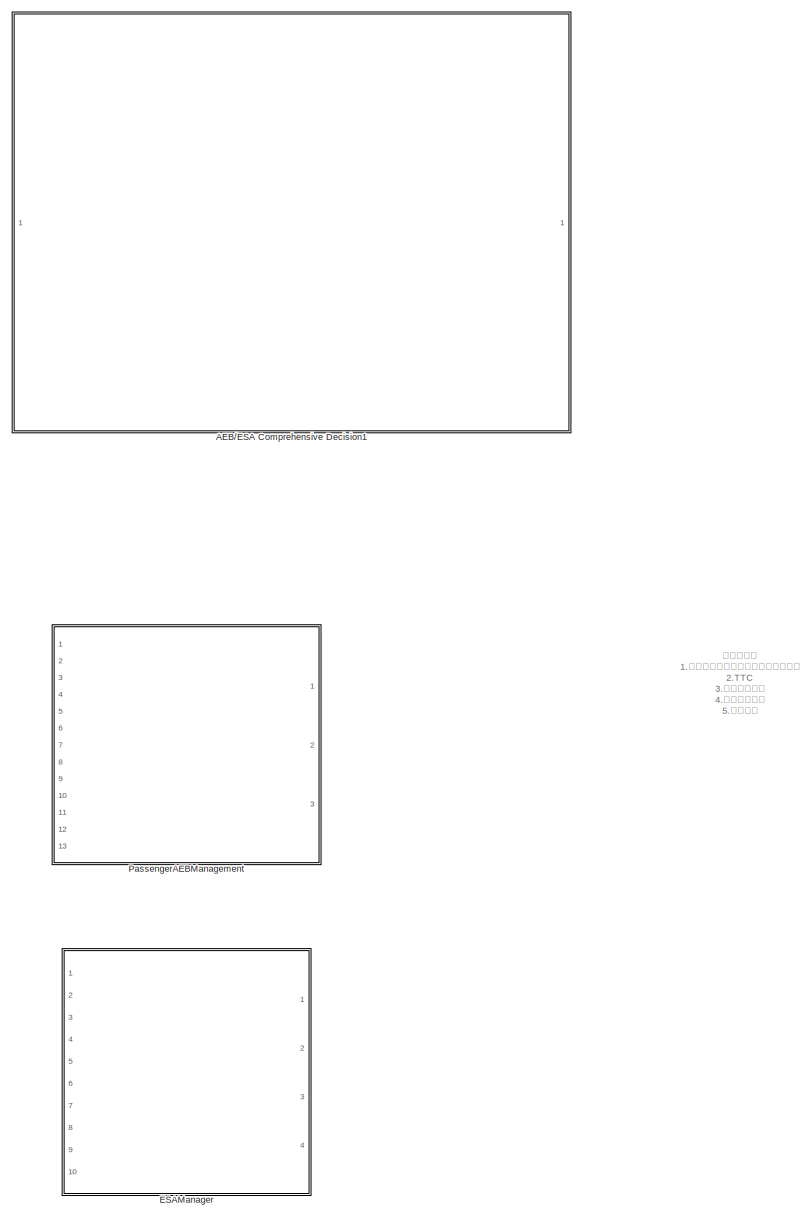
[diagram: root canvas - part 1/17, top left region]
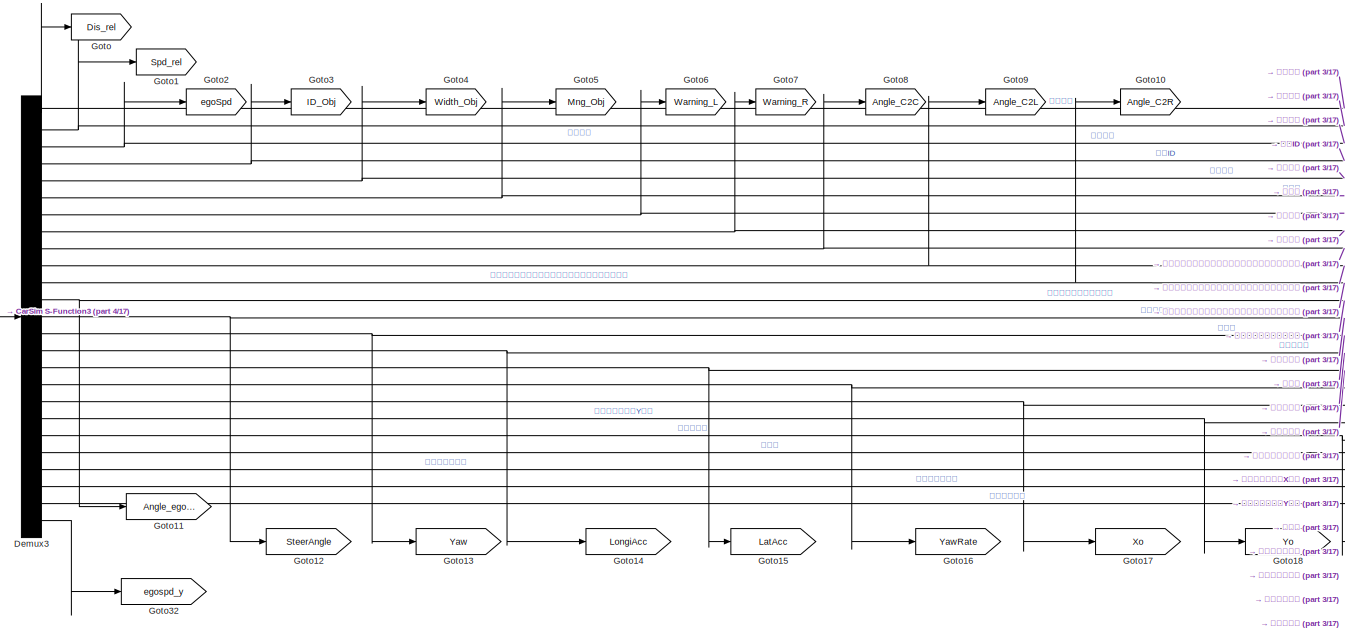
[diagram: root canvas - part 2/17, top right region]
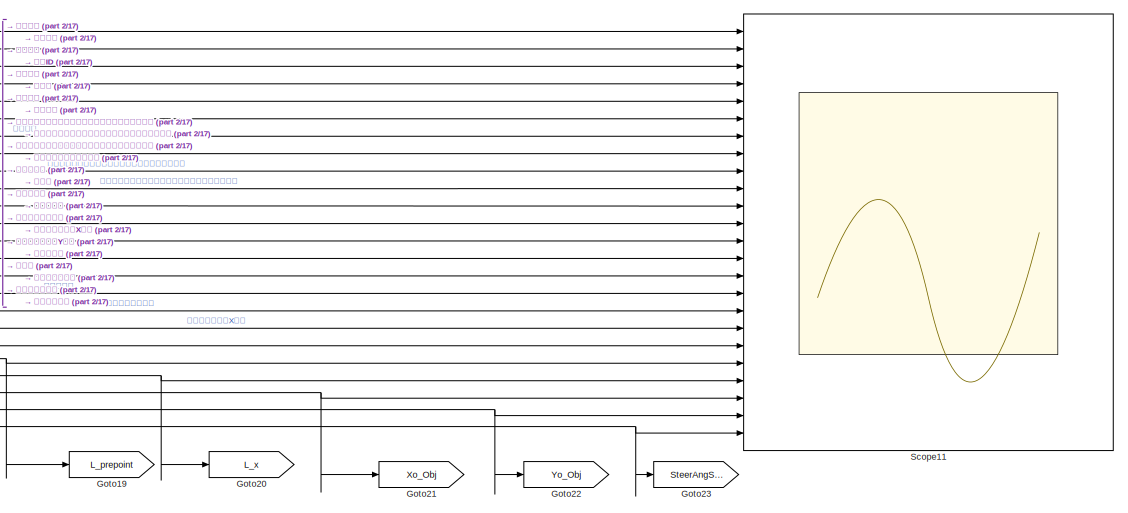
[diagram: root canvas - part 3/17, top right region]
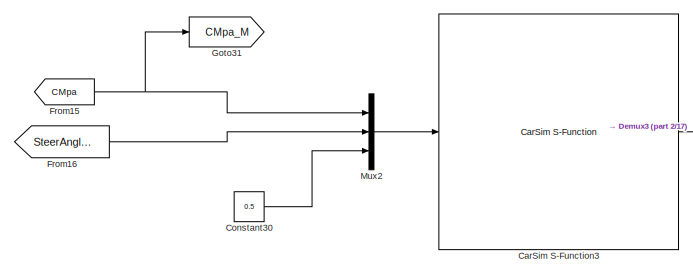
[diagram: root canvas - part 4/17, top right region]
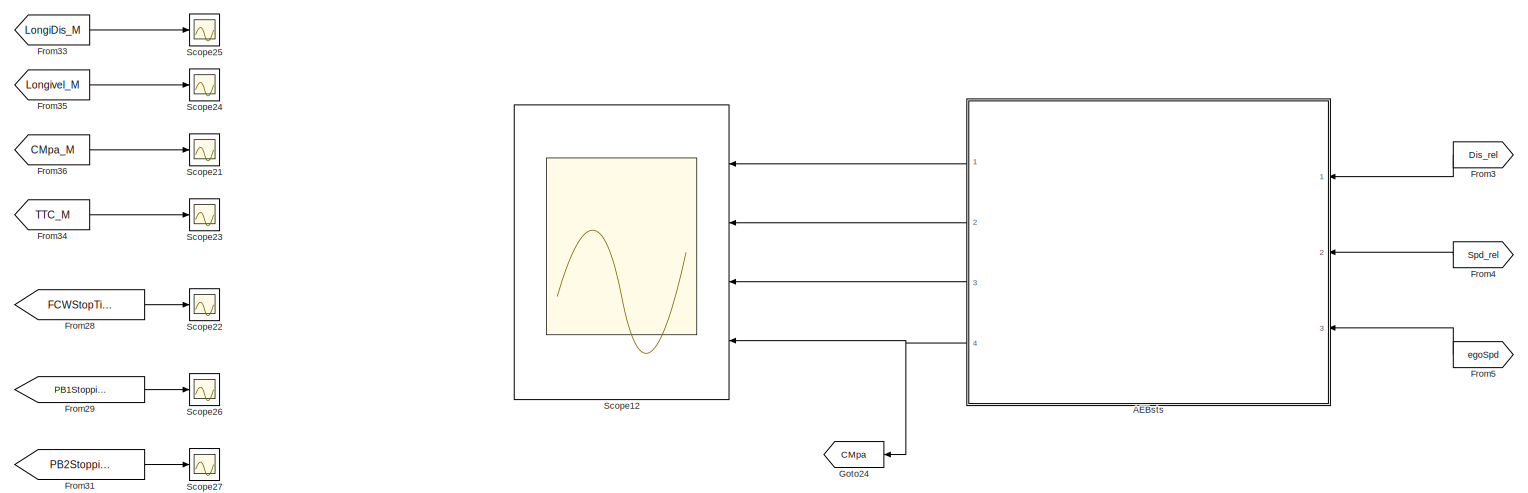
[diagram: root canvas - part 5/17, middle right region]
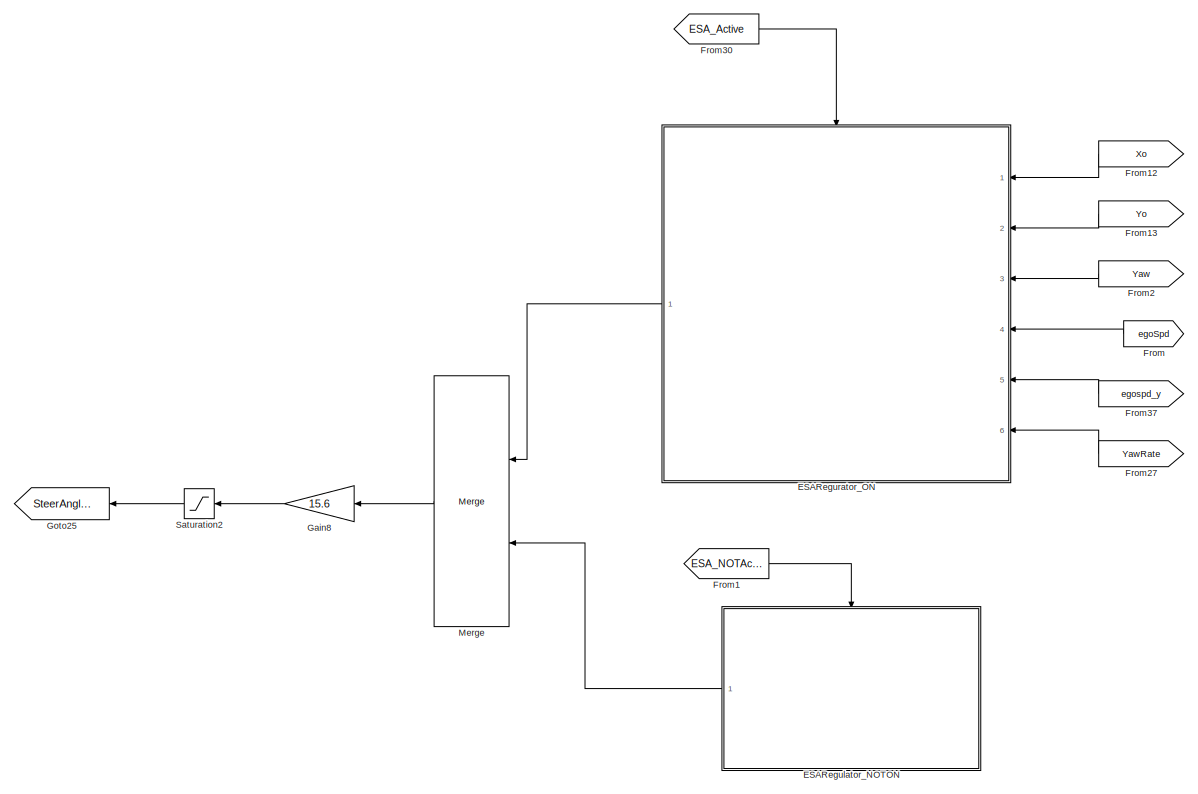
[diagram: root canvas - part 6/17, middle right region]
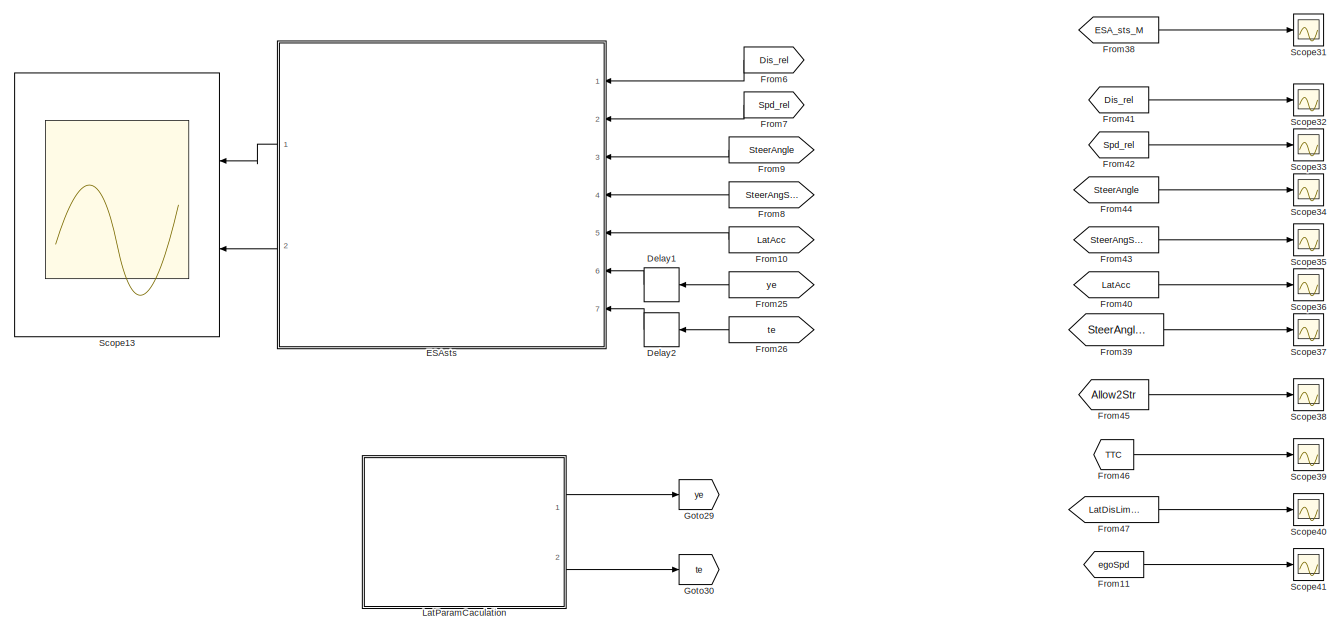
[diagram: root canvas - part 7/17, middle right region]
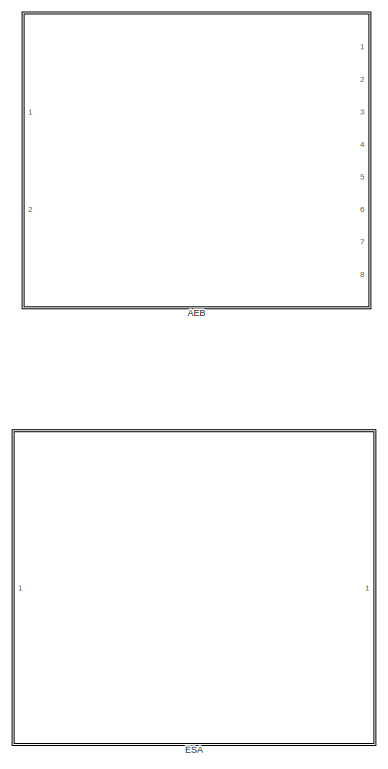
[diagram: root canvas - part 8/17, middle left region]
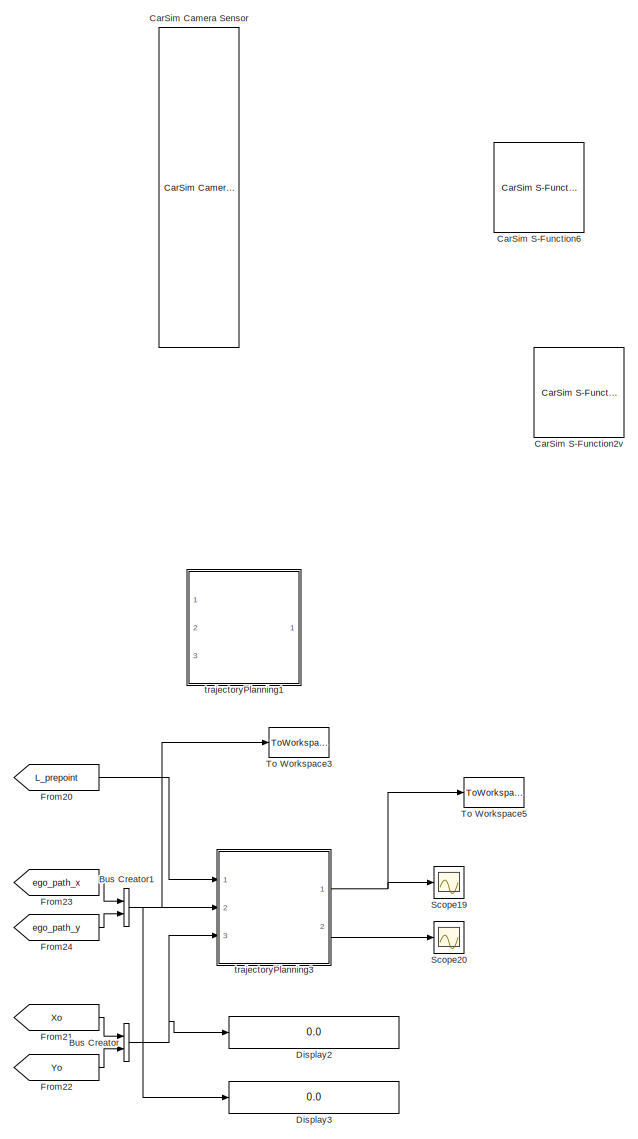
[diagram: root canvas - part 9/17, central region]
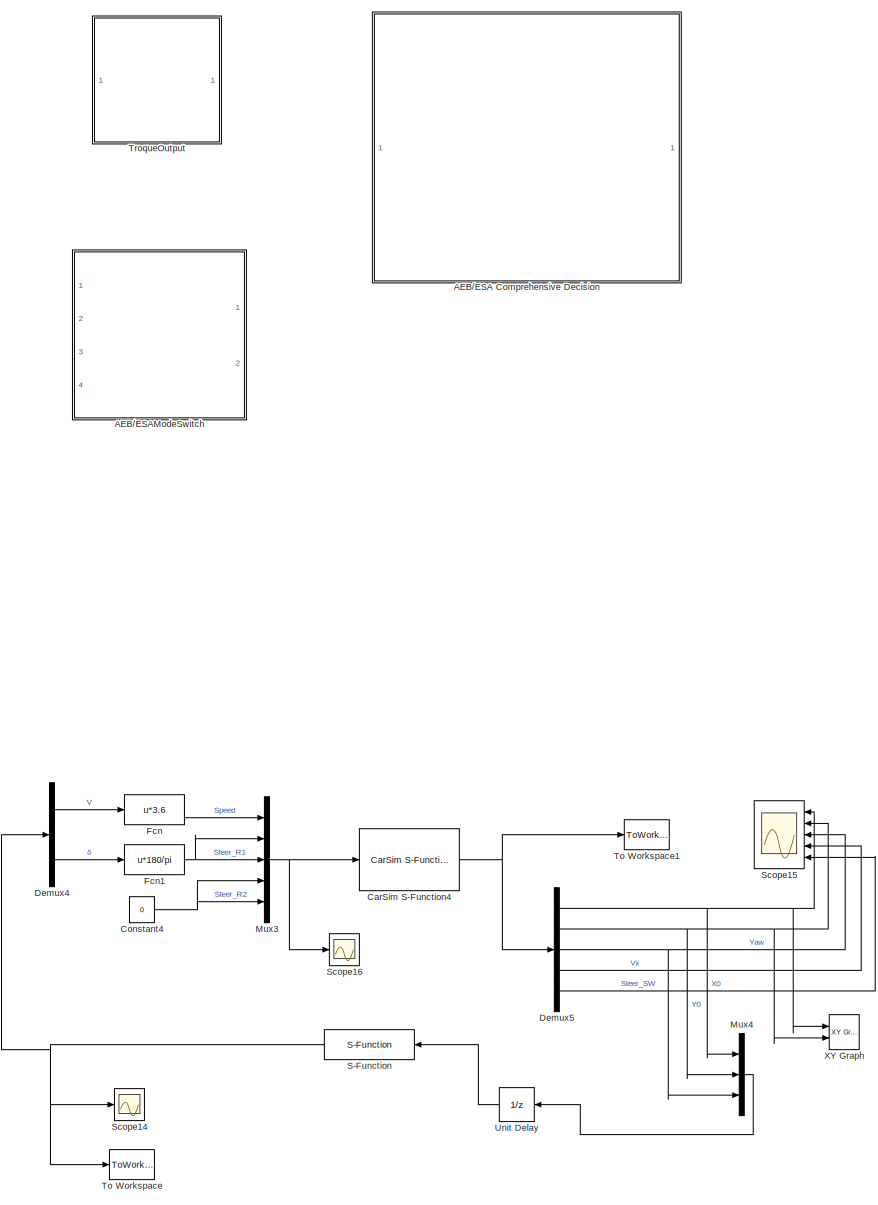
[diagram: root canvas - part 10/17, middle left region]
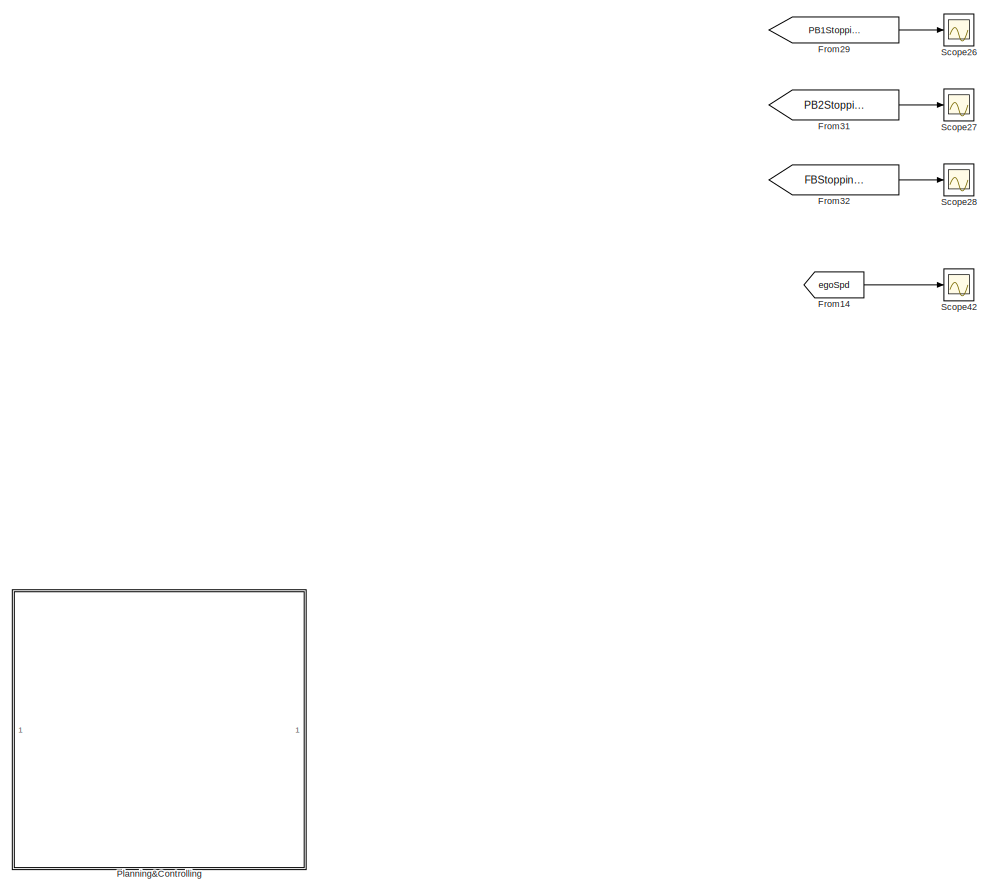
[diagram: root canvas - part 11/17, central region]
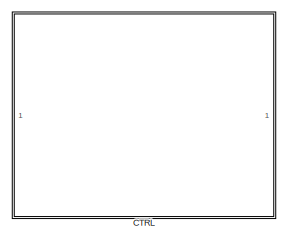
[diagram: root canvas - part 12/17, middle left region]
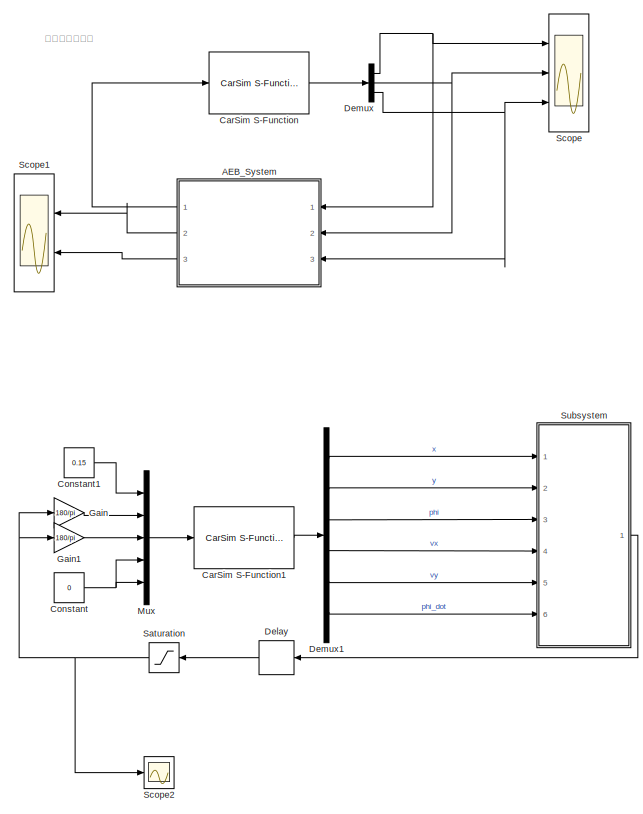
[diagram: root canvas - part 13/17, middle left region]
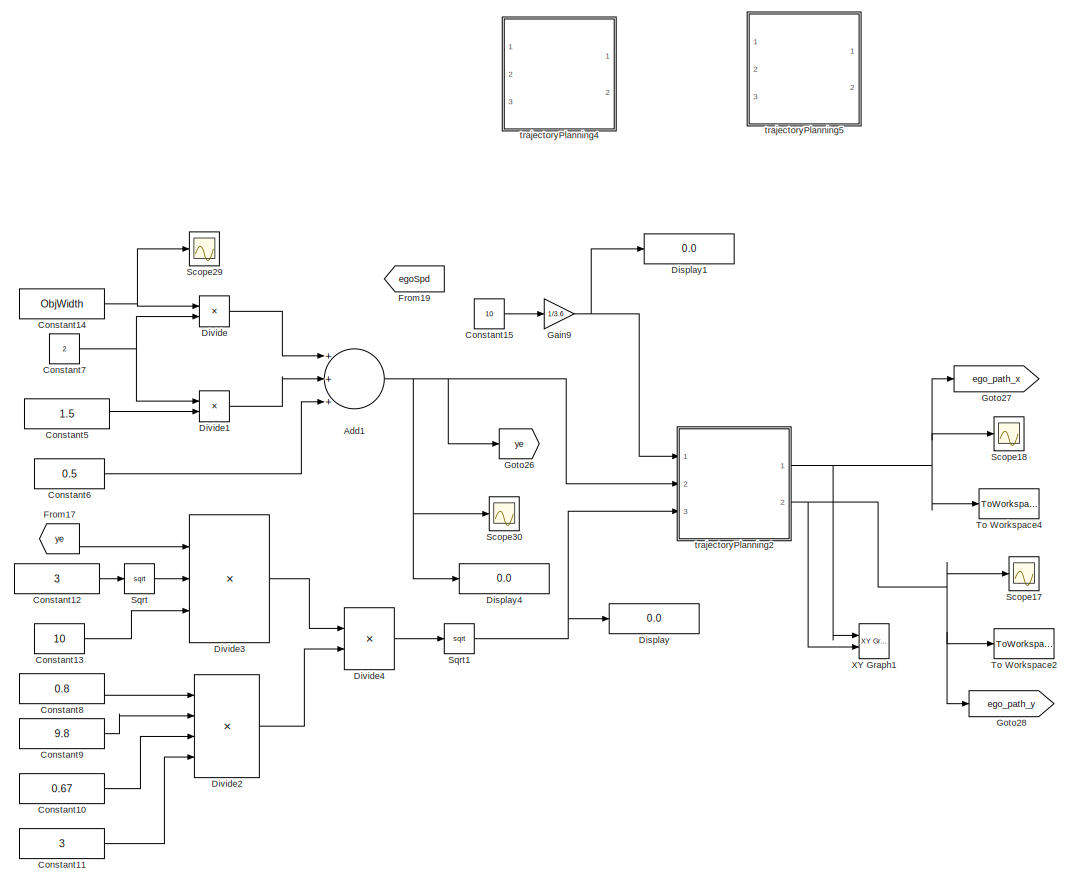
[diagram: root canvas - part 14/17, bottom center region]
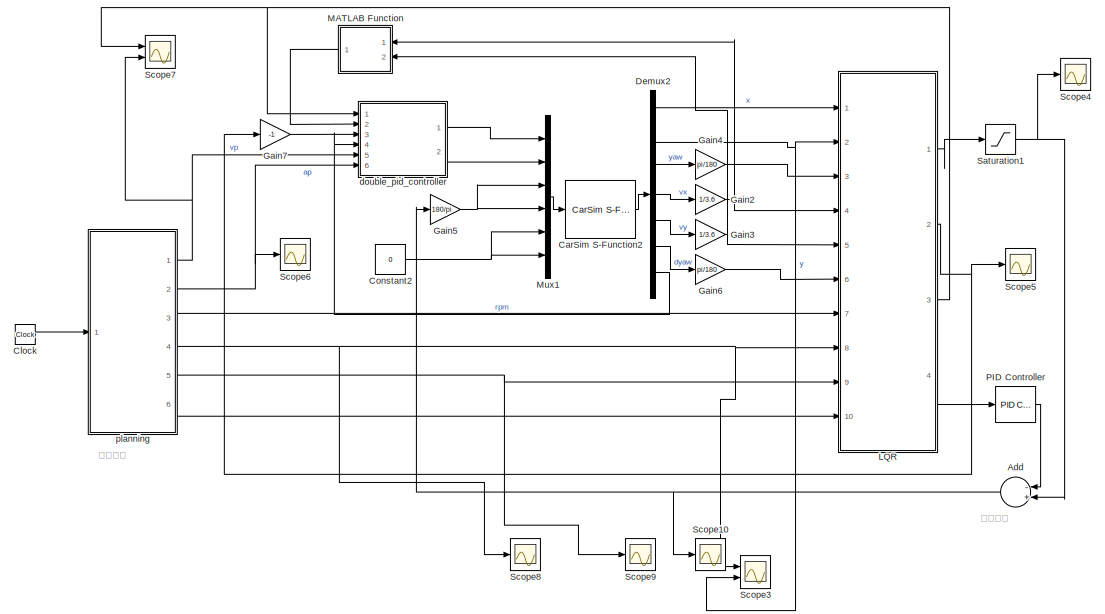
[diagram: root canvas - part 15/17, bottom left region]
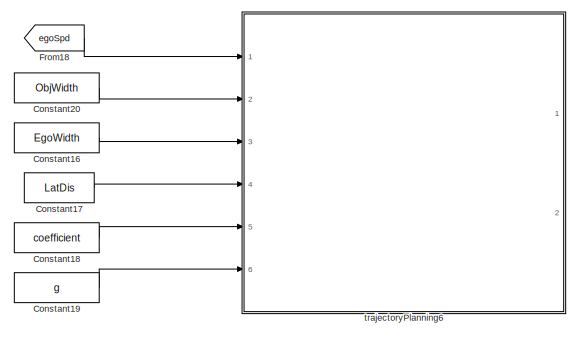
[diagram: root canvas - part 16/17, bottom center region]
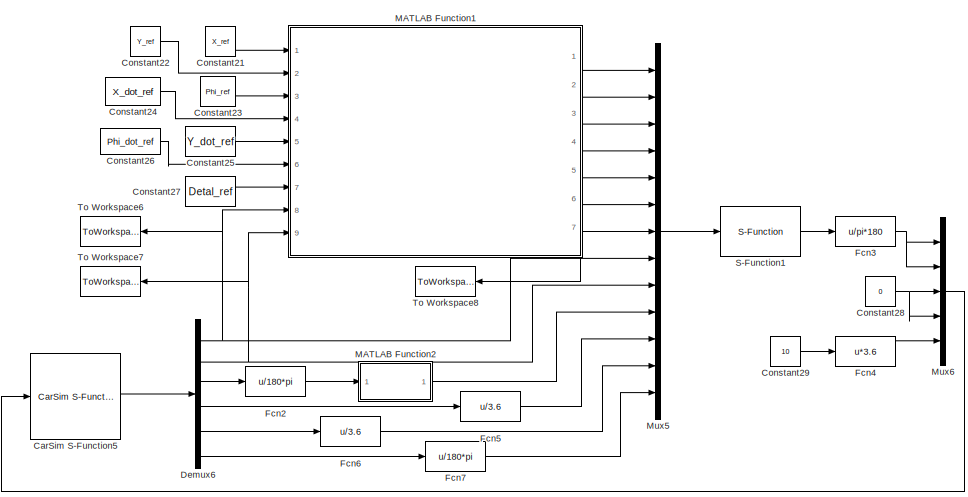
[diagram: root canvas - part 17/17, bottom left region]
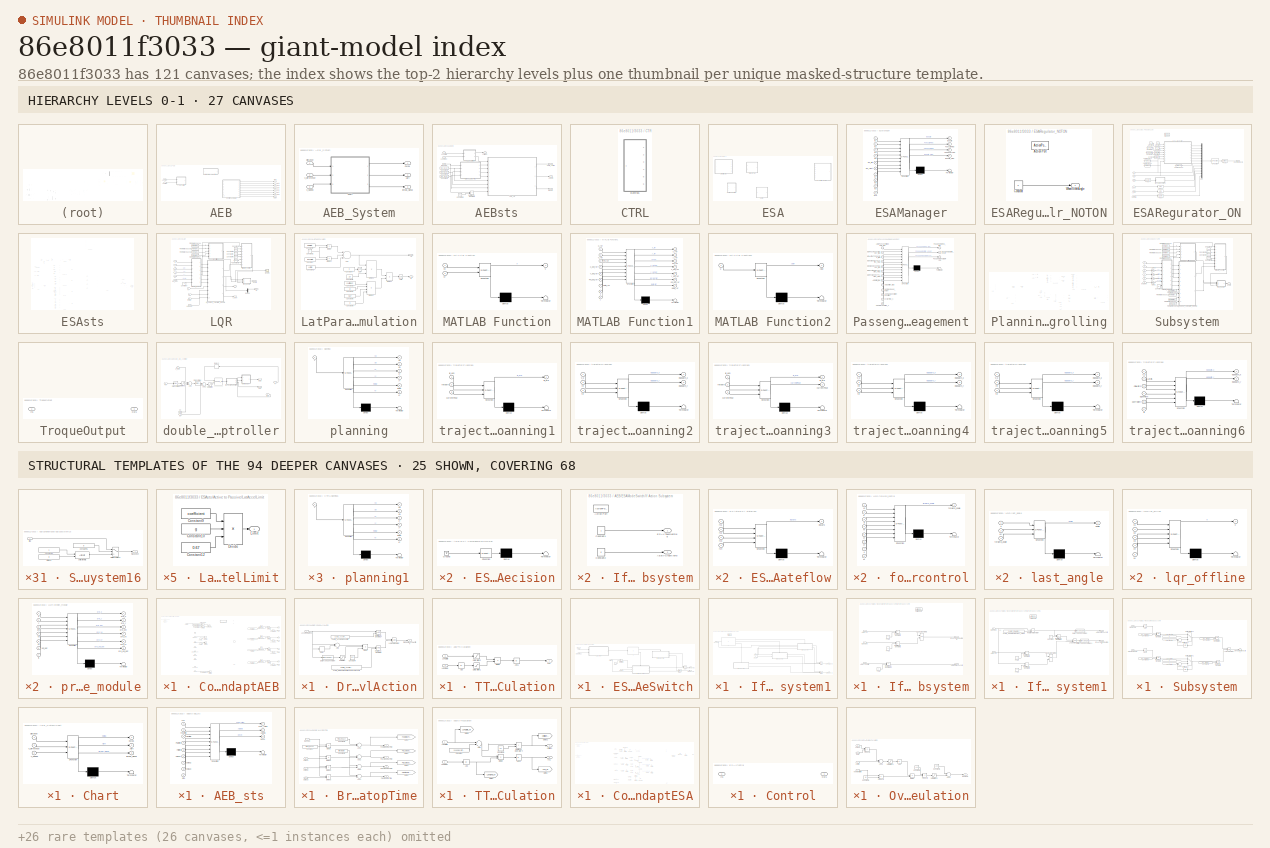
[diagram: thumbnail index - top-2 hierarchy levels (27 canvases) + 25 structural-template representatives of the remaining 94 canvases]
MODEL slx_86e8011f3033
KIND model
CONFIG AbsTol = auto
CONFIG EnableMultiTasking = off
CONFIG FixedStep = auto
CONFIG MaxStep = auto
CONFIG MinStep = auto
CONFIG RelTol = 1e-3
CONFIG SampleTimeConstraint = Unconstrained
CONFIG Solver = VariableStepAuto
CONFIG SolverName = VariableStepAuto
CONFIG StartTime = 0.0
CONFIG StopTime = 10
BLOCK [SubSystem] AEB
  Commented = on
  Ports = [2, 8]
  RequestExecContextInheritance = off
  Variant = off
BLOCK [SubSystem] AEB//ESA Comprehensive Decision
  Commented = on
  ErrorFcn = Stateflow.Translate.translate
  PermitHierarchicalResolution = ExplicitOnly
  Ports = []
  RequestExecContextInheritance = off
  SFBlockType = Chart
  TreatAsAtomicUnit = on
  Variant = off
BLOCK [Demux] AEB//ESA Comprehensive Decision/ Demux 
  Outputs = 1
  Ports = [1, 1]
BLOCK [Ground] AEB//ESA Comprehensive Decision/ Ground 
BLOCK [S-Function] AEB//ESA Comprehensive Decision/ SFunction 
  EnableBusSupport = on
  FunctionName = sf_sfun
  PortCounts = [1 1]
  Ports = [1, 1]
  SFcnIsStateOwnerBlock = off
  SFunctionDeploymentMode = off
  Tag = Stateflow S-Function LACS 3
BLOCK [Terminator] AEB//ESA Comprehensive Decision/ Terminator 
BLOCK [SubSystem] AEB//ESA Comprehensive Decision1
  Commented = on
  ErrorFcn = Stateflow.Translate.translate
  PermitHierarchicalResolution = ExplicitOnly
  Ports = []
  RequestExecContextInheritance = off
  SFBlockType = Chart
  TreatAsAtomicUnit = on
  Variant = off
BLOCK [Demux] AEB//ESA Comprehensive Decision1/ Demux 
  Outputs = 1
  Ports = [1, 1]
BLOCK [Ground] AEB//ESA Comprehensive Decision1/ Ground 
BLOCK [S-Function] AEB//ESA Comprehensive Decision1/ SFunction 
  EnableBusSupport = on
  FunctionName = sf_sfun
  PortCounts = [1 1]
  Ports = [1, 1]
  SFcnIsStateOwnerBlock = off
  SFunctionDeploymentMode = off
  Tag = Stateflow S-Function LACS 19
BLOCK [Terminator] AEB//ESA Comprehensive Decision1/ Terminator 
BLOCK [SubSystem] AEB//ESAModeSwitch
  Commented = on
  Ports = [4, 2]
  RequestExecContextInheritance = off
  Variant = off
BLOCK [Outport] AEB//ESAModeSwitch/AEBCrashAvoid
  IconDisplay = Port number
  Port = 2
BLOCK [Inport] AEB//ESAModeSwitch/AEBTTC
  IconDisplay = Port number
  Port = 3
BLOCK [Outport] AEB//ESAModeSwitch/ESATakeOverReq
  IconDisplay = Port number
BLOCK [Inport] AEB//ESAModeSwitch/EgoSpd
  IconDisplay = Port number
  Port = 4
BLOCK [If] AEB//ESAModeSwitch/If
  IfExpression = u1==1
  Ports = [1, 2]
BLOCK [SubSystem] AEB//ESAModeSwitch/If Action Subsystem
  Ports = [0, 2, 0, 0, 0, 0, 0, 1]
  RequestExecContextInheritance = off
  TreatAsAtomicUnit = on
  Variant = off
BLOCK [Outport] AEB//ESAModeSwitch/If Action Subsystem/AEBVCrashAvoid
  IconDisplay = Port number
  Port = 2
BLOCK [ActionPort] AEB//ESAModeSwitch/If Action Subsystem/Action Port
  ActionType = then
BLOCK [Constant] AEB//ESAModeSwitch/If Action Subsystem/Constant1
  OutDataTypeStr = boolean
BLOCK [Constant] AEB//ESAModeSwitch/If Action Subsystem/Constant2
  OutDataTypeStr = boolean
  Value = 0
BLOCK [Outport] AEB//ESAModeSwitch/If Action Subsystem/ESAVTakeOverReq
  IconDisplay = Port number
BLOCK [SubSystem] AEB//ESAModeSwitch/If Action Subsystem1
  Ports = [3, 2, 0, 0, 0, 0, 0, 1]
  RequestExecContextInheritance = off
  TreatAsAtomicUnit = on
  Variant = off
BLOCK [Inport] AEB//ESAModeSwitch/If Action Subsystem1/AEBTTC
  IconDisplay = Port number
  Port = 3
BLOCK [Inport] AEB//ESAModeSwitch/If Action Subsystem1/AEBTTCVaild
  IconDisplay = Port number
BLOCK [Outport] AEB//ESAModeSwitch/If Action Subsystem1/AEBVCrashAvoid
  IconDisplay = Port number
  Port = 2
BLOCK [ActionPort] AEB//ESAModeSwitch/If Action Subsystem1/Action Port
  ActionType = else
BLOCK [Outport] AEB//ESAModeSwitch/If Action Subsystem1/ESAVTakeOverReq
  IconDisplay = Port number
BLOCK [Inport] AEB//ESAModeSwitch/If Action Subsystem1/EgoSpd
  IconDisplay = Port number
  Port = 2
BLOCK [If] AEB//ESAModeSwitch/If Action Subsystem1/If
  ElseIfExpressions = u1==2
  IfExpression = u1==0|u1==1|u1==4
  Ports = [1, 3]
BLOCK [SubSystem] AEB//ESAModeSwitch/If Action Subsystem1/If Action Subsystem
  Ports = [3, 2, 0, 0, 0, 0, 0, 1]
  RequestExecContextInheritance = off
  TreatAsAtomicUnit = on
  Variant = off
BLOCK [Inport] AEB//ESAModeSwitch/If Action Subsystem1/If Action Subsystem/AEBTTC
  IconDisplay = Port number
  Port = 2
BLOCK [Inport] AEB//ESAModeSwitch/If Action Subsystem1/If Action Subsystem/AEBTTCVaild
  IconDisplay = Port number
BLOCK [Outport] AEB//ESAModeSwitch/If Action Subsystem1/If Action Subsystem/AEBVCrashAvoid
  IconDisplay = Port number
  Port = 2
BLOCK [ActionPort] AEB//ESAModeSwitch/If Action Subsystem1/If Action Subsystem/Action Port
BLOCK [Outport] AEB//ESAModeSwitch/If Action Subsystem1/If Action Subsystem/ESAVTakeOverReq
  IconDisplay = Port number
BLOCK [Inport] AEB//ESAModeSwitch/If Action Subsystem1/If Action Subsystem/EgoSpd
  IconDisplay = Port number
  Port = 3
BLOCK [Logic] AEB//ESAModeSwitch/If Action Subsystem1/If Action Subsystem/Logical Operator1
  AllPortsSameDT = off
  OutDataTypeStr = boolean
  Ports = [2, 1]
BLOCK [RelationalOperator] AEB//ESAModeSwitch/If Action Subsystem1/If Action Subsystem/Relational Operator1
  InputSameDT = off
  Operator = >
  OutDataTypeStr = boolean
  Ports = [2, 1]
  RndMeth = Simplest
BLOCK [RelationalOperator] AEB//ESAModeSwitch/If Action Subsystem1/If Action Subsystem/Relational Operator2
  InputSameDT = off
  Operator = >
  OutDataTypeStr = boolean
  Ports = [2, 1]
  RndMeth = Simplest
BLOCK [RelationalOperator] AEB//ESAModeSwitch/If Action Subsystem1/If Action Subsystem/Relational Operator22
  InputSameDT = off
  Operator = ==
  OutDataTypeStr = boolean
  Ports = [2, 1]
  RndMeth = Simplest
BLOCK [Constant] AEB//ESAModeSwitch/If Action Subsystem1/If Action Subsystem/TTC1
  OutDataTypeStr = boolean
BLOCK [Constant] AEB//ESAModeSwitch/If Action Subsystem1/If Action Subsystem/TTC2
  OutDataTypeStr = boolean
  Value = 4
BLOCK [Constant] AEB//ESAModeSwitch/If Action Subsystem1/If Action Subsystem/TTC3
  OutDataTypeStr = boolean
  Value = 0
BLOCK [SubSystem] AEB//ESAModeSwitch/If Action Subsystem1/If Action Subsystem1
  Ports = [2, 2, 0, 0, 0, 0, 0, 1]
  RequestExecContextInheritance = off
  TreatAsAtomicUnit = on
  Variant = off
BLOCK [Inport] AEB//ESAModeSwitch/If Action Subsystem1/If Action Subsystem1/AEBTTC
  IconDisplay = Port number
BLOCK [Outport] AEB//ESAModeSwitch/If Action Subsystem1/If Action Subsystem1/AEBVCrashAvoid
  IconDisplay = Port number
  Port = 2
BLOCK [ActionPort] AEB//ESAModeSwitch/If Action Subsystem1/If Action Subsystem1/Action Port
BLOCK [Constant] AEB//ESAModeSwitch/If Action Subsystem1/If Action Subsystem1/CAEB_CalAEBVMaxDec_kmph
  Value = CAEB_CalAEBVMaxDec_kmph
BLOCK [Constant] AEB//ESAModeSwitch/If Action Subsystem1/If Action Subsystem1/Constant
  OutDataTypeStr = boolean
  Value = 0
BLOCK [DataTypeConversion] AEB//ESAModeSwitch/If Action Subsystem1/If Action Subsystem1/Data Type Conversion
  RndMeth = Floor
  SaturateOnIntegerOverflow = off
BLOCK [DataTypeConversion] AEB//ESAModeSwitch/If Action Subsystem1/If Action Subsystem1/Data Type Conversion1
  RndMeth = Floor
  SaturateOnIntegerOverflow = off
BLOCK [Outport] AEB//ESAModeSwitch/If Action Subsystem1/If Action Subsystem1/ESAVTakeOverReq
  IconDisplay = Port number
BLOCK [Inport] AEB//ESAModeSwitch/If Action Subsystem1/If Action Subsystem1/EgoSpd
  IconDisplay = Port number
  Port = 2
BLOCK [Logic] AEB//ESAModeSwitch/If Action Subsystem1/If Action Subsystem1/Logical Operator
  AllPortsSameDT = off
  OutDataTypeStr = boolean
  Ports = [2, 1]
BLOCK [Logic] AEB//ESAModeSwitch/If Action Subsystem1/If Action Subsystem1/Logical Operator1
  AllPortsSameDT = off
  OutDataTypeStr = boolean
  Ports = [2, 1]
BLOCK [RelationalOperator] AEB//ESAModeSwitch/If Action Subsystem1/If Action Subsystem1/Relational Operator
  InputSameDT = off
  Operator = <=
  OutDataTypeStr = boolean
  Ports = [2, 1]
  RndMeth = Simplest
BLOCK [RelationalOperator] AEB//ESAModeSwitch/If Action Subsystem1/If Action Subsystem1/Relational Operator1
  InputSameDT = off
  Operator = ==
  OutDataTypeStr = boolean
  Ports = [2, 1]
  RndMeth = Simplest
BLOCK [RelationalOperator] AEB//ESAModeSwitch/If Action Subsystem1/If Action Subsystem1/Relational Operator2
  InputSameDT = off
  Operator = >
  OutDataTypeStr = boolean
  Ports = [2, 1]
  RndMeth = Simplest
BLOCK [RelationalOperator] AEB//ESAModeSwitch/If Action Subsystem1/If Action Subsystem1/Relational Operator3
  InputSameDT = off
  Operator = >
  OutDataTypeStr = boolean
  Ports = [2, 1]
  RndMeth = Simplest
BLOCK [Constant] AEB//ESAModeSwitch/If Action Subsystem1/If Action Subsystem1/TTC2
  OutDataTypeStr = boolean
  Value = 4
BLOCK [Constant] AEB//ESAModeSwitch/If Action Subsystem1/If Action Subsystem1/TTC3
  OutDataTypeStr = boolean
  Value = 0
BLOCK [SubSystem] AEB//ESAModeSwitch/If Action Subsystem1/If Action Subsystem2
  Ports = [0, 2, 0, 0, 0, 0, 0, 1]
  RequestExecContextInheritance = off
  TreatAsAtomicUnit = on
  Variant = off
BLOCK [Outport] AEB//ESAModeSwitch/If Action Subsystem1/If Action Subsystem2/AEBVCrashAvoid
  IconDisplay = Port number
  Port = 2
BLOCK [ActionPort] AEB//ESAModeSwitch/If Action Subsystem1/If Action Subsystem2/Action Port
BLOCK [Constant] AEB//ESAModeSwitch/If Action Subsystem1/If Action Subsystem2/Constant
  OutDataTypeStr = boolean
  Value = 0
BLOCK [Constant] AEB//ESAModeSwitch/If Action Subsystem1/If Action Subsystem2/Constant2
  OutDataTypeStr = boolean
BLOCK [Outport] AEB//ESAModeSwitch/If Action Subsystem1/If Action Subsystem2/ESAVTakeOverReq
  IconDisplay = Port number
BLOCK [Merge] AEB//ESAModeSwitch/If Action Subsystem1/Merge
  Inputs = 3
  Ports = [3, 1]
BLOCK [Merge] AEB//ESAModeSwitch/If Action Subsystem1/Merge1
  Inputs = 3
  Ports = [3, 1]
BLOCK [Merge] AEB//ESAModeSwitch/Merge
  Ports = [2, 1]
BLOCK [Merge] AEB//ESAModeSwitch/Merge1
  Ports = [2, 1]
BLOCK [RelationalOperator] AEB//ESAModeSwitch/Relational Operator22
  InputSameDT = off
  Operator = <=
  OutDataTypeStr = boolean
  Ports = [2, 1]
  RndMeth = Simplest
BLOCK [Inport] AEB//ESAModeSwitch/SteerAngle
  IconDisplay = Port number
BLOCK [Inport] AEB//ESAModeSwitch/SteerAngleSpd
  IconDisplay = Port number
  Port = 2
BLOCK [SubSystem] AEB//ESAModeSwitch/Subsystem
  Ports = [2, 1]
  RequestExecContextInheritance = off
  Variant = off
BLOCK [Abs] AEB//ESAModeSwitch/Subsystem/Abs
  SaturateOnIntegerOverflow = off
BLOCK [Abs] AEB//ESAModeSwitch/Subsystem/Abs1
  SaturateOnIntegerOverflow = off
BLOCK [Sum] AEB//ESAModeSwitch/Subsystem/Add1
  InputSameDT = off
  OutDataTypeStr = Inherit: Inherit via internal rule
  Ports = [2, 1]
BLOCK [Sum] AEB//ESAModeSwitch/Subsystem/Add3
  InputSameDT = off
  OutDataTypeStr = Inherit: Inherit via internal rule
  Ports = [2, 1]
BLOCK [Constant] AEB//ESAModeSwitch/Subsystem/Constant1
  Value = ESA_SPEEDLIMITH6_p
BLOCK [Constant] AEB//ESAModeSwitch/Subsystem/Constant17
  OutDataTypeStr = uint8
BLOCK [Constant] AEB//ESAModeSwitch/Subsystem/Constant18
  OutDataTypeStr = uint8
  Value = 0
BLOCK [Constant] AEB//ESAModeSwitch/Subsystem/Constant2
  Value = ESA_SPEEDLIMITH6_p
BLOCK [Constant] AEB//ESAModeSwitch/Subsystem/Constant22
  Value = ESA_StrAngSpdT6_p
BLOCK [Constant] AEB//ESAModeSwitch/Subsystem/Constant3
  OutDataTypeStr = uint8
BLOCK [Constant] AEB//ESAModeSwitch/Subsystem/Constant4
  OutDataTypeStr = uint8
  Value = 0
BLOCK [Constant] AEB//ESAModeSwitch/Subsystem/Constant5
  Value = ESA_StrAngSpdT6_p
BLOCK [Outport] AEB//ESAModeSwitch/Subsystem/DrvRapidSteerAction
  IconDisplay = Port number
BLOCK [Logic] AEB//ESAModeSwitch/Subsystem/Logical Operator
  AllPortsSameDT = off
  OutDataTypeStr = boolean
  Ports = [2, 1]
BLOCK [MultiPortSwitch] AEB//ESAModeSwitch/Subsystem/Multiport Switch1
  DataPortOrder = Zero-based contiguous
  InputSameDT = off
  Inputs = 2
  Ports = [3, 1]
  SaturateOnIntegerOverflow = off
BLOCK [MultiPortSwitch] AEB//ESAModeSwitch/Subsystem/Multiport Switch2
  DataPortOrder = Zero-based contiguous
  InputSameDT = off
  Inputs = 2
  Ports = [3, 1]
  SaturateOnIntegerOverflow = off
BLOCK [RelationalOperator] AEB//ESAModeSwitch/Subsystem/Relational Operator1
  InputSameDT = off
  OutDataTypeStr = boolean
  Ports = [2, 1]
  RndMeth = Simplest
BLOCK [RelationalOperator] AEB//ESAModeSwitch/Subsystem/Relational Operator19
  InputSameDT = off
  OutDataTypeStr = boolean
  Ports = [2, 1]
  RndMeth = Simplest
BLOCK [RelationalOperator] AEB//ESAModeSwitch/Subsystem/Relational Operator2
  InputSameDT = off
  OutDataTypeStr = boolean
  Ports = [2, 1]
  RndMeth = Simplest
BLOCK [RelationalOperator] AEB//ESAModeSwitch/Subsystem/Relational Operator3
  InputSameDT = off
  OutDataTypeStr = boolean
  Ports = [2, 1]
  RndMeth = Simplest
BLOCK [Inport] AEB//ESAModeSwitch/Subsystem/SteerAngle
  IconDisplay = Port number
BLOCK [Inport] AEB//ESAModeSwitch/Subsystem/SteerAngleSpd
  IconDisplay = Port number
  Port = 2
BLOCK [UnitDelay] AEB//ESAModeSwitch/Subsystem/Unit Delay1
  InputProcessing = Elements as channels (sample based)
  SampleTime = -1
BLOCK [UnitDelay] AEB//ESAModeSwitch/Subsystem/Unit Delay2
  InputProcessing = Elements as channels (sample based)
  SampleTime = -1
BLOCK [Constant] AEB//ESAModeSwitch/TTC1
  OutDataTypeStr = boolean
  Value = 6
BLOCK [SubSystem] AEB/ConditionAdaptAEB
  Ports = [10, 8]
  RequestExecContextInheritance = off
  Variant = off
BLOCK [Sum] AEB/ConditionAdaptAEB/Add7
  InputSameDT = off
  Inputs = 18
  OutDataTypeStr = Inherit: Inherit via internal rule
  Ports = [18, 1]
BLOCK [Reference] AEB/ConditionAdaptAEB/Bitwise Operator  REF=simulink/Logic and Bit
Operations/Bitwise
Operator
  Ports = [2, 1]
  SourceBlock = simulink/Logic and Bit\nOperations/Bitwise\nOperator
  SourceType = Bitwise Operator
BLOCK [Reference] AEB/ConditionAdaptAEB/Bitwise Operator1  REF=simulink/Logic and Bit
Operations/Bitwise
Operator
  Ports = [2, 1]
  SourceBlock = simulink/Logic and Bit\nOperations/Bitwise\nOperator
  SourceType = Bitwise Operator
BLOCK [Reference] AEB/ConditionAdaptAEB/Bitwise Operator2  REF=simulink/Logic and Bit
Operations/Bitwise
Operator
  Ports = [2, 1]
  SourceBlock = simulink/Logic and Bit\nOperations/Bitwise\nOperator
  SourceType = Bitwise Operator
BLOCK [Reference] AEB/ConditionAdaptAEB/Bitwise Operator3  REF=simulink/Logic and Bit
Operations/Bitwise
Operator
  Ports = [2, 1]
  SourceBlock = simulink/Logic and Bit\nOperations/Bitwise\nOperator
  SourceType = Bitwise Operator
BLOCK [Inport] AEB/ConditionAdaptAEB/BrakePedal
  IconDisplay = Port number
  Port = 3
BLOCK [Inport] AEB/ConditionAdaptAEB/CollisionRiskLevel
  IconDisplay = Port number
  Port = 6
BLOCK [Constant] AEB/ConditionAdaptAEB/Constant
  Value = 0
BLOCK [Constant] AEB/ConditionAdaptAEB/Constant1
  OutDataTypeStr = uint32
  Value = AEB_mask1
BLOCK [Constant] AEB/ConditionAdaptAEB/Constant18
  Value = ESA_ESASwichOFF
BLOCK [Constant] AEB/ConditionAdaptAEB/Constant2
  OutDataTypeStr = uint32
  Value = AEB_mask1
BLOCK [Constant] AEB/ConditionAdaptAEB/Constant3
  OutDataTypeStr = uint32
  Value = AEB_mask1
BLOCK [Constant] AEB/ConditionAdaptAEB/Constant4
  Value = ESA_SPEEDLIMITH7_p
BLOCK [Constant] AEB/ConditionAdaptAEB/Constant46
  OutDataTypeStr = uint32
  Value = AEB_mask1
BLOCK [Constant] AEB/ConditionAdaptAEB/Constant5
  Value = ESA_SPEEDLIMITL7_p
BLOCK [Constant] AEB/ConditionAdaptAEB/Constant6
  Value = 10
BLOCK [Inport] AEB/ConditionAdaptAEB/ESAsts
  IconDisplay = Port number
  Port = 9
BLOCK [Inport] AEB/ConditionAdaptAEB/EgoSpd
  IconDisplay = Port number
BLOCK [Logic] AEB/ConditionAdaptAEB/Logical Operator
  AllPortsSameDT = off
  OutDataTypeStr = boolean
  Ports = [2, 1]
BLOCK [Logic] AEB/ConditionAdaptAEB/Logical Operator1
  AllPortsSameDT = off
  Operator = NOT
  OutDataTypeStr = boolean
  Ports = [1, 1]
BLOCK [Logic] AEB/ConditionAdaptAEB/Logical Operator2
  AllPortsSameDT = off
  Operator = NOT
  OutDataTypeStr = boolean
  Ports = [1, 1]
BLOCK [Logic] AEB/ConditionAdaptAEB/Logical Operator3
  AllPortsSameDT = off
  Operator = NOT
  OutDataTypeStr = boolean
  Ports = [1, 1]
BLOCK [Logic] AEB/ConditionAdaptAEB/Logical Operator4
  AllPortsSameDT = off
  Operator = NOT
  OutDataTypeStr = boolean
  Ports = [1, 1]
BLOCK [Inport] AEB/ConditionAdaptAEB/LongDis
  IconDisplay = Port number
  Port = 5
BLOCK [Inport] AEB/ConditionAdaptAEB/NoAccelAction
  IconDisplay = Port number
  Port = 10
BLOCK [Outport] AEB/ConditionAdaptAEB/Out1
  IconDisplay = Port number
BLOCK [Outport] AEB/ConditionAdaptAEB/Out2
  IconDisplay = Port number
  Port = 2
BLOCK [Outport] AEB/ConditionAdaptAEB/Out3
  IconDisplay = Port number
  Port = 3
BLOCK [Outport] AEB/ConditionAdaptAEB/Out4
  IconDisplay = Port number
  Port = 4
BLOCK [Outport] AEB/ConditionAdaptAEB/Out5
  IconDisplay = Port number
  Port = 5
BLOCK [Outport] AEB/ConditionAdaptAEB/Out6
  IconDisplay = Port number
  Port = 6
BLOCK [Outport] AEB/ConditionAdaptAEB/Out7
  IconDisplay = Port number
  Port = 7
BLOCK [Outport] AEB/ConditionAdaptAEB/Out8
  IconDisplay = Port number
  Port = 8
BLOCK [Inport] AEB/ConditionAdaptAEB/Overlap
  IconDisplay = Port number
  Port = 4
BLOCK [RelationalOperator] AEB/ConditionAdaptAEB/Relational Operator
  InputSameDT = off
  Operator = <=
  OutDataTypeStr = boolean
  Ports = [2, 1]
  RndMeth = Simplest
BLOCK [RelationalOperator] AEB/ConditionAdaptAEB/Relational Operator1
  InputSameDT = off
  Operator = ==
  OutDataTypeStr = boolean
  Ports = [2, 1]
  RndMeth = Simplest
BLOCK [RelationalOperator] AEB/ConditionAdaptAEB/Relational Operator14
  InputSameDT = off
  Operator = ==
  OutDataTypeStr = boolean
  Ports = [2, 1]
  RndMeth = Simplest
BLOCK [RelationalOperator] AEB/ConditionAdaptAEB/Relational Operator2
  InputSameDT = off
  Operator = ==
  OutDataTypeStr = boolean
  Ports = [2, 1]
  RndMeth = Simplest
BLOCK [RelationalOperator] AEB/ConditionAdaptAEB/Relational Operator3
  InputSameDT = off
  Operator = ==
  OutDataTypeStr = boolean
  Ports = [2, 1]
  RndMeth = Simplest
BLOCK [RelationalOperator] AEB/ConditionAdaptAEB/Relational Operator31
  InputSameDT = off
  Operator = ==
  OutDataTypeStr = boolean
  Ports = [2, 1]
  RndMeth = Simplest
BLOCK [RelationalOperator] AEB/ConditionAdaptAEB/Relational Operator4
  InputSameDT = off
  OutDataTypeStr = boolean
  Ports = [2, 1]
  RndMeth = Simplest
BLOCK [RelationalOperator] AEB/ConditionAdaptAEB/Relational Operator5
  InputSameDT = off
  OutDataTypeStr = boolean
  Ports = [2, 1]
  RndMeth = Simplest
BLOCK [RelationalOperator] AEB/ConditionAdaptAEB/Relational Operator6
  InputSameDT = off
  Operator = ==
  OutDataTypeStr = boolean
  Ports = [2, 1]
  RndMeth = Simplest
BLOCK [Inport] AEB/ConditionAdaptAEB/SteerAngle
  IconDisplay = Port number
  Port = 7
BLOCK [SubSystem] AEB/ConditionAdaptAEB/Subsystem16
  Ports = [1, 1]
  RequestExecContextInheritance = off
  Variant = off
BLOCK [Constant] AEB/ConditionAdaptAEB/Subsystem16/Constant45
  OutDataTypeStr = uint32
  Value = 0
BLOCK [Constant] AEB/ConditionAdaptAEB/Subsystem16/Constant46
  OutDataTypeStr = uint32
BLOCK [MultiPortSwitch] AEB/ConditionAdaptAEB/Subsystem16/Multiport Switch7
  DataPortOrder = Zero-based contiguous
  InputSameDT = off
  Inputs = 2
  Ports = [3, 1]
  SaturateOnIntegerOverflow = off
BLOCK [ArithShift] AEB/ConditionAdaptAEB/Subsystem16/Shift Arithmetic
  BitShiftDirection = Left
  BitShiftNumber = 8
  BitShiftNumberSource = Input port
  InputPortMap = u0,p1
  Ports = [2, 1]
BLOCK [Constant] AEB/ConditionAdaptAEB/Subsystem16/bitMask
  OutDataTypeStr = uint8
  Value = 0
BLOCK [Inport] AEB/ConditionAdaptAEB/Subsystem16/flag
  IconDisplay = Port number
BLOCK [Outport] AEB/ConditionAdaptAEB/Subsystem16/maskCnst
  IconDisplay = Port number
BLOCK [Inport] AEB/ConditionAdaptAEB/TTC
  IconDisplay = Port number
  Port = 2
BLOCK [Inport] AEB/ConditionAdaptAEB/YawRate
  IconDisplay = Port number
  Port = 8
BLOCK [SubSystem] AEB/DrvRapidAccelAction
  Commented = on
  Ports = [1, 1]
  RequestExecContextInheritance = off
  Variant = off
BLOCK [Inport] AEB/DrvRapidAccelAction/AccelPedalPos
  IconDisplay = Port number
BLOCK [Sum] AEB/DrvRapidAccelAction/Add
  InputSameDT = off
  Inputs = +-
  OutDataTypeStr = Inherit: Inherit via internal rule
  Ports = [2, 1]
  SaturateOnIntegerOverflow = off
BLOCK [Constant] AEB/DrvRapidAccelAction/CAEB_AccelPdlPosLimit
  OutDataTypeStr = Inherit: Inherit via back propagation
  Value = CAEB_AccelPdlPosLimit
BLOCK [Constant] AEB/DrvRapidAccelAction/CAEB_IPBInputRodStrokeSpdThreshold
  OutDataTypeStr = single
  Value = CAEB_AccelPdlPosSpdThreshold
BLOCK [Constant] AEB/DrvRapidAccelAction/Constant4
  OutDataTypeStr = single
  Value = 0.02
BLOCK [DataTypeConversion] AEB/DrvRapidAccelAction/Data Type Conversion
  RndMeth = Floor
  SaturateOnIntegerOverflow = off
BLOCK [Delay] AEB/DrvRapidAccelAction/Delay
  DelayLength = 1
  InputPortMap = u0
  Ports = [1, 1]
BLOCK [Product] AEB/DrvRapidAccelAction/Divide
  InputSameDT = off
  Inputs = *//
  OutDataTypeStr = Inherit: Inherit via internal rule
  Ports = [3, 1]
  RndMeth = Floor
  SaturateOnIntegerOverflow = off
BLOCK [Outport] AEB/DrvRapidAccelAction/DrvRapidAccelAction
  IconDisplay = Port number
BLOCK [Logic] AEB/DrvRapidAccelAction/Logical Operator
  AllPortsSameDT = off
  OutDataTypeStr = boolean
  Ports = [2, 1]
BLOCK [RelationalOperator] AEB/DrvRapidAccelAction/Relational Operator17
  InputSameDT = off
  OutDataTypeStr = boolean
  Ports = [2, 1]
  RndMeth = Simplest
BLOCK [RelationalOperator] AEB/DrvRapidAccelAction/Relational Operator4
  InputSameDT = off
  OutDataTypeStr = boolean
  Ports = [2, 1]
  RndMeth = Simplest
BLOCK [Saturate] AEB/DrvRapidAccelAction/Saturation
  InputPortMap = u0
  LowerLimit = 0.0001
  Ports = [1, 1]
  UpperLimit = inf
BLOCK [Inport] AEB/LongiDis
  IconDisplay = Port number
  Port = 2
BLOCK [Inport] AEB/LongiVel
  IconDisplay = Port number
BLOCK [Outport] AEB/Out1
  IconDisplay = Port number
BLOCK [Outport] AEB/Out10
  IconDisplay = Port number
  Port = 8
BLOCK [Outport] AEB/Out3
  IconDisplay = Port number
  Port = 2
BLOCK [Outport] AEB/Out4
  IconDisplay = Port number
  Port = 3
BLOCK [Outport] AEB/Out5
  IconDisplay = Port number
  Port = 4
BLOCK [Outport] AEB/Out6
  IconDisplay = Port number
  Port = 5
BLOCK [Outport] AEB/Out7
  IconDisplay = Port number
  Port = 6
BLOCK [Outport] AEB/Out8
  IconDisplay = Port number
  Port = 7
BLOCK [SubSystem] AEB/TTCCaculation
  Ports = [2, 1]
  RequestExecContextInheritance = off
  Variant = off
BLOCK [Abs] AEB/TTCCaculation/Abs
  SaturateOnIntegerOverflow = off
BLOCK [Abs] AEB/TTCCaculation/Abs1
  SaturateOnIntegerOverflow = off
BLOCK [Product] AEB/TTCCaculation/Divide
  InputSameDT = off
  Inputs = */
  OutDataTypeStr = Inherit: Inherit via internal rule
  Ports = [2, 1]
  RndMeth = Floor
  SaturateOnIntegerOverflow = off
BLOCK [Inport] AEB/TTCCaculation/LongiDis
  IconDisplay = Port number
  Port = 2
BLOCK [Inport] AEB/TTCCaculation/LongiVel
  IconDisplay = Port number
BLOCK [Saturate] AEB/TTCCaculation/Saturation1
  InputPortMap = u0
  LowerLimit = CAEB_CalAEBLongVelObjLimit_mps
  Ports = [1, 1]
  UpperLimit = inf
BLOCK [Saturate] AEB/TTCCaculation/Saturation2
  InputPortMap = u0
  LowerLimit = CAEB_CalAEBLongVelObjLimit_mps
  Ports = [1, 1]
  UpperLimit = inf
BLOCK [Outport] AEB/TTCCaculation/TTC
  IconDisplay = Port number
BLOCK [SubSystem] AEB_System
  Commented = on
  Ports = [3, 3]
  RequestExecContextInheritance = off
  Variant = off
BLOCK [Outport] AEB_System/Alart 
  IconDisplay = Port number
  Port = 2
BLOCK [Outport] AEB_System/Break_signal 
  IconDisplay = Port number
  Port = 3
BLOCK [Outport] AEB_System/CMpa
  IconDisplay = Port number
BLOCK [SubSystem] AEB_System/Chart
  ErrorFcn = Stateflow.Translate.translate
  PermitHierarchicalResolution = ExplicitOnly
  Ports = [3, 3]
  RequestExecContextInheritance = off
  SFBlockType = Chart
  TreatAsAtomicUnit = on
  Variant = off
BLOCK [Demux] AEB_System/Chart/ Demux 
  Outputs = 1
  Ports = [1, 1]
BLOCK [S-Function] AEB_System/Chart/ SFunction 
  EnableBusSupport = on
  FunctionName = sf_sfun
  PortCounts = [3 4]
  Ports = [3, 4]
  SFcnIsStateOwnerBlock = off
  SFunctionDeploymentMode = off
  Tag = Stateflow S-Function LACS 2
BLOCK [Terminator] AEB_System/Chart/ Terminator 
BLOCK [Outport] AEB_System/Chart/Alart
  IconDisplay = Port number
  Port = 2
BLOCK [Outport] AEB_System/Chart/Break_signal
  IconDisplay = Port number
  Port = 3
BLOCK [Outport] AEB_System/Chart/CMpa
  IconDisplay = Port number
BLOCK [Inport] AEB_System/Chart/Distance
  IconDisplay = Port number
BLOCK [Inport] AEB_System/Chart/V_Speed
  IconDisplay = Port number
  Port = 3
BLOCK [Inport] AEB_System/Chart/V_difference
  IconDisplay = Port number
  Port = 2
BLOCK [Inport] AEB_System/Distance
  IconDisplay = Port number
BLOCK [Inport] AEB_System/V_Speed 
  IconDisplay = Port number
  Port = 3
BLOCK [Inport] AEB_System/V_difference
  IconDisplay = Port number
  Port = 2
BLOCK [SubSystem] AEBsts
  Ports = [3, 4]
  RequestExecContextInheritance = off
  Variant = off
BLOCK [SubSystem] AEBsts/AEB_sts
  ErrorFcn = Stateflow.Translate.translate
  PermitHierarchicalResolution = ExplicitOnly
  Ports = [9, 3]
  RequestExecContextInheritance = off
  SFBlockType = Chart
  TreatAsAtomicUnit = on
  Variant = off
BLOCK [Demux] AEBsts/AEB_sts/ Demux 
  Outputs = 1
  Ports = [1, 1]
BLOCK [S-Function] AEBsts/AEB_sts/ SFunction 
  EnableBusSupport = on
  FunctionName = sf_sfun
  PortCounts = [9 4]
  Ports = [9, 4]
  SFcnIsStateOwnerBlock = off
  SFunctionDeploymentMode = off
  Tag = Stateflow S-Function LACS 20
BLOCK [Terminator] AEBsts/AEB_sts/ Terminator 
BLOCK [Outport] AEBsts/AEB_sts/AEBsts
  IconDisplay = Port number
  Port = 2
BLOCK [Inport] AEBsts/AEB_sts/CMpa1
  IconDisplay = Port number
  Port = 6
BLOCK [Inport] AEBsts/AEB_sts/CMpa2
  IconDisplay = Port number
  Port = 7
BLOCK [Inport] AEBsts/AEB_sts/CMpa3
  IconDisplay = Port number
  Port = 8
BLOCK [Inport] AEBsts/AEB_sts/FBtime
  IconDisplay = Port number
  Port = 5
BLOCK [Outport] AEBsts/AEB_sts/FCW_Active
  IconDisplay = Port number
BLOCK [Inport] AEBsts/AEB_sts/FCWtime
  IconDisplay = Port number
  Port = 2
BLOCK [Inport] AEBsts/AEB_sts/PB1time
  IconDisplay = Port number
  Port = 3
BLOCK [Inport] AEBsts/AEB_sts/PB2time
  IconDisplay = Port number
  Port = 4
BLOCK [Inport] AEBsts/AEB_sts/TTC
  IconDisplay = Port number
BLOCK [Outport] AEBsts/AEB_sts/decel
  IconDisplay = Port number
  Port = 3
BLOCK [Inport] AEBsts/AEB_sts/stop
  IconDisplay = Port number
  Port = 9
BLOCK [Outport] AEBsts/AEBsts
  IconDisplay = Port number
  Port = 3
BLOCK [SubSystem] AEBsts/Brake2StopTime
  Ports = [4, 4]
  RequestExecContextInheritance = off
  Variant = off
BLOCK [Sum] AEBsts/Brake2StopTime/Add1
  InputSameDT = off
  OutDataTypeStr = Inherit: Inherit via internal rule
  Ports = [2, 1]
  SaturateOnIntegerOverflow = off
BLOCK [Sum] AEBsts/Brake2StopTime/Add2
  InputSameDT = off
  OutDataTypeStr = Inherit: Inherit via internal rule
  Ports = [2, 1]
  SaturateOnIntegerOverflow = off
BLOCK [Sum] AEBsts/Brake2StopTime/Add3
  InputSameDT = off
  OutDataTypeStr = Inherit: Inherit via internal rule
  Ports = [2, 1]
  SaturateOnIntegerOverflow = off
BLOCK [Sum] AEBsts/Brake2StopTime/Add4
  InputSameDT = off
  OutDataTypeStr = Inherit: Inherit via internal rule
  Ports = [2, 1]
  SaturateOnIntegerOverflow = off
BLOCK [Inport] AEBsts/Brake2StopTime/CMpa1
  IconDisplay = Port number
  Port = 2
BLOCK [Inport] AEBsts/Brake2StopTime/CMpa2
  IconDisplay = Port number
  Port = 3
BLOCK [Inport] AEBsts/Brake2StopTime/CMpa3
  IconDisplay = Port number
  Port = 4
BLOCK [Constant] AEBsts/Brake2StopTime/Constant
  Value = driver_decel
BLOCK [Constant] AEBsts/Brake2StopTime/Constant1
  Value = timeMargin
BLOCK [Constant] AEBsts/Brake2StopTime/Constant2
  Value = Time2React
BLOCK [Product] AEBsts/Brake2StopTime/Divide
  InputSameDT = off
  Inputs = */
  OutDataTypeStr = Inherit: Inherit via internal rule
  Ports = [2, 1]
  RndMeth = Floor
  SaturateOnIntegerOverflow = off
BLOCK [Product] AEBsts/Brake2StopTime/Divide1
  InputSameDT = off
  Inputs = */
  OutDataTypeStr = Inherit: Inherit via internal rule
  Ports = [2, 1]
  RndMeth = Floor
  SaturateOnIntegerOverflow = off
BLOCK [Product] AEBsts/Brake2StopTime/Divide2
  InputSameDT = off
  Inputs = */
  OutDataTypeStr = Inherit: Inherit via internal rule
  Ports = [2, 1]
  RndMeth = Floor
  SaturateOnIntegerOverflow = off
BLOCK [Product] AEBsts/Brake2StopTime/Divide3
  InputSameDT = off
  Inputs = */
  OutDataTypeStr = Inherit: Inherit via internal rule
  Ports = [2, 1]
  RndMeth = Floor
  SaturateOnIntegerOverflow = off
BLOCK [Inport] AEBsts/Brake2StopTime/EgoSpd
  IconDisplay = Port number
BLOCK [Outport] AEBsts/Brake2StopTime/FBStoppingTime
  IconDisplay = Port number
  Port = 4
BLOCK [Outport] AEBsts/Brake2StopTime/FCWStoppingTime
  IconDisplay = Port number
BLOCK [Goto] AEBsts/Brake2StopTime/Goto1
  GotoTag = PB1StoppingTime_M
  TagVisibility = global
BLOCK [Goto] AEBsts/Brake2StopTime/Goto2
  GotoTag = FCWStopTime_M
  TagVisibility = global
BLOCK [Goto] AEBsts/Brake2StopTime/Goto3
  GotoTag = PB2StoppingTime_M
  TagVisibility = global
BLOCK [Goto] AEBsts/Brake2StopTime/Goto4
  GotoTag = FBStoppingTime
  TagVisibility = global
BLOCK [Outport] AEBsts/Brake2StopTime/PB1StoppingTime
  IconDisplay = Port number
  Port = 2
BLOCK [Outport] AEBsts/Brake2StopTime/PB2StoppingTime
  IconDisplay = Port number
  Port = 3
BLOCK [Constant] AEBsts/Constant1
  Value = PB2_decel
BLOCK [Constant] AEBsts/Constant2
  Value = PB3_decel
BLOCK [Constant] AEBsts/Constant3
  Value = PB1_decel
BLOCK [Constant] AEBsts/Constant6
  Value = 0.1
BLOCK [Inport] AEBsts/EgoSpd
  IconDisplay = Port number
  Port = 3
BLOCK [Outport] AEBsts/FCW_Active
  IconDisplay = Port number
  Port = 2
BLOCK [Inport] AEBsts/LongiDis
  IconDisplay = Port number
BLOCK [Inport] AEBsts/LongiVel
  IconDisplay = Port number
  Port = 2
BLOCK [RelationalOperator] AEBsts/Relational Operator4
  InputSameDT = off
  Operator = <
  OutDataTypeStr = boolean
  Ports = [2, 1]
  RndMeth = Simplest
BLOCK [SubSystem] AEBsts/TTCCaculation
  Ports = [2, 2]
  RequestExecContextInheritance = off
  Variant = off
BLOCK [Abs] AEBsts/TTCCaculation/Abs
  SaturateOnIntegerOverflow = off
BLOCK [Abs] AEBsts/TTCCaculation/Abs1
  SaturateOnIntegerOverflow = off
BLOCK [Sum] AEBsts/TTCCaculation/Add
  InputSameDT = off
  Inputs = +-
  OutDataTypeStr = Inherit: Inherit via internal rule
  Ports = [2, 1]
  SaturateOnIntegerOverflow = off
BLOCK [Constant] AEBsts/TTCCaculation/Constant
  Value = headwayoffset
BLOCK [Constant] AEBsts/TTCCaculation/Constant1
  Value = 0.1
BLOCK [Product] AEBsts/TTCCaculation/Divide
  InputSameDT = off
  Inputs = */
  OutDataTypeStr = Inherit: Inherit via internal rule
  Ports = [2, 1]
  RndMeth = Floor
  SaturateOnIntegerOverflow = off
BLOCK [Goto] AEBsts/TTCCaculation/Goto1
  GotoTag = TTC_M
  TagVisibility = global
BLOCK [Goto] AEBsts/TTCCaculation/Goto2
  GotoTag = LongiDis_M
  TagVisibility = global
BLOCK [Goto] AEBsts/TTCCaculation/Goto3
  GotoTag = Longivel_M
  TagVisibility = global
BLOCK [Goto] AEBsts/TTCCaculation/Goto31
  GotoTag = collision_M
  TagVisibility = global
BLOCK [Inport] AEBsts/TTCCaculation/LongiDis
  IconDisplay = Port number
BLOCK [Inport] AEBsts/TTCCaculation/LongiVel
  IconDisplay = Port number
  Port = 2
BLOCK [RelationalOperator] AEBsts/TTCCaculation/Relational Operator4
  InputSameDT = off
  Operator = <
  OutDataTypeStr = boolean
  Ports = [2, 1]
  RndMeth = Simplest
BLOCK [Outport] AEBsts/TTCCaculation/TTC
  IconDisplay = Port number
  Port = 2
BLOCK [Outport] AEBsts/TTCCaculation/collision
  IconDisplay = Port number
BLOCK [Outport] AEBsts/collision
  IconDisplay = Port number
BLOCK [Outport] AEBsts/decel
  IconDisplay = Port number
  Port = 4
BLOCK [Sum] Add
  Commented = on
  InputSameDT = off
  Inputs = -+
  OutDataTypeStr = Inherit: Inherit via internal rule
  Ports = [2, 1]
  SaturateOnIntegerOverflow = off
BLOCK [Sum] Add1
  Commented = on
  InputSameDT = off
  Inputs = +++
  OutDataTypeStr = Inherit: Inherit via internal rule
  Ports = [3, 1]
  SaturateOnIntegerOverflow = off
BLOCK [BusCreator] Bus Creator
  Commented = on
  DisplayOption = bar
  InheritFromInputs = on
  Inputs = 2
  Ports = [2, 1]
BLOCK [BusCreator] Bus Creator1
  Commented = on
  DisplayOption = bar
  InheritFromInputs = on
  Inputs = 2
  Ports = [2, 1]
BLOCK [SubSystem] CTRL
  Commented = on
  Ports = []
  RequestExecContextInheritance = off
  Variant = off
BLOCK [SubSystem] CTRL/planning1
  ErrorFcn = Stateflow.Translate.translate
  PermitHierarchicalResolution = ExplicitOnly
  Ports = [1, 6]
  RequestExecContextInheritance = off
  SFBlockType = MATLAB Function
  TreatAsAtomicUnit = on
  Variant = off
BLOCK [Demux] CTRL/planning1/ Demux 
  Outputs = 1
  Ports = [1, 1]
BLOCK [S-Function] CTRL/planning1/ SFunction 
  EnableBusSupport = on
  FunctionName = sf_sfun
  PortCounts = [1 7]
  Ports = [1, 7]
  SFcnIsStateOwnerBlock = off
  SFunctionDeploymentMode = off
  Tag = Stateflow S-Function LACS 21
BLOCK [Terminator] CTRL/planning1/ Terminator 
BLOCK [Outport] CTRL/planning1/ap
  IconDisplay = Port number
  Port = 2
BLOCK [Outport] CTRL/planning1/kr
  IconDisplay = Port number
  Port = 6
BLOCK [Inport] CTRL/planning1/t
  IconDisplay = Port number
BLOCK [Outport] CTRL/planning1/thetar
  IconDisplay = Port number
  Port = 5
BLOCK [Outport] CTRL/planning1/vp
  IconDisplay = Port number
BLOCK [Outport] CTRL/planning1/xr
  IconDisplay = Port number
  Port = 3
BLOCK [Outport] CTRL/planning1/yr
  IconDisplay = Port number
  Port = 4
BLOCK [Reference] CarSim Camera Sensor  REF=Solver_SF/CarSim Camera Sensor
  Commented = on
  Ports = [0, 17]
  Priority = 1
  SourceBlock = Solver_SF/CarSim Camera Sensor
BLOCK [Reference] CarSim S-Function  REF=Solver_SF/CarSim S-Function
  AttributesFormatString = Vehicle Code: %<VehicleCode>
  Commented = on
  Ports = [1, 1]
  Priority = 1
  SourceBlock = Solver_SF/CarSim S-Function
  SourceType = Vehicle math model library
BLOCK [Reference] CarSim S-Function1  REF=Solver_SF/CarSim S-Function
  AttributesFormatString = Vehicle Code: %<VehicleCode>
  Commented = on
  Ports = [1, 1]
  Priority = 1
  SourceBlock = Solver_SF/CarSim S-Function
  SourceType = Vehicle math model library
BLOCK [Reference] CarSim S-Function2  REF=Solver_SF/CarSim S-Function
  Commented = on
  Ports = [1, 1]
  Priority = 1
  SourceBlock = Solver_SF/CarSim S-Function
  SourceType = Vehicle math model library
BLOCK [Reference] CarSim S-Function2v  REF=Solver_SF/CarSim S-Function2v
  Commented = on
  Ports = [1, 1]
  Priority = 1
  SourceBlock = Solver_SF/CarSim S-Function2v
  SourceType = Vehicle math model library
BLOCK [Reference] CarSim S-Function3  REF=Solver_SF/CarSim S-Function
  Ports = [1, 1]
  Priority = 1
  SourceBlock = Solver_SF/CarSim S-Function
  SourceType = Vehicle math model library
BLOCK [Reference] CarSim S-Function4  REF=Solver_SF/CarSim S-Function
  AttributesFormatString = Vehicle Code: %<VehicleCode>
  Commented = on
  Ports = [1, 1]
  Priority = 1
  SourceBlock = Solver_SF/CarSim S-Function
  SourceType = Vehicle math model library
BLOCK [Reference] CarSim S-Function5  REF=Solver_SF/CarSim S-Function
  Commented = on
  Ports = [1, 1]
  Priority = 1
  SourceBlock = Solver_SF/CarSim S-Function
  SourceType = Vehicle math model library
BLOCK [Reference] CarSim S-Function6  REF=Solver_SF/CarSim S-Function
  Commented = on
  Ports = [1, 1]
  Priority = 1
  SourceBlock = Solver_SF/CarSim S-Function
  SourceType = Vehicle math model library
BLOCK [Clock] Clock
  Commented = on
BLOCK [Constant] Constant
  Commented = on
  Value = 0
BLOCK [Constant] Constant1
  Commented = on
  Value = 0.15
BLOCK [Constant] Constant10
  Commented = on
  Value = 0.67
BLOCK [Constant] Constant11
  Commented = on
  Value = 3
BLOCK [Constant] Constant12
  Commented = on
  Value = 3
BLOCK [Constant] Constant13
  Commented = on
  Value = 10
BLOCK [Constant] Constant14
  Commented = on
  Value = ObjWidth
BLOCK [Constant] Constant15
  Commented = on
  Value = 10
BLOCK [Constant] Constant16
  Commented = on
  Value = EgoWidth
BLOCK [Constant] Constant17
  Commented = on
  Value = LatDis
BLOCK [Constant] Constant18
  Commented = on
  Value = coefficient
BLOCK [Constant] Constant19
  Commented = on
  Value = g
BLOCK [Constant] Constant2
  Commented = on
  Value = 0
BLOCK [Constant] Constant20
  Commented = on
  Value = ObjWidth
BLOCK [Constant] Constant21
  Commented = on
  Value = X_ref
BLOCK [Constant] Constant22
  Commented = on
  Value = Y_ref
BLOCK [Constant] Constant23
  Commented = on
  Value = Phi_ref
BLOCK [Constant] Constant24
  Commented = on
  Value = X_dot_ref
BLOCK [Constant] Constant25
  Commented = on
  Value = Y_dot_ref
BLOCK [Constant] Constant26
  Commented = on
  Value = Phi_dot_ref
BLOCK [Constant] Constant27
  Commented = on
  Value = Detal_ref
BLOCK [Constant] Constant28
  Commented = on
  Value = 0
BLOCK [Constant] Constant29
  Commented = on
  Value = 10
BLOCK [Constant] Constant30
  Value = 0.5
BLOCK [Constant] Constant4
  Commented = on
  Value = 0
BLOCK [Constant] Constant5
  Commented = on
  Value = 1.5
BLOCK [Constant] Constant6
  Commented = on
  Value = 0.5
BLOCK [Constant] Constant7
  Commented = on
  Value = 2
BLOCK [Constant] Constant8
  Commented = on
  Value = 0.8
BLOCK [Constant] Constant9
  Commented = on
  Value = 9.8
BLOCK [Delay] Delay
  Commented = on
  DelayLength = 1
  InputPortMap = u0
  Ports = [1, 1]
  UseCircularBuffer = on
BLOCK [Delay] Delay1
  DelayLength = 1
  InputPortMap = u0
  Ports = [1, 1]
BLOCK [Delay] Delay2
  DelayLength = 1
  InputPortMap = u0
  Ports = [1, 1]
BLOCK [Demux] Demux
  Commented = on
  DisplayOption = bar
  Outputs = 3
  Ports = [1, 3]
BLOCK [Demux] Demux1
  Commented = on
  DisplayOption = bar
  Outputs = 6
  Ports = [1, 6]
BLOCK [Demux] Demux2
  Commented = on
  DisplayOption = bar
  Outputs = 7
  Ports = [1, 7]
BLOCK [Demux] Demux3
  DisplayOption = bar
  Outputs = 25
  Ports = [1, 25]
BLOCK [Demux] Demux4
  Commented = on
  DisplayOption = bar
  Outputs = 2
  Ports = [1, 2]
BLOCK [Demux] Demux5
  Commented = on
  DisplayOption = bar
  Outputs = 5
  Ports = [1, 5]
BLOCK [Demux] Demux6
  Commented = on
  DisplayOption = bar
  Outputs = 6
  Ports = [1, 6]
BLOCK [Display] Display
  Commented = on
  Decimation = 1
  Ports = [1]
BLOCK [Display] Display1
  Commented = on
  Decimation = 1
  Ports = [1]
BLOCK [Display] Display2
  Commented = on
  Decimation = 1
  Ports = [1]
BLOCK [Display] Display3
  Commented = on
  Decimation = 1
  Ports = [1]
BLOCK [Display] Display4
  Commented = on
  Decimation = 1
  Ports = [1]
BLOCK [Product] Divide
  Commented = on
  InputSameDT = off
  Inputs = */
  OutDataTypeStr = Inherit: Inherit via internal rule
  Ports = [2, 1]
  RndMeth = Floor
  SaturateOnIntegerOverflow = off
BLOCK [Product] Divide1
  Commented = on
  InputSameDT = off
  Inputs = /*
  OutDataTypeStr = Inherit: Inherit via internal rule
  Ports = [2, 1]
  RndMeth = Floor
  SaturateOnIntegerOverflow = off
BLOCK [Product] Divide2
  Commented = on
  InputSameDT = off
  Inputs = ****
  OutDataTypeStr = Inherit: Inherit via internal rule
  Ports = [4, 1]
  RndMeth = Floor
  SaturateOnIntegerOverflow = off
BLOCK [Product] Divide3
  Commented = on
  InputSameDT = off
  Inputs = ***
  OutDataTypeStr = Inherit: Inherit via internal rule
  Ports = [3, 1]
  RndMeth = Floor
  SaturateOnIntegerOverflow = off
BLOCK [Product] Divide4
  Commented = on
  InputSameDT = off
  Inputs = */
  OutDataTypeStr = Inherit: Inherit via internal rule
  Ports = [2, 1]
  RndMeth = Floor
  SaturateOnIntegerOverflow = off
BLOCK [SubSystem] ESA
  Commented = on
  Ports = []
  RequestExecContextInheritance = off
  Variant = off
BLOCK [SubSystem] ESA/ConditionAdaptESA
  Ports = [7, 1]
  RequestExecContextInheritance = off
  Variant = off
BLOCK [Sum] ESA/ConditionAdaptESA/Add1
  InputSameDT = off
  OutDataTypeStr = Inherit: Inherit via internal rule
  Ports = [2, 1]
BLOCK [Sum] ESA/ConditionAdaptESA/Add2
  InputSameDT = off
  OutDataTypeStr = Inherit: Inherit via internal rule
  Ports = [2, 1]
BLOCK [Sum] ESA/ConditionAdaptESA/Add3
  InputSameDT = off
  OutDataTypeStr = Inherit: Inherit via internal rule
  Ports = [2, 1]
BLOCK [Sum] ESA/ConditionAdaptESA/Add7
  InputSameDT = off
  Inputs = 18
  OutDataTypeStr = Inherit: Inherit via internal rule
  Ports = [18, 1]
BLOCK [Inport] ESA/ConditionAdaptESA/AllowTurningLongDis
  IconDisplay = Port number
  Port = 7
BLOCK [Reference] ESA/ConditionAdaptESA/Bitwise Operator  REF=simulink/Logic and Bit
Operations/Bitwise
Operator
  Ports = [2, 1]
  SourceBlock = simulink/Logic and Bit\nOperations/Bitwise\nOperator
  SourceType = Bitwise Operator
BLOCK [Inport] ESA/ConditionAdaptESA/CollisionRiskLevel
  IconDisplay = Port number
  Port = 6
BLOCK [Constant] ESA/ConditionAdaptESA/Constant
  Value = ESA_SPEEDLIMITH6_p
BLOCK [Constant] ESA/ConditionAdaptESA/Constant1
  Value = ESA_SPEEDLIMITL6_p
BLOCK [Constant] ESA/ConditionAdaptESA/Constant10
  Value = ESA_StrAngSpdT6_p
BLOCK [Constant] ESA/ConditionAdaptESA/Constant11
  OutDataTypeStr = uint8
  Value = ESA_ForewardCollissionLevel2
BLOCK [Constant] ESA/ConditionAdaptESA/Constant15
  OutDataTypeStr = uint8
  Value = ESA_ForewardCollissionLevel3
BLOCK [Constant] ESA/ConditionAdaptESA/Constant17
  OutDataTypeStr = uint8
BLOCK [Constant] ESA/ConditionAdaptESA/Constant18
  OutDataTypeStr = uint8
  Value = 0
BLOCK [Constant] ESA/ConditionAdaptESA/Constant2
  Value = ESA_SPEEDLIMITH6_p
BLOCK [Constant] ESA/ConditionAdaptESA/Constant22
  Value = ESA_StrAngSpdT6_p
BLOCK [Constant] ESA/ConditionAdaptESA/Constant3
  OutDataTypeStr = uint8
BLOCK [Constant] ESA/ConditionAdaptESA/Constant4
  OutDataTypeStr = uint8
  Value = 0
BLOCK [Constant] ESA/ConditionAdaptESA/Constant46
  OutDataTypeStr = uint32
  Value = AEB_mask1
BLOCK [Constant] ESA/ConditionAdaptESA/Constant5
  Value = ESA_SPEEDLIMITH6_p
BLOCK [Constant] ESA/ConditionAdaptESA/Constant6
  Value = ESA_StrAngSpdT6_p
BLOCK [Constant] ESA/ConditionAdaptESA/Constant7
  OutDataTypeStr = uint8
BLOCK [Constant] ESA/ConditionAdaptESA/Constant8
  OutDataTypeStr = uint8
  Value = 0
BLOCK [Constant] ESA/ConditionAdaptESA/Constant9
  Value = ESA_SPEEDLIMITH6_p
BLOCK [Inport] ESA/ConditionAdaptESA/EgoVel
  IconDisplay = Port number
BLOCK [Inport] ESA/ConditionAdaptESA/JudgeSteeringNOTEnough
  IconDisplay = Port number
  Port = 2
BLOCK [Logic] ESA/ConditionAdaptESA/Logical Operator
  AllPortsSameDT = off
  OutDataTypeStr = boolean
  Ports = [2, 1]
BLOCK [Logic] ESA/ConditionAdaptESA/Logical Operator8
  AllPortsSameDT = off
  Operator = OR
  OutDataTypeStr = boolean
  Ports = [2, 1]
BLOCK [MultiPortSwitch] ESA/ConditionAdaptESA/Multiport Switch1
  DataPortOrder = Zero-based contiguous
  InputSameDT = off
  Inputs = 2
  Ports = [3, 1]
  SaturateOnIntegerOverflow = off
BLOCK [MultiPortSwitch] ESA/ConditionAdaptESA/Multiport Switch2
  DataPortOrder = Zero-based contiguous
  InputSameDT = off
  Inputs = 2
  Ports = [3, 1]
  SaturateOnIntegerOverflow = off
BLOCK [MultiPortSwitch] ESA/ConditionAdaptESA/Multiport Switch3
  DataPortOrder = Zero-based contiguous
  InputSameDT = off
  Inputs = 2
  Ports = [3, 1]
  SaturateOnIntegerOverflow = off
BLOCK [Outport] ESA/ConditionAdaptESA/Out1
  IconDisplay = Port number
BLOCK [RelationalOperator] ESA/ConditionAdaptESA/Relational Operator
  InputSameDT = off
  Operator = <=
  OutDataTypeStr = boolean
  Ports = [2, 1]
  RndMeth = Simplest
BLOCK [RelationalOperator] ESA/ConditionAdaptESA/Relational Operator1
  InputSameDT = off
  OutDataTypeStr = boolean
  Ports = [2, 1]
  RndMeth = Simplest
BLOCK [RelationalOperator] ESA/ConditionAdaptESA/Relational Operator14
  InputSameDT = off
  Operator = ==
  OutDataTypeStr = boolean
  Ports = [2, 1]
  RndMeth = Simplest
BLOCK [RelationalOperator] ESA/ConditionAdaptESA/Relational Operator16
  InputSameDT = off
  Operator = ==
  OutDataTypeStr = boolean
  Ports = [2, 1]
  RndMeth = Simplest
BLOCK [RelationalOperator] ESA/ConditionAdaptESA/Relational Operator19
  InputSameDT = off
  OutDataTypeStr = boolean
  Ports = [2, 1]
  RndMeth = Simplest
BLOCK [RelationalOperator] ESA/ConditionAdaptESA/Relational Operator2
  InputSameDT = off
  Operator = <=
  OutDataTypeStr = boolean
  Ports = [2, 1]
  RndMeth = Simplest
BLOCK [RelationalOperator] ESA/ConditionAdaptESA/Relational Operator3
  InputSameDT = off
  OutDataTypeStr = boolean
  Ports = [2, 1]
  RndMeth = Simplest
BLOCK [RelationalOperator] ESA/ConditionAdaptESA/Relational Operator31
  InputSameDT = off
  Operator = ==
  OutDataTypeStr = boolean
  Ports = [2, 1]
  RndMeth = Simplest
BLOCK [RelationalOperator] ESA/ConditionAdaptESA/Relational Operator4
  InputSameDT = off
  Operator = <=
  OutDataTypeStr = boolean
  Ports = [2, 1]
  RndMeth = Simplest
BLOCK [RelationalOperator] ESA/ConditionAdaptESA/Relational Operator5
  InputSameDT = off
  OutDataTypeStr = boolean
  Ports = [2, 1]
  RndMeth = Simplest
BLOCK [RelationalOperator] ESA/ConditionAdaptESA/Relational Operator6
  InputSameDT = off
  Operator = <=
  OutDataTypeStr = boolean
  Ports = [2, 1]
  RndMeth = Simplest
BLOCK [Inport] ESA/ConditionAdaptESA/SteerAngle
  IconDisplay = Port number
  Port = 3
BLOCK [Inport] ESA/ConditionAdaptESA/SteerAngleSpd
  IconDisplay = Port number
  Port = 4
BLOCK [Inport] ESA/ConditionAdaptESA/SteerTroque
  IconDisplay = Port number
  Port = 5
BLOCK [SubSystem] ESA/ConditionAdaptESA/Subsystem16
  Ports = [1, 1]
  RequestExecContextInheritance = off
  Variant = off
BLOCK [Constant] ESA/ConditionAdaptESA/Subsystem16/Constant45
  OutDataTypeStr = uint32
  Value = 0
BLOCK [Constant] ESA/ConditionAdaptESA/Subsystem16/Constant46
  OutDataTypeStr = uint32
BLOCK [MultiPortSwitch] ESA/ConditionAdaptESA/Subsystem16/Multiport Switch7
  DataPortOrder = Zero-based contiguous
  InputSameDT = off
  Inputs = 2
  Ports = [3, 1]
  SaturateOnIntegerOverflow = off
BLOCK [ArithShift] ESA/ConditionAdaptESA/Subsystem16/Shift Arithmetic
  BitShiftDirection = Left
  BitShiftNumber = 8
  BitShiftNumberSource = Input port
  InputPortMap = u0,p1
  Ports = [2, 1]
BLOCK [Constant] ESA/ConditionAdaptESA/Subsystem16/bitMask
  OutDataTypeStr = uint8
  Value = 0
BLOCK [Inport] ESA/ConditionAdaptESA/Subsystem16/flag
  IconDisplay = Port number
BLOCK [Outport] ESA/ConditionAdaptESA/Subsystem16/maskCnst
  IconDisplay = Port number
BLOCK [UnitDelay] ESA/ConditionAdaptESA/Unit Delay1
  InputProcessing = Elements as channels (sample based)
  SampleTime = -1
BLOCK [UnitDelay] ESA/ConditionAdaptESA/Unit Delay2
  InputProcessing = Elements as channels (sample based)
  SampleTime = -1
BLOCK [UnitDelay] ESA/ConditionAdaptESA/Unit Delay3
  InputProcessing = Elements as channels (sample based)
  SampleTime = -1
BLOCK [SubSystem] ESA/Control
  Ports = [1, 1]
  RequestExecContextInheritance = off
  Variant = off
BLOCK [Inport] ESA/Control/In1
  IconDisplay = Port number
BLOCK [Outport] ESA/Control/Out1
  IconDisplay = Port number
BLOCK [SubSystem] ESA/OverlapCaculation
  Ports = [4, 1]
  RequestExecContextInheritance = off
  Variant = off
BLOCK [Abs] ESA/OverlapCaculation/Abs
  SaturateOnIntegerOverflow = off
BLOCK [Sum] ESA/OverlapCaculation/Add5
  InputSameDT = off
  OutDataTypeStr = Inherit: Inherit via internal rule
  Ports = [2, 1]
  SaturateOnIntegerOverflow = off
BLOCK [Sum] ESA/OverlapCaculation/Add6
  InputSameDT = off
  Inputs = +-
  OutDataTypeStr = Inherit: Inherit via internal rule
  Ports = [2, 1]
  SaturateOnIntegerOverflow = off
BLOCK [Constant] ESA/OverlapCaculation/Constant1
  Value = 100
BLOCK [Constant] ESA/OverlapCaculation/Constant2
  Value = 100
BLOCK [Constant] ESA/OverlapCaculation/Constant3
  Value = 0.5
BLOCK [Product] ESA/OverlapCaculation/Divide
  InputSameDT = off
  Inputs = */
  OutDataTypeStr = Inherit: Inherit via internal rule
  Ports = [2, 1]
  RndMeth = Floor
  SaturateOnIntegerOverflow = off
BLOCK [Inport] ESA/OverlapCaculation/LatDis
  IconDisplay = Port number
  Port = 3
BLOCK [Inport] ESA/OverlapCaculation/LatSpd
  IconDisplay = Port number
BLOCK [Outport] ESA/OverlapCaculation/OverLap
  IconDisplay = Port number
BLOCK [Product] ESA/OverlapCaculation/Product1
  InputSameDT = off
  OutDataTypeStr = Inherit: Inherit via internal rule
  Ports = [2, 1]
  RndMeth = Floor
  SaturateOnIntegerOverflow = off
BLOCK [Product] ESA/OverlapCaculation/Product2
  InputSameDT = off
  OutDataTypeStr = Inherit: Inherit via internal rule
  Ports = [2, 1]
  RndMeth = Floor
  SaturateOnIntegerOverflow = off
BLOCK [Product] ESA/OverlapCaculation/Product3
  InputSameDT = off
  OutDataTypeStr = Inherit: Inherit via internal rule
  Ports = [2, 1]
  RndMeth = Floor
  SaturateOnIntegerOverflow = off
BLOCK [Saturate] ESA/OverlapCaculation/Saturation1
  InputPortMap = u0
  LowerLimit = -20
  Ports = [1, 1]
  UpperLimit = 20
BLOCK [Saturate] ESA/OverlapCaculation/Saturation2
  InputPortMap = u0
  LowerLimit = 0
  Ports = [1, 1]
  UpperLimit = 100
BLOCK [Inport] ESA/OverlapCaculation/TTC
  IconDisplay = Port number
  Port = 2
BLOCK [Inport] ESA/OverlapCaculation/VehicleWidth
  IconDisplay = Port number
  Port = 4
BLOCK [SubSystem] ESA/SteerDirection
  Ports = [3, 5]
  RequestExecContextInheritance = off
  Variant = off
BLOCK [Outport] ESA/SteerDirection/AES_LeftCtrl
  IconDisplay = Port number
  Port = 4
BLOCK [Outport] ESA/SteerDirection/AES_RightCtrl
  IconDisplay = Port number
  Port = 5
BLOCK [Constant] ESA/SteerDirection/Constant
  Value = 0
BLOCK [Constant] ESA/SteerDirection/Constant1
  Value = 0
BLOCK [Outport] ESA/SteerDirection/CtrlInvaild
  IconDisplay = Port number
  Port = 3
BLOCK [Inport] ESA/SteerDirection/ESAsts
  IconDisplay = Port number
BLOCK [Outport] ESA/SteerDirection/ESS_LeftCtrl
  IconDisplay = Port number
BLOCK [Outport] ESA/SteerDirection/ESS_RightCtrl
  IconDisplay = Port number
  Port = 2
BLOCK [Inport] ESA/SteerDirection/FixSelectObs
  IconDisplay = Port number
  Port = 3
BLOCK [If] ESA/SteerDirection/If
  ElseIfExpressions = u1 == 4
  IfExpression = u1 == 3
  Ports = [1, 3]
BLOCK [SubSystem] ESA/SteerDirection/If Action Subsystem1
  Ports = [0, 1, 0, 0, 0, 0, 0, 1]
  RequestExecContextInheritance = off
  TreatAsAtomicUnit = on
  Variant = off
BLOCK [ActionPort] ESA/SteerDirection/If Action Subsystem1/Action Port
  ActionType = else
BLOCK [Constant] ESA/SteerDirection/If Action Subsystem1/Constant
  Value = 0
BLOCK [Outport] ESA/SteerDirection/If Action Subsystem1/Out1
  IconDisplay = Port number
BLOCK [Logic] ESA/SteerDirection/Logical Operator
  AllPortsSameDT = off
  OutDataTypeStr = boolean
  Ports = [2, 1]
BLOCK [Logic] ESA/SteerDirection/Logical Operator1
  AllPortsSameDT = off
  OutDataTypeStr = boolean
  Ports = [2, 1]
BLOCK [RelationalOperator] ESA/SteerDirection/Relational Operator
  InputSameDT = off
  Operator = >
  OutDataTypeStr = boolean
  Ports = [2, 1]
  RndMeth = Simplest
BLOCK [RelationalOperator] ESA/SteerDirection/Relational Operator1
  InputSameDT = off
  Operator = <
  OutDataTypeStr = boolean
  Ports = [2, 1]
  RndMeth = Simplest
BLOCK [SubSystem] ESA/SteerDirection/Subsystem
  Ports = [1, 1, 0, 0, 0, 0, 0, 1]
  RequestExecContextInheritance = off
  Variant = off
BLOCK [ActionPort] ESA/SteerDirection/Subsystem/Action Port
  ActionType = then
BLOCK [Sum] ESA/SteerDirection/Subsystem/Add3
  InputSameDT = off
  OutDataTypeStr = Inherit: Inherit via internal rule
  Ports = [2, 1]
BLOCK [Constant] ESA/SteerDirection/Subsystem/Constant
  Value = 0
BLOCK [Constant] ESA/SteerDirection/Subsystem/Constant17
  OutDataTypeStr = uint8
BLOCK [Constant] ESA/SteerDirection/Subsystem/Constant18
  OutDataTypeStr = uint8
  Value = 0
BLOCK [Constant] ESA/SteerDirection/Subsystem/Constant22
  Value = ESA_ESS_DriverSteeringNumThreshold
BLOCK [Delay] ESA/SteerDirection/Subsystem/Delay
  DelayLength = 1
  InitialCondition = 0
  InputPortMap = u0
  Ports = [1, 1]
BLOCK [Product] ESA/SteerDirection/Subsystem/Divide
  InputSameDT = off
  Inputs = **
  OutDataTypeStr = Inherit: Inherit via internal rule
  Ports = [2, 1]
  RndMeth = Floor
  SaturateOnIntegerOverflow = off
BLOCK [Inport] ESA/SteerDirection/Subsystem/In1
  IconDisplay = Port number
BLOCK [MultiPortSwitch] ESA/SteerDirection/Subsystem/Multiport Switch2
  DataPortOrder = Zero-based contiguous
  InputSameDT = off
  Inputs = 2
  Ports = [3, 1]
  SaturateOnIntegerOverflow = off
BLOCK [Outport] ESA/SteerDirection/Subsystem/Out2
  IconDisplay = Port number
BLOCK [RelationalOperator] ESA/SteerDirection/Subsystem/Relational Operator
  InputSameDT = off
  Operator = >
  OutDataTypeStr = boolean
  Ports = [2, 1]
  RndMeth = Simplest
BLOCK [RelationalOperator] ESA/SteerDirection/Subsystem/Relational Operator19
  InputSameDT = off
  OutDataTypeStr = boolean
  Ports = [2, 1]
  RndMeth = Simplest
BLOCK [UnitDelay] ESA/SteerDirection/Subsystem/Unit Delay2
  InputProcessing = Elements as channels (sample based)
  SampleTime = -1
BLOCK [SubSystem] ESA/SteerDirection/Subsystem1
  Ports = [1, 2, 0, 0, 0, 0, 0, 1]
  RequestExecContextInheritance = off
  Variant = off
BLOCK [ActionPort] ESA/SteerDirection/Subsystem1/Action Port
  ActionType = elseif
BLOCK [Constant] ESA/SteerDirection/Subsystem1/Constant2
  Value = 0
BLOCK [Constant] ESA/SteerDirection/Subsystem1/Constant3
  Value = 0
BLOCK [Inport] ESA/SteerDirection/Subsystem1/In1
  IconDisplay = Port number
BLOCK [Outport] ESA/SteerDirection/Subsystem1/Left
  IconDisplay = Port number
BLOCK [RelationalOperator] ESA/SteerDirection/Subsystem1/Relational Operator2
  InputSameDT = off
  Operator = >
  OutDataTypeStr = boolean
  Ports = [2, 1]
  RndMeth = Simplest
BLOCK [RelationalOperator] ESA/SteerDirection/Subsystem1/Relational Operator3
  InputSameDT = off
  Operator = <
  OutDataTypeStr = boolean
  Ports = [2, 1]
  RndMeth = Simplest
BLOCK [Outport] ESA/SteerDirection/Subsystem1/Right
  IconDisplay = Port number
  Port = 2
BLOCK [Inport] ESA/SteerDirection/YawRate
  IconDisplay = Port number
  Port = 2
BLOCK [SubSystem] ESA/TrajactoryPlan
  Ports = [2, 1]
  RequestExecContextInheritance = off
  Variant = off
BLOCK [Abs] ESA/TrajactoryPlan/Abs
  SaturateOnIntegerOverflow = off
BLOCK [Constant] ESA/TrajactoryPlan/Constant
  OutDataTypeStr = single
  Value = ADR_SteeringYawrateThresh_p
BLOCK [Constant] ESA/TrajactoryPlan/Constant1
  Value = FromAngle2Rad
BLOCK [Inport] ESA/TrajactoryPlan/EgoSpd
  IconDisplay = Port number
BLOCK [MultiPortSwitch] ESA/TrajactoryPlan/Multiport Switch
  DataPortOrder = Zero-based contiguous
  InputSameDT = off
  Inputs = 2
  Ports = [3, 1]
  SaturateOnIntegerOverflow = off
BLOCK [Outport] ESA/TrajactoryPlan/Pos_ego
  IconDisplay = Port number
BLOCK [Product] ESA/TrajactoryPlan/Product
  InputSameDT = off
  Inputs = **
  OutDataTypeStr = Inherit: Inherit via internal rule
  Ports = [2, 1]
  RndMeth = Floor
  SaturateOnIntegerOverflow = off
BLOCK [RelationalOperator] ESA/TrajactoryPlan/Relational Operator
  InputSameDT = off
  Operator = <=
  OutDataTypeStr = boolean
  Ports = [2, 1]
  RndMeth = Simplest
BLOCK [SubSystem] ESA/TrajactoryPlan/Steering
  Ports = [2, 1]
  RequestExecContextInheritance = off
  Variant = off
BLOCK [Sum] ESA/TrajactoryPlan/Steering/Add
  InputSameDT = off
  Inputs = +-
  OutDataTypeStr = Inherit: Inherit via internal rule
  Ports = [2, 1]
  SaturateOnIntegerOverflow = off
BLOCK [BusCreator] ESA/TrajactoryPlan/Steering/Bus Creator
  DisplayOption = bar
  InheritFromInputs = on
  Inputs = 3
  NonVirtualBus = on
  OutDataTypeStr = Bus: ADRPosition_struct
  Ports = [3, 1]
BLOCK [Constant] ESA/TrajactoryPlan/Steering/Constant
  OutDataTypeStr = single
  Value = ADR_ADRCycleTime
BLOCK [Constant] ESA/TrajactoryPlan/Steering/Constant1
  OutDataTypeStr = single
BLOCK [DataTypeConversion] ESA/TrajactoryPlan/Steering/Data Type Conversion
  OutDataTypeStr = single
  RndMeth = Floor
  SaturateOnIntegerOverflow = off
BLOCK [DataTypeConversion] ESA/TrajactoryPlan/Steering/Data Type Conversion1
  OutDataTypeStr = single
  RndMeth = Floor
  SaturateOnIntegerOverflow = off
BLOCK [DataTypeConversion] ESA/TrajactoryPlan/Steering/Data Type Conversion2
  OutDataTypeStr = single
  RndMeth = Floor
  SaturateOnIntegerOverflow = off
BLOCK [Product] ESA/TrajactoryPlan/Steering/Divide
  InputSameDT = off
  Inputs = */
  OutDataTypeStr = Inherit: Inherit via internal rule
  Ports = [2, 1]
  RndMeth = Floor
  SaturateOnIntegerOverflow = off
BLOCK [Product] ESA/TrajactoryPlan/Steering/Product
  InputSameDT = off
  OutDataTypeStr = Inherit: Inherit via internal rule
  Ports = [2, 1]
  RndMeth = Floor
  SaturateOnIntegerOverflow = off
BLOCK [Product] ESA/TrajactoryPlan/Steering/Product1
  InputSameDT = off
  OutDataTypeStr = Inherit: Inherit via internal rule
  Ports = [2, 1]
  RndMeth = Floor
  SaturateOnIntegerOverflow = off
BLOCK [Product] ESA/TrajactoryPlan/Steering/Product2
  InputSameDT = off
  OutDataTypeStr = Inherit: Inherit via internal rule
  Ports = [2, 1]
  RndMeth = Floor
  SaturateOnIntegerOverflow = off
BLOCK [Trigonometry] ESA/TrajactoryPlan/Steering/Trigonometric Function
  Ports = [1, 1]
BLOCK [Trigonometry] ESA/TrajactoryPlan/Steering/Trigonometric Function1
  Operator = cos
  Ports = [1, 1]
BLOCK [Outport] ESA/TrajactoryPlan/Steering/dPos_ego
  IconDisplay = Port number
  OutDataTypeStr = Bus: ADRPosition_struct
BLOCK [Inport] ESA/TrajactoryPlan/Steering/velocity
  IconDisplay = Port number
  Port = 2
BLOCK [Inport] ESA/TrajactoryPlan/Steering/yawrate
  IconDisplay = Port number
BLOCK [SubSystem] ESA/TrajactoryPlan/Straight
  Ports = [1, 1]
  RequestExecContextInheritance = off
  Variant = off
BLOCK [BusCreator] ESA/TrajactoryPlan/Straight/Bus Creator
  DisplayOption = bar
  InheritFromInputs = on
  Inputs = 3
  NonVirtualBus = on
  OutDataTypeStr = Bus: ADRPosition_struct
  Ports = [3, 1]
BLOCK [Constant] ESA/TrajactoryPlan/Straight/Constant
  OutDataTypeStr = single
  Value = 0
BLOCK [Constant] ESA/TrajactoryPlan/Straight/Constant1
  OutDataTypeStr = single
  Value = ADR_ADRCycleTime
BLOCK [Constant] ESA/TrajactoryPlan/Straight/Constant2
  OutDataTypeStr = single
  Value = 0
BLOCK [DataTypeConversion] ESA/TrajactoryPlan/Straight/Data Type Conversion
  OutDataTypeStr = single
  RndMeth = Floor
  SaturateOnIntegerOverflow = off
BLOCK [DataTypeConversion] ESA/TrajactoryPlan/Straight/Data Type Conversion1
  OutDataTypeStr = single
  RndMeth = Floor
  SaturateOnIntegerOverflow = off
BLOCK [DataTypeConversion] ESA/TrajactoryPlan/Straight/Data Type Conversion2
  OutDataTypeStr = single
  RndMeth = Floor
  SaturateOnIntegerOverflow = off
BLOCK [Product] ESA/TrajactoryPlan/Straight/Product
  InputSameDT = off
  OutDataTypeStr = Inherit: Inherit via internal rule
  Ports = [2, 1]
  RndMeth = Floor
  SaturateOnIntegerOverflow = off
BLOCK [Outport] ESA/TrajactoryPlan/Straight/dPos_ego
  IconDisplay = Port number
  OutDataTypeStr = Bus: ADRPosition_struct
BLOCK [Inport] ESA/TrajactoryPlan/Straight/velocity
  IconDisplay = Port number
BLOCK [Inport] ESA/TrajactoryPlan/YawRate
  IconDisplay = Port number
  Port = 2
BLOCK [SubSystem] ESAManager
  Commented = on
  ErrorFcn = Stateflow.Translate.translate
  PermitHierarchicalResolution = ExplicitOnly
  Ports = [10, 4]
  RequestExecContextInheritance = off
  SFBlockType = Chart
  TreatAsAtomicUnit = on
  Variant = off
BLOCK [Demux] ESAManager/ Demux 
  Outputs = 1
  Ports = [1, 1]
BLOCK [S-Function] ESAManager/ SFunction 
  EnableBusSupport = on
  FunctionName = sf_sfun
  Parameters = ESA_AESACTIVE,ESA_ERROR,ESA_ESAFunctionOFF,ESA_ESAFunctionON,ESA_ESSACTIVE,ESA_OFF,ESA_PASSIVE,ESA_PLAN_AES,ESA_PLAN_ESSLEFT,ESA_PLAN_ESSRIGHT,ESA_PLAN_FAILURE,ESA_PLAN_OFF,ESA_PLAN_STANDBY,ESA_PLAN_WAIT,ESA_STANDBY
  PortCounts = [10 5]
  Ports = [10, 5]
  SFcnIsStateOwnerBlock = off
  SFunctionDeploymentMode = off
  Tag = Stateflow S-Function LACS 1
BLOCK [Terminator] ESAManager/ Terminator 
BLOCK [Outport] ESAManager/EsaSts
  IconDisplay = Port number
BLOCK [Outport] ESAManager/EsaSts_plan
  IconDisplay = Port number
  Port = 4
BLOCK [Outport] ESAManager/FuncStsReq
  IconDisplay = Port number
  Port = 2
BLOCK [Outport] ESAManager/TakeoverFbk
  IconDisplay = Port number
  Port = 3
BLOCK [Inport] ESAManager/fc1
  IconDisplay = Port number
BLOCK [Inport] ESAManager/fc10
  IconDisplay = Port number
  Port = 10
BLOCK [Inport] ESAManager/fc2
  IconDisplay = Port number
  Port = 2
BLOCK [Inport] ESAManager/fc4
  IconDisplay = Port number
  Port = 3
BLOCK [Inport] ESAManager/fc5
  IconDisplay = Port number
  Port = 4
BLOCK [Inport] ESAManager/fc6_left
  IconDisplay = Port number
  Port = 5
BLOCK [Inport] ESAManager/fc6_right
  IconDisplay = Port number
  Port = 6
BLOCK [Inport] ESAManager/fc7
  IconDisplay = Port number
  Port = 7
BLOCK [Inport] ESAManager/fc8
  IconDisplay = Port number
  Port = 8
BLOCK [Inport] ESAManager/fc9
  IconDisplay = Port number
  Port = 9
BLOCK [SubSystem] ESARegulator_NOTON
  Ports = [0, 1, 0, 0, 0, 0, 0, 1]
  RequestExecContextInheritance = off
  Variant = off
BLOCK [ActionPort] ESARegulator_NOTON/Action Port
  ActionType = else
BLOCK [Constant] ESARegulator_NOTON/Constant
  Value = 0
BLOCK [Outport] ESARegulator_NOTON/WheelSteerAngle
  IconDisplay = Port number
BLOCK [SubSystem] ESARegurator_ON
  Ports = [6, 1, 0, 0, 0, 0, 0, 1]
  RequestExecContextInheritance = off
  Variant = off
BLOCK [ActionPort] ESARegurator_ON/Action Port
  ActionType = then
BLOCK [Constant] ESARegurator_ON/Constant
  Value = X_ref
BLOCK [Constant] ESARegurator_ON/Constant1
  Value = Y_ref
BLOCK [Constant] ESARegurator_ON/Constant2
  Value = Phi_ref
BLOCK [Constant] ESARegurator_ON/Constant3
  Value = X_dot_ref
BLOCK [Constant] ESARegurator_ON/Constant4
  Value = Y_dot_ref
BLOCK [Constant] ESARegurator_ON/Constant5
  Value = Phi_dot_ref
BLOCK [Constant] ESARegurator_ON/Constant6
  Value = Detal_ref
BLOCK [Fcn] ESARegurator_ON/Fcn
  Expr = u/180*pi
BLOCK [Fcn] ESARegurator_ON/Fcn1
  Expr = u/pi*180
BLOCK [Fcn] ESARegurator_ON/Fcn3
  Expr = u/3.6
BLOCK [Fcn] ESARegurator_ON/Fcn4
  Expr = u/3.6
BLOCK [Fcn] ESARegurator_ON/Fcn5
  Expr = u/180*pi
BLOCK [SubSystem] ESARegurator_ON/MATLAB Function
  ErrorFcn = Stateflow.Translate.translate
  PermitHierarchicalResolution = ExplicitOnly
  Ports = [9, 7]
  RequestExecContextInheritance = off
  SFBlockType = MATLAB Function
  TreatAsAtomicUnit = on
  Variant = off
BLOCK [Demux] ESARegurator_ON/MATLAB Function/ Demux 
  Outputs = 1
  Ports = [1, 1]
BLOCK [S-Function] ESARegurator_ON/MATLAB Function/ SFunction 
  EnableBusSupport = on
  FunctionName = sf_sfun
  PortCounts = [9 8]
  Ports = [9, 8]
  SFcnIsStateOwnerBlock = off
  SFunctionDeploymentMode = off
  Tag = Stateflow S-Function LACS 22
BLOCK [Terminator] ESARegurator_ON/MATLAB Function/ Terminator 
BLOCK [Inport] ESARegurator_ON/MATLAB Function/Detal_ref
  IconDisplay = Port number
  Port = 7
BLOCK [Inport] ESARegurator_ON/MATLAB Function/Phi_dot_ref
  IconDisplay = Port number
  Port = 6
BLOCK [Inport] ESARegurator_ON/MATLAB Function/Phi_ref
  IconDisplay = Port number
  Port = 3
BLOCK [Inport] ESARegurator_ON/MATLAB Function/X_dot_ref
  IconDisplay = Port number
  Port = 4
BLOCK [Inport] ESARegurator_ON/MATLAB Function/X_ref
  IconDisplay = Port number
BLOCK [Inport] ESARegurator_ON/MATLAB Function/Y_dot_ref
  IconDisplay = Port number
  Port = 5
BLOCK [Inport] ESARegurator_ON/MATLAB Function/Y_ref
  IconDisplay = Port number
  Port = 2
BLOCK [Outport] ESARegurator_ON/MATLAB Function/detal_ref
  IconDisplay = Port number
  Port = 7
BLOCK [Outport] ESARegurator_ON/MATLAB Function/phi_dot_ref
  IconDisplay = Port number
  Port = 6
BLOCK [Outport] ESARegurator_ON/MATLAB Function/phi_ref
  IconDisplay = Port number
  Port = 3
BLOCK [Inport] ESARegurator_ON/MATLAB Function/x
  IconDisplay = Port number
  Port = 8
BLOCK [Outport] ESARegurator_ON/MATLAB Function/x_dot_ref
  IconDisplay = Port number
  Port = 4
BLOCK [Outport] ESARegurator_ON/MATLAB Function/x_ref
  IconDisplay = Port number
BLOCK [Inport] ESARegurator_ON/MATLAB Function/y
  IconDisplay = Port number
  Port = 9
BLOCK [Outport] ESARegurator_ON/MATLAB Function/y_dot_ref
  IconDisplay = Port number
  Port = 5
BLOCK [Outport] ESARegurator_ON/MATLAB Function/y_ref
  IconDisplay = Port number
  Port = 2
BLOCK [SubSystem] ESARegurator_ON/MATLAB Function1
  ErrorFcn = Stateflow.Translate.translate
  PermitHierarchicalResolution = ExplicitOnly
  Ports = [1, 1]
  RequestExecContextInheritance = off
  SFBlockType = MATLAB Function
  TreatAsAtomicUnit = on
  Variant = off
BLOCK [Demux] ESARegurator_ON/MATLAB Function1/ Demux 
  Outputs = 1
  Ports = [1, 1]
BLOCK [S-Function] ESARegurator_ON/MATLAB Function1/ SFunction 
  EnableBusSupport = on
  FunctionName = sf_sfun
  PortCounts = [1 2]
  Ports = [1, 2]
  SFcnIsStateOwnerBlock = off
  SFunctionDeploymentMode = off
  Tag = Stateflow S-Function LACS 23
BLOCK [Terminator] ESARegurator_ON/MATLAB Function1/ Terminator 
BLOCK [Inport] ESARegurator_ON/MATLAB Function1/u
  IconDisplay = Port number
BLOCK [Outport] ESARegurator_ON/MATLAB Function1/yaw
  IconDisplay = Port number
BLOCK [Mux] ESARegurator_ON/Mux
  DisplayOption = bar
  Inputs = 13
  Ports = [13, 1]
BLOCK [S-Function] ESARegurator_ON/S-Function
  EnableBusSupport = off
  FunctionName = mpc_controller
  Ports = [1, 1]
  SFcnIsStateOwnerBlock = off
  SFunctionDeploymentMode = off
BLOCK [ToWorkspace] ESARegurator_ON/To Workspace
  FixptAsFi = on
  MaxDataPoints = inf
  Ports = [1]
  SampleTime = 0.0005
  Save2DSignal = 2-D array (concatenate along first dimension)
  VariableName = car_x1
BLOCK [ToWorkspace] ESARegurator_ON/To Workspace1
  FixptAsFi = on
  MaxDataPoints = inf
  Ports = [1]
  SampleTime = 0.0005
  Save2DSignal = 2-D array (concatenate along first dimension)
  VariableName = car_y1
BLOCK [ToWorkspace] ESARegurator_ON/To Workspace2
  FixptAsFi = on
  MaxDataPoints = inf
  Ports = [1]
  SampleTime = 0.0005
  Save2DSignal = 2-D array (concatenate along first dimension)
  VariableName = car_steer1
BLOCK [Outport] ESARegurator_ON/WheelSteerAngle
  IconDisplay = Port number
BLOCK [Inport] ESARegurator_ON/X_dot
  IconDisplay = Port number
  Port = 4
BLOCK [Inport] ESARegurator_ON/Xo
  IconDisplay = Port number
BLOCK [Inport] ESARegurator_ON/Y_dot
  IconDisplay = Port number
  Port = 5
BLOCK [Inport] ESARegurator_ON/Yaw
  IconDisplay = Port number
  Port = 3
BLOCK [Inport] ESARegurator_ON/YawRate
  IconDisplay = Port number
  Port = 6
BLOCK [Inport] ESARegurator_ON/Yo
  IconDisplay = Port number
  Port = 2
BLOCK [SubSystem] ESAsts
  Ports = [7, 2]
  RequestExecContextInheritance = off
  Variant = off
BLOCK [SubSystem] ESAsts/Active to Passive
  Ports = [6, 1]
  RequestExecContextInheritance = off
  Variant = off
BLOCK [Abs] ESAsts/Active to Passive/Abs
  SaturateOnIntegerOverflow = off
BLOCK [Sum] ESAsts/Active to Passive/Add2
  InputSameDT = off
  OutDataTypeStr = Inherit: Inherit via internal rule
  Ports = [2, 1]
BLOCK [Sum] ESAsts/Active to Passive/Add3
  InputSameDT = off
  OutDataTypeStr = Inherit: Inherit via internal rule
  Ports = [2, 1]
BLOCK [Sum] ESAsts/Active to Passive/Add4
  InputSameDT = off
  OutDataTypeStr = Inherit: Inherit via internal rule
  Ports = [2, 1]
BLOCK [Sum] ESAsts/Active to Passive/Add7
  InputSameDT = off
  Inputs = 6
  OutDataTypeStr = Inherit: Inherit via internal rule
  Ports = [6, 1]
BLOCK [Reference] ESAsts/Active to Passive/Bitwise Operator  REF=simulink/Logic and Bit
Operations/Bitwise
Operator
  Ports = [2, 1]
  SourceBlock = simulink/Logic and Bit\nOperations/Bitwise\nOperator
  SourceType = Bitwise Operator
BLOCK [Constant] ESAsts/Active to Passive/Constant
  Value = egoSpdLimit_H
BLOCK [Constant] ESAsts/Active to Passive/Constant1
  Value = egoSpdLimit_L
BLOCK [Constant] ESAsts/Active to Passive/Constant10
  Value = LatDis
BLOCK [Constant] ESAsts/Active to Passive/Constant11
  Value = TTCthreshold3
BLOCK [Constant] ESAsts/Active to Passive/Constant12
  OutDataTypeStr = uint8
BLOCK [Constant] ESAsts/Active to Passive/Constant13
  OutDataTypeStr = uint8
  Value = 0
BLOCK [Constant] ESAsts/Active to Passive/Constant14
  Value = LatSafetyThershold
BLOCK [Constant] ESAsts/Active to Passive/Constant17
  OutDataTypeStr = uint8
BLOCK [Constant] ESAsts/Active to Passive/Constant18
  OutDataTypeStr = uint8
  Value = 0
BLOCK [Constant] ESAsts/Active to Passive/Constant19
  Value = 3
BLOCK [Constant] ESAsts/Active to Passive/Constant2
  Value = SteerAngleLimit
BLOCK [Constant] ESAsts/Active to Passive/Constant22
  Value = StrAngThershold
BLOCK [Constant] ESAsts/Active to Passive/Constant46
  OutDataTypeStr = uint32
  Value = ESA_mask_4
BLOCK [Constant] ESAsts/Active to Passive/Constant7
  OutDataTypeStr = uint8
BLOCK [Constant] ESAsts/Active to Passive/Constant8
  OutDataTypeStr = uint8
  Value = 0
BLOCK [Constant] ESAsts/Active to Passive/Constant9
  Value = LatAccelThershold
BLOCK [Inport] ESAsts/Active to Passive/ESA_sts_Judge
  IconDisplay = Port number
BLOCK [Inport] ESAsts/Active to Passive/EgoVel
  IconDisplay = Port number
  Port = 3
BLOCK [Inport] ESAsts/Active to Passive/LatAccel
  IconDisplay = Port number
  Port = 5
BLOCK [SubSystem] ESAsts/Active to Passive/LatAccelLimit
  Ports = [0, 1]
  RequestExecContextInheritance = off
  Variant = off
BLOCK [Constant] ESAsts/Active to Passive/LatAccelLimit/Constant10
  Value = g
BLOCK [Constant] ESAsts/Active to Passive/LatAccelLimit/Constant12
  Value = 0.67
BLOCK [Constant] ESAsts/Active to Passive/LatAccelLimit/Constant9
  Value = coefficient
BLOCK [Product] ESAsts/Active to Passive/LatAccelLimit/Divide
  InputSameDT = off
  Inputs = ***
  OutDataTypeStr = Inherit: Inherit via internal rule
  Ports = [3, 1]
  RndMeth = Floor
  SaturateOnIntegerOverflow = off
BLOCK [Outport] ESAsts/Active to Passive/LatAccelLimit/Limit
  IconDisplay = Port number
BLOCK [Inport] ESAsts/Active to Passive/LatDisLimit_C
  IconDisplay = Port number
  Port = 6
BLOCK [Logic] ESAsts/Active to Passive/Logical Operator
  AllPortsSameDT = off
  Operator = OR
  OutDataTypeStr = boolean
  Ports = [2, 1]
BLOCK [MultiPortSwitch] ESAsts/Active to Passive/Multiport Switch2
  DataPortOrder = Zero-based contiguous
  InputSameDT = off
  Inputs = 2
  Ports = [3, 1]
  SaturateOnIntegerOverflow = off
BLOCK [MultiPortSwitch] ESAsts/Active to Passive/Multiport Switch3
  DataPortOrder = Zero-based contiguous
  InputSameDT = off
  Inputs = 2
  Ports = [3, 1]
  SaturateOnIntegerOverflow = off
BLOCK [MultiPortSwitch] ESAsts/Active to Passive/Multiport Switch4
  DataPortOrder = Zero-based contiguous
  InputSameDT = off
  Inputs = 2
  Ports = [3, 1]
  SaturateOnIntegerOverflow = off
BLOCK [RelationalOperator] ESAsts/Active to Passive/Relational Operator
  InputSameDT = off
  Operator = >
  OutDataTypeStr = boolean
  Ports = [2, 1]
  RndMeth = Simplest
BLOCK [RelationalOperator] ESAsts/Active to Passive/Relational Operator1
  InputSameDT = off
  Operator = <
  OutDataTypeStr = boolean
  Ports = [2, 1]
  RndMeth = Simplest
BLOCK [RelationalOperator] ESAsts/Active to Passive/Relational Operator12
  InputSameDT = off
  Operator = ==
  OutDataTypeStr = boolean
  Ports = [2, 1]
  RndMeth = Simplest
BLOCK [RelationalOperator] ESAsts/Active to Passive/Relational Operator19
  InputSameDT = off
  OutDataTypeStr = boolean
  Ports = [2, 1]
  RndMeth = Simplest
BLOCK [RelationalOperator] ESAsts/Active to Passive/Relational Operator2
  InputSameDT = off
  Operator = >
  OutDataTypeStr = boolean
  Ports = [2, 1]
  RndMeth = Simplest
BLOCK [RelationalOperator] ESAsts/Active to Passive/Relational Operator31
  InputSameDT = off
  Operator = ==
  OutDataTypeStr = boolean
  Ports = [2, 1]
  RndMeth = Simplest
BLOCK [RelationalOperator] ESAsts/Active to Passive/Relational Operator5
  InputSameDT = off
  Operator = >
  OutDataTypeStr = boolean
  Ports = [2, 1]
  RndMeth = Simplest
BLOCK [RelationalOperator] ESAsts/Active to Passive/Relational Operator6
  InputSameDT = off
  OutDataTypeStr = boolean
  Ports = [2, 1]
  RndMeth = Simplest
BLOCK [RelationalOperator] ESAsts/Active to Passive/Relational Operator7
  InputSameDT = off
  Operator = <
  OutDataTypeStr = boolean
  Ports = [2, 1]
  RndMeth = Simplest
BLOCK [RelationalOperator] ESAsts/Active to Passive/Relational Operator8
  InputSameDT = off
  OutDataTypeStr = boolean
  Ports = [2, 1]
  RndMeth = Simplest
BLOCK [RelationalOperator] ESAsts/Active to Passive/Relational Operator9
  InputSameDT = off
  OutDataTypeStr = boolean
  Ports = [2, 1]
  RndMeth = Simplest
BLOCK [Scope] ESAsts/Active to Passive/Scope1
  NumInputPorts = 1
  Ports = [1]
  ScopeSpecificationString = Simulink.scopes.TimeScopeBlockCfg('CurrentConfiguration', extmgr.ConfigurationSet(extmgr.Configuration('Core','General UI',true),extmgr.Configuration('Core','Source UI',true),extmgr.Configuration('Sources','WiredSimulink',true,'DataLoggingVariableName','ScopeData35'),extmgr.Configuration('Visuals','Time Domain',true,'SerializedDisplays',{struct('MinYLimReal','-0.5','MaxYLimReal','4.5','YLabelReal'...<+1380ch>
BLOCK [Scope] ESAsts/Active to Passive/Scope2
  NumInputPorts = 1
  Ports = [1]
  ScopeSpecificationString = Simulink.scopes.TimeScopeBlockCfg('CurrentConfiguration', extmgr.ConfigurationSet(extmgr.Configuration('Core','General UI',true),extmgr.Configuration('Core','Source UI',true),extmgr.Configuration('Sources','WiredSimulink',true,'DataLoggingVariableName','ScopeData36'),extmgr.Configuration('Visuals','Time Domain',true,'SerializedDisplays',{struct('MinYLimReal','7.00000','MaxYLimReal','9.00000','YLab...<+1368ch>
BLOCK [Scope] ESAsts/Active to Passive/Scope3
  NumInputPorts = 1
  Ports = [1]
  ScopeSpecificationString = Simulink.scopes.TimeScopeBlockCfg('CurrentConfiguration', extmgr.ConfigurationSet(extmgr.Configuration('Core','General UI',true),extmgr.Configuration('Core','Source UI',true),extmgr.Configuration('Sources','WiredSimulink',true,'DataLoggingVariableName','ScopeData37'),extmgr.Configuration('Visuals','Time Domain',true,'SerializedDisplays',{struct('MinYLimReal','-1.00000','MaxYLimReal','1.00000','YLa...<+1370ch>
BLOCK [Scope] ESAsts/Active to Passive/Scope4
  NumInputPorts = 1
  Ports = [1]
  ScopeSpecificationString = Simulink.scopes.TimeScopeBlockCfg('CurrentConfiguration', extmgr.ConfigurationSet(extmgr.Configuration('Core','General UI',true),extmgr.Configuration('Core','Source UI',true),extmgr.Configuration('Sources','WiredSimulink',true,'DataLoggingVariableName','ScopeData34'),extmgr.Configuration('Visuals','Time Domain',true,'SerializedDisplays',{struct('MinYLimReal','-0.25','MaxYLimReal','2.25','YLabelRea...<+1352ch>
BLOCK [Scope] ESAsts/Active to Passive/Scope5
  NumInputPorts = 1
  Ports = [1]
  ScopeSpecificationString = Simulink.scopes.TimeScopeBlockCfg('CurrentConfiguration', extmgr.ConfigurationSet(extmgr.Configuration('Core','General UI',true),extmgr.Configuration('Core','Source UI',true),extmgr.Configuration('Sources','WiredSimulink',true,'DataLoggingVariableName','ScopeData38'),extmgr.Configuration('Visuals','Time Domain',true,'SerializedDisplays',{struct('MinYLimReal','-4.00000','MaxYLimReal','36.00000','YL...<+1374ch>
BLOCK [Scope] ESAsts/Active to Passive/Scope8
  NumInputPorts = 1
  Ports = [1]
  ScopeSpecificationString = Simulink.scopes.TimeScopeBlockCfg('CurrentConfiguration', extmgr.ConfigurationSet(extmgr.Configuration('Core','General UI',true),extmgr.Configuration('Core','Source UI',true),extmgr.Configuration('Sources','WiredSimulink',true,'DataLoggingVariableName','ScopeData41'),extmgr.Configuration('Visuals','Time Domain',true,'SerializedDisplays',{struct('MinYLimReal','-0.125','MaxYLimReal','1.125','YLabelR...<+1358ch>
BLOCK [Inport] ESAsts/Active to Passive/SteerAngle
  IconDisplay = Port number
  Port = 4
BLOCK [SubSystem] ESAsts/Active to Passive/Subsystem1
  Ports = [1, 1]
  RequestExecContextInheritance = off
  Variant = off
BLOCK [Constant] ESAsts/Active to Passive/Subsystem1/Constant45
  OutDataTypeStr = uint32
  Value = 0
BLOCK [Constant] ESAsts/Active to Passive/Subsystem1/Constant46
  OutDataTypeStr = uint32
BLOCK [MultiPortSwitch] ESAsts/Active to Passive/Subsystem1/Multiport Switch7
  DataPortOrder = Zero-based contiguous
  InputSameDT = off
  Inputs = 2
  Ports = [3, 1]
  SaturateOnIntegerOverflow = off
BLOCK [ArithShift] ESAsts/Active to Passive/Subsystem1/Shift Arithmetic
  BitShiftDirection = Left
  BitShiftNumber = 8
  BitShiftNumberSource = Input port
  InputPortMap = u0,p1
  Ports = [2, 1]
BLOCK [Constant] ESAsts/Active to Passive/Subsystem1/bitMask
  OutDataTypeStr = uint8
BLOCK [Inport] ESAsts/Active to Passive/Subsystem1/flag
  IconDisplay = Port number
BLOCK [Outport] ESAsts/Active to Passive/Subsystem1/maskCnst
  IconDisplay = Port number
BLOCK [SubSystem] ESAsts/Active to Passive/Subsystem16
  Ports = [1, 1]
  RequestExecContextInheritance = off
  Variant = off
BLOCK [Constant] ESAsts/Active to Passive/Subsystem16/Constant45
  OutDataTypeStr = uint32
  Value = 0
BLOCK [Constant] ESAsts/Active to Passive/Subsystem16/Constant46
  OutDataTypeStr = uint32
BLOCK [MultiPortSwitch] ESAsts/Active to Passive/Subsystem16/Multiport Switch7
  DataPortOrder = Zero-based contiguous
  InputSameDT = off
  Inputs = 2
  Ports = [3, 1]
  SaturateOnIntegerOverflow = off
BLOCK [ArithShift] ESAsts/Active to Passive/Subsystem16/Shift Arithmetic
  BitShiftDirection = Left
  BitShiftNumber = 8
  BitShiftNumberSource = Input port
  InputPortMap = u0,p1
  Ports = [2, 1]
BLOCK [Constant] ESAsts/Active to Passive/Subsystem16/bitMask
  OutDataTypeStr = uint8
  Value = 2
BLOCK [Inport] ESAsts/Active to Passive/Subsystem16/flag
  IconDisplay = Port number
BLOCK [Outport] ESAsts/Active to Passive/Subsystem16/maskCnst
  IconDisplay = Port number
BLOCK [SubSystem] ESAsts/Active to Passive/Subsystem2
  Ports = [1, 1]
  RequestExecContextInheritance = off
  Variant = off
BLOCK [Constant] ESAsts/Active to Passive/Subsystem2/Constant45
  OutDataTypeStr = uint32
  Value = 0
BLOCK [Constant] ESAsts/Active to Passive/Subsystem2/Constant46
  OutDataTypeStr = uint32
BLOCK [MultiPortSwitch] ESAsts/Active to Passive/Subsystem2/Multiport Switch7
  DataPortOrder = Zero-based contiguous
  InputSameDT = off
  Inputs = 2
  Ports = [3, 1]
  SaturateOnIntegerOverflow = off
BLOCK [ArithShift] ESAsts/Active to Passive/Subsystem2/Shift Arithmetic
  BitShiftDirection = Left
  BitShiftNumber = 8
  BitShiftNumberSource = Input port
  InputPortMap = u0,p1
  Ports = [2, 1]
BLOCK [Constant] ESAsts/Active to Passive/Subsystem2/bitMask
  OutDataTypeStr = uint8
  Value = 3
BLOCK [Inport] ESAsts/Active to Passive/Subsystem2/flag
  IconDisplay = Port number
BLOCK [Outport] ESAsts/Active to Passive/Subsystem2/maskCnst
  IconDisplay = Port number
BLOCK [SubSystem] ESAsts/Active to Passive/Subsystem4
  Ports = [1, 1]
  RequestExecContextInheritance = off
  Variant = off
BLOCK [Constant] ESAsts/Active to Passive/Subsystem4/Constant45
  OutDataTypeStr = uint32
  Value = 0
BLOCK [Constant] ESAsts/Active to Passive/Subsystem4/Constant46
  OutDataTypeStr = uint32
BLOCK [MultiPortSwitch] ESAsts/Active to Passive/Subsystem4/Multiport Switch7
  DataPortOrder = Zero-based contiguous
  InputSameDT = off
  Inputs = 2
  Ports = [3, 1]
  SaturateOnIntegerOverflow = off
BLOCK [ArithShift] ESAsts/Active to Passive/Subsystem4/Shift Arithmetic
  BitShiftDirection = Left
  BitShiftNumber = 8
  BitShiftNumberSource = Input port
  InputPortMap = u0,p1
  Ports = [2, 1]
BLOCK [Constant] ESAsts/Active to Passive/Subsystem4/bitMask
  OutDataTypeStr = uint8
  Value = 4
BLOCK [Inport] ESAsts/Active to Passive/Subsystem4/flag
  IconDisplay = Port number
BLOCK [Outport] ESAsts/Active to Passive/Subsystem4/maskCnst
  IconDisplay = Port number
BLOCK [SubSystem] ESAsts/Active to Passive/Subsystem5
  Ports = [1, 1]
  RequestExecContextInheritance = off
  Variant = off
BLOCK [Constant] ESAsts/Active to Passive/Subsystem5/Constant45
  OutDataTypeStr = uint32
  Value = 0
BLOCK [Constant] ESAsts/Active to Passive/Subsystem5/Constant46
  OutDataTypeStr = uint32
BLOCK [MultiPortSwitch] ESAsts/Active to Passive/Subsystem5/Multiport Switch7
  DataPortOrder = Zero-based contiguous
  InputSameDT = off
  Inputs = 2
  Ports = [3, 1]
  SaturateOnIntegerOverflow = off
BLOCK [ArithShift] ESAsts/Active to Passive/Subsystem5/Shift Arithmetic
  BitShiftDirection = Left
  BitShiftNumber = 8
  BitShiftNumberSource = Input port
  InputPortMap = u0,p1
  Ports = [2, 1]
BLOCK [Constant] ESAsts/Active to Passive/Subsystem5/bitMask
  OutDataTypeStr = uint8
  Value = 5
BLOCK [Inport] ESAsts/Active to Passive/Subsystem5/flag
  IconDisplay = Port number
BLOCK [Outport] ESAsts/Active to Passive/Subsystem5/maskCnst
  IconDisplay = Port number
BLOCK [SubSystem] ESAsts/Active to Passive/Subsystem6
  Ports = [1, 1]
  RequestExecContextInheritance = off
  Variant = off
BLOCK [Constant] ESAsts/Active to Passive/Subsystem6/Constant45
  OutDataTypeStr = uint32
  Value = 0
BLOCK [Constant] ESAsts/Active to Passive/Subsystem6/Constant46
  OutDataTypeStr = uint32
BLOCK [MultiPortSwitch] ESAsts/Active to Passive/Subsystem6/Multiport Switch7
  DataPortOrder = Zero-based contiguous
  InputSameDT = off
  Inputs = 2
  Ports = [3, 1]
  SaturateOnIntegerOverflow = off
BLOCK [ArithShift] ESAsts/Active to Passive/Subsystem6/Shift Arithmetic
  BitShiftDirection = Left
  BitShiftNumber = 8
  BitShiftNumberSource = Input port
  InputPortMap = u0,p1
  Ports = [2, 1]
BLOCK [Constant] ESAsts/Active to Passive/Subsystem6/bitMask
  OutDataTypeStr = uint8
  Value = 0
BLOCK [Inport] ESAsts/Active to Passive/Subsystem6/flag
  IconDisplay = Port number
BLOCK [Outport] ESAsts/Active to Passive/Subsystem6/maskCnst
  IconDisplay = Port number
BLOCK [Inport] ESAsts/Active to Passive/TTC
  IconDisplay = Port number
  Port = 2
BLOCK [UnitDelay] ESAsts/Active to Passive/Unit Delay2
  InputProcessing = Elements as channels (sample based)
  SampleTime = -1
BLOCK [UnitDelay] ESAsts/Active to Passive/Unit Delay3
  InputProcessing = Elements as channels (sample based)
  SampleTime = -1
BLOCK [UnitDelay] ESAsts/Active to Passive/Unit Delay4
  InputProcessing = Elements as channels (sample based)
  SampleTime = -1
BLOCK [Outport] ESAsts/Active to Passive/fc4
  IconDisplay = Port number
BLOCK [SubSystem] ESAsts/Allow2Steer
  Ports = [5, 1]
  RequestExecContextInheritance = off
  Variant = off
BLOCK [Sum] ESAsts/Allow2Steer/Add
  InputSameDT = off
  Inputs = +-
  OutDataTypeStr = Inherit: Inherit via internal rule
  Ports = [2, 1]
  SaturateOnIntegerOverflow = off
BLOCK [Sum] ESAsts/Allow2Steer/Add1
  InputSameDT = off
  Inputs = +-
  OutDataTypeStr = Inherit: Inherit via internal rule
  Ports = [2, 1]
  SaturateOnIntegerOverflow = off
BLOCK [Sum] ESAsts/Allow2Steer/Add2
  InputSameDT = off
  Inputs = +-
  OutDataTypeStr = Inherit: Inherit via internal rule
  Ports = [2, 1]
  SaturateOnIntegerOverflow = off
BLOCK [Outport] ESAsts/Allow2Steer/Allow2Steer
  IconDisplay = Port number
BLOCK [Constant] ESAsts/Allow2Steer/Constant
  Value = 0
BLOCK [Constant] ESAsts/Allow2Steer/Constant1
  Value = LengthObj
BLOCK [Constant] ESAsts/Allow2Steer/Constant11
  Value = TTCthreshold3
BLOCK [Inport] ESAsts/Allow2Steer/Dis_Need2Avoid
  IconDisplay = Port number
  Port = 4
BLOCK [Product] ESAsts/Allow2Steer/Divide
  InputSameDT = off
  Inputs = */
  OutDataTypeStr = Inherit: Inherit via internal rule
  Ports = [2, 1]
  RndMeth = Floor
  SaturateOnIntegerOverflow = off
BLOCK [DotProduct] ESAsts/Allow2Steer/Dot Product
  OutDataTypeStr = Inherit: Inherit via internal rule
BLOCK [DotProduct] ESAsts/Allow2Steer/Dot Product1
  OutDataTypeStr = Inherit: Inherit via internal rule
BLOCK [DotProduct] ESAsts/Allow2Steer/Dot Product2
  OutDataTypeStr = Inherit: Inherit via internal rule
BLOCK [Gain] ESAsts/Allow2Steer/Gain
  Gain = 0.5
  OutDataTypeStr = Inherit: Inherit via internal rule
  ParamDataTypeStr = Inherit: Inherit via internal rule
  SaturateOnIntegerOverflow = off
BLOCK [Inport] ESAsts/Allow2Steer/LatAcc
  IconDisplay = Port number
  Port = 3
BLOCK [Logic] ESAsts/Allow2Steer/Logical Operator4
  AllPortsSameDT = off
  Inputs = 3
  OutDataTypeStr = boolean
  Ports = [3, 1]
BLOCK [Inport] ESAsts/Allow2Steer/LongiDis
  IconDisplay = Port number
BLOCK [RelationalOperator] ESAsts/Allow2Steer/Relational Operator
  InputSameDT = off
  Operator = <=
  OutDataTypeStr = boolean
  Ports = [2, 1]
  RndMeth = Simplest
BLOCK [RelationalOperator] ESAsts/Allow2Steer/Relational Operator1
  InputSameDT = off
  OutDataTypeStr = boolean
  Ports = [2, 1]
  RndMeth = Simplest
BLOCK [RelationalOperator] ESAsts/Allow2Steer/Relational Operator7
  InputSameDT = off
  Operator = >
  OutDataTypeStr = boolean
  Ports = [2, 1]
  RndMeth = Simplest
BLOCK [Scope] ESAsts/Allow2Steer/Scope
  NumInputPorts = 1
  Ports = [1]
  ScopeSpecificationString = Simulink.scopes.TimeScopeBlockCfg('CurrentConfiguration', extmgr.ConfigurationSet(extmgr.Configuration('Core','General UI',true),extmgr.Configuration('Core','Source UI',true),extmgr.Configuration('Sources','WiredSimulink',true,'DataLoggingVariableName','ScopeData1'),extmgr.Configuration('Visuals','Time Domain',true,'SerializedDisplays',{struct('MinYLimReal','-0.125','MaxYLimReal','1.125','YLabelRe...<+1366ch>
BLOCK [Scope] ESAsts/Allow2Steer/Scope1
  NumInputPorts = 1
  Ports = [1]
  ScopeSpecificationString = Simulink.scopes.TimeScopeBlockCfg('CurrentConfiguration', extmgr.ConfigurationSet(extmgr.Configuration('Core','General UI',true),extmgr.Configuration('Core','Source UI',true),extmgr.Configuration('Sources','WiredSimulink',true,'DataLoggingVariableName','ScopeData2'),extmgr.Configuration('Visuals','Time Domain',true,'SerializedDisplays',{struct('MinYLimReal','0.9','MaxYLimReal','1.1','YLabelReal','...<+1345ch>
BLOCK [Scope] ESAsts/Allow2Steer/Scope2
  NumInputPorts = 1
  Ports = [1]
  ScopeSpecificationString = Simulink.scopes.TimeScopeBlockCfg('CurrentConfiguration', extmgr.ConfigurationSet(extmgr.Configuration('Core','General UI',true),extmgr.Configuration('Core','Source UI',true),extmgr.Configuration('Sources','WiredSimulink',true,'DataLoggingVariableName','ScopeData13'),extmgr.Configuration('Visuals','Time Domain',true,'SerializedDisplays',{struct('MinYLimReal','-0.125','MaxYLimReal','1.125','YLabelR...<+1368ch>
BLOCK [Scope] ESAsts/Allow2Steer/Scope3
  NumInputPorts = 1
  Ports = [1]
  ScopeSpecificationString = Simulink.scopes.TimeScopeBlockCfg('CurrentConfiguration', extmgr.ConfigurationSet(extmgr.Configuration('Core','General UI',true),extmgr.Configuration('Core','Source UI',true),extmgr.Configuration('Sources','WiredSimulink',true,'DataLoggingVariableName','ScopeData14'),extmgr.Configuration('Visuals','Time Domain',true,'SerializedDisplays',{struct('MinYLimReal','-8.87436','MaxYLimReal','54.86921','YL...<+1368ch>
BLOCK [Scope] ESAsts/Allow2Steer/Scope4
  NumInputPorts = 1
  Ports = [1]
  ScopeSpecificationString = Simulink.scopes.TimeScopeBlockCfg('CurrentConfiguration', extmgr.ConfigurationSet(extmgr.Configuration('Core','General UI',true),extmgr.Configuration('Core','Source UI',true),extmgr.Configuration('Sources','WiredSimulink',true,'DataLoggingVariableName','ScopeData15'),extmgr.Configuration('Visuals','Time Domain',true,'SerializedDisplays',{struct('MinYLimReal','-53854.08909','MaxYLimReal','484686.80...<+1423ch>
BLOCK [Scope] ESAsts/Allow2Steer/Scope5
  NumInputPorts = 1
  Ports = [1]
  ScopeSpecificationString = Simulink.scopes.TimeScopeBlockCfg('CurrentConfiguration', extmgr.ConfigurationSet(extmgr.Configuration('Core','General UI',true),extmgr.Configuration('Core','Source UI',true),extmgr.Configuration('Sources','WiredSimulink',true,'DataLoggingVariableName','ScopeData16'),extmgr.Configuration('Visuals','Time Domain',true,'SerializedDisplays',{struct('MinYLimReal','-30833177088.00000','MaxYLimReal','209...<+1445ch>
BLOCK [Sqrt] ESAsts/Allow2Steer/Sqrt
BLOCK [Inport] ESAsts/Allow2Steer/TTC
  IconDisplay = Port number
  Port = 5
BLOCK [Inport] ESAsts/Allow2Steer/egoSpd
  IconDisplay = Port number
  Port = 2
BLOCK [Reference] ESAsts/Degrees to Radians  REF=simulink_extras/Transformations/Degrees to
Radians
  Ports = [1, 1]
  SourceBlock = simulink_extras/Transformations/Degrees to\nRadians
  SourceType = DegreesToRadians
BLOCK [Delay] ESAsts/Delay1
  DelayLength = 1
  InputPortMap = u0
  Ports = [1, 1]
BLOCK [SubSystem] ESAsts/ESA stateflow
  ErrorFcn = Stateflow.Translate.translate
  PermitHierarchicalResolution = ExplicitOnly
  Ports = [4, 1]
  RequestExecContextInheritance = off
  SFBlockType = Chart
  TreatAsAtomicUnit = on
  Variant = off
BLOCK [Demux] ESAsts/ESA stateflow/ Demux 
  Outputs = 1
  Ports = [1, 1]
BLOCK [S-Function] ESAsts/ESA stateflow/ SFunction 
  EnableBusSupport = on
  FunctionName = sf_sfun
  Parameters = ESA_Active,ESA_Passive,ESA_Standby
  PortCounts = [4 2]
  Ports = [4, 2]
  SFcnIsStateOwnerBlock = off
  SFunctionDeploymentMode = off
  Tag = Stateflow S-Function LACS 27
BLOCK [Terminator] ESAsts/ESA stateflow/ Terminator 
BLOCK [Outport] ESAsts/ESA stateflow/ESAsts
  IconDisplay = Port number
BLOCK [Inport] ESAsts/ESA stateflow/fc1
  IconDisplay = Port number
BLOCK [Inport] ESAsts/ESA stateflow/fc2
  IconDisplay = Port number
  Port = 2
BLOCK [Inport] ESAsts/ESA stateflow/fc3
  IconDisplay = Port number
  Port = 3
BLOCK [Inport] ESAsts/ESA stateflow/fc4
  IconDisplay = Port number
  Port = 4
BLOCK [Outport] ESAsts/ESAsts
  IconDisplay = Port number
  Port = 2
BLOCK [From] ESAsts/From
  GotoTag = ESA_sts_Judge
  TagVisibility = global
BLOCK [From] ESAsts/From1
  GotoTag = TTC
  TagVisibility = global
BLOCK [From] ESAsts/From10
  GotoTag = ESA_sts_Judge
  TagVisibility = global
BLOCK [From] ESAsts/From11
  GotoTag = LatAccel
  TagVisibility = global
BLOCK [From] ESAsts/From12
  GotoTag = TTC
  TagVisibility = global
BLOCK [From] ESAsts/From13
  GotoTag = LatAccel
  TagVisibility = global
BLOCK [From] ESAsts/From17
  GotoTag = Allow2Str
  TagVisibility = global
BLOCK [From] ESAsts/From18
  GotoTag = LatDisLimit_c
  TagVisibility = global
BLOCK [From] ESAsts/From19
  GotoTag = LatAccel
  TagVisibility = global
BLOCK [From] ESAsts/From2
  GotoTag = StrAng
  TagVisibility = global
BLOCK [From] ESAsts/From20
  GotoTag = egoSpd
  TagVisibility = global
BLOCK [From] ESAsts/From21
  GotoTag = LatDisLimit_c
  TagVisibility = global
BLOCK [From] ESAsts/From22
  GotoTag = StrAng
  TagVisibility = global
BLOCK [From] ESAsts/From24
  GotoTag = fc1
  TagVisibility = global
BLOCK [From] ESAsts/From25
  GotoTag = fc2
  TagVisibility = global
BLOCK [From] ESAsts/From26
  GotoTag = fc3
  TagVisibility = global
BLOCK [From] ESAsts/From27
  GotoTag = fc4
  TagVisibility = global
BLOCK [From] ESAsts/From28
  GotoTag = LatDisLimit_c
  TagVisibility = global
BLOCK [From] ESAsts/From29
  GotoTag = LatDisLimit_c
  TagVisibility = global
BLOCK [From] ESAsts/From3
  GotoTag = Allow2Str
  TagVisibility = global
BLOCK [From] ESAsts/From30
  GotoTag = egoSpd
  TagVisibility = global
BLOCK [From] ESAsts/From31
  GotoTag = egoSpd
  TagVisibility = global
BLOCK [From] ESAsts/From32
  GotoTag = LatAccel
  TagVisibility = global
BLOCK [From] ESAsts/From33
  GotoTag = dx_r
  TagVisibility = global
BLOCK [From] ESAsts/From35
  GotoTag = TTC
  TagVisibility = global
BLOCK [From] ESAsts/From4
  GotoTag = StrAngSpd
  TagVisibility = global
BLOCK [From] ESAsts/From5
  GotoTag = LatAccel
  TagVisibility = global
BLOCK [From] ESAsts/From6
  GotoTag = ESA_sts_Judge
  TagVisibility = global
BLOCK [From] ESAsts/From7
  GotoTag = TTC
  TagVisibility = global
BLOCK [From] ESAsts/From8
  GotoTag = ESA_sts_Judge
  TagVisibility = global
BLOCK [From] ESAsts/From9
  GotoTag = Allow2Str
  TagVisibility = global
BLOCK [Goto] ESAsts/Goto
  GotoTag = dx_r
  TagVisibility = global
BLOCK [Goto] ESAsts/Goto1
  GotoTag = vx_r
  TagVisibility = global
BLOCK [Goto] ESAsts/Goto10
  GotoTag = fc1
  TagVisibility = global
BLOCK [Goto] ESAsts/Goto11
  GotoTag = LatDisLimit_c
  TagVisibility = global
BLOCK [Goto] ESAsts/Goto12
  GotoTag = ESA_Active
  TagVisibility = global
BLOCK [Goto] ESAsts/Goto13
  GotoTag = ESA_NOTActive
  TagVisibility = global
BLOCK [Goto] ESAsts/Goto14
  GotoTag = ESA_sts_M
  TagVisibility = global
BLOCK [Goto] ESAsts/Goto15
  GotoTag = ESA_sts_Judge
  TagVisibility = global
BLOCK [Goto] ESAsts/Goto2
  GotoTag = TTC
  TagVisibility = global
BLOCK [Goto] ESAsts/Goto3
  GotoTag = StrAng
  TagVisibility = global
BLOCK [Goto] ESAsts/Goto4
  GotoTag = StrAngSpd
  TagVisibility = global
BLOCK [Goto] ESAsts/Goto5
  GotoTag = LatAccel
  TagVisibility = global
BLOCK [Goto] ESAsts/Goto6
  GotoTag = Allow2Str
  TagVisibility = global
BLOCK [Goto] ESAsts/Goto7
  GotoTag = fc3
  TagVisibility = global
BLOCK [Goto] ESAsts/Goto8
  GotoTag = fc4
  TagVisibility = global
BLOCK [Goto] ESAsts/Goto9
  GotoTag = fc2
  TagVisibility = global
BLOCK [If] ESAsts/If
  IfExpression = u1==3
  Ports = [1, 2]
BLOCK [Inport] ESAsts/LatAccel
  IconDisplay = Port number
  Port = 5
BLOCK [SubSystem] ESAsts/LatDisSafetyLimit1
  Ports = [1, 1]
  RequestExecContextInheritance = off
  Variant = off
BLOCK [Abs] ESAsts/LatDisSafetyLimit1/Abs
  SaturateOnIntegerOverflow = off
BLOCK [Sum] ESAsts/LatDisSafetyLimit1/Add
  InputSameDT = off
  Inputs = +-
  OutDataTypeStr = Inherit: Inherit via internal rule
  Ports = [2, 1]
  SaturateOnIntegerOverflow = off
BLOCK [Sum] ESAsts/LatDisSafetyLimit1/Add1
  InputSameDT = off
  OutDataTypeStr = Inherit: Inherit via internal rule
  Ports = [2, 1]
  SaturateOnIntegerOverflow = off
BLOCK [SubSystem] ESAsts/LatDisSafetyLimit1/Dis4MassPoint2RightAngle
  Ports = [0, 1]
  RequestExecContextInheritance = off
  Variant = off
BLOCK [Sum] ESAsts/LatDisSafetyLimit1/Dis4MassPoint2RightAngle/Add
  InputSameDT = off
  OutDataTypeStr = Inherit: Inherit via internal rule
  Ports = [2, 1]
  SaturateOnIntegerOverflow = off
BLOCK [Constant] ESAsts/LatDisSafetyLimit1/Dis4MassPoint2RightAngle/Constant1
  Value = EgoWidth
BLOCK [Constant] ESAsts/LatDisSafetyLimit1/Dis4MassPoint2RightAngle/Constant2
  Value = EgoLength
BLOCK [Gain] ESAsts/LatDisSafetyLimit1/Dis4MassPoint2RightAngle/Gain
  Gain = 0.5
  OutDataTypeStr = Inherit: Inherit via internal rule
  ParamDataTypeStr = Inherit: Inherit via internal rule
  SaturateOnIntegerOverflow = off
BLOCK [Gain] ESAsts/LatDisSafetyLimit1/Dis4MassPoint2RightAngle/Gain1
  Gain = 0.5
  OutDataTypeStr = Inherit: Inherit via internal rule
  ParamDataTypeStr = Inherit: Inherit via internal rule
  SaturateOnIntegerOverflow = off
BLOCK [Math] ESAsts/LatDisSafetyLimit1/Dis4MassPoint2RightAngle/Math Function
  Operator = magnitude^2
  Ports = [1, 1]
BLOCK [Math] ESAsts/LatDisSafetyLimit1/Dis4MassPoint2RightAngle/Math Function1
  Operator = magnitude^2
  Ports = [1, 1]
BLOCK [Sqrt] ESAsts/LatDisSafetyLimit1/Dis4MassPoint2RightAngle/Sqrt
BLOCK [Outport] ESAsts/LatDisSafetyLimit1/Dis4MassPoint2RightAngle/r1
  IconDisplay = Port number
BLOCK [DotProduct] ESAsts/LatDisSafetyLimit1/Dot Product
  OutDataTypeStr = Inherit: Inherit via internal rule
BLOCK [From] ESAsts/LatDisSafetyLimit1/From1
  GotoTag = dx_r
  TagVisibility = global
BLOCK [From] ESAsts/LatDisSafetyLimit1/From2
  GotoTag = vx_r
  TagVisibility = global
BLOCK [Gain] ESAsts/LatDisSafetyLimit1/Gain
  Gain = 0.5
  OutDataTypeStr = Inherit: Inherit via internal rule
  ParamDataTypeStr = Inherit: Inherit via internal rule
  SaturateOnIntegerOverflow = off
BLOCK [Outport] ESAsts/LatDisSafetyLimit1/LatDisLimit_C
  IconDisplay = Port number
BLOCK [Inport] ESAsts/LatDisSafetyLimit1/te
  IconDisplay = Port number
BLOCK [Inport] ESAsts/LongiDis
  IconDisplay = Port number
BLOCK [Inport] ESAsts/LongiVel
  IconDisplay = Port number
  Port = 2
BLOCK [SubSystem] ESAsts/Passive2StandbyFlag
  Ports = [5, 1]
  RequestExecContextInheritance = off
  Variant = off
BLOCK [Sum] ESAsts/Passive2StandbyFlag/Add2
  InputSameDT = off
  OutDataTypeStr = Inherit: Inherit via internal rule
  Ports = [2, 1]
BLOCK [Sum] ESAsts/Passive2StandbyFlag/Add4
  InputSameDT = off
  OutDataTypeStr = Inherit: Inherit via internal rule
  Ports = [2, 1]
BLOCK [Sum] ESAsts/Passive2StandbyFlag/Add7
  InputSameDT = off
  Inputs = 5
  OutDataTypeStr = Inherit: Inherit via internal rule
  Ports = [5, 1]
BLOCK [Inport] ESAsts/Passive2StandbyFlag/Allow2Steer
  IconDisplay = Port number
  Port = 5
BLOCK [Reference] ESAsts/Passive2StandbyFlag/Bitwise Operator  REF=simulink/Logic and Bit
Operations/Bitwise
Operator
  Ports = [2, 1]
  SourceBlock = simulink/Logic and Bit\nOperations/Bitwise\nOperator
  SourceType = Bitwise Operator
BLOCK [Constant] ESAsts/Passive2StandbyFlag/Constant1
BLOCK [Constant] ESAsts/Passive2StandbyFlag/Constant10
  Value = LatDis
BLOCK [Constant] ESAsts/Passive2StandbyFlag/Constant11
  Value = TTCthreshold1
BLOCK [Constant] ESAsts/Passive2StandbyFlag/Constant12
  OutDataTypeStr = uint8
BLOCK [Constant] ESAsts/Passive2StandbyFlag/Constant13
  OutDataTypeStr = uint8
  Value = 0
BLOCK [Constant] ESAsts/Passive2StandbyFlag/Constant14
  Value = LatSafetyThershold
BLOCK [Constant] ESAsts/Passive2StandbyFlag/Constant15
BLOCK [Constant] ESAsts/Passive2StandbyFlag/Constant46
  OutDataTypeStr = uint32
  Value = ESA_mask_1
BLOCK [Constant] ESAsts/Passive2StandbyFlag/Constant7
  OutDataTypeStr = uint8
BLOCK [Constant] ESAsts/Passive2StandbyFlag/Constant8
  OutDataTypeStr = uint8
  Value = 0
BLOCK [Constant] ESAsts/Passive2StandbyFlag/Constant9
  Value = LatAccelThershold
BLOCK [Inport] ESAsts/Passive2StandbyFlag/ESA_sts_Judge
  IconDisplay = Port number
BLOCK [Inport] ESAsts/Passive2StandbyFlag/LatAccel
  IconDisplay = Port number
  Port = 3
BLOCK [SubSystem] ESAsts/Passive2StandbyFlag/LatAccelLimit
  Ports = [0, 1]
  RequestExecContextInheritance = off
  Variant = off
BLOCK [Constant] ESAsts/Passive2StandbyFlag/LatAccelLimit/Constant10
  Value = g
BLOCK [Constant] ESAsts/Passive2StandbyFlag/LatAccelLimit/Constant12
  Value = 0.67
BLOCK [Constant] ESAsts/Passive2StandbyFlag/LatAccelLimit/Constant9
  Value = coefficient
BLOCK [Product] ESAsts/Passive2StandbyFlag/LatAccelLimit/Divide
  InputSameDT = off
  Inputs = ***
  OutDataTypeStr = Inherit: Inherit via internal rule
  Ports = [3, 1]
  RndMeth = Floor
  SaturateOnIntegerOverflow = off
BLOCK [Outport] ESAsts/Passive2StandbyFlag/LatAccelLimit/Limit
  IconDisplay = Port number
BLOCK [Inport] ESAsts/Passive2StandbyFlag/LatDisLimit_C
  IconDisplay = Port number
  Port = 4
BLOCK [MultiPortSwitch] ESAsts/Passive2StandbyFlag/Multiport Switch3
  DataPortOrder = Zero-based contiguous
  InputSameDT = off
  Inputs = 2
  Ports = [3, 1]
  SaturateOnIntegerOverflow = off
BLOCK [MultiPortSwitch] ESAsts/Passive2StandbyFlag/Multiport Switch4
  DataPortOrder = Zero-based contiguous
  InputSameDT = off
  Inputs = 2
  Ports = [3, 1]
  SaturateOnIntegerOverflow = off
BLOCK [RelationalOperator] ESAsts/Passive2StandbyFlag/Relational Operator1
  InputSameDT = off
  Operator = ==
  OutDataTypeStr = boolean
  Ports = [2, 1]
  RndMeth = Simplest
BLOCK [RelationalOperator] ESAsts/Passive2StandbyFlag/Relational Operator10
  InputSameDT = off
  Operator = ==
  OutDataTypeStr = boolean
  Ports = [2, 1]
  RndMeth = Simplest
BLOCK [RelationalOperator] ESAsts/Passive2StandbyFlag/Relational Operator31
  InputSameDT = off
  Operator = ==
  OutDataTypeStr = boolean
  Ports = [2, 1]
  RndMeth = Simplest
BLOCK [RelationalOperator] ESAsts/Passive2StandbyFlag/Relational Operator5
  InputSameDT = off
  Operator = <=
  OutDataTypeStr = boolean
  Ports = [2, 1]
  RndMeth = Simplest
BLOCK [RelationalOperator] ESAsts/Passive2StandbyFlag/Relational Operator6
  InputSameDT = off
  OutDataTypeStr = boolean
  Ports = [2, 1]
  RndMeth = Simplest
BLOCK [RelationalOperator] ESAsts/Passive2StandbyFlag/Relational Operator7
  InputSameDT = off
  Operator = <=
  OutDataTypeStr = boolean
  Ports = [2, 1]
  RndMeth = Simplest
BLOCK [RelationalOperator] ESAsts/Passive2StandbyFlag/Relational Operator8
  InputSameDT = off
  OutDataTypeStr = boolean
  Ports = [2, 1]
  RndMeth = Simplest
BLOCK [RelationalOperator] ESAsts/Passive2StandbyFlag/Relational Operator9
  InputSameDT = off
  OutDataTypeStr = boolean
  Ports = [2, 1]
  RndMeth = Simplest
BLOCK [Scope] ESAsts/Passive2StandbyFlag/Scope
  NumInputPorts = 1
  Ports = [1]
  ScopeSpecificationString = Simulink.scopes.TimeScopeBlockCfg('CurrentConfiguration', extmgr.ConfigurationSet(extmgr.Configuration('Core','General UI',true),extmgr.Configuration('Core','Source UI',true),extmgr.Configuration('Sources','WiredSimulink',true,'DataLoggingVariableName','ScopeData17'),extmgr.Configuration('Visuals','Time Domain',true,'SerializedDisplays',{struct('MinYLimReal','-0.25','MaxYLimReal','2.25','YLabelRea...<+1352ch>
BLOCK [Scope] ESAsts/Passive2StandbyFlag/Scope1
  NumInputPorts = 1
  Ports = [1]
  ScopeSpecificationString = Simulink.scopes.TimeScopeBlockCfg('CurrentConfiguration', extmgr.ConfigurationSet(extmgr.Configuration('Core','General UI',true),extmgr.Configuration('Core','Source UI',true),extmgr.Configuration('Sources','WiredSimulink',true,'DataLoggingVariableName','ScopeData42'),extmgr.Configuration('Visuals','Time Domain',true,'SerializedDisplays',{struct('MinYLimReal','-0.125','MaxYLimReal','1.125','YLabelR...<+1358ch>
BLOCK [Scope] ESAsts/Passive2StandbyFlag/Scope4
  NumInputPorts = 1
  Ports = [1]
  ScopeSpecificationString = Simulink.scopes.TimeScopeBlockCfg('CurrentConfiguration', extmgr.ConfigurationSet(extmgr.Configuration('Core','General UI',true),extmgr.Configuration('Core','Source UI',true),extmgr.Configuration('Sources','WiredSimulink',true,'DataLoggingVariableName','ScopeData21'),extmgr.Configuration('Visuals','Time Domain',true,'SerializedDisplays',{struct('MinYLimReal','3.00000','MaxYLimReal','5.00000','YLab...<+1368ch>
BLOCK [Scope] ESAsts/Passive2StandbyFlag/Scope5
  NumInputPorts = 1
  Ports = [1]
  ScopeSpecificationString = Simulink.scopes.TimeScopeBlockCfg('CurrentConfiguration', extmgr.ConfigurationSet(extmgr.Configuration('Core','General UI',true),extmgr.Configuration('Core','Source UI',true),extmgr.Configuration('Sources','WiredSimulink',true,'DataLoggingVariableName','ScopeData22'),extmgr.Configuration('Visuals','Time Domain',true,'SerializedDisplays',{struct('MinYLimReal','-1.00000','MaxYLimReal','9.00000','YLa...<+1370ch>
BLOCK [Scope] ESAsts/Passive2StandbyFlag/Scope6
  NumInputPorts = 1
  Ports = [1]
  ScopeSpecificationString = Simulink.scopes.TimeScopeBlockCfg('CurrentConfiguration', extmgr.ConfigurationSet(extmgr.Configuration('Core','General UI',true),extmgr.Configuration('Core','Source UI',true),extmgr.Configuration('Sources','WiredSimulink',true,'DataLoggingVariableName','ScopeData23'),extmgr.Configuration('Visuals','Time Domain',true,'SerializedDisplays',{struct('MinYLimReal','-2.00000','MaxYLimReal','18.00000','YL...<+1374ch>
BLOCK [SubSystem] ESAsts/Passive2StandbyFlag/Subsystem1
  Ports = [1, 1]
  RequestExecContextInheritance = off
  Variant = off
BLOCK [Constant] ESAsts/Passive2StandbyFlag/Subsystem1/Constant45
  OutDataTypeStr = uint32
  Value = 0
BLOCK [Constant] ESAsts/Passive2StandbyFlag/Subsystem1/Constant46
  OutDataTypeStr = uint32
BLOCK [MultiPortSwitch] ESAsts/Passive2StandbyFlag/Subsystem1/Multiport Switch7
  DataPortOrder = Zero-based contiguous
  InputSameDT = off
  Inputs = 2
  Ports = [3, 1]
  SaturateOnIntegerOverflow = off
BLOCK [ArithShift] ESAsts/Passive2StandbyFlag/Subsystem1/Shift Arithmetic
  BitShiftDirection = Left
  BitShiftNumber = 8
  BitShiftNumberSource = Input port
  InputPortMap = u0,p1
  Ports = [2, 1]
BLOCK [Constant] ESAsts/Passive2StandbyFlag/Subsystem1/bitMask
  OutDataTypeStr = uint8
BLOCK [Inport] ESAsts/Passive2StandbyFlag/Subsystem1/flag
  IconDisplay = Port number
BLOCK [Outport] ESAsts/Passive2StandbyFlag/Subsystem1/maskCnst
  IconDisplay = Port number
BLOCK [SubSystem] ESAsts/Passive2StandbyFlag/Subsystem2
  Ports = [1, 1]
  RequestExecContextInheritance = off
  Variant = off
BLOCK [Constant] ESAsts/Passive2StandbyFlag/Subsystem2/Constant45
  OutDataTypeStr = uint32
  Value = 0
BLOCK [Constant] ESAsts/Passive2StandbyFlag/Subsystem2/Constant46
  OutDataTypeStr = uint32
BLOCK [MultiPortSwitch] ESAsts/Passive2StandbyFlag/Subsystem2/Multiport Switch7
  DataPortOrder = Zero-based contiguous
  InputSameDT = off
  Inputs = 2
  Ports = [3, 1]
  SaturateOnIntegerOverflow = off
BLOCK [ArithShift] ESAsts/Passive2StandbyFlag/Subsystem2/Shift Arithmetic
  BitShiftDirection = Left
  BitShiftNumber = 8
  BitShiftNumberSource = Input port
  InputPortMap = u0,p1
  Ports = [2, 1]
BLOCK [Constant] ESAsts/Passive2StandbyFlag/Subsystem2/bitMask
  OutDataTypeStr = uint8
  Value = 4
BLOCK [Inport] ESAsts/Passive2StandbyFlag/Subsystem2/flag
  IconDisplay = Port number
BLOCK [Outport] ESAsts/Passive2StandbyFlag/Subsystem2/maskCnst
  IconDisplay = Port number
BLOCK [SubSystem] ESAsts/Passive2StandbyFlag/Subsystem3
  Ports = [1, 1]
  RequestExecContextInheritance = off
  Variant = off
BLOCK [Constant] ESAsts/Passive2StandbyFlag/Subsystem3/Constant45
  OutDataTypeStr = uint32
  Value = 0
BLOCK [Constant] ESAsts/Passive2StandbyFlag/Subsystem3/Constant46
  OutDataTypeStr = uint32
BLOCK [MultiPortSwitch] ESAsts/Passive2StandbyFlag/Subsystem3/Multiport Switch7
  DataPortOrder = Zero-based contiguous
  InputSameDT = off
  Inputs = 2
  Ports = [3, 1]
  SaturateOnIntegerOverflow = off
BLOCK [ArithShift] ESAsts/Passive2StandbyFlag/Subsystem3/Shift Arithmetic
  BitShiftDirection = Left
  BitShiftNumber = 8
  BitShiftNumberSource = Input port
  InputPortMap = u0,p1
  Ports = [2, 1]
BLOCK [Constant] ESAsts/Passive2StandbyFlag/Subsystem3/bitMask
  OutDataTypeStr = uint8
  Value = 0
BLOCK [Inport] ESAsts/Passive2StandbyFlag/Subsystem3/flag
  IconDisplay = Port number
BLOCK [Outport] ESAsts/Passive2StandbyFlag/Subsystem3/maskCnst
  IconDisplay = Port number
BLOCK [SubSystem] ESAsts/Passive2StandbyFlag/Subsystem4
  Ports = [1, 1]
  RequestExecContextInheritance = off
  Variant = off
BLOCK [Constant] ESAsts/Passive2StandbyFlag/Subsystem4/Constant45
  OutDataTypeStr = uint32
  Value = 0
BLOCK [Constant] ESAsts/Passive2StandbyFlag/Subsystem4/Constant46
  OutDataTypeStr = uint32
BLOCK [MultiPortSwitch] ESAsts/Passive2StandbyFlag/Subsystem4/Multiport Switch7
  DataPortOrder = Zero-based contiguous
  InputSameDT = off
  Inputs = 2
  Ports = [3, 1]
  SaturateOnIntegerOverflow = off
BLOCK [ArithShift] ESAsts/Passive2StandbyFlag/Subsystem4/Shift Arithmetic
  BitShiftDirection = Left
  BitShiftNumber = 8
  BitShiftNumberSource = Input port
  InputPortMap = u0,p1
  Ports = [2, 1]
BLOCK [Constant] ESAsts/Passive2StandbyFlag/Subsystem4/bitMask
  OutDataTypeStr = uint8
  Value = 2
BLOCK [Inport] ESAsts/Passive2StandbyFlag/Subsystem4/flag
  IconDisplay = Port number
BLOCK [Outport] ESAsts/Passive2StandbyFlag/Subsystem4/maskCnst
  IconDisplay = Port number
BLOCK [SubSystem] ESAsts/Passive2StandbyFlag/Subsystem5
  Ports = [1, 1]
  RequestExecContextInheritance = off
  Variant = off
BLOCK [Constant] ESAsts/Passive2StandbyFlag/Subsystem5/Constant45
  OutDataTypeStr = uint32
  Value = 0
BLOCK [Constant] ESAsts/Passive2StandbyFlag/Subsystem5/Constant46
  OutDataTypeStr = uint32
BLOCK [MultiPortSwitch] ESAsts/Passive2StandbyFlag/Subsystem5/Multiport Switch7
  DataPortOrder = Zero-based contiguous
  InputSameDT = off
  Inputs = 2
  Ports = [3, 1]
  SaturateOnIntegerOverflow = off
BLOCK [ArithShift] ESAsts/Passive2StandbyFlag/Subsystem5/Shift Arithmetic
  BitShiftDirection = Left
  BitShiftNumber = 8
  BitShiftNumberSource = Input port
  InputPortMap = u0,p1
  Ports = [2, 1]
BLOCK [Constant] ESAsts/Passive2StandbyFlag/Subsystem5/bitMask
  OutDataTypeStr = uint8
  Value = 3
BLOCK [Inport] ESAsts/Passive2StandbyFlag/Subsystem5/flag
  IconDisplay = Port number
BLOCK [Outport] ESAsts/Passive2StandbyFlag/Subsystem5/maskCnst
  IconDisplay = Port number
BLOCK [Inport] ESAsts/Passive2StandbyFlag/TTC
  IconDisplay = Port number
  Port = 2
BLOCK [UnitDelay] ESAsts/Passive2StandbyFlag/Unit Delay3
  InputProcessing = Elements as channels (sample based)
  SampleTime = -1
BLOCK [UnitDelay] ESAsts/Passive2StandbyFlag/Unit Delay4
  InputProcessing = Elements as channels (sample based)
  SampleTime = -1
BLOCK [Outport] ESAsts/Passive2StandbyFlag/fc1
  IconDisplay = Port number
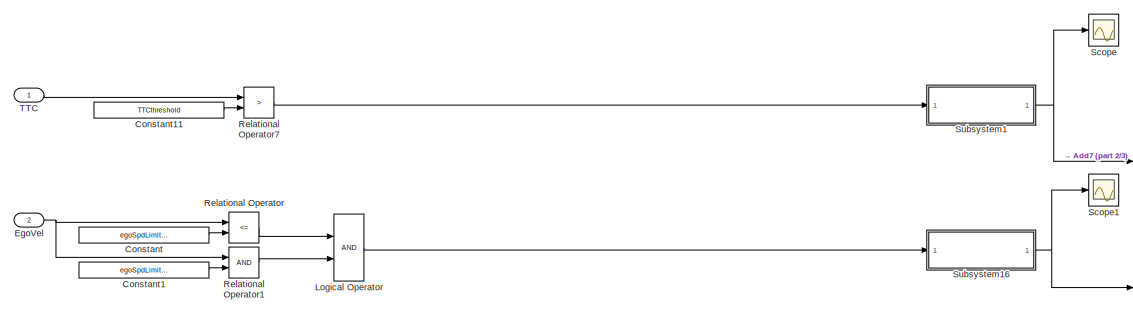
[diagram: ESAsts/Passive2StandbyFlag1 - part 1/3, top left region]
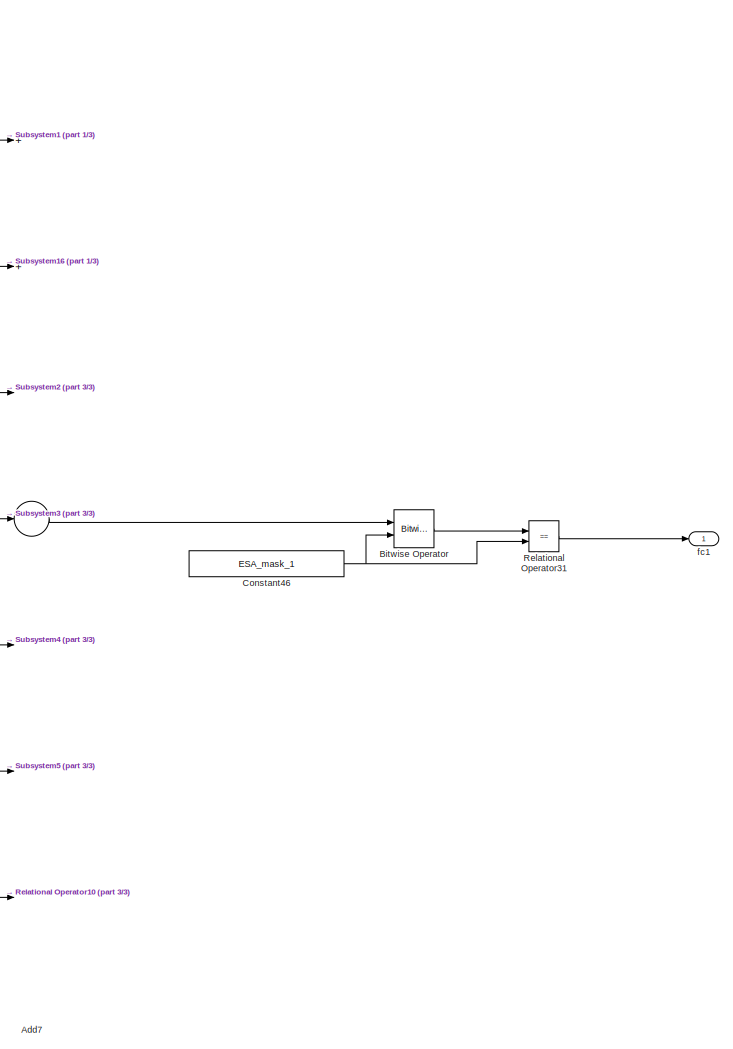
[diagram: ESAsts/Passive2StandbyFlag1 - part 2/3, right side, full height]
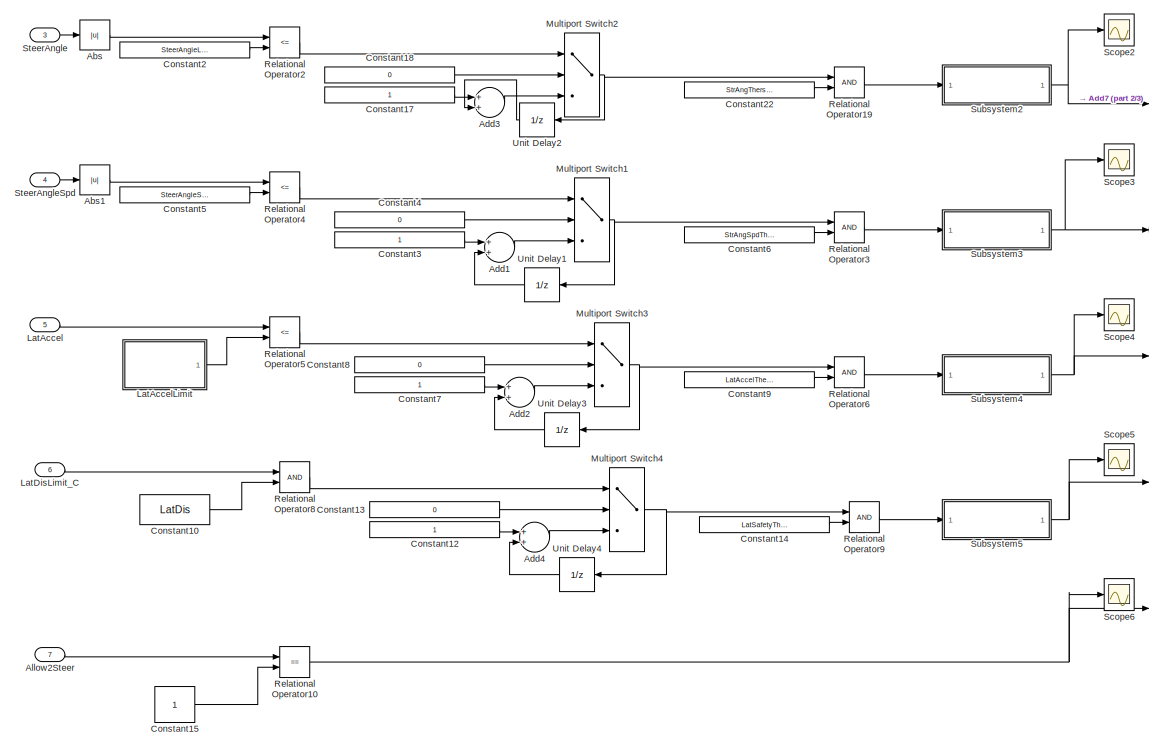
[diagram: ESAsts/Passive2StandbyFlag1 - part 3/3, middle left region]
BLOCK [SubSystem] ESAsts/Passive2StandbyFlag1
  Commented = on
  Ports = [7, 1]
  RequestExecContextInheritance = off
  Variant = off
BLOCK [Abs] ESAsts/Passive2StandbyFlag1/Abs
  SaturateOnIntegerOverflow = off
BLOCK [Abs] ESAsts/Passive2StandbyFlag1/Abs1
  SaturateOnIntegerOverflow = off
BLOCK [Sum] ESAsts/Passive2StandbyFlag1/Add1
  InputSameDT = off
  OutDataTypeStr = Inherit: Inherit via internal rule
  Ports = [2, 1]
BLOCK [Sum] ESAsts/Passive2StandbyFlag1/Add2
  InputSameDT = off
  OutDataTypeStr = Inherit: Inherit via internal rule
  Ports = [2, 1]
BLOCK [Sum] ESAsts/Passive2StandbyFlag1/Add3
  InputSameDT = off
  OutDataTypeStr = Inherit: Inherit via internal rule
  Ports = [2, 1]
BLOCK [Sum] ESAsts/Passive2StandbyFlag1/Add4
  InputSameDT = off
  OutDataTypeStr = Inherit: Inherit via internal rule
  Ports = [2, 1]
BLOCK [Sum] ESAsts/Passive2StandbyFlag1/Add7
  InputSameDT = off
  Inputs = 7
  OutDataTypeStr = Inherit: Inherit via internal rule
  Ports = [7, 1]
BLOCK [Inport] ESAsts/Passive2StandbyFlag1/Allow2Steer
  IconDisplay = Port number
  Port = 7
BLOCK [Reference] ESAsts/Passive2StandbyFlag1/Bitwise Operator  REF=simulink/Logic and Bit
Operations/Bitwise
Operator
  Ports = [2, 1]
  SourceBlock = simulink/Logic and Bit\nOperations/Bitwise\nOperator
  SourceType = Bitwise Operator
BLOCK [Constant] ESAsts/Passive2StandbyFlag1/Constant
  Value = egoSpdLimit_H
BLOCK [Constant] ESAsts/Passive2StandbyFlag1/Constant1
  Value = egoSpdLimit_L
BLOCK [Constant] ESAsts/Passive2StandbyFlag1/Constant10
  Value = LatDis
BLOCK [Constant] ESAsts/Passive2StandbyFlag1/Constant11
  Value = TTCthreshold
BLOCK [Constant] ESAsts/Passive2StandbyFlag1/Constant12
  OutDataTypeStr = uint8
BLOCK [Constant] ESAsts/Passive2StandbyFlag1/Constant13
  OutDataTypeStr = uint8
  Value = 0
BLOCK [Constant] ESAsts/Passive2StandbyFlag1/Constant14
  Value = LatSafetyThershold
BLOCK [Constant] ESAsts/Passive2StandbyFlag1/Constant15
BLOCK [Constant] ESAsts/Passive2StandbyFlag1/Constant17
  OutDataTypeStr = uint8
BLOCK [Constant] ESAsts/Passive2StandbyFlag1/Constant18
  OutDataTypeStr = uint8
  Value = 0
BLOCK [Constant] ESAsts/Passive2StandbyFlag1/Constant2
  Value = SteerAngleLimit
BLOCK [Constant] ESAsts/Passive2StandbyFlag1/Constant22
  Value = StrAngThershold
BLOCK [Constant] ESAsts/Passive2StandbyFlag1/Constant3
  OutDataTypeStr = uint8
BLOCK [Constant] ESAsts/Passive2StandbyFlag1/Constant4
  OutDataTypeStr = uint8
  Value = 0
BLOCK [Constant] ESAsts/Passive2StandbyFlag1/Constant46
  OutDataTypeStr = uint32
  Value = ESA_mask_1
BLOCK [Constant] ESAsts/Passive2StandbyFlag1/Constant5
  Value = SteerAngleSpdLimit
BLOCK [Constant] ESAsts/Passive2StandbyFlag1/Constant6
  Value = StrAngSpdThershold
BLOCK [Constant] ESAsts/Passive2StandbyFlag1/Constant7
  OutDataTypeStr = uint8
BLOCK [Constant] ESAsts/Passive2StandbyFlag1/Constant8
  OutDataTypeStr = uint8
  Value = 0
BLOCK [Constant] ESAsts/Passive2StandbyFlag1/Constant9
  Value = LatAccelThershold
BLOCK [Inport] ESAsts/Passive2StandbyFlag1/EgoVel
  IconDisplay = Port number
  Port = 2
BLOCK [Inport] ESAsts/Passive2StandbyFlag1/LatAccel
  IconDisplay = Port number
  Port = 5
BLOCK [SubSystem] ESAsts/Passive2StandbyFlag1/LatAccelLimit
  Ports = [0, 1]
  RequestExecContextInheritance = off
  Variant = off
BLOCK [Constant] ESAsts/Passive2StandbyFlag1/LatAccelLimit/Constant10
  Value = g
BLOCK [Constant] ESAsts/Passive2StandbyFlag1/LatAccelLimit/Constant12
  Value = 0.67
BLOCK [Constant] ESAsts/Passive2StandbyFlag1/LatAccelLimit/Constant9
  Value = coefficient
BLOCK [Product] ESAsts/Passive2StandbyFlag1/LatAccelLimit/Divide
  InputSameDT = off
  Inputs = ***
  OutDataTypeStr = Inherit: Inherit via internal rule
  Ports = [3, 1]
  RndMeth = Floor
  SaturateOnIntegerOverflow = off
BLOCK [Outport] ESAsts/Passive2StandbyFlag1/LatAccelLimit/Limit
  IconDisplay = Port number
BLOCK [Inport] ESAsts/Passive2StandbyFlag1/LatDisLimit_C
  IconDisplay = Port number
  Port = 6
BLOCK [Logic] ESAsts/Passive2StandbyFlag1/Logical Operator
  AllPortsSameDT = off
  OutDataTypeStr = boolean
  Ports = [2, 1]
BLOCK [MultiPortSwitch] ESAsts/Passive2StandbyFlag1/Multiport Switch1
  DataPortOrder = Zero-based contiguous
  InputSameDT = off
  Inputs = 2
  Ports = [3, 1]
  SaturateOnIntegerOverflow = off
BLOCK [MultiPortSwitch] ESAsts/Passive2StandbyFlag1/Multiport Switch2
  DataPortOrder = Zero-based contiguous
  InputSameDT = off
  Inputs = 2
  Ports = [3, 1]
  SaturateOnIntegerOverflow = off
BLOCK [MultiPortSwitch] ESAsts/Passive2StandbyFlag1/Multiport Switch3
  DataPortOrder = Zero-based contiguous
  InputSameDT = off
  Inputs = 2
  Ports = [3, 1]
  SaturateOnIntegerOverflow = off
BLOCK [MultiPortSwitch] ESAsts/Passive2StandbyFlag1/Multiport Switch4
  DataPortOrder = Zero-based contiguous
  InputSameDT = off
  Inputs = 2
  Ports = [3, 1]
  SaturateOnIntegerOverflow = off
BLOCK [RelationalOperator] ESAsts/Passive2StandbyFlag1/Relational Operator
  InputSameDT = off
  Operator = <=
  OutDataTypeStr = boolean
  Ports = [2, 1]
  RndMeth = Simplest
BLOCK [RelationalOperator] ESAsts/Passive2StandbyFlag1/Relational Operator1
  InputSameDT = off
  OutDataTypeStr = boolean
  Ports = [2, 1]
  RndMeth = Simplest
BLOCK [RelationalOperator] ESAsts/Passive2StandbyFlag1/Relational Operator10
  InputSameDT = off
  Operator = ==
  OutDataTypeStr = boolean
  Ports = [2, 1]
  RndMeth = Simplest
BLOCK [RelationalOperator] ESAsts/Passive2StandbyFlag1/Relational Operator19
  InputSameDT = off
  OutDataTypeStr = boolean
  Ports = [2, 1]
  RndMeth = Simplest
BLOCK [RelationalOperator] ESAsts/Passive2StandbyFlag1/Relational Operator2
  InputSameDT = off
  Operator = <=
  OutDataTypeStr = boolean
  Ports = [2, 1]
  RndMeth = Simplest
BLOCK [RelationalOperator] ESAsts/Passive2StandbyFlag1/Relational Operator3
  InputSameDT = off
  OutDataTypeStr = boolean
  Ports = [2, 1]
  RndMeth = Simplest
BLOCK [RelationalOperator] ESAsts/Passive2StandbyFlag1/Relational Operator31
  InputSameDT = off
  Operator = ==
  OutDataTypeStr = boolean
  Ports = [2, 1]
  RndMeth = Simplest
BLOCK [RelationalOperator] ESAsts/Passive2StandbyFlag1/Relational Operator4
  InputSameDT = off
  Operator = <=
  OutDataTypeStr = boolean
  Ports = [2, 1]
  RndMeth = Simplest
BLOCK [RelationalOperator] ESAsts/Passive2StandbyFlag1/Relational Operator5
  InputSameDT = off
  Operator = <=
  OutDataTypeStr = boolean
  Ports = [2, 1]
  RndMeth = Simplest
BLOCK [RelationalOperator] ESAsts/Passive2StandbyFlag1/Relational Operator6
  InputSameDT = off
  OutDataTypeStr = boolean
  Ports = [2, 1]
  RndMeth = Simplest
BLOCK [RelationalOperator] ESAsts/Passive2StandbyFlag1/Relational Operator7
  InputSameDT = off
  Operator = >
  OutDataTypeStr = boolean
  Ports = [2, 1]
  RndMeth = Simplest
BLOCK [RelationalOperator] ESAsts/Passive2StandbyFlag1/Relational Operator8
  InputSameDT = off
  OutDataTypeStr = boolean
  Ports = [2, 1]
  RndMeth = Simplest
BLOCK [RelationalOperator] ESAsts/Passive2StandbyFlag1/Relational Operator9
  InputSameDT = off
  OutDataTypeStr = boolean
  Ports = [2, 1]
  RndMeth = Simplest
BLOCK [Scope] ESAsts/Passive2StandbyFlag1/Scope
  NumInputPorts = 1
  Ports = [1]
  ScopeSpecificationString = Simulink.scopes.TimeScopeBlockCfg('CurrentConfiguration', extmgr.ConfigurationSet(extmgr.Configuration('Core','General UI',true),extmgr.Configuration('Core','Source UI',true),extmgr.Configuration('Sources','WiredSimulink',true,'DataLoggingVariableName','ScopeData17'),extmgr.Configuration('Visuals','Time Domain',true,'SerializedDisplays',{struct('MinYLimReal','-0.125','MaxYLimReal','1.125','YLabelR...<+1358ch>
BLOCK [Scope] ESAsts/Passive2StandbyFlag1/Scope1
  NumInputPorts = 1
  Ports = [1]
  ScopeSpecificationString = Simulink.scopes.TimeScopeBlockCfg('CurrentConfiguration', extmgr.ConfigurationSet(extmgr.Configuration('Core','General UI',true),extmgr.Configuration('Core','Source UI',true),extmgr.Configuration('Sources','WiredSimulink',true,'DataLoggingVariableName','ScopeData18'),extmgr.Configuration('Visuals','Time Domain',true,'SerializedDisplays',{struct('MinYLimReal','-0.25','MaxYLimReal','2.25','YLabelRea...<+1353ch>
BLOCK [Scope] ESAsts/Passive2StandbyFlag1/Scope2
  NumInputPorts = 1
  Ports = [1]
  ScopeSpecificationString = Simulink.scopes.TimeScopeBlockCfg('CurrentConfiguration', extmgr.ConfigurationSet(extmgr.Configuration('Core','General UI',true),extmgr.Configuration('Core','Source UI',true),extmgr.Configuration('Sources','WiredSimulink',true,'DataLoggingVariableName','ScopeData19'),extmgr.Configuration('Visuals','Time Domain',true,'SerializedDisplays',{struct('MinYLimReal','2.00000','MaxYLimReal','4.00000','YLab...<+1368ch>
BLOCK [Scope] ESAsts/Passive2StandbyFlag1/Scope3
  NumInputPorts = 1
  Ports = [1]
  ScopeSpecificationString = Simulink.scopes.TimeScopeBlockCfg('CurrentConfiguration', extmgr.ConfigurationSet(extmgr.Configuration('Core','General UI',true),extmgr.Configuration('Core','Source UI',true),extmgr.Configuration('Sources','WiredSimulink',true,'DataLoggingVariableName','ScopeData20'),extmgr.Configuration('Visuals','Time Domain',true,'SerializedDisplays',{struct('MinYLimReal','3.00000','MaxYLimReal','5.00000','YLab...<+1368ch>
BLOCK [Scope] ESAsts/Passive2StandbyFlag1/Scope4
  NumInputPorts = 1
  Ports = [1]
  ScopeSpecificationString = Simulink.scopes.TimeScopeBlockCfg('CurrentConfiguration', extmgr.ConfigurationSet(extmgr.Configuration('Core','General UI',true),extmgr.Configuration('Core','Source UI',true),extmgr.Configuration('Sources','WiredSimulink',true,'DataLoggingVariableName','ScopeData21'),extmgr.Configuration('Visuals','Time Domain',true,'SerializedDisplays',{struct('MinYLimReal','4.00000','MaxYLimReal','6.00000','YLab...<+1368ch>
BLOCK [Scope] ESAsts/Passive2StandbyFlag1/Scope5
  NumInputPorts = 1
  Ports = [1]
  ScopeSpecificationString = Simulink.scopes.TimeScopeBlockCfg('CurrentConfiguration', extmgr.ConfigurationSet(extmgr.Configuration('Core','General UI',true),extmgr.Configuration('Core','Source UI',true),extmgr.Configuration('Sources','WiredSimulink',true,'DataLoggingVariableName','ScopeData22'),extmgr.Configuration('Visuals','Time Domain',true,'SerializedDisplays',{struct('MinYLimReal','-0.75','MaxYLimReal','6.75','YLabelRea...<+1352ch>
BLOCK [Scope] ESAsts/Passive2StandbyFlag1/Scope6
  NumInputPorts = 1
  Ports = [1]
  ScopeSpecificationString = Simulink.scopes.TimeScopeBlockCfg('CurrentConfiguration', extmgr.ConfigurationSet(extmgr.Configuration('Core','General UI',true),extmgr.Configuration('Core','Source UI',true),extmgr.Configuration('Sources','WiredSimulink',true,'DataLoggingVariableName','ScopeData23'),extmgr.Configuration('Visuals','Time Domain',true,'SerializedDisplays',{struct('MinYLimReal','-0.125','MaxYLimReal','1.125','YLabelR...<+1369ch>
BLOCK [Inport] ESAsts/Passive2StandbyFlag1/SteerAngle
  IconDisplay = Port number
  Port = 3
BLOCK [Inport] ESAsts/Passive2StandbyFlag1/SteerAngleSpd
  IconDisplay = Port number
  Port = 4
BLOCK [SubSystem] ESAsts/Passive2StandbyFlag1/Subsystem1
  Ports = [1, 1]
  RequestExecContextInheritance = off
  Variant = off
BLOCK [Constant] ESAsts/Passive2StandbyFlag1/Subsystem1/Constant45
  OutDataTypeStr = uint32
  Value = 0
BLOCK [Constant] ESAsts/Passive2StandbyFlag1/Subsystem1/Constant46
  OutDataTypeStr = uint32
BLOCK [MultiPortSwitch] ESAsts/Passive2StandbyFlag1/Subsystem1/Multiport Switch7
  DataPortOrder = Zero-based contiguous
  InputSameDT = off
  Inputs = 2
  Ports = [3, 1]
  SaturateOnIntegerOverflow = off
BLOCK [ArithShift] ESAsts/Passive2StandbyFlag1/Subsystem1/Shift Arithmetic
  BitShiftDirection = Left
  BitShiftNumber = 8
  BitShiftNumberSource = Input port
  InputPortMap = u0,p1
  Ports = [2, 1]
BLOCK [Constant] ESAsts/Passive2StandbyFlag1/Subsystem1/bitMask
  OutDataTypeStr = uint8
  Value = 0
BLOCK [Inport] ESAsts/Passive2StandbyFlag1/Subsystem1/flag
  IconDisplay = Port number
BLOCK [Outport] ESAsts/Passive2StandbyFlag1/Subsystem1/maskCnst
  IconDisplay = Port number
BLOCK [SubSystem] ESAsts/Passive2StandbyFlag1/Subsystem16
  Ports = [1, 1]
  RequestExecContextInheritance = off
  Variant = off
BLOCK [Constant] ESAsts/Passive2StandbyFlag1/Subsystem16/Constant45
  OutDataTypeStr = uint32
  Value = 0
BLOCK [Constant] ESAsts/Passive2StandbyFlag1/Subsystem16/Constant46
  OutDataTypeStr = uint32
  Value = 2
BLOCK [MultiPortSwitch] ESAsts/Passive2StandbyFlag1/Subsystem16/Multiport Switch7
  DataPortOrder = Zero-based contiguous
  InputSameDT = off
  Inputs = 2
  Ports = [3, 1]
  SaturateOnIntegerOverflow = off
BLOCK [ArithShift] ESAsts/Passive2StandbyFlag1/Subsystem16/Shift Arithmetic
  BitShiftDirection = Left
  BitShiftNumber = 8
  BitShiftNumberSource = Input port
  InputPortMap = u0,p1
  Ports = [2, 1]
BLOCK [Constant] ESAsts/Passive2StandbyFlag1/Subsystem16/bitMask
  OutDataTypeStr = uint8
  Value = 0
BLOCK [Inport] ESAsts/Passive2StandbyFlag1/Subsystem16/flag
  IconDisplay = Port number
BLOCK [Outport] ESAsts/Passive2StandbyFlag1/Subsystem16/maskCnst
  IconDisplay = Port number
BLOCK [SubSystem] ESAsts/Passive2StandbyFlag1/Subsystem2
  Ports = [1, 1]
  RequestExecContextInheritance = off
  Variant = off
BLOCK [Constant] ESAsts/Passive2StandbyFlag1/Subsystem2/Constant45
  OutDataTypeStr = uint32
  Value = 0
BLOCK [Constant] ESAsts/Passive2StandbyFlag1/Subsystem2/Constant46
  OutDataTypeStr = uint32
  Value = 3
BLOCK [MultiPortSwitch] ESAsts/Passive2StandbyFlag1/Subsystem2/Multiport Switch7
  DataPortOrder = Zero-based contiguous
  InputSameDT = off
  Inputs = 2
  Ports = [3, 1]
  SaturateOnIntegerOverflow = off
BLOCK [ArithShift] ESAsts/Passive2StandbyFlag1/Subsystem2/Shift Arithmetic
  BitShiftDirection = Left
  BitShiftNumber = 8
  BitShiftNumberSource = Input port
  InputPortMap = u0,p1
  Ports = [2, 1]
BLOCK [Constant] ESAsts/Passive2StandbyFlag1/Subsystem2/bitMask
  OutDataTypeStr = uint8
  Value = 0
BLOCK [Inport] ESAsts/Passive2StandbyFlag1/Subsystem2/flag
  IconDisplay = Port number
BLOCK [Outport] ESAsts/Passive2StandbyFlag1/Subsystem2/maskCnst
  IconDisplay = Port number
BLOCK [SubSystem] ESAsts/Passive2StandbyFlag1/Subsystem3
  Ports = [1, 1]
  RequestExecContextInheritance = off
  Variant = off
BLOCK [Constant] ESAsts/Passive2StandbyFlag1/Subsystem3/Constant45
  OutDataTypeStr = uint32
  Value = 0
BLOCK [Constant] ESAsts/Passive2StandbyFlag1/Subsystem3/Constant46
  OutDataTypeStr = uint32
  Value = 4
BLOCK [MultiPortSwitch] ESAsts/Passive2StandbyFlag1/Subsystem3/Multiport Switch7
  DataPortOrder = Zero-based contiguous
  InputSameDT = off
  Inputs = 2
  Ports = [3, 1]
  SaturateOnIntegerOverflow = off
BLOCK [ArithShift] ESAsts/Passive2StandbyFlag1/Subsystem3/Shift Arithmetic
  BitShiftDirection = Left
  BitShiftNumber = 8
  BitShiftNumberSource = Input port
  InputPortMap = u0,p1
  Ports = [2, 1]
BLOCK [Constant] ESAsts/Passive2StandbyFlag1/Subsystem3/bitMask
  OutDataTypeStr = uint8
  Value = 0
BLOCK [Inport] ESAsts/Passive2StandbyFlag1/Subsystem3/flag
  IconDisplay = Port number
BLOCK [Outport] ESAsts/Passive2StandbyFlag1/Subsystem3/maskCnst
  IconDisplay = Port number
BLOCK [SubSystem] ESAsts/Passive2StandbyFlag1/Subsystem4
  Ports = [1, 1]
  RequestExecContextInheritance = off
  Variant = off
BLOCK [Constant] ESAsts/Passive2StandbyFlag1/Subsystem4/Constant45
  OutDataTypeStr = uint32
  Value = 0
BLOCK [Constant] ESAsts/Passive2StandbyFlag1/Subsystem4/Constant46
  OutDataTypeStr = uint32
  Value = 5
BLOCK [MultiPortSwitch] ESAsts/Passive2StandbyFlag1/Subsystem4/Multiport Switch7
  DataPortOrder = Zero-based contiguous
  InputSameDT = off
  Inputs = 2
  Ports = [3, 1]
  SaturateOnIntegerOverflow = off
BLOCK [ArithShift] ESAsts/Passive2StandbyFlag1/Subsystem4/Shift Arithmetic
  BitShiftDirection = Left
  BitShiftNumber = 8
  BitShiftNumberSource = Input port
  InputPortMap = u0,p1
  Ports = [2, 1]
BLOCK [Constant] ESAsts/Passive2StandbyFlag1/Subsystem4/bitMask
  OutDataTypeStr = uint8
  Value = 0
BLOCK [Inport] ESAsts/Passive2StandbyFlag1/Subsystem4/flag
  IconDisplay = Port number
BLOCK [Outport] ESAsts/Passive2StandbyFlag1/Subsystem4/maskCnst
  IconDisplay = Port number
BLOCK [SubSystem] ESAsts/Passive2StandbyFlag1/Subsystem5
  Ports = [1, 1]
  RequestExecContextInheritance = off
  Variant = off
BLOCK [Constant] ESAsts/Passive2StandbyFlag1/Subsystem5/Constant45
  OutDataTypeStr = uint32
  Value = 0
BLOCK [Constant] ESAsts/Passive2StandbyFlag1/Subsystem5/Constant46
  OutDataTypeStr = uint32
  Value = 6
BLOCK [MultiPortSwitch] ESAsts/Passive2StandbyFlag1/Subsystem5/Multiport Switch7
  DataPortOrder = Zero-based contiguous
  InputSameDT = off
  Inputs = 2
  Ports = [3, 1]
  SaturateOnIntegerOverflow = off
BLOCK [ArithShift] ESAsts/Passive2StandbyFlag1/Subsystem5/Shift Arithmetic
  BitShiftDirection = Left
  BitShiftNumber = 8
  BitShiftNumberSource = Input port
  InputPortMap = u0,p1
  Ports = [2, 1]
BLOCK [Constant] ESAsts/Passive2StandbyFlag1/Subsystem5/bitMask
  OutDataTypeStr = uint8
  Value = 0
BLOCK [Inport] ESAsts/Passive2StandbyFlag1/Subsystem5/flag
  IconDisplay = Port number
BLOCK [Outport] ESAsts/Passive2StandbyFlag1/Subsystem5/maskCnst
  IconDisplay = Port number
BLOCK [Inport] ESAsts/Passive2StandbyFlag1/TTC
  IconDisplay = Port number
BLOCK [UnitDelay] ESAsts/Passive2StandbyFlag1/Unit Delay1
  InputProcessing = Elements as channels (sample based)
  SampleTime = -1
BLOCK [UnitDelay] ESAsts/Passive2StandbyFlag1/Unit Delay2
  InputProcessing = Elements as channels (sample based)
  SampleTime = -1
BLOCK [UnitDelay] ESAsts/Passive2StandbyFlag1/Unit Delay3
  InputProcessing = Elements as channels (sample based)
  SampleTime = -1
BLOCK [UnitDelay] ESAsts/Passive2StandbyFlag1/Unit Delay4
  InputProcessing = Elements as channels (sample based)
  SampleTime = -1
BLOCK [Outport] ESAsts/Passive2StandbyFlag1/fc1
  IconDisplay = Port number
BLOCK [SubSystem] ESAsts/Stanby2PassiveFlag
  Ports = [4, 1]
  RequestExecContextInheritance = off
  Variant = off
BLOCK [Sum] ESAsts/Stanby2PassiveFlag/Add2
  InputSameDT = off
  OutDataTypeStr = Inherit: Inherit via internal rule
  Ports = [2, 1]
BLOCK [Sum] ESAsts/Stanby2PassiveFlag/Add4
  InputSameDT = off
  OutDataTypeStr = Inherit: Inherit via internal rule
  Ports = [2, 1]
BLOCK [Sum] ESAsts/Stanby2PassiveFlag/Add7
  InputSameDT = off
  Inputs = 4
  OutDataTypeStr = Inherit: Inherit via internal rule
  Ports = [4, 1]
BLOCK [Inport] ESAsts/Stanby2PassiveFlag/Allow2Steer
  IconDisplay = Port number
  Port = 4
BLOCK [Reference] ESAsts/Stanby2PassiveFlag/Bitwise Operator  REF=simulink/Logic and Bit
Operations/Bitwise
Operator
  Ports = [2, 1]
  SourceBlock = simulink/Logic and Bit\nOperations/Bitwise\nOperator
  SourceType = Bitwise Operator
BLOCK [Constant] ESAsts/Stanby2PassiveFlag/Constant1
  Value = 2
BLOCK [Constant] ESAsts/Stanby2PassiveFlag/Constant10
  Value = LatDis
BLOCK [Constant] ESAsts/Stanby2PassiveFlag/Constant12
  OutDataTypeStr = uint8
BLOCK [Constant] ESAsts/Stanby2PassiveFlag/Constant13
  OutDataTypeStr = uint8
  Value = 0
BLOCK [Constant] ESAsts/Stanby2PassiveFlag/Constant14
  Value = LatSafetyThershold
BLOCK [Constant] ESAsts/Stanby2PassiveFlag/Constant15
  Value = 0
BLOCK [Constant] ESAsts/Stanby2PassiveFlag/Constant46
  OutDataTypeStr = uint32
  Value = ESA_mask_2
BLOCK [Constant] ESAsts/Stanby2PassiveFlag/Constant7
  OutDataTypeStr = uint8
BLOCK [Constant] ESAsts/Stanby2PassiveFlag/Constant8
  OutDataTypeStr = uint8
  Value = 0
BLOCK [Constant] ESAsts/Stanby2PassiveFlag/Constant9
  Value = LatAccelThershold
BLOCK [Inport] ESAsts/Stanby2PassiveFlag/ESA_sts_Judge
  IconDisplay = Port number
BLOCK [Inport] ESAsts/Stanby2PassiveFlag/LatAccel
  IconDisplay = Port number
  Port = 2
BLOCK [SubSystem] ESAsts/Stanby2PassiveFlag/LatAccelLimit
  Ports = [0, 1]
  RequestExecContextInheritance = off
  Variant = off
BLOCK [Constant] ESAsts/Stanby2PassiveFlag/LatAccelLimit/Constant10
  Value = g
BLOCK [Constant] ESAsts/Stanby2PassiveFlag/LatAccelLimit/Constant12
  Value = 0.67
BLOCK [Constant] ESAsts/Stanby2PassiveFlag/LatAccelLimit/Constant9
  Value = coefficient
BLOCK [Product] ESAsts/Stanby2PassiveFlag/LatAccelLimit/Divide
  InputSameDT = off
  Inputs = ***
  OutDataTypeStr = Inherit: Inherit via internal rule
  Ports = [3, 1]
  RndMeth = Floor
  SaturateOnIntegerOverflow = off
BLOCK [Outport] ESAsts/Stanby2PassiveFlag/LatAccelLimit/Limit
  IconDisplay = Port number
BLOCK [Inport] ESAsts/Stanby2PassiveFlag/LatDisLimit_C
  IconDisplay = Port number
  Port = 3
BLOCK [MultiPortSwitch] ESAsts/Stanby2PassiveFlag/Multiport Switch3
  DataPortOrder = Zero-based contiguous
  InputSameDT = off
  Inputs = 2
  Ports = [3, 1]
  SaturateOnIntegerOverflow = off
BLOCK [MultiPortSwitch] ESAsts/Stanby2PassiveFlag/Multiport Switch4
  DataPortOrder = Zero-based contiguous
  InputSameDT = off
  Inputs = 2
  Ports = [3, 1]
  SaturateOnIntegerOverflow = off
BLOCK [RelationalOperator] ESAsts/Stanby2PassiveFlag/Relational Operator1
  InputSameDT = off
  Operator = ==
  OutDataTypeStr = boolean
  Ports = [2, 1]
  RndMeth = Simplest
BLOCK [RelationalOperator] ESAsts/Stanby2PassiveFlag/Relational Operator10
  InputSameDT = off
  Operator = ==
  OutDataTypeStr = boolean
  Ports = [2, 1]
  RndMeth = Simplest
BLOCK [RelationalOperator] ESAsts/Stanby2PassiveFlag/Relational Operator31
  InputSameDT = off
  Operator = ==
  OutDataTypeStr = boolean
  Ports = [2, 1]
  RndMeth = Simplest
BLOCK [RelationalOperator] ESAsts/Stanby2PassiveFlag/Relational Operator5
  InputSameDT = off
  Operator = >
  OutDataTypeStr = boolean
  Ports = [2, 1]
  RndMeth = Simplest
BLOCK [RelationalOperator] ESAsts/Stanby2PassiveFlag/Relational Operator6
  InputSameDT = off
  OutDataTypeStr = boolean
  Ports = [2, 1]
  RndMeth = Simplest
BLOCK [RelationalOperator] ESAsts/Stanby2PassiveFlag/Relational Operator8
  InputSameDT = off
  Operator = <=
  OutDataTypeStr = boolean
  Ports = [2, 1]
  RndMeth = Simplest
BLOCK [RelationalOperator] ESAsts/Stanby2PassiveFlag/Relational Operator9
  InputSameDT = off
  OutDataTypeStr = boolean
  Ports = [2, 1]
  RndMeth = Simplest
BLOCK [Scope] ESAsts/Stanby2PassiveFlag/Scope1
  NumInputPorts = 1
  Ports = [1]
  ScopeSpecificationString = Simulink.scopes.TimeScopeBlockCfg('CurrentConfiguration', extmgr.ConfigurationSet(extmgr.Configuration('Core','General UI',true),extmgr.Configuration('Core','Source UI',true),extmgr.Configuration('Sources','WiredSimulink',true,'DataLoggingVariableName','ScopeData25'),extmgr.Configuration('Visuals','Time Domain',true,'SerializedDisplays',{struct('MinYLimReal','-0.5','MaxYLimReal','4.5','YLabelReal'...<+1346ch>
BLOCK [Scope] ESAsts/Stanby2PassiveFlag/Scope2
  NumInputPorts = 1
  Ports = [1]
  ScopeSpecificationString = Simulink.scopes.TimeScopeBlockCfg('CurrentConfiguration', extmgr.ConfigurationSet(extmgr.Configuration('Core','General UI',true),extmgr.Configuration('Core','Source UI',true),extmgr.Configuration('Sources','WiredSimulink',true,'DataLoggingVariableName','ScopeData26'),extmgr.Configuration('Visuals','Time Domain',true,'SerializedDisplays',{struct('MinYLimReal','-1.00000','MaxYLimReal','9.00000','YLa...<+1370ch>
BLOCK [Scope] ESAsts/Stanby2PassiveFlag/Scope3
  NumInputPorts = 1
  Ports = [1]
  ScopeSpecificationString = Simulink.scopes.TimeScopeBlockCfg('CurrentConfiguration', extmgr.ConfigurationSet(extmgr.Configuration('Core','General UI',true),extmgr.Configuration('Core','Source UI',true),extmgr.Configuration('Sources','WiredSimulink',true,'DataLoggingVariableName','ScopeData39'),extmgr.Configuration('Visuals','Time Domain',true,'SerializedDisplays',{struct('MinYLimReal','-0.125','MaxYLimReal','1.125','YLabelR...<+1358ch>
BLOCK [Scope] ESAsts/Stanby2PassiveFlag/Scope4
  NumInputPorts = 1
  Ports = [1]
  ScopeSpecificationString = Simulink.scopes.TimeScopeBlockCfg('CurrentConfiguration', extmgr.ConfigurationSet(extmgr.Configuration('Core','General UI',true),extmgr.Configuration('Core','Source UI',true),extmgr.Configuration('Sources','WiredSimulink',true,'DataLoggingVariableName','ScopeData24'),extmgr.Configuration('Visuals','Time Domain',true,'SerializedDisplays',{struct('MinYLimReal','-1.00000','MaxYLimReal','1.00000','YLa...<+1370ch>
BLOCK [SubSystem] ESAsts/Stanby2PassiveFlag/Subsystem1
  Ports = [1, 1]
  RequestExecContextInheritance = off
  Variant = off
BLOCK [Constant] ESAsts/Stanby2PassiveFlag/Subsystem1/Constant45
  OutDataTypeStr = uint32
  Value = 0
BLOCK [Constant] ESAsts/Stanby2PassiveFlag/Subsystem1/Constant46
  OutDataTypeStr = uint32
BLOCK [MultiPortSwitch] ESAsts/Stanby2PassiveFlag/Subsystem1/Multiport Switch7
  DataPortOrder = Zero-based contiguous
  InputSameDT = off
  Inputs = 2
  Ports = [3, 1]
  SaturateOnIntegerOverflow = off
BLOCK [ArithShift] ESAsts/Stanby2PassiveFlag/Subsystem1/Shift Arithmetic
  BitShiftDirection = Left
  BitShiftNumber = 8
  BitShiftNumberSource = Input port
  InputPortMap = u0,p1
  Ports = [2, 1]
BLOCK [Constant] ESAsts/Stanby2PassiveFlag/Subsystem1/bitMask
  OutDataTypeStr = uint8
  Value = 3
BLOCK [Inport] ESAsts/Stanby2PassiveFlag/Subsystem1/flag
  IconDisplay = Port number
BLOCK [Outport] ESAsts/Stanby2PassiveFlag/Subsystem1/maskCnst
  IconDisplay = Port number
BLOCK [SubSystem] ESAsts/Stanby2PassiveFlag/Subsystem3
  Ports = [1, 1]
  RequestExecContextInheritance = off
  Variant = off
BLOCK [Constant] ESAsts/Stanby2PassiveFlag/Subsystem3/Constant45
  OutDataTypeStr = uint32
  Value = 0
BLOCK [Constant] ESAsts/Stanby2PassiveFlag/Subsystem3/Constant46
  OutDataTypeStr = uint32
BLOCK [MultiPortSwitch] ESAsts/Stanby2PassiveFlag/Subsystem3/Multiport Switch7
  DataPortOrder = Zero-based contiguous
  InputSameDT = off
  Inputs = 2
  Ports = [3, 1]
  SaturateOnIntegerOverflow = off
BLOCK [ArithShift] ESAsts/Stanby2PassiveFlag/Subsystem3/Shift Arithmetic
  BitShiftDirection = Left
  BitShiftNumber = 8
  BitShiftNumberSource = Input port
  InputPortMap = u0,p1
  Ports = [2, 1]
BLOCK [Constant] ESAsts/Stanby2PassiveFlag/Subsystem3/bitMask
  OutDataTypeStr = uint8
  Value = 0
BLOCK [Inport] ESAsts/Stanby2PassiveFlag/Subsystem3/flag
  IconDisplay = Port number
BLOCK [Outport] ESAsts/Stanby2PassiveFlag/Subsystem3/maskCnst
  IconDisplay = Port number
BLOCK [SubSystem] ESAsts/Stanby2PassiveFlag/Subsystem4
  Ports = [1, 1]
  RequestExecContextInheritance = off
  Variant = off
BLOCK [Constant] ESAsts/Stanby2PassiveFlag/Subsystem4/Constant45
  OutDataTypeStr = uint32
  Value = 0
BLOCK [Constant] ESAsts/Stanby2PassiveFlag/Subsystem4/Constant46
  OutDataTypeStr = uint32
BLOCK [MultiPortSwitch] ESAsts/Stanby2PassiveFlag/Subsystem4/Multiport Switch7
  DataPortOrder = Zero-based contiguous
  InputSameDT = off
  Inputs = 2
  Ports = [3, 1]
  SaturateOnIntegerOverflow = off
BLOCK [ArithShift] ESAsts/Stanby2PassiveFlag/Subsystem4/Shift Arithmetic
  BitShiftDirection = Left
  BitShiftNumber = 8
  BitShiftNumberSource = Input port
  InputPortMap = u0,p1
  Ports = [2, 1]
BLOCK [Constant] ESAsts/Stanby2PassiveFlag/Subsystem4/bitMask
  OutDataTypeStr = uint8
BLOCK [Inport] ESAsts/Stanby2PassiveFlag/Subsystem4/flag
  IconDisplay = Port number
BLOCK [Outport] ESAsts/Stanby2PassiveFlag/Subsystem4/maskCnst
  IconDisplay = Port number
BLOCK [SubSystem] ESAsts/Stanby2PassiveFlag/Subsystem5
  Ports = [1, 1]
  RequestExecContextInheritance = off
  Variant = off
BLOCK [Constant] ESAsts/Stanby2PassiveFlag/Subsystem5/Constant45
  OutDataTypeStr = uint32
  Value = 0
BLOCK [Constant] ESAsts/Stanby2PassiveFlag/Subsystem5/Constant46
  OutDataTypeStr = uint32
BLOCK [MultiPortSwitch] ESAsts/Stanby2PassiveFlag/Subsystem5/Multiport Switch7
  DataPortOrder = Zero-based contiguous
  InputSameDT = off
  Inputs = 2
  Ports = [3, 1]
  SaturateOnIntegerOverflow = off
BLOCK [ArithShift] ESAsts/Stanby2PassiveFlag/Subsystem5/Shift Arithmetic
  BitShiftDirection = Left
  BitShiftNumber = 8
  BitShiftNumberSource = Input port
  InputPortMap = u0,p1
  Ports = [2, 1]
BLOCK [Constant] ESAsts/Stanby2PassiveFlag/Subsystem5/bitMask
  OutDataTypeStr = uint8
  Value = 2
BLOCK [Inport] ESAsts/Stanby2PassiveFlag/Subsystem5/flag
  IconDisplay = Port number
BLOCK [Outport] ESAsts/Stanby2PassiveFlag/Subsystem5/maskCnst
  IconDisplay = Port number
BLOCK [UnitDelay] ESAsts/Stanby2PassiveFlag/Unit Delay3
  InputProcessing = Elements as channels (sample based)
  SampleTime = -1
BLOCK [UnitDelay] ESAsts/Stanby2PassiveFlag/Unit Delay4
  InputProcessing = Elements as channels (sample based)
  SampleTime = -1
BLOCK [Outport] ESAsts/Stanby2PassiveFlag/fc2
  IconDisplay = Port number
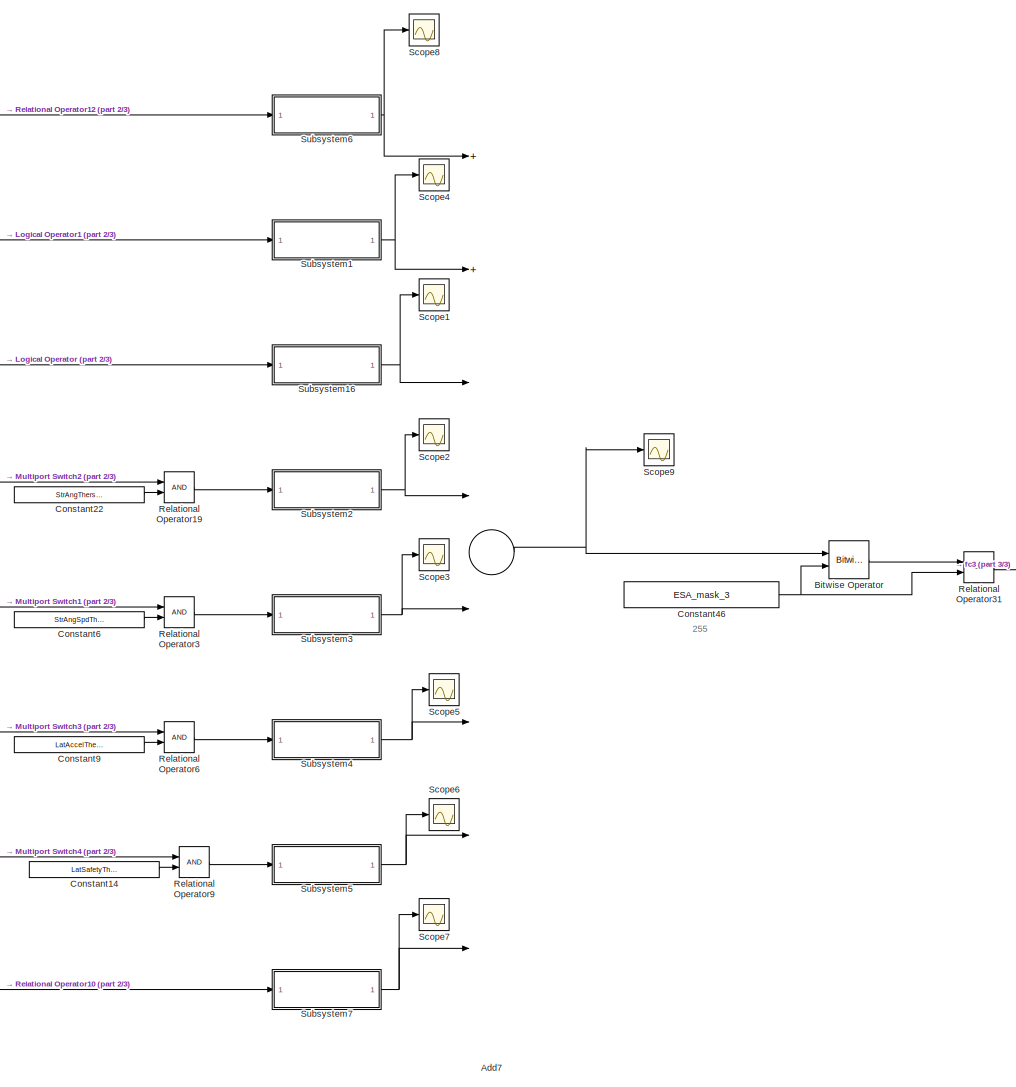
[diagram: ESAsts/Standby to Active - part 1/3, center side, full height]
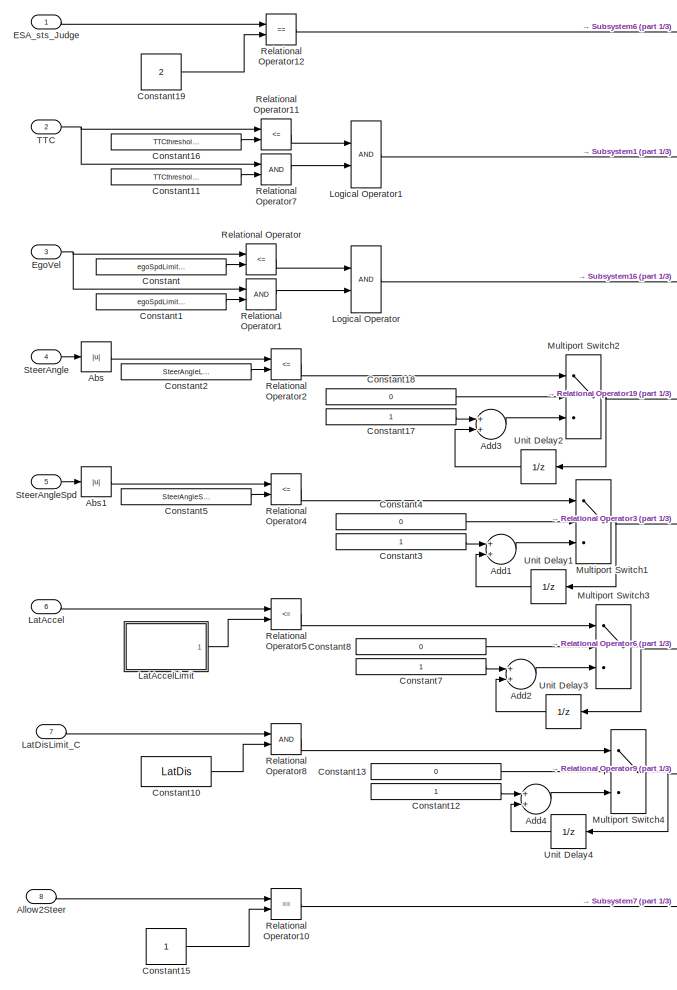
[diagram: ESAsts/Standby to Active - part 2/3, left side, full height]
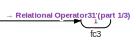
[diagram: ESAsts/Standby to Active - part 3/3, middle right region]
BLOCK [SubSystem] ESAsts/Standby to Active
  Ports = [8, 1]
  RequestExecContextInheritance = off
  Variant = off
BLOCK [Abs] ESAsts/Standby to Active/Abs
  SaturateOnIntegerOverflow = off
BLOCK [Abs] ESAsts/Standby to Active/Abs1
  SaturateOnIntegerOverflow = off
BLOCK [Sum] ESAsts/Standby to Active/Add1
  InputSameDT = off
  OutDataTypeStr = Inherit: Inherit via internal rule
  Ports = [2, 1]
BLOCK [Sum] ESAsts/Standby to Active/Add2
  InputSameDT = off
  OutDataTypeStr = Inherit: Inherit via internal rule
  Ports = [2, 1]
BLOCK [Sum] ESAsts/Standby to Active/Add3
  InputSameDT = off
  OutDataTypeStr = Inherit: Inherit via internal rule
  Ports = [2, 1]
BLOCK [Sum] ESAsts/Standby to Active/Add4
  InputSameDT = off
  OutDataTypeStr = Inherit: Inherit via internal rule
  Ports = [2, 1]
BLOCK [Sum] ESAsts/Standby to Active/Add7
  InputSameDT = off
  Inputs = 8
  OutDataTypeStr = Inherit: Inherit via internal rule
  Ports = [8, 1]
BLOCK [Inport] ESAsts/Standby to Active/Allow2Steer
  IconDisplay = Port number
  Port = 8
BLOCK [Reference] ESAsts/Standby to Active/Bitwise Operator  REF=simulink/Logic and Bit
Operations/Bitwise
Operator
  Ports = [2, 1]
  SourceBlock = simulink/Logic and Bit\nOperations/Bitwise\nOperator
  SourceType = Bitwise Operator
BLOCK [Constant] ESAsts/Standby to Active/Constant
  Value = egoSpdLimit_H
BLOCK [Constant] ESAsts/Standby to Active/Constant1
  Value = egoSpdLimit_L
BLOCK [Constant] ESAsts/Standby to Active/Constant10
  Value = LatDis
BLOCK [Constant] ESAsts/Standby to Active/Constant11
  Value = TTCthreshold3
BLOCK [Constant] ESAsts/Standby to Active/Constant12
  OutDataTypeStr = uint8
BLOCK [Constant] ESAsts/Standby to Active/Constant13
  OutDataTypeStr = uint8
  Value = 0
BLOCK [Constant] ESAsts/Standby to Active/Constant14
  Value = LatSafetyThershold
BLOCK [Constant] ESAsts/Standby to Active/Constant15
BLOCK [Constant] ESAsts/Standby to Active/Constant16
  Value = TTCthreshold1
BLOCK [Constant] ESAsts/Standby to Active/Constant17
  OutDataTypeStr = uint8
BLOCK [Constant] ESAsts/Standby to Active/Constant18
  OutDataTypeStr = uint8
  Value = 0
BLOCK [Constant] ESAsts/Standby to Active/Constant19
  Value = 2
BLOCK [Constant] ESAsts/Standby to Active/Constant2
  Value = SteerAngleLimit
BLOCK [Constant] ESAsts/Standby to Active/Constant22
  Value = StrAngThershold
BLOCK [Constant] ESAsts/Standby to Active/Constant3
  OutDataTypeStr = uint8
BLOCK [Constant] ESAsts/Standby to Active/Constant4
  OutDataTypeStr = uint8
  Value = 0
BLOCK [Constant] ESAsts/Standby to Active/Constant46
  OutDataTypeStr = uint32
  Value = ESA_mask_3
BLOCK [Constant] ESAsts/Standby to Active/Constant5
  Value = SteerAngleSpdLimit
BLOCK [Constant] ESAsts/Standby to Active/Constant6
  Value = StrAngSpdThershold
BLOCK [Constant] ESAsts/Standby to Active/Constant7
  OutDataTypeStr = uint8
BLOCK [Constant] ESAsts/Standby to Active/Constant8
  OutDataTypeStr = uint8
  Value = 0
BLOCK [Constant] ESAsts/Standby to Active/Constant9
  Value = LatAccelThershold
BLOCK [Inport] ESAsts/Standby to Active/ESA_sts_Judge
  IconDisplay = Port number
BLOCK [Inport] ESAsts/Standby to Active/EgoVel
  IconDisplay = Port number
  Port = 3
BLOCK [Inport] ESAsts/Standby to Active/LatAccel
  IconDisplay = Port number
  Port = 6
BLOCK [SubSystem] ESAsts/Standby to Active/LatAccelLimit
  Ports = [0, 1]
  RequestExecContextInheritance = off
  Variant = off
BLOCK [Constant] ESAsts/Standby to Active/LatAccelLimit/Constant10
  Value = g
BLOCK [Constant] ESAsts/Standby to Active/LatAccelLimit/Constant12
  Value = 0.67
BLOCK [Constant] ESAsts/Standby to Active/LatAccelLimit/Constant9
  Value = coefficient
BLOCK [Product] ESAsts/Standby to Active/LatAccelLimit/Divide
  InputSameDT = off
  Inputs = ***
  OutDataTypeStr = Inherit: Inherit via internal rule
  Ports = [3, 1]
  RndMeth = Floor
  SaturateOnIntegerOverflow = off
BLOCK [Outport] ESAsts/Standby to Active/LatAccelLimit/Limit
  IconDisplay = Port number
BLOCK [Inport] ESAsts/Standby to Active/LatDisLimit_C
  IconDisplay = Port number
  Port = 7
BLOCK [Logic] ESAsts/Standby to Active/Logical Operator
  AllPortsSameDT = off
  OutDataTypeStr = boolean
  Ports = [2, 1]
BLOCK [Logic] ESAsts/Standby to Active/Logical Operator1
  AllPortsSameDT = off
  OutDataTypeStr = boolean
  Ports = [2, 1]
BLOCK [MultiPortSwitch] ESAsts/Standby to Active/Multiport Switch1
  DataPortOrder = Zero-based contiguous
  InputSameDT = off
  Inputs = 2
  Ports = [3, 1]
  SaturateOnIntegerOverflow = off
BLOCK [MultiPortSwitch] ESAsts/Standby to Active/Multiport Switch2
  DataPortOrder = Zero-based contiguous
  InputSameDT = off
  Inputs = 2
  Ports = [3, 1]
  SaturateOnIntegerOverflow = off
BLOCK [MultiPortSwitch] ESAsts/Standby to Active/Multiport Switch3
  DataPortOrder = Zero-based contiguous
  InputSameDT = off
  Inputs = 2
  Ports = [3, 1]
  SaturateOnIntegerOverflow = off
BLOCK [MultiPortSwitch] ESAsts/Standby to Active/Multiport Switch4
  DataPortOrder = Zero-based contiguous
  InputSameDT = off
  Inputs = 2
  Ports = [3, 1]
  SaturateOnIntegerOverflow = off
BLOCK [RelationalOperator] ESAsts/Standby to Active/Relational Operator
  InputSameDT = off
  Operator = <=
  OutDataTypeStr = boolean
  Ports = [2, 1]
  RndMeth = Simplest
BLOCK [RelationalOperator] ESAsts/Standby to Active/Relational Operator1
  InputSameDT = off
  OutDataTypeStr = boolean
  Ports = [2, 1]
  RndMeth = Simplest
BLOCK [RelationalOperator] ESAsts/Standby to Active/Relational Operator10
  InputSameDT = off
  Operator = ==
  OutDataTypeStr = boolean
  Ports = [2, 1]
  RndMeth = Simplest
BLOCK [RelationalOperator] ESAsts/Standby to Active/Relational Operator11
  InputSameDT = off
  Operator = <=
  OutDataTypeStr = boolean
  Ports = [2, 1]
  RndMeth = Simplest
BLOCK [RelationalOperator] ESAsts/Standby to Active/Relational Operator12
  InputSameDT = off
  Operator = ==
  OutDataTypeStr = boolean
  Ports = [2, 1]
  RndMeth = Simplest
BLOCK [RelationalOperator] ESAsts/Standby to Active/Relational Operator19
  InputSameDT = off
  OutDataTypeStr = boolean
  Ports = [2, 1]
  RndMeth = Simplest
BLOCK [RelationalOperator] ESAsts/Standby to Active/Relational Operator2
  InputSameDT = off
  Operator = <=
  OutDataTypeStr = boolean
  Ports = [2, 1]
  RndMeth = Simplest
BLOCK [RelationalOperator] ESAsts/Standby to Active/Relational Operator3
  InputSameDT = off
  OutDataTypeStr = boolean
  Ports = [2, 1]
  RndMeth = Simplest
BLOCK [RelationalOperator] ESAsts/Standby to Active/Relational Operator31
  InputSameDT = off
  Operator = ==
  OutDataTypeStr = boolean
  Ports = [2, 1]
  RndMeth = Simplest
BLOCK [RelationalOperator] ESAsts/Standby to Active/Relational Operator4
  InputSameDT = off
  Operator = <=
  OutDataTypeStr = boolean
  Ports = [2, 1]
  RndMeth = Simplest
BLOCK [RelationalOperator] ESAsts/Standby to Active/Relational Operator5
  InputSameDT = off
  Operator = <=
  OutDataTypeStr = boolean
  Ports = [2, 1]
  RndMeth = Simplest
BLOCK [RelationalOperator] ESAsts/Standby to Active/Relational Operator6
  InputSameDT = off
  OutDataTypeStr = boolean
  Ports = [2, 1]
  RndMeth = Simplest
BLOCK [RelationalOperator] ESAsts/Standby to Active/Relational Operator7
  InputSameDT = off
  OutDataTypeStr = boolean
  Ports = [2, 1]
  RndMeth = Simplest
BLOCK [RelationalOperator] ESAsts/Standby to Active/Relational Operator8
  InputSameDT = off
  OutDataTypeStr = boolean
  Ports = [2, 1]
  RndMeth = Simplest
BLOCK [RelationalOperator] ESAsts/Standby to Active/Relational Operator9
  InputSameDT = off
  OutDataTypeStr = boolean
  Ports = [2, 1]
  RndMeth = Simplest
BLOCK [Scope] ESAsts/Standby to Active/Scope1
  NumInputPorts = 1
  Ports = [1]
  ScopeSpecificationString = Simulink.scopes.TimeScopeBlockCfg('CurrentConfiguration', extmgr.ConfigurationSet(extmgr.Configuration('Core','General UI',true),extmgr.Configuration('Core','Source UI',true),extmgr.Configuration('Sources','WiredSimulink',true,'DataLoggingVariableName','ScopeData28'),extmgr.Configuration('Visuals','Time Domain',true,'SerializedDisplays',{struct('MinYLimReal','3.00000','MaxYLimReal','5.00000','YLab...<+1369ch>
BLOCK [Scope] ESAsts/Standby to Active/Scope2
  NumInputPorts = 1
  Ports = [1]
  ScopeSpecificationString = Simulink.scopes.TimeScopeBlockCfg('CurrentConfiguration', extmgr.ConfigurationSet(extmgr.Configuration('Core','General UI',true),extmgr.Configuration('Core','Source UI',true),extmgr.Configuration('Sources','WiredSimulink',true,'DataLoggingVariableName','ScopeData29'),extmgr.Configuration('Visuals','Time Domain',true,'SerializedDisplays',{struct('MinYLimReal','7.00000','MaxYLimReal','9.00000','YLab...<+1368ch>
BLOCK [Scope] ESAsts/Standby to Active/Scope3
  NumInputPorts = 1
  Ports = [1]
  ScopeSpecificationString = Simulink.scopes.TimeScopeBlockCfg('CurrentConfiguration', extmgr.ConfigurationSet(extmgr.Configuration('Core','General UI',true),extmgr.Configuration('Core','Source UI',true),extmgr.Configuration('Sources','WiredSimulink',true,'DataLoggingVariableName','ScopeData30'),extmgr.Configuration('Visuals','Time Domain',true,'SerializedDisplays',{struct('MinYLimReal','6.00000','MaxYLimReal','26.00000','YLa...<+1372ch>
BLOCK [Scope] ESAsts/Standby to Active/Scope4
  NumInputPorts = 1
  Ports = [1]
  ScopeSpecificationString = Simulink.scopes.TimeScopeBlockCfg('CurrentConfiguration', extmgr.ConfigurationSet(extmgr.Configuration('Core','General UI',true),extmgr.Configuration('Core','Source UI',true),extmgr.Configuration('Sources','WiredSimulink',true,'DataLoggingVariableName','ScopeData27'),extmgr.Configuration('Visuals','Time Domain',true,'SerializedDisplays',{struct('MinYLimReal','-0.25','MaxYLimReal','2.25','YLabelRea...<+1352ch>
BLOCK [Scope] ESAsts/Standby to Active/Scope5
  NumInputPorts = 1
  Ports = [1]
  ScopeSpecificationString = Simulink.scopes.TimeScopeBlockCfg('CurrentConfiguration', extmgr.ConfigurationSet(extmgr.Configuration('Core','General UI',true),extmgr.Configuration('Core','Source UI',true),extmgr.Configuration('Sources','WiredSimulink',true,'DataLoggingVariableName','ScopeData31'),extmgr.Configuration('Visuals','Time Domain',true,'SerializedDisplays',{struct('MinYLimReal','22.00000','MaxYLimReal','42.00000','YL...<+1376ch>
BLOCK [Scope] ESAsts/Standby to Active/Scope6
  NumInputPorts = 1
  Ports = [1]
  ScopeSpecificationString = Simulink.scopes.TimeScopeBlockCfg('CurrentConfiguration', extmgr.ConfigurationSet(extmgr.Configuration('Core','General UI',true),extmgr.Configuration('Core','Source UI',true),extmgr.Configuration('Sources','WiredSimulink',true,'DataLoggingVariableName','ScopeData32'),extmgr.Configuration('Visuals','Time Domain',true,'SerializedDisplays',{struct('MinYLimReal','-8.00000','MaxYLimReal','72.00000','YL...<+1374ch>
BLOCK [Scope] ESAsts/Standby to Active/Scope7
  NumInputPorts = 1
  Ports = [1]
  ScopeSpecificationString = Simulink.scopes.TimeScopeBlockCfg('CurrentConfiguration', extmgr.ConfigurationSet(extmgr.Configuration('Core','General UI',true),extmgr.Configuration('Core','Source UI',true),extmgr.Configuration('Sources','WiredSimulink',true,'DataLoggingVariableName','ScopeData33'),extmgr.Configuration('Visuals','Time Domain',true,'SerializedDisplays',{struct('MinYLimReal','-16.00000','MaxYLimReal','144.00000','...<+1380ch>
BLOCK [Scope] ESAsts/Standby to Active/Scope8
  NumInputPorts = 1
  Ports = [1]
  ScopeSpecificationString = Simulink.scopes.TimeScopeBlockCfg('CurrentConfiguration', extmgr.ConfigurationSet(extmgr.Configuration('Core','General UI',true),extmgr.Configuration('Core','Source UI',true),extmgr.Configuration('Sources','WiredSimulink',true,'DataLoggingVariableName','ScopeData40'),extmgr.Configuration('Visuals','Time Domain',true,'SerializedDisplays',{struct('MinYLimReal','-0.125','MaxYLimReal','1.125','YLabelR...<+1358ch>
BLOCK [Scope] ESAsts/Standby to Active/Scope9
  NumInputPorts = 1
  Ports = [1]
  ScopeSpecificationString = Simulink.scopes.TimeScopeBlockCfg('CurrentConfiguration', extmgr.ConfigurationSet(extmgr.Configuration('Core','General UI',true),extmgr.Configuration('Core','Source UI',true),extmgr.Configuration('Sources','WiredSimulink',true,'DataLoggingVariableName','ScopeData1'),extmgr.Configuration('Visuals','Time Domain',true,'SerializedDisplays',{struct('MinYLimReal','251.02644','MaxYLimReal','252.17193','Y...<+1396ch>
BLOCK [Inport] ESAsts/Standby to Active/SteerAngle
  IconDisplay = Port number
  Port = 4
BLOCK [Inport] ESAsts/Standby to Active/SteerAngleSpd
  IconDisplay = Port number
  Port = 5
BLOCK [SubSystem] ESAsts/Standby to Active/Subsystem1
  Ports = [1, 1]
  RequestExecContextInheritance = off
  Variant = off
BLOCK [Constant] ESAsts/Standby to Active/Subsystem1/Constant45
  OutDataTypeStr = uint32
  Value = 0
BLOCK [Constant] ESAsts/Standby to Active/Subsystem1/Constant46
  OutDataTypeStr = uint32
BLOCK [MultiPortSwitch] ESAsts/Standby to Active/Subsystem1/Multiport Switch7
  DataPortOrder = Zero-based contiguous
  InputSameDT = off
  Inputs = 2
  Ports = [3, 1]
  SaturateOnIntegerOverflow = off
BLOCK [ArithShift] ESAsts/Standby to Active/Subsystem1/Shift Arithmetic
  BitShiftDirection = Left
  BitShiftNumber = 8
  BitShiftNumberSource = Input port
  InputPortMap = u0,p1
  Ports = [2, 1]
BLOCK [Constant] ESAsts/Standby to Active/Subsystem1/bitMask
  OutDataTypeStr = uint8
BLOCK [Inport] ESAsts/Standby to Active/Subsystem1/flag
  IconDisplay = Port number
BLOCK [Outport] ESAsts/Standby to Active/Subsystem1/maskCnst
  IconDisplay = Port number
BLOCK [SubSystem] ESAsts/Standby to Active/Subsystem16
  Ports = [1, 1]
  RequestExecContextInheritance = off
  Variant = off
BLOCK [Constant] ESAsts/Standby to Active/Subsystem16/Constant45
  OutDataTypeStr = uint32
  Value = 0
BLOCK [Constant] ESAsts/Standby to Active/Subsystem16/Constant46
  OutDataTypeStr = uint32
BLOCK [MultiPortSwitch] ESAsts/Standby to Active/Subsystem16/Multiport Switch7
  DataPortOrder = Zero-based contiguous
  InputSameDT = off
  Inputs = 2
  Ports = [3, 1]
  SaturateOnIntegerOverflow = off
BLOCK [ArithShift] ESAsts/Standby to Active/Subsystem16/Shift Arithmetic
  BitShiftDirection = Left
  BitShiftNumber = 8
  BitShiftNumberSource = Input port
  InputPortMap = u0,p1
  Ports = [2, 1]
BLOCK [Constant] ESAsts/Standby to Active/Subsystem16/bitMask
  OutDataTypeStr = uint8
  Value = 2
BLOCK [Inport] ESAsts/Standby to Active/Subsystem16/flag
  IconDisplay = Port number
BLOCK [Outport] ESAsts/Standby to Active/Subsystem16/maskCnst
  IconDisplay = Port number
BLOCK [SubSystem] ESAsts/Standby to Active/Subsystem2
  Ports = [1, 1]
  RequestExecContextInheritance = off
  Variant = off
BLOCK [Constant] ESAsts/Standby to Active/Subsystem2/Constant45
  OutDataTypeStr = uint32
  Value = 0
BLOCK [Constant] ESAsts/Standby to Active/Subsystem2/Constant46
  OutDataTypeStr = uint32
BLOCK [MultiPortSwitch] ESAsts/Standby to Active/Subsystem2/Multiport Switch7
  DataPortOrder = Zero-based contiguous
  InputSameDT = off
  Inputs = 2
  Ports = [3, 1]
  SaturateOnIntegerOverflow = off
BLOCK [ArithShift] ESAsts/Standby to Active/Subsystem2/Shift Arithmetic
  BitShiftDirection = Left
  BitShiftNumber = 8
  BitShiftNumberSource = Input port
  InputPortMap = u0,p1
  Ports = [2, 1]
BLOCK [Constant] ESAsts/Standby to Active/Subsystem2/bitMask
  OutDataTypeStr = uint8
  Value = 3
BLOCK [Inport] ESAsts/Standby to Active/Subsystem2/flag
  IconDisplay = Port number
BLOCK [Outport] ESAsts/Standby to Active/Subsystem2/maskCnst
  IconDisplay = Port number
BLOCK [SubSystem] ESAsts/Standby to Active/Subsystem3
  Ports = [1, 1]
  RequestExecContextInheritance = off
  Variant = off
BLOCK [Constant] ESAsts/Standby to Active/Subsystem3/Constant45
  OutDataTypeStr = uint32
  Value = 0
BLOCK [Constant] ESAsts/Standby to Active/Subsystem3/Constant46
  OutDataTypeStr = uint32
BLOCK [MultiPortSwitch] ESAsts/Standby to Active/Subsystem3/Multiport Switch7
  DataPortOrder = Zero-based contiguous
  InputSameDT = off
  Inputs = 2
  Ports = [3, 1]
  SaturateOnIntegerOverflow = off
BLOCK [ArithShift] ESAsts/Standby to Active/Subsystem3/Shift Arithmetic
  BitShiftDirection = Left
  BitShiftNumber = 8
  BitShiftNumberSource = Input port
  InputPortMap = u0,p1
  Ports = [2, 1]
BLOCK [Constant] ESAsts/Standby to Active/Subsystem3/bitMask
  OutDataTypeStr = uint8
  Value = 4
BLOCK [Inport] ESAsts/Standby to Active/Subsystem3/flag
  IconDisplay = Port number
BLOCK [Outport] ESAsts/Standby to Active/Subsystem3/maskCnst
  IconDisplay = Port number
BLOCK [SubSystem] ESAsts/Standby to Active/Subsystem4
  Ports = [1, 1]
  RequestExecContextInheritance = off
  Variant = off
BLOCK [Constant] ESAsts/Standby to Active/Subsystem4/Constant45
  OutDataTypeStr = uint32
  Value = 0
BLOCK [Constant] ESAsts/Standby to Active/Subsystem4/Constant46
  OutDataTypeStr = uint32
BLOCK [MultiPortSwitch] ESAsts/Standby to Active/Subsystem4/Multiport Switch7
  DataPortOrder = Zero-based contiguous
  InputSameDT = off
  Inputs = 2
  Ports = [3, 1]
  SaturateOnIntegerOverflow = off
BLOCK [ArithShift] ESAsts/Standby to Active/Subsystem4/Shift Arithmetic
  BitShiftDirection = Left
  BitShiftNumber = 8
  BitShiftNumberSource = Input port
  InputPortMap = u0,p1
  Ports = [2, 1]
BLOCK [Constant] ESAsts/Standby to Active/Subsystem4/bitMask
  OutDataTypeStr = uint8
  Value = 5
BLOCK [Inport] ESAsts/Standby to Active/Subsystem4/flag
  IconDisplay = Port number
BLOCK [Outport] ESAsts/Standby to Active/Subsystem4/maskCnst
  IconDisplay = Port number
BLOCK [SubSystem] ESAsts/Standby to Active/Subsystem5
  Ports = [1, 1]
  RequestExecContextInheritance = off
  Variant = off
BLOCK [Constant] ESAsts/Standby to Active/Subsystem5/Constant45
  OutDataTypeStr = uint32
  Value = 0
BLOCK [Constant] ESAsts/Standby to Active/Subsystem5/Constant46
  OutDataTypeStr = uint32
BLOCK [MultiPortSwitch] ESAsts/Standby to Active/Subsystem5/Multiport Switch7
  DataPortOrder = Zero-based contiguous
  InputSameDT = off
  Inputs = 2
  Ports = [3, 1]
  SaturateOnIntegerOverflow = off
BLOCK [ArithShift] ESAsts/Standby to Active/Subsystem5/Shift Arithmetic
  BitShiftDirection = Left
  BitShiftNumber = 8
  BitShiftNumberSource = Input port
  InputPortMap = u0,p1
  Ports = [2, 1]
BLOCK [Constant] ESAsts/Standby to Active/Subsystem5/bitMask
  OutDataTypeStr = uint8
  Value = 6
BLOCK [Inport] ESAsts/Standby to Active/Subsystem5/flag
  IconDisplay = Port number
BLOCK [Outport] ESAsts/Standby to Active/Subsystem5/maskCnst
  IconDisplay = Port number
BLOCK [SubSystem] ESAsts/Standby to Active/Subsystem6
  Ports = [1, 1]
  RequestExecContextInheritance = off
  Variant = off
BLOCK [Constant] ESAsts/Standby to Active/Subsystem6/Constant45
  OutDataTypeStr = uint32
  Value = 0
BLOCK [Constant] ESAsts/Standby to Active/Subsystem6/Constant46
  OutDataTypeStr = uint32
BLOCK [MultiPortSwitch] ESAsts/Standby to Active/Subsystem6/Multiport Switch7
  DataPortOrder = Zero-based contiguous
  InputSameDT = off
  Inputs = 2
  Ports = [3, 1]
  SaturateOnIntegerOverflow = off
BLOCK [ArithShift] ESAsts/Standby to Active/Subsystem6/Shift Arithmetic
  BitShiftDirection = Left
  BitShiftNumber = 8
  BitShiftNumberSource = Input port
  InputPortMap = u0,p1
  Ports = [2, 1]
BLOCK [Constant] ESAsts/Standby to Active/Subsystem6/bitMask
  OutDataTypeStr = uint8
  Value = 0
BLOCK [Inport] ESAsts/Standby to Active/Subsystem6/flag
  IconDisplay = Port number
BLOCK [Outport] ESAsts/Standby to Active/Subsystem6/maskCnst
  IconDisplay = Port number
BLOCK [SubSystem] ESAsts/Standby to Active/Subsystem7
  Ports = [1, 1]
  RequestExecContextInheritance = off
  Variant = off
BLOCK [Constant] ESAsts/Standby to Active/Subsystem7/Constant45
  OutDataTypeStr = uint32
  Value = 0
BLOCK [Constant] ESAsts/Standby to Active/Subsystem7/Constant46
  OutDataTypeStr = uint32
BLOCK [MultiPortSwitch] ESAsts/Standby to Active/Subsystem7/Multiport Switch7
  DataPortOrder = Zero-based contiguous
  InputSameDT = off
  Inputs = 2
  Ports = [3, 1]
  SaturateOnIntegerOverflow = off
BLOCK [ArithShift] ESAsts/Standby to Active/Subsystem7/Shift Arithmetic
  BitShiftDirection = Left
  BitShiftNumber = 8
  BitShiftNumberSource = Input port
  InputPortMap = u0,p1
  Ports = [2, 1]
BLOCK [Constant] ESAsts/Standby to Active/Subsystem7/bitMask
  OutDataTypeStr = uint8
  Value = 7
BLOCK [Inport] ESAsts/Standby to Active/Subsystem7/flag
  IconDisplay = Port number
BLOCK [Outport] ESAsts/Standby to Active/Subsystem7/maskCnst
  IconDisplay = Port number
BLOCK [Inport] ESAsts/Standby to Active/TTC
  IconDisplay = Port number
  Port = 2
BLOCK [UnitDelay] ESAsts/Standby to Active/Unit Delay1
  InputProcessing = Elements as channels (sample based)
  SampleTime = -1
BLOCK [UnitDelay] ESAsts/Standby to Active/Unit Delay2
  InputProcessing = Elements as channels (sample based)
  SampleTime = -1
BLOCK [UnitDelay] ESAsts/Standby to Active/Unit Delay3
  InputProcessing = Elements as channels (sample based)
  SampleTime = -1
BLOCK [UnitDelay] ESAsts/Standby to Active/Unit Delay4
  InputProcessing = Elements as channels (sample based)
  SampleTime = -1
BLOCK [Outport] ESAsts/Standby to Active/fc3
  IconDisplay = Port number
BLOCK [Inport] ESAsts/SteerAngle
  IconDisplay = Port number
  Port = 3
BLOCK [Inport] ESAsts/SteerAngleSpd
  IconDisplay = Port number
  Port = 4
BLOCK [SubSystem] ESAsts/TTCCaculation1
  Ports = [2, 2]
  RequestExecContextInheritance = off
  Variant = off
BLOCK [Abs] ESAsts/TTCCaculation1/Abs
  SaturateOnIntegerOverflow = off
BLOCK [Abs] ESAsts/TTCCaculation1/Abs1
  SaturateOnIntegerOverflow = off
BLOCK [Sum] ESAsts/TTCCaculation1/Add
  InputSameDT = off
  Inputs = +-
  OutDataTypeStr = Inherit: Inherit via internal rule
  Ports = [2, 1]
  SaturateOnIntegerOverflow = off
BLOCK [Constant] ESAsts/TTCCaculation1/Constant
  Value = headwayoffset
BLOCK [Constant] ESAsts/TTCCaculation1/Constant1
  Value = 0.1
BLOCK [Product] ESAsts/TTCCaculation1/Divide
  InputSameDT = off
  Inputs = */
  OutDataTypeStr = Inherit: Inherit via internal rule
  Ports = [2, 1]
  RndMeth = Floor
  SaturateOnIntegerOverflow = off
BLOCK [Inport] ESAsts/TTCCaculation1/LongiDis
  IconDisplay = Port number
BLOCK [Inport] ESAsts/TTCCaculation1/LongiVel
  IconDisplay = Port number
  Port = 2
BLOCK [RelationalOperator] ESAsts/TTCCaculation1/Relational Operator4
  InputSameDT = off
  Operator = <
  OutDataTypeStr = boolean
  Ports = [2, 1]
  RndMeth = Simplest
BLOCK [Outport] ESAsts/TTCCaculation1/TTC
  IconDisplay = Port number
  Port = 2
BLOCK [Outport] ESAsts/TTCCaculation1/collision
  IconDisplay = Port number
BLOCK [Outport] ESAsts/collision
  IconDisplay = Port number
BLOCK [Inport] ESAsts/te
  IconDisplay = Port number
  Port = 7
BLOCK [Inport] ESAsts/ye
  IconDisplay = Port number
  Port = 6
BLOCK [Fcn] Fcn
  Commented = on
  Expr = u*3.6
BLOCK [Fcn] Fcn1
  Commented = on
  Expr = u*180/pi
BLOCK [Fcn] Fcn2
  Commented = on
  Expr = u/180*pi
BLOCK [Fcn] Fcn3
  Commented = on
  Expr = u/pi*180
BLOCK [Fcn] Fcn4
  Commented = on
  Expr = u*3.6
BLOCK [Fcn] Fcn5
  Commented = on
  Expr = u/3.6
BLOCK [Fcn] Fcn6
  Commented = on
  Expr = u/3.6
BLOCK [Fcn] Fcn7
  Commented = on
  Expr = u/180*pi
BLOCK [From] From
  GotoTag = egoSpd
  TagVisibility = global
BLOCK [From] From1
  GotoTag = ESA_NOTActive
  TagVisibility = global
BLOCK [From] From10
  GotoTag = LatAcc
  TagVisibility = global
BLOCK [From] From11
  GotoTag = egoSpd
  TagVisibility = global
BLOCK [From] From12
  GotoTag = Xo
  TagVisibility = global
BLOCK [From] From13
  GotoTag = Yo
  TagVisibility = global
BLOCK [From] From14
  GotoTag = egoSpd
  TagVisibility = global
BLOCK [From] From15
  GotoTag = CMpa
BLOCK [From] From16
  GotoTag = SteerAngle_Out
BLOCK [From] From17
  Commented = on
  GotoTag = ye
  TagVisibility = global
BLOCK [From] From18
  Commented = on
  GotoTag = egoSpd
  TagVisibility = global
BLOCK [From] From19
  Commented = on
  GotoTag = egoSpd
  TagVisibility = global
BLOCK [From] From2
  GotoTag = Yaw
  TagVisibility = global
BLOCK [From] From20
  Commented = on
  GotoTag = L_prepoint
  TagVisibility = global
BLOCK [From] From21
  Commented = on
  GotoTag = Xo
  TagVisibility = global
BLOCK [From] From22
  Commented = on
  GotoTag = Yo
  TagVisibility = global
BLOCK [From] From23
  Commented = on
  GotoTag = ego_path_x
BLOCK [From] From24
  Commented = on
  GotoTag = ego_path_y
BLOCK [From] From25
  GotoTag = ye
BLOCK [From] From26
  GotoTag = te
BLOCK [From] From27
  GotoTag = YawRate
  TagVisibility = global
BLOCK [From] From28
  GotoTag = FCWStopTime_M
  TagVisibility = global
BLOCK [From] From29
  GotoTag = PB1StoppingTime_M
  TagVisibility = global
BLOCK [From] From3
  GotoTag = Dis_rel
  TagVisibility = global
BLOCK [From] From30
  GotoTag = ESA_Active
  TagVisibility = global
BLOCK [From] From31
  GotoTag = PB2StoppingTime_M
  TagVisibility = global
BLOCK [From] From32
  GotoTag = FBStoppingTime
  TagVisibility = global
BLOCK [From] From33
  GotoTag = LongiDis_M
  TagVisibility = global
BLOCK [From] From34
  GotoTag = TTC_M
  TagVisibility = global
BLOCK [From] From35
  GotoTag = Longivel_M
  TagVisibility = global
BLOCK [From] From36
  GotoTag = CMpa_M
BLOCK [From] From37
  GotoTag = egospd_y
  TagVisibility = global
BLOCK [From] From38
  GotoTag = ESA_sts_M
  TagVisibility = global
BLOCK [From] From39
  GotoTag = SteerAngle_Out
BLOCK [From] From4
  GotoTag = Spd_rel
  TagVisibility = global
BLOCK [From] From40
  GotoTag = LatAcc
  TagVisibility = global
BLOCK [From] From41
  GotoTag = Dis_rel
  TagVisibility = global
BLOCK [From] From42
  GotoTag = Spd_rel
  TagVisibility = global
BLOCK [From] From43
  GotoTag = SteerAngSpd
  TagVisibility = global
BLOCK [From] From44
  GotoTag = SteerAngle
  TagVisibility = global
BLOCK [From] From45
  GotoTag = Allow2Str
  TagVisibility = global
BLOCK [From] From46
  GotoTag = TTC
  TagVisibility = global
BLOCK [From] From47
  GotoTag = LatDisLimit_c
  TagVisibility = global
BLOCK [From] From5
  GotoTag = egoSpd
  TagVisibility = global
BLOCK [From] From6
  GotoTag = Dis_rel
  TagVisibility = global
BLOCK [From] From7
  GotoTag = Spd_rel
  TagVisibility = global
BLOCK [From] From8
  GotoTag = SteerAngSpd
  TagVisibility = global
BLOCK [From] From9
  GotoTag = SteerAngle
  TagVisibility = global
BLOCK [Gain] Gain
  Commented = on
  Gain = 180/pi
  OutDataTypeStr = Inherit: Inherit via internal rule
  ParamDataTypeStr = Inherit: Inherit via internal rule
  SaturateOnIntegerOverflow = off
BLOCK [Gain] Gain1
  Commented = on
  Gain = 180/pi
  OutDataTypeStr = Inherit: Inherit via internal rule
  ParamDataTypeStr = Inherit: Inherit via internal rule
  SaturateOnIntegerOverflow = off
BLOCK [Gain] Gain2
  Commented = on
  Gain = 1/3.6
  OutDataTypeStr = Inherit: Inherit via internal rule
  ParamDataTypeStr = Inherit: Inherit via internal rule
  SaturateOnIntegerOverflow = off
BLOCK [Gain] Gain3
  Commented = on
  Gain = 1/3.6
  OutDataTypeStr = Inherit: Inherit via internal rule
  ParamDataTypeStr = Inherit: Inherit via internal rule
  SaturateOnIntegerOverflow = off
BLOCK [Gain] Gain4
  Commented = on
  Gain = pi/180
  OutDataTypeStr = Inherit: Inherit via internal rule
  ParamDataTypeStr = Inherit: Inherit via internal rule
  SaturateOnIntegerOverflow = off
BLOCK [Gain] Gain5
  Commented = on
  Gain = 180/pi
  OutDataTypeStr = Inherit: Inherit via internal rule
  ParamDataTypeStr = Inherit: Inherit via internal rule
  SaturateOnIntegerOverflow = off
BLOCK [Gain] Gain6
  Commented = on
  Gain = pi/180
  OutDataTypeStr = Inherit: Inherit via internal rule
  ParamDataTypeStr = Inherit: Inherit via internal rule
  SaturateOnIntegerOverflow = off
BLOCK [Gain] Gain7
  Commented = on
  Gain = -1
  OutDataTypeStr = Inherit: Inherit via internal rule
  ParamDataTypeStr = Inherit: Inherit via internal rule
  SaturateOnIntegerOverflow = off
BLOCK [Gain] Gain8
  Gain = 15.6
  OutDataTypeStr = Inherit: Inherit via internal rule
  ParamDataTypeStr = Inherit: Inherit via internal rule
  SaturateOnIntegerOverflow = off
BLOCK [Gain] Gain9
  Commented = on
  Gain = 1/3.6
  OutDataTypeStr = Inherit: Inherit via internal rule
  ParamDataTypeStr = Inherit: Inherit via internal rule
  SaturateOnIntegerOverflow = off
BLOCK [Goto] Goto
  GotoTag = Dis_rel
  TagVisibility = global
BLOCK [Goto] Goto1
  GotoTag = Spd_rel
  TagVisibility = global
BLOCK [Goto] Goto10
  GotoTag = Angle_C2R
  TagVisibility = global
BLOCK [Goto] Goto11
  GotoTag = Angle_ego2obj
  TagVisibility = global
BLOCK [Goto] Goto12
  GotoTag = SteerAngle
  TagVisibility = global
BLOCK [Goto] Goto13
  GotoTag = Yaw
  TagVisibility = global
BLOCK [Goto] Goto14
  GotoTag = LongiAcc
  TagVisibility = global
BLOCK [Goto] Goto15
  GotoTag = LatAcc
  TagVisibility = global
BLOCK [Goto] Goto16
  GotoTag = YawRate
  TagVisibility = global
BLOCK [Goto] Goto17
  GotoTag = Xo
  TagVisibility = global
BLOCK [Goto] Goto18
  GotoTag = Yo
  TagVisibility = global
BLOCK [Goto] Goto19
  GotoTag = L_prepoint
  TagVisibility = global
BLOCK [Goto] Goto2
  GotoTag = egoSpd
  TagVisibility = global
BLOCK [Goto] Goto20
  GotoTag = L_x
  TagVisibility = global
BLOCK [Goto] Goto21
  GotoTag = Xo_Obj
  TagVisibility = global
BLOCK [Goto] Goto22
  GotoTag = Yo_Obj
  TagVisibility = global
BLOCK [Goto] Goto23
  GotoTag = SteerAngSpd
  TagVisibility = global
BLOCK [Goto] Goto24
  GotoTag = CMpa
BLOCK [Goto] Goto25
  GotoTag = SteerAngle_Out
BLOCK [Goto] Goto26
  Commented = on
  GotoTag = ye
  TagVisibility = global
BLOCK [Goto] Goto27
  Commented = on
  GotoTag = ego_path_x
BLOCK [Goto] Goto28
  Commented = on
  GotoTag = ego_path_y
BLOCK [Goto] Goto29
  GotoTag = ye
BLOCK [Goto] Goto3
  GotoTag = ID_Obj
  TagVisibility = global
BLOCK [Goto] Goto30
  GotoTag = te
BLOCK [Goto] Goto31
  GotoTag = CMpa_M
BLOCK [Goto] Goto32
  GotoTag = egospd_y
  TagVisibility = global
BLOCK [Goto] Goto4
  GotoTag = Width_Obj
  TagVisibility = global
BLOCK [Goto] Goto5
  GotoTag = Mng_Obj
  TagVisibility = global
BLOCK [Goto] Goto6
  GotoTag = Warning_L
  TagVisibility = global
BLOCK [Goto] Goto7
  GotoTag = Warning_R
  TagVisibility = global
BLOCK [Goto] Goto8
  GotoTag = Angle_C2C
  TagVisibility = global
BLOCK [Goto] Goto9
  GotoTag = Angle_C2L
  TagVisibility = global
BLOCK [SubSystem] LQR
  Commented = on
  Ports = [10, 4]
  RequestExecContextInheritance = off
  Variant = off
BLOCK [Constant] LQR/Constant
  Value = 0
BLOCK [Constant] LQR/Constant1
  Value = 1.015
BLOCK [Constant] LQR/Constant2
  Value = 2.91-1.015
BLOCK [Constant] LQR/Constant3
  Value = 1412
BLOCK [Constant] LQR/Constant4
  Value = -148970
BLOCK [Constant] LQR/Constant5
  Value = -82204
BLOCK [Demux] LQR/Demux
  DisplayOption = bar
  Ports = [1, 4]
BLOCK [FromWorkspace] LQR/From Workspace4
  SampleTime = 0
  VariableName = k1
  ZeroCross = on
BLOCK [FromWorkspace] LQR/From Workspace5
  SampleTime = 0
  VariableName = k2
  ZeroCross = on
BLOCK [FromWorkspace] LQR/From Workspace6
  SampleTime = 0
  VariableName = k3
  ZeroCross = on
BLOCK [FromWorkspace] LQR/From Workspace7
  SampleTime = 0
  VariableName = k4
  ZeroCross = on
BLOCK [Scope] LQR/Scope
  NumInputPorts = 1
  Ports = [1]
  ScopeSpecificationString = Simulink.scopes.TimeScopeBlockCfg('CurrentConfiguration', extmgr.ConfigurationSet(extmgr.Configuration('Core','General UI',true),extmgr.Configuration('Core','Source UI',true),extmgr.Configuration('Sources','WiredSimulink',true,'DataLoggingVariableName','ScopeData9'),extmgr.Configuration('Visuals','Time Domain',true,'SerializedDisplays',{struct('MinYLimReal','-0.03974','MaxYLimReal','0.03656','YLab...<+1496ch>
BLOCK [Outport] LQR/angle
  IconDisplay = Port number
BLOCK [Outport] LQR/ed
  IconDisplay = Port number
  Port = 4
BLOCK [SubSystem] LQR/err_kappa_calculate_module
  ErrorFcn = Stateflow.Translate.translate
  PermitHierarchicalResolution = ExplicitOnly
  Ports = [10, 4]
  RequestExecContextInheritance = off
  SFBlockType = MATLAB Function
  TreatAsAtomicUnit = on
  Variant = off
BLOCK [Demux] LQR/err_kappa_calculate_module/ Demux 
  Outputs = 1
  Ports = [1, 1]
BLOCK [S-Function] LQR/err_kappa_calculate_module/ SFunction 
  EnableBusSupport = on
  FunctionName = sf_sfun
  PortCounts = [10 5]
  Ports = [10, 5]
  SFcnIsStateOwnerBlock = off
  SFunctionDeploymentMode = off
  Tag = Stateflow S-Function LACS 9
BLOCK [Terminator] LQR/err_kappa_calculate_module/ Terminator 
BLOCK [Outport] LQR/err_kappa_calculate_module/err
  IconDisplay = Port number
  Port = 2
BLOCK [Outport] LQR/err_kappa_calculate_module/es
  IconDisplay = Port number
  Port = 3
BLOCK [Inport] LQR/err_kappa_calculate_module/kappar
  IconDisplay = Port number
  Port = 10
BLOCK [Outport] LQR/err_kappa_calculate_module/kr
  IconDisplay = Port number
BLOCK [Inport] LQR/err_kappa_calculate_module/phi
  IconDisplay = Port number
  Port = 3
BLOCK [Inport] LQR/err_kappa_calculate_module/phi_dot
  IconDisplay = Port number
  Port = 6
BLOCK [Outport] LQR/err_kappa_calculate_module/s_dot
  IconDisplay = Port number
  Port = 4
BLOCK [Inport] LQR/err_kappa_calculate_module/thetar
  IconDisplay = Port number
  Port = 9
BLOCK [Inport] LQR/err_kappa_calculate_module/vx
  IconDisplay = Port number
  Port = 4
BLOCK [Inport] LQR/err_kappa_calculate_module/vy
  IconDisplay = Port number
  Port = 5
BLOCK [Inport] LQR/err_kappa_calculate_module/x
  IconDisplay = Port number
BLOCK [Inport] LQR/err_kappa_calculate_module/xr
  IconDisplay = Port number
  Port = 7
BLOCK [Inport] LQR/err_kappa_calculate_module/y
  IconDisplay = Port number
  Port = 2
BLOCK [Inport] LQR/err_kappa_calculate_module/yr
  IconDisplay = Port number
  Port = 8
BLOCK [Outport] LQR/es
  IconDisplay = Port number
  Port = 2
BLOCK [SubSystem] LQR/forword_control
  ErrorFcn = Stateflow.Translate.translate
  PermitHierarchicalResolution = ExplicitOnly
  Ports = [8, 1]
  RequestExecContextInheritance = off
  SFBlockType = MATLAB Function
  TreatAsAtomicUnit = on
  Variant = off
BLOCK [Demux] LQR/forword_control/ Demux 
  Outputs = 1
  Ports = [1, 1]
BLOCK [S-Function] LQR/forword_control/ SFunction 
  EnableBusSupport = on
  FunctionName = sf_sfun
  PortCounts = [8 2]
  Ports = [8, 2]
  SFcnIsStateOwnerBlock = off
  SFunctionDeploymentMode = off
  Tag = Stateflow S-Function LACS 10
BLOCK [Terminator] LQR/forword_control/ Terminator 
BLOCK [Inport] LQR/forword_control/a
  IconDisplay = Port number
  Port = 2
BLOCK [Inport] LQR/forword_control/b
  IconDisplay = Port number
  Port = 3
BLOCK [Inport] LQR/forword_control/cf
  IconDisplay = Port number
  Port = 5
BLOCK [Inport] LQR/forword_control/cr
  IconDisplay = Port number
  Port = 6
BLOCK [Outport] LQR/forword_control/forword_angle
  IconDisplay = Port number
BLOCK [Inport] LQR/forword_control/k
  IconDisplay = Port number
  Port = 7
BLOCK [Inport] LQR/forword_control/kr
  IconDisplay = Port number
  Port = 8
BLOCK [Inport] LQR/forword_control/m
  IconDisplay = Port number
  Port = 4
BLOCK [Inport] LQR/forword_control/vx
  IconDisplay = Port number
BLOCK [Inport] LQR/kappar
  IconDisplay = Port number
  Port = 10
BLOCK [SubSystem] LQR/last_angle
  ErrorFcn = Stateflow.Translate.translate
  PermitHierarchicalResolution = ExplicitOnly
  Ports = [3, 1]
  RequestExecContextInheritance = off
  SFBlockType = MATLAB Function
  TreatAsAtomicUnit = on
  Variant = off
BLOCK [Demux] LQR/last_angle/ Demux 
  Outputs = 1
  Ports = [1, 1]
BLOCK [S-Function] LQR/last_angle/ SFunction 
  EnableBusSupport = on
  FunctionName = sf_sfun
  PortCounts = [3 2]
  Ports = [3, 2]
  SFcnIsStateOwnerBlock = off
  SFunctionDeploymentMode = off
  Tag = Stateflow S-Function LACS 11
BLOCK [Terminator] LQR/last_angle/ Terminator 
BLOCK [Outport] LQR/last_angle/angle
  IconDisplay = Port number
BLOCK [Inport] LQR/last_angle/err
  IconDisplay = Port number
  Port = 2
BLOCK [Inport] LQR/last_angle/forword_angle
  IconDisplay = Port number
  Port = 3
BLOCK [Inport] LQR/last_angle/k
  IconDisplay = Port number
BLOCK [SubSystem] LQR/lqr_offline
  ErrorFcn = Stateflow.Translate.translate
  PermitHierarchicalResolution = ExplicitOnly
  Ports = [5, 1]
  RequestExecContextInheritance = off
  SFBlockType = MATLAB Function
  TreatAsAtomicUnit = on
  Variant = off
BLOCK [Demux] LQR/lqr_offline/ Demux 
  Outputs = 1
  Ports = [1, 1]
BLOCK [S-Function] LQR/lqr_offline/ SFunction 
  EnableBusSupport = on
  FunctionName = sf_sfun
  PortCounts = [5 2]
  Ports = [5, 2]
  SFcnIsStateOwnerBlock = off
  SFunctionDeploymentMode = off
  Tag = Stateflow S-Function LACS 12
BLOCK [Terminator] LQR/lqr_offline/ Terminator 
BLOCK [Outport] LQR/lqr_offline/k
  IconDisplay = Port number
BLOCK [Inport] LQR/lqr_offline/k1
  IconDisplay = Port number
BLOCK [Inport] LQR/lqr_offline/k2
  IconDisplay = Port number
  Port = 2
BLOCK [Inport] LQR/lqr_offline/k3
  IconDisplay = Port number
  Port = 3
BLOCK [Inport] LQR/lqr_offline/k4
  IconDisplay = Port number
  Port = 4
BLOCK [Inport] LQR/lqr_offline/vx
  IconDisplay = Port number
  Port = 5
BLOCK [Inport] LQR/phi
  IconDisplay = Port number
  Port = 3
BLOCK [Inport] LQR/phi_dot
  IconDisplay = Port number
  Port = 6
BLOCK [SubSystem] LQR/predict_module
  ErrorFcn = Stateflow.Translate.translate
  PermitHierarchicalResolution = ExplicitOnly
  Ports = [7, 6]
  RequestExecContextInheritance = off
  SFBlockType = MATLAB Function
  TreatAsAtomicUnit = on
  Variant = off
BLOCK [Demux] LQR/predict_module/ Demux 
  Outputs = 1
  Ports = [1, 1]
BLOCK [S-Function] LQR/predict_module/ SFunction 
  EnableBusSupport = on
  FunctionName = sf_sfun
  PortCounts = [7 7]
  Ports = [7, 7]
  SFcnIsStateOwnerBlock = off
  SFunctionDeploymentMode = off
  Tag = Stateflow S-Function LACS 13
BLOCK [Terminator] LQR/predict_module/ Terminator 
BLOCK [Inport] LQR/predict_module/phi
  IconDisplay = Port number
  Port = 3
BLOCK [Inport] LQR/predict_module/phi_dot
  IconDisplay = Port number
  Port = 6
BLOCK [Outport] LQR/predict_module/pre_phi
  IconDisplay = Port number
  Port = 3
BLOCK [Outport] LQR/predict_module/pre_phi_dot
  IconDisplay = Port number
  Port = 6
BLOCK [Outport] LQR/predict_module/pre_vx
  IconDisplay = Port number
  Port = 4
BLOCK [Outport] LQR/predict_module/pre_vy
  IconDisplay = Port number
  Port = 5
BLOCK [Outport] LQR/predict_module/pre_x
  IconDisplay = Port number
BLOCK [Outport] LQR/predict_module/pre_y
  IconDisplay = Port number
  Port = 2
BLOCK [Inport] LQR/predict_module/ts
  IconDisplay = Port number
  Port = 7
BLOCK [Inport] LQR/predict_module/vx
  IconDisplay = Port number
  Port = 4
BLOCK [Inport] LQR/predict_module/vy
  IconDisplay = Port number
  Port = 5
BLOCK [Inport] LQR/predict_module/x
  IconDisplay = Port number
BLOCK [Inport] LQR/predict_module/y
  IconDisplay = Port number
  Port = 2
BLOCK [Outport] LQR/s_dot
  IconDisplay = Port number
  Port = 3
BLOCK [Inport] LQR/thetar
  IconDisplay = Port number
  Port = 9
BLOCK [Inport] LQR/vx
  IconDisplay = Port number
  Port = 4
BLOCK [Inport] LQR/vy
  IconDisplay = Port number
  Port = 5
BLOCK [Inport] LQR/x
  IconDisplay = Port number
BLOCK [Inport] LQR/xr
  IconDisplay = Port number
  Port = 7
BLOCK [Inport] LQR/y
  IconDisplay = Port number
  Port = 2
BLOCK [Inport] LQR/yr
  IconDisplay = Port number
  Port = 8
BLOCK [SubSystem] LatParamCaculation
  Ports = [0, 2]
  RequestExecContextInheritance = off
  Variant = off
BLOCK [Sum] LatParamCaculation/Add
  InputSameDT = off
  Inputs = +++
  OutDataTypeStr = Inherit: Inherit via internal rule
  Ports = [3, 1]
  SaturateOnIntegerOverflow = off
BLOCK [Constant] LatParamCaculation/Constant
  Value = EgoWidth
BLOCK [Constant] LatParamCaculation/Constant1
  Value = LatDis
BLOCK [Constant] LatParamCaculation/Constant2
  Value = 2
BLOCK [Constant] LatParamCaculation/Constant3
  Value = coefficient
BLOCK [Constant] LatParamCaculation/Constant4
  Value = g
BLOCK [Constant] LatParamCaculation/Constant5
  Value = 0.67
BLOCK [Constant] LatParamCaculation/Constant6
  Value = 3
BLOCK [Constant] LatParamCaculation/Constant7
  Value = 3
BLOCK [Constant] LatParamCaculation/Constant8
  Value = 10
BLOCK [Constant] LatParamCaculation/Constant9
  Value = ObjWidth
BLOCK [Product] LatParamCaculation/Divide
  InputSameDT = off
  Inputs = */
  OutDataTypeStr = Inherit: Inherit via internal rule
  Ports = [2, 1]
  RndMeth = Floor
  SaturateOnIntegerOverflow = off
BLOCK [Product] LatParamCaculation/Divide1
  InputSameDT = off
  Inputs = /*
  OutDataTypeStr = Inherit: Inherit via internal rule
  Ports = [2, 1]
  RndMeth = Floor
  SaturateOnIntegerOverflow = off
BLOCK [Product] LatParamCaculation/Divide2
  InputSameDT = off
  Inputs = ****
  OutDataTypeStr = Inherit: Inherit via internal rule
  Ports = [4, 1]
  RndMeth = Floor
  SaturateOnIntegerOverflow = off
BLOCK [Product] LatParamCaculation/Divide3
  InputSameDT = off
  Inputs = ***
  OutDataTypeStr = Inherit: Inherit via internal rule
  Ports = [3, 1]
  RndMeth = Floor
  SaturateOnIntegerOverflow = off
BLOCK [Product] LatParamCaculation/Divide4
  InputSameDT = off
  Inputs = */
  OutDataTypeStr = Inherit: Inherit via internal rule
  Ports = [2, 1]
  RndMeth = Floor
  SaturateOnIntegerOverflow = off
BLOCK [Sqrt] LatParamCaculation/Sqrt
BLOCK [Sqrt] LatParamCaculation/Sqrt1
BLOCK [Outport] LatParamCaculation/te
  IconDisplay = Port number
  Port = 2
BLOCK [Outport] LatParamCaculation/ye
  IconDisplay = Port number
BLOCK [SubSystem] MATLAB Function
  Commented = on
  ErrorFcn = Stateflow.Translate.translate
  PermitHierarchicalResolution = ExplicitOnly
  Ports = [2, 1]
  RequestExecContextInheritance = off
  SFBlockType = MATLAB Function
  TreatAsAtomicUnit = on
  Variant = off
BLOCK [Demux] MATLAB Function/ Demux 
  Outputs = 1
  Ports = [1, 1]
BLOCK [S-Function] MATLAB Function/ SFunction 
  EnableBusSupport = on
  FunctionName = sf_sfun
  PortCounts = [2 2]
  Ports = [2, 2]
  SFcnIsStateOwnerBlock = off
  SFunctionDeploymentMode = off
  Tag = Stateflow S-Function LACS 14
BLOCK [Terminator] MATLAB Function/ Terminator 
BLOCK [Outport] MATLAB Function/v
  IconDisplay = Port number
BLOCK [Inport] MATLAB Function/vx
  IconDisplay = Port number
BLOCK [Inport] MATLAB Function/vy
  IconDisplay = Port number
  Port = 2
BLOCK [SubSystem] MATLAB Function1
  Commented = on
  ErrorFcn = Stateflow.Translate.translate
  PermitHierarchicalResolution = ExplicitOnly
  Ports = [9, 7]
  RequestExecContextInheritance = off
  SFBlockType = MATLAB Function
  TreatAsAtomicUnit = on
  Variant = off
BLOCK [Demux] MATLAB Function1/ Demux 
  Outputs = 1
  Ports = [1, 1]
BLOCK [S-Function] MATLAB Function1/ SFunction 
  EnableBusSupport = on
  FunctionName = sf_sfun
  PortCounts = [9 8]
  Ports = [9, 8]
  SFcnIsStateOwnerBlock = off
  SFunctionDeploymentMode = off
  Tag = Stateflow S-Function LACS 37
BLOCK [Terminator] MATLAB Function1/ Terminator 
BLOCK [Inport] MATLAB Function1/Detal_ref
  IconDisplay = Port number
  Port = 7
BLOCK [Inport] MATLAB Function1/Phi_dot_ref
  IconDisplay = Port number
  Port = 6
BLOCK [Inport] MATLAB Function1/Phi_ref
  IconDisplay = Port number
  Port = 3
BLOCK [Inport] MATLAB Function1/X_dot_ref
  IconDisplay = Port number
  Port = 4
BLOCK [Inport] MATLAB Function1/X_ref
  IconDisplay = Port number
BLOCK [Inport] MATLAB Function1/Y_dot_ref
  IconDisplay = Port number
  Port = 5
BLOCK [Inport] MATLAB Function1/Y_ref
  IconDisplay = Port number
  Port = 2
BLOCK [Outport] MATLAB Function1/detal_ref
  IconDisplay = Port number
  Port = 7
BLOCK [Outport] MATLAB Function1/phi_dot_ref
  IconDisplay = Port number
  Port = 6
BLOCK [Outport] MATLAB Function1/phi_ref
  IconDisplay = Port number
  Port = 3
BLOCK [Inport] MATLAB Function1/x
  IconDisplay = Port number
  Port = 8
BLOCK [Outport] MATLAB Function1/x_dot_ref
  IconDisplay = Port number
  Port = 4
BLOCK [Outport] MATLAB Function1/x_ref
  IconDisplay = Port number
BLOCK [Inport] MATLAB Function1/y
  IconDisplay = Port number
  Port = 9
BLOCK [Outport] MATLAB Function1/y_dot_ref
  IconDisplay = Port number
  Port = 5
BLOCK [Outport] MATLAB Function1/y_ref
  IconDisplay = Port number
  Port = 2
BLOCK [SubSystem] MATLAB Function2
  Commented = on
  ErrorFcn = Stateflow.Translate.translate
  PermitHierarchicalResolution = ExplicitOnly
  Ports = [1, 1]
  RequestExecContextInheritance = off
  SFBlockType = MATLAB Function
  TreatAsAtomicUnit = on
  Variant = off
BLOCK [Demux] MATLAB Function2/ Demux 
  Outputs = 1
  Ports = [1, 1]
BLOCK [S-Function] MATLAB Function2/ SFunction 
  EnableBusSupport = on
  FunctionName = sf_sfun
  PortCounts = [1 2]
  Ports = [1, 2]
  SFcnIsStateOwnerBlock = off
  SFunctionDeploymentMode = off
  Tag = Stateflow S-Function LACS 39
BLOCK [Terminator] MATLAB Function2/ Terminator 
BLOCK [Inport] MATLAB Function2/u
  IconDisplay = Port number
BLOCK [Outport] MATLAB Function2/yaw
  IconDisplay = Port number
BLOCK [Merge] Merge
  Ports = [2, 1]
BLOCK [Mux] Mux
  Commented = on
  DisplayOption = bar
  Inputs = 5
  Ports = [5, 1]
BLOCK [Mux] Mux1
  Commented = on
  DisplayOption = bar
  Inputs = 6
  Ports = [6, 1]
BLOCK [Mux] Mux2
  DisplayOption = bar
  Inputs = 3
  Ports = [3, 1]
BLOCK [Mux] Mux3
  Commented = on
  DisplayOption = bar
  Inputs = 5
  Ports = [5, 1]
BLOCK [Mux] Mux4
  Commented = on
  DisplayOption = bar
  Inputs = 3
  Ports = [3, 1]
BLOCK [Mux] Mux5
  Commented = on
  DisplayOption = bar
  Inputs = 13
  Ports = [13, 1]
BLOCK [Mux] Mux6
  Commented = on
  DisplayOption = bar
  Inputs = 5
  Ports = [5, 1]
BLOCK [Reference] PID Controller  REF=simulink/Continuous/PID Controller
  Commented = on
  Ports = [1, 1]
  SourceBlock = simulink/Continuous/PID Controller
  SourceType = PID 1dof
BLOCK [SubSystem] PassengerAEBManagement
  Commented = on
  ErrorFcn = Stateflow.Translate.translate
  PermitHierarchicalResolution = ExplicitOnly
  Ports = [13, 3]
  RequestExecContextInheritance = off
  SFBlockType = Chart
  TreatAsAtomicUnit = on
  Variant = off
BLOCK [Demux] PassengerAEBManagement/ Demux 
  Outputs = 1
  Ports = [1, 1]
BLOCK [S-Function] PassengerAEBManagement/ SFunction 
  EnableBusSupport = on
  FunctionName = sf_sfun
  PortCounts = [13 4]
  Ports = [13, 4]
  SFcnIsStateOwnerBlock = off
  SFunctionDeploymentMode = off
  Tag = Stateflow S-Function LACS 18
BLOCK [Terminator] PassengerAEBManagement/ Terminator 
BLOCK [Inport] PassengerAEBManagement/AEBActiveToPassive_flag
  IconDisplay = Port number
  Port = 3
BLOCK [Inport] PassengerAEBManagement/AEBError_flag
  IconDisplay = Port number
  Port = 8
BLOCK [Inport] PassengerAEBManagement/AEBFuncConfigEnable_flag
  IconDisplay = Port number
BLOCK [Inport] PassengerAEBManagement/AEBP1StandbyToActive_Flag
  IconDisplay = Port number
  Port = 6
BLOCK [Inport] PassengerAEBManagement/AEBP2StandbyToActive_Flag
  IconDisplay = Port number
  Port = 7
BLOCK [Inport] PassengerAEBManagement/AEBPassiveToStandby_flag
  IconDisplay = Port number
  Port = 2
BLOCK [Inport] PassengerAEBManagement/AEBStandbyToPassive_flag
  IconDisplay = Port number
  Port = 5
BLOCK [Inport] PassengerAEBManagement/AEBSwitch_flag
  IconDisplay = Port number
  Port = 9
BLOCK [Inport] PassengerAEBManagement/AEBVStandbyToActive_Flag
  IconDisplay = Port number
  Port = 4
BLOCK [Inport] PassengerAEBManagement/AebFcwConstraintCondition
  IconDisplay = Port number
  Port = 11
BLOCK [Inport] PassengerAEBManagement/CalAEBLastTime_s
  IconDisplay = Port number
  Port = 13
BLOCK [Inport] PassengerAEBManagement/CyclicTime_s
  IconDisplay = Port number
  Port = 12
BLOCK [Outport] PassengerAEBManagement/PasgerAEBReq_flag
  IconDisplay = Port number
BLOCK [Outport] PassengerAEBManagement/PasgerAEBState_enum
  IconDisplay = Port number
  Port = 2
BLOCK [Outport] PassengerAEBManagement/PasgerAEBTarObjType
  IconDisplay = Port number
  Port = 3
BLOCK [Inport] PassengerAEBManagement/VehicleSpeed_kmph
  IconDisplay = Port number
  Port = 10
BLOCK [SubSystem] Planning&Controlling
  Commented = on
  Ports = []
  RequestExecContextInheritance = off
  Variant = off
BLOCK [SubSystem] Planning&Controlling/AccelCaculation
  ErrorFcn = Stateflow.Translate.translate
  PermitHierarchicalResolution = ExplicitOnly
  Ports = [4, 1]
  RequestExecContextInheritance = off
  SFBlockType = MATLAB Function
  TreatAsAtomicUnit = on
  Variant = off
BLOCK [Demux] Planning&Controlling/AccelCaculation/ Demux 
  Outputs = 1
  Ports = [1, 1]
BLOCK [S-Function] Planning&Controlling/AccelCaculation/ SFunction 
  EnableBusSupport = on
  FunctionName = sf_sfun
  PortCounts = [4 2]
  Ports = [4, 2]
  SFcnIsStateOwnerBlock = off
  SFunctionDeploymentMode = off
  Tag = Stateflow S-Function LACS 35
BLOCK [Terminator] Planning&Controlling/AccelCaculation/ Terminator 
BLOCK [Inport] Planning&Controlling/AccelCaculation/Kp
  IconDisplay = Port number
BLOCK [Outport] Planning&Controlling/AccelCaculation/a
  IconDisplay = Port number
BLOCK [Inport] Planning&Controlling/AccelCaculation/dt
  IconDisplay = Port number
  Port = 4
BLOCK [Inport] Planning&Controlling/AccelCaculation/targetSpeed
  IconDisplay = Port number
  Port = 2
BLOCK [Inport] Planning&Controlling/AccelCaculation/v
  IconDisplay = Port number
  Port = 3
BLOCK [Clock] Planning&Controlling/Clock
BLOCK [Constant] Planning&Controlling/Constant
BLOCK [Constant] Planning&Controlling/Constant1
  Value = 3
BLOCK [Constant] Planning&Controlling/Constant2
BLOCK [Constant] Planning&Controlling/Constant3
  Commented = on
  Value = Kp
BLOCK [Constant] Planning&Controlling/Constant4
  Value = 0.1
BLOCK [Constant] Planning&Controlling/Constant5
  Value = 3
BLOCK [Constant] Planning&Controlling/Constant6
  Value = 25
BLOCK [Constant] Planning&Controlling/Constant8
  Value = egopath
BLOCK [Delay] Planning&Controlling/Delay
  DelayLength = 1
  InputPortMap = u0
  Ports = [1, 1]
BLOCK [Delay] Planning&Controlling/Delay1
  DelayLength = 1
  InputPortMap = u0
  Ports = [1, 1]
BLOCK [Delay] Planning&Controlling/Delay2
  DelayLength = 1
  InputPortMap = u0
  Ports = [1, 1]
BLOCK [Delay] Planning&Controlling/Delay3
  DelayLength = 1
  InputPortMap = u0
  Ports = [1, 1]
BLOCK [From] Planning&Controlling/From
  GotoTag = pos
  TagVisibility = global
BLOCK [From] Planning&Controlling/From1
  GotoTag = v
  TagVisibility = global
BLOCK [From] Planning&Controlling/From10
  GotoTag = ld0
  TagVisibility = global
BLOCK [From] Planning&Controlling/From11
  GotoTag = ld0
  TagVisibility = global
BLOCK [From] Planning&Controlling/From12
  GotoTag = kv
  TagVisibility = global
BLOCK [From] Planning&Controlling/From13
  GotoTag = delta
  TagVisibility = global
BLOCK [From] Planning&Controlling/From14
  GotoTag = v
  TagVisibility = global
BLOCK [From] Planning&Controlling/From15
  GotoTag = RefPos
  TagVisibility = global
BLOCK [From] Planning&Controlling/From2
  GotoTag = RefPos
  TagVisibility = global
BLOCK [From] Planning&Controlling/From3
  GotoTag = lookaheadPoint
  TagVisibility = global
BLOCK [From] Planning&Controlling/From4
  GotoTag = idx_target
  TagVisibility = global
BLOCK [From] Planning&Controlling/From5
  GotoTag = pos
  TagVisibility = global
BLOCK [From] Planning&Controlling/From6
  GotoTag = heading
  TagVisibility = global
BLOCK [From] Planning&Controlling/From7
  GotoTag = v
  TagVisibility = global
BLOCK [From] Planning&Controlling/From8
  GotoTag = RefPos
  TagVisibility = global
BLOCK [From] Planning&Controlling/From9
  GotoTag = kv
  TagVisibility = global
BLOCK [Goto] Planning&Controlling/Goto
  GotoTag = lookaheadPoint
  TagVisibility = global
BLOCK [Goto] Planning&Controlling/Goto1
  GotoTag = idx_target
  TagVisibility = global
BLOCK [Goto] Planning&Controlling/Goto2
  GotoTag = pos
  TagVisibility = global
BLOCK [Goto] Planning&Controlling/Goto3
  GotoTag = heading
  TagVisibility = global
BLOCK [Goto] Planning&Controlling/Goto4
  GotoTag = v
  TagVisibility = global
BLOCK [Goto] Planning&Controlling/Goto5
  GotoTag = kv
  TagVisibility = global
BLOCK [Goto] Planning&Controlling/Goto6
  GotoTag = ld0
  TagVisibility = global
BLOCK [Goto] Planning&Controlling/Goto7
  GotoTag = RefPos
  TagVisibility = global
BLOCK [Goto] Planning&Controlling/Goto8
  GotoTag = delta
  TagVisibility = global
BLOCK [SubSystem] Planning&Controlling/MATLAB Function
  ErrorFcn = Stateflow.Translate.translate
  PermitHierarchicalResolution = ExplicitOnly
  Ports = [1, 3]
  RequestExecContextInheritance = off
  SFBlockType = MATLAB Function
  TreatAsAtomicUnit = on
  Variant = off
BLOCK [Demux] Planning&Controlling/MATLAB Function/ Demux 
  Outputs = 1
  Ports = [1, 1]
BLOCK [S-Function] Planning&Controlling/MATLAB Function/ SFunction 
  EnableBusSupport = on
  FunctionName = sf_sfun
  PortCounts = [1 4]
  Ports = [1, 4]
  SFcnIsStateOwnerBlock = off
  SFunctionDeploymentMode = off
  Tag = Stateflow S-Function LACS 36
BLOCK [Terminator] Planning&Controlling/MATLAB Function/ Terminator 
BLOCK [Inport] Planning&Controlling/MATLAB Function/RefPos
  IconDisplay = Port number
BLOCK [Outport] Planning&Controlling/MATLAB Function/heading_actual
  IconDisplay = Port number
  Port = 2
BLOCK [Outport] Planning&Controlling/MATLAB Function/pos_actual
  IconDisplay = Port number
BLOCK [Outport] Planning&Controlling/MATLAB Function/v_actual
  IconDisplay = Port number
  Port = 3
BLOCK [SubSystem] Planning&Controlling/findLookaheadPoint
  ErrorFcn = Stateflow.Translate.translate
  PermitHierarchicalResolution = ExplicitOnly
  Ports = [5, 2]
  RequestExecContextInheritance = off
  SFBlockType = MATLAB Function
  TreatAsAtomicUnit = on
  Variant = off
BLOCK [Demux] Planning&Controlling/findLookaheadPoint/ Demux 
  Outputs = 1
  Ports = [1, 1]
BLOCK [S-Function] Planning&Controlling/findLookaheadPoint/ SFunction 
  EnableBusSupport = on
  FunctionName = sf_sfun
  PortCounts = [5 3]
  Ports = [5, 3]
  SFcnIsStateOwnerBlock = off
  SFunctionDeploymentMode = off
  Tag = Stateflow S-Function LACS 25
BLOCK [Terminator] Planning&Controlling/findLookaheadPoint/ Terminator 
BLOCK [Inport] Planning&Controlling/findLookaheadPoint/Kv
  IconDisplay = Port number
  Port = 4
BLOCK [Inport] Planning&Controlling/findLookaheadPoint/Ld0
  IconDisplay = Port number
  Port = 5
BLOCK [Inport] Planning&Controlling/findLookaheadPoint/RefPos
  IconDisplay = Port number
  Port = 3
BLOCK [Outport] Planning&Controlling/findLookaheadPoint/idx_target
  IconDisplay = Port number
  Port = 2
BLOCK [Outport] Planning&Controlling/findLookaheadPoint/lookaheadPoint
  IconDisplay = Port number
BLOCK [Inport] Planning&Controlling/findLookaheadPoint/pos
  IconDisplay = Port number
BLOCK [Inport] Planning&Controlling/findLookaheadPoint/v
  IconDisplay = Port number
  Port = 2
BLOCK [SubSystem] Planning&Controlling/planning
  Commented = on
  ErrorFcn = Stateflow.Translate.translate
  PermitHierarchicalResolution = ExplicitOnly
  Ports = [1, 6]
  RequestExecContextInheritance = off
  SFBlockType = MATLAB Function
  TreatAsAtomicUnit = on
  Variant = off
BLOCK [Demux] Planning&Controlling/planning/ Demux 
  Outputs = 1
  Ports = [1, 1]
BLOCK [S-Function] Planning&Controlling/planning/ SFunction 
  EnableBusSupport = on
  FunctionName = sf_sfun
  PortCounts = [1 7]
  Ports = [1, 7]
  SFcnIsStateOwnerBlock = off
  SFunctionDeploymentMode = off
  Tag = Stateflow S-Function LACS 40
BLOCK [Terminator] Planning&Controlling/planning/ Terminator 
BLOCK [Outport] Planning&Controlling/planning/ap
  IconDisplay = Port number
  Port = 2
BLOCK [Outport] Planning&Controlling/planning/kr
  IconDisplay = Port number
  Port = 6
BLOCK [Inport] Planning&Controlling/planning/t
  IconDisplay = Port number
BLOCK [Outport] Planning&Controlling/planning/thetar
  IconDisplay = Port number
  Port = 5
BLOCK [Outport] Planning&Controlling/planning/vp
  IconDisplay = Port number
BLOCK [Outport] Planning&Controlling/planning/xr
  IconDisplay = Port number
  Port = 3
BLOCK [Outport] Planning&Controlling/planning/yr
  IconDisplay = Port number
  Port = 4
BLOCK [SubSystem] Planning&Controlling/planning1
  ErrorFcn = Stateflow.Translate.translate
  PermitHierarchicalResolution = ExplicitOnly
  Ports = [1, 6]
  RequestExecContextInheritance = off
  SFBlockType = MATLAB Function
  TreatAsAtomicUnit = on
  Variant = off
BLOCK [Demux] Planning&Controlling/planning1/ Demux 
  Outputs = 1
  Ports = [1, 1]
BLOCK [S-Function] Planning&Controlling/planning1/ SFunction 
  EnableBusSupport = on
  FunctionName = sf_sfun
  PortCounts = [1 7]
  Ports = [1, 7]
  SFcnIsStateOwnerBlock = off
  SFunctionDeploymentMode = off
  Tag = Stateflow S-Function LACS 42
BLOCK [Terminator] Planning&Controlling/planning1/ Terminator 
BLOCK [Outport] Planning&Controlling/planning1/ap
  IconDisplay = Port number
  Port = 2
BLOCK [Outport] Planning&Controlling/planning1/kr
  IconDisplay = Port number
  Port = 6
BLOCK [Inport] Planning&Controlling/planning1/t
  IconDisplay = Port number
BLOCK [Outport] Planning&Controlling/planning1/thetar
  IconDisplay = Port number
  Port = 5
BLOCK [Outport] Planning&Controlling/planning1/vp
  IconDisplay = Port number
BLOCK [Outport] Planning&Controlling/planning1/xr
  IconDisplay = Port number
  Port = 3
BLOCK [Outport] Planning&Controlling/planning1/yr
  IconDisplay = Port number
  Port = 4
BLOCK [SubSystem] Planning&Controlling/pure_persuit_control
  ErrorFcn = Stateflow.Translate.translate
  PermitHierarchicalResolution = ExplicitOnly
  Ports = [9, 1]
  RequestExecContextInheritance = off
  SFBlockType = MATLAB Function
  TreatAsAtomicUnit = on
  Variant = off
BLOCK [Demux] Planning&Controlling/pure_persuit_control/ Demux 
  Outputs = 1
  Ports = [1, 1]
BLOCK [S-Function] Planning&Controlling/pure_persuit_control/ SFunction 
  EnableBusSupport = on
  FunctionName = sf_sfun
  PortCounts = [9 2]
  Ports = [9, 2]
  SFcnIsStateOwnerBlock = off
  SFunctionDeploymentMode = off
  Tag = Stateflow S-Function LACS 33
BLOCK [Terminator] Planning&Controlling/pure_persuit_control/ Terminator 
BLOCK [Inport] Planning&Controlling/pure_persuit_control/Kv
  IconDisplay = Port number
  Port = 7
BLOCK [Inport] Planning&Controlling/pure_persuit_control/L
  IconDisplay = Port number
  Port = 9
BLOCK [Inport] Planning&Controlling/pure_persuit_control/Ld0
  IconDisplay = Port number
  Port = 8
BLOCK [Inport] Planning&Controlling/pure_persuit_control/RefPos
  IconDisplay = Port number
  Port = 6
BLOCK [Outport] Planning&Controlling/pure_persuit_control/delta
  IconDisplay = Port number
BLOCK [Inport] Planning&Controlling/pure_persuit_control/heading
  IconDisplay = Port number
  Port = 4
BLOCK [Inport] Planning&Controlling/pure_persuit_control/idx_target
  IconDisplay = Port number
  Port = 2
BLOCK [Inport] Planning&Controlling/pure_persuit_control/lookaheadPoint
  IconDisplay = Port number
BLOCK [Inport] Planning&Controlling/pure_persuit_control/pos
  IconDisplay = Port number
  Port = 3
BLOCK [Inport] Planning&Controlling/pure_persuit_control/v
  IconDisplay = Port number
  Port = 5
BLOCK [SubSystem] Planning&Controlling/updatestate
  ErrorFcn = Stateflow.Translate.translate
  PermitHierarchicalResolution = ExplicitOnly
  Ports = [7, 3]
  RequestExecContextInheritance = off
  SFBlockType = MATLAB Function
  TreatAsAtomicUnit = on
  Variant = off
BLOCK [Demux] Planning&Controlling/updatestate/ Demux 
  Outputs = 1
  Ports = [1, 1]
BLOCK [S-Function] Planning&Controlling/updatestate/ SFunction 
  EnableBusSupport = on
  FunctionName = sf_sfun
  PortCounts = [7 4]
  Ports = [7, 4]
  SFcnIsStateOwnerBlock = off
  SFunctionDeploymentMode = off
  Tag = Stateflow S-Function LACS 34
BLOCK [Terminator] Planning&Controlling/updatestate/ Terminator 
BLOCK [Inport] Planning&Controlling/updatestate/a
  IconDisplay = Port number
BLOCK [Inport] Planning&Controlling/updatestate/delta
  IconDisplay = Port number
  Port = 5
BLOCK [Inport] Planning&Controlling/updatestate/dt
  IconDisplay = Port number
  Port = 7
BLOCK [Outport] Planning&Controlling/updatestate/heading_new
  IconDisplay = Port number
  Port = 2
BLOCK [Inport] Planning&Controlling/updatestate/heading_old
  IconDisplay = Port number
  Port = 3
BLOCK [Outport] Planning&Controlling/updatestate/pos_new
  IconDisplay = Port number
BLOCK [Inport] Planning&Controlling/updatestate/pos_old
  IconDisplay = Port number
  Port = 2
BLOCK [Outport] Planning&Controlling/updatestate/v_new
  IconDisplay = Port number
  Port = 3
BLOCK [Inport] Planning&Controlling/updatestate/v_old
  IconDisplay = Port number
  Port = 4
BLOCK [Inport] Planning&Controlling/updatestate/wheelbase
  IconDisplay = Port number
  Port = 6
BLOCK [S-Function] S-Function
  Commented = on
  EnableBusSupport = off
  FunctionName = MPC_Controller
  Ports = [1, 1]
  SFcnIsStateOwnerBlock = off
  SFunctionDeploymentMode = off
BLOCK [S-Function] S-Function1
  Commented = on
  EnableBusSupport = off
  FunctionName = mpc_controller
  Ports = [1, 1]
  SFcnIsStateOwnerBlock = off
  SFunctionDeploymentMode = off
BLOCK [Saturate] Saturation
  Commented = on
  InputPortMap = u0
  LowerLimit = -1.2
  Ports = [1, 1]
  UpperLimit = 1.2
BLOCK [Saturate] Saturation1
  Commented = on
  InputPortMap = u0
  LowerLimit = -1
  Ports = [1, 1]
  UpperLimit = 1
BLOCK [Saturate] Saturation2
  InputPortMap = u0
  LowerLimit = -180
  Ports = [1, 1]
  UpperLimit = 180
BLOCK [Scope] Scope
  Commented = on
  NumInputPorts = 3
  Ports = [3]
  ScopeSpecificationString = C++SS(StrPVP('SaveName','ScopeData1'),StrPVP('LimitDataPoints','on'),StrPVP('DataFormat','Array'),StrPVP('Decimation','1'),StrPVP('BlockParamSampleInput','off'))
BLOCK [Scope] Scope1
  Commented = on
  NumInputPorts = 2
  Ports = [2]
  ScopeSpecificationString = C++SS(StrPVP('SaveName','ScopeData'),StrPVP('LimitDataPoints','on'),StrPVP('DataFormat','Array'),StrPVP('Decimation','1'),StrPVP('BlockParamSampleInput','off'))
BLOCK [Scope] Scope10
  Commented = on
  NumInputPorts = 1
  Ports = [1]
  ScopeSpecificationString = C++SS(StrPVP('SaveName','ScopeData3'),StrPVP('LimitDataPoints','on'),StrPVP('DataFormat','Array'),StrPVP('Decimation','1'),StrPVP('BlockParamSampleInput','off'))
BLOCK [Scope] Scope11
  NumInputPorts = 24
  Ports = [24]
  ScopeSpecificationString = Simulink.scopes.TimeScopeBlockCfg('CurrentConfiguration', extmgr.ConfigurationSet(extmgr.Configuration('Core','General UI',true),extmgr.Configuration('Core','Source UI',true),extmgr.Configuration('Sources','WiredSimulink',true,'DataLoggingVariableName','ScopeData1'),extmgr.Configuration('Visuals','Time Domain',true,'SerializedDisplays',{struct('MinYLimReal','-4.875','MaxYLimReal','33.875','YLabelR...<+1409ch>
BLOCK [Scope] Scope12
  NumInputPorts = 4
  Ports = [4]
  ScopeSpecificationString = Simulink.scopes.TimeScopeBlockCfg('CurrentConfiguration', extmgr.ConfigurationSet(extmgr.Configuration('Core','General UI',true),extmgr.Configuration('Core','Source UI',true),extmgr.Configuration('Sources','WiredSimulink',true,'DataLoggingVariableName','ScopeData1'),extmgr.Configuration('Visuals','Time Domain',true,'SerializedDisplays',{struct('MinYLimReal','-1.00000','MaxYLimReal','9.00000','YLab...<+1472ch>
BLOCK [Scope] Scope13
  NumInputPorts = 2
  Ports = [2]
  ScopeSpecificationString = Simulink.scopes.TimeScopeBlockCfg('CurrentConfiguration', extmgr.ConfigurationSet(extmgr.Configuration('Core','General UI',true),extmgr.Configuration('Core','Source UI',true),extmgr.Configuration('Sources','WiredSimulink',true,'DataLoggingVariableName','ScopeData1'),extmgr.Configuration('Visuals','Time Domain',true,'SerializedDisplays',{struct('MinYLimReal','-0.375','MaxYLimReal','3.375','YLabelRe...<+1400ch>
BLOCK [Scope] Scope14
  Commented = on
  NumInputPorts = 1
  Ports = [1]
  ScopeSpecificationString = C++SS(StrPVP('SaveName','ScopeData2'),StrPVP('LimitDataPoints','on'),StrPVP('DataFormat','Array'),StrPVP('Decimation','1'),StrPVP('BlockParamSampleInput','off'))
BLOCK [Scope] Scope15
  Commented = on
  NumInputPorts = 5
  Ports = [5]
  ScopeSpecificationString = C++SS(StrPVP('SaveName','ScopeData3'),StrPVP('LimitDataPoints','on'),StrPVP('DataFormat','Array'),StrPVP('Decimation','1'),StrPVP('BlockParamSampleInput','off'))
BLOCK [Scope] Scope16
  Commented = on
  NumInputPorts = 1
  Ports = [1]
  ScopeSpecificationString = C++SS(StrPVP('SaveName','ScopeData4'),StrPVP('LimitDataPoints','on'),StrPVP('DataFormat','Array'),StrPVP('Decimation','1'),StrPVP('BlockParamSampleInput','off'))
BLOCK [Scope] Scope17
  Commented = on
  NumInputPorts = 1
  Ports = [1]
  ScopeSpecificationString = Simulink.scopes.TimeScopeBlockCfg('CurrentConfiguration', extmgr.ConfigurationSet(extmgr.Configuration('Core','General UI',true),extmgr.Configuration('Core','Source UI',true),extmgr.Configuration('Sources','WiredSimulink',true,'DataLoggingVariableName','ScopeData1','DataLoggingLimitDataPoints',true,'DataLoggingSaveFormat','Array','DataLoggingDecimation','1','DataLoggingDecimateData',true),extmgr.C...<+1541ch>
BLOCK [Scope] Scope18
  Commented = on
  NumInputPorts = 1
  Ports = [1]
  ScopeSpecificationString = Simulink.scopes.TimeScopeBlockCfg('CurrentConfiguration', extmgr.ConfigurationSet(extmgr.Configuration('Core','General UI',true),extmgr.Configuration('Core','Source UI',true),extmgr.Configuration('Sources','WiredSimulink',true,'DataLoggingVariableName','ScopeData2','DataLoggingLimitDataPoints',true,'DataLoggingSaveFormat','Array','DataLoggingDecimation','1','DataLoggingDecimateData',true),extmgr.C...<+1565ch>
BLOCK [Scope] Scope19
  Commented = on
  NumInputPorts = 1
  Ports = [1]
  ScopeSpecificationString = Simulink.scopes.TimeScopeBlockCfg('CurrentConfiguration', extmgr.ConfigurationSet(extmgr.Configuration('Core','General UI',true),extmgr.Configuration('Core','Source UI',true),extmgr.Configuration('Sources','WiredSimulink',true,'DataLoggingVariableName','ScopeData1'),extmgr.Configuration('Visuals','Time Domain',true,'SerializedDisplays',{struct('MinYLimReal','-0.000000000000014','MaxYLimReal','0.00...<+1498ch>
BLOCK [Scope] Scope2
  Commented = on
  NumInputPorts = 1
  Ports = [1]
  ScopeSpecificationString = C++SS(StrPVP('SaveName','ScopeData2'),StrPVP('LimitDataPoints','on'),StrPVP('DataFormat','Array'),StrPVP('Decimation','1'),StrPVP('BlockParamSampleInput','off'))
BLOCK [Scope] Scope20
  Commented = on
  NumInputPorts = 1
  Ports = [1]
  ScopeSpecificationString = Simulink.scopes.TimeScopeBlockCfg('CurrentConfiguration', extmgr.ConfigurationSet(extmgr.Configuration('Core','General UI',true),extmgr.Configuration('Core','Source UI',true),extmgr.Configuration('Sources','WiredSimulink',true,'DataLoggingVariableName','ScopeData3'),extmgr.Configuration('Visuals','Time Domain',true,'SerializedDisplays',{struct('MinYLimReal','-0.28125','MaxYLimReal','2.53125','YLab...<+1428ch>
BLOCK [Scope] Scope21
  NumInputPorts = 1
  Ports = [1]
  ScopeSpecificationString = Simulink.scopes.TimeScopeBlockCfg('CurrentConfiguration', extmgr.ConfigurationSet(extmgr.Configuration('Core','General UI',true),extmgr.Configuration('Core','Source UI',true),extmgr.Configuration('Sources','WiredSimulink',true,'DataLoggingVariableName','ScopeData2'),extmgr.Configuration('Visuals','Time Domain',true,'SerializedDisplays',{struct('MinYLimReal','-1.00000','MaxYLimReal','9.00000','YLab...<+1366ch>
BLOCK [Scope] Scope22
  NumInputPorts = 1
  Ports = [1]
  ScopeSpecificationString = Simulink.scopes.TimeScopeBlockCfg('CurrentConfiguration', extmgr.ConfigurationSet(extmgr.Configuration('Core','General UI',true),extmgr.Configuration('Core','Source UI',true),extmgr.Configuration('Sources','WiredSimulink',true,'DataLoggingVariableName','ScopeData5'),extmgr.Configuration('Visuals','Time Domain',true,'SerializedDisplays',{struct('MinYLimReal','-0.01532','MaxYLimReal','12.13787','YLa...<+1367ch>
BLOCK [Scope] Scope23
  NumInputPorts = 1
  Ports = [1]
  ScopeSpecificationString = Simulink.scopes.TimeScopeBlockCfg('CurrentConfiguration', extmgr.ConfigurationSet(extmgr.Configuration('Core','General UI',true),extmgr.Configuration('Core','Source UI',true),extmgr.Configuration('Sources','WiredSimulink',true,'DataLoggingVariableName','ScopeData1'),extmgr.Configuration('Visuals','Time Domain',true,'SerializedDisplays',{struct('MinYLimReal','1.13529','MaxYLimReal','2.08553','YLabe...<+1361ch>
BLOCK [Scope] Scope24
  NumInputPorts = 1
  Ports = [1]
  ScopeSpecificationString = Simulink.scopes.TimeScopeBlockCfg('CurrentConfiguration', extmgr.ConfigurationSet(extmgr.Configuration('Core','General UI',true),extmgr.Configuration('Core','Source UI',true),extmgr.Configuration('Sources','WiredSimulink',true,'DataLoggingVariableName','ScopeData3'),extmgr.Configuration('Visuals','Time Domain',true,'SerializedDisplays',{struct('MinYLimReal','-4.8616','MaxYLimReal','43.7544','YLabe...<+1360ch>
BLOCK [Scope] Scope25
  NumInputPorts = 1
  Ports = [1]
  ScopeSpecificationString = Simulink.scopes.TimeScopeBlockCfg('CurrentConfiguration', extmgr.ConfigurationSet(extmgr.Configuration('Core','General UI',true),extmgr.Configuration('Core','Source UI',true),extmgr.Configuration('Sources','WiredSimulink',true,'DataLoggingVariableName','ScopeData4'),extmgr.Configuration('Visuals','Time Domain',true,'SerializedDisplays',{struct('MinYLimReal','-7.37493','MaxYLimReal','56.37438','YLa...<+1369ch>
BLOCK [Scope] Scope26
  NumInputPorts = 1
  Ports = [1]
  ScopeSpecificationString = Simulink.scopes.TimeScopeBlockCfg('CurrentConfiguration', extmgr.ConfigurationSet(extmgr.Configuration('Core','General UI',true),extmgr.Configuration('Core','Source UI',true),extmgr.Configuration('Sources','WiredSimulink',true,'DataLoggingVariableName','ScopeData6'),extmgr.Configuration('Visuals','Time Domain',true,'SerializedDisplays',{struct('MinYLimReal','-1.12043','MaxYLimReal','15.08383','YLa...<+1367ch>
BLOCK [Scope] Scope27
  NumInputPorts = 1
  Ports = [1]
  ScopeSpecificationString = Simulink.scopes.TimeScopeBlockCfg('CurrentConfiguration', extmgr.ConfigurationSet(extmgr.Configuration('Core','General UI',true),extmgr.Configuration('Core','Source UI',true),extmgr.Configuration('Sources','WiredSimulink',true,'DataLoggingVariableName','ScopeData7'),extmgr.Configuration('Visuals','Time Domain',true,'SerializedDisplays',{struct('MinYLimReal','-0.47226','MaxYLimReal','9.2503','YLabe...<+1359ch>
BLOCK [Scope] Scope28
  NumInputPorts = 1
  Ports = [1]
  ScopeSpecificationString = Simulink.scopes.TimeScopeBlockCfg('CurrentConfiguration', extmgr.ConfigurationSet(extmgr.Configuration('Core','General UI',true),extmgr.Configuration('Core','Source UI',true),extmgr.Configuration('Sources','WiredSimulink',true,'DataLoggingVariableName','ScopeData8'),extmgr.Configuration('Visuals','Time Domain',true,'SerializedDisplays',{struct('MinYLimReal','-0.10766','MaxYLimReal','5.96894','YLab...<+1363ch>
BLOCK [Scope] Scope29
  Commented = on
  NumInputPorts = 1
  Ports = [1]
  ScopeSpecificationString = Simulink.scopes.TimeScopeBlockCfg('CurrentConfiguration', extmgr.ConfigurationSet(extmgr.Configuration('Core','General UI',true),extmgr.Configuration('Core','Source UI',true),extmgr.Configuration('Sources','WiredSimulink',true,'DataLoggingVariableName','ScopeData1','DataLoggingLimitDataPoints',true,'DataLoggingSaveFormat','Array','DataLoggingDecimation','1','DataLoggingDecimateData',true),extmgr.C...<+1492ch>
BLOCK [Scope] Scope3
  Commented = on
  NumInputPorts = 2
  Ports = [2]
  ScopeSpecificationString = C++SS(StrPVP('SaveName','ScopeData4'),StrPVP('LimitDataPoints','on'),StrPVP('DataFormat','Array'),StrPVP('Decimation','1'),StrPVP('BlockParamSampleInput','off'))
BLOCK [Scope] Scope30
  Commented = on
  NumInputPorts = 1
  Ports = [1]
  ScopeSpecificationString = Simulink.scopes.TimeScopeBlockCfg('CurrentConfiguration', extmgr.ConfigurationSet(extmgr.Configuration('Core','General UI',true),extmgr.Configuration('Core','Source UI',true),extmgr.Configuration('Sources','WiredSimulink',true,'DataLoggingVariableName','ScopeData2','DataLoggingLimitDataPoints',true,'DataLoggingSaveFormat','Array','DataLoggingDecimation','1','DataLoggingDecimateData',true),extmgr.C...<+1462ch>
BLOCK [Scope] Scope31
  NumInputPorts = 1
  Ports = [1]
  ScopeSpecificationString = Simulink.scopes.TimeScopeBlockCfg('CurrentConfiguration', extmgr.ConfigurationSet(extmgr.Configuration('Core','General UI',true),extmgr.Configuration('Core','Source UI',true),extmgr.Configuration('Sources','WiredSimulink',true,'DataLoggingVariableName','ScopeData3'),extmgr.Configuration('Visuals','Time Domain',true,'SerializedDisplays',{struct('MinYLimReal','0.75','MaxYLimReal','3.25','YLabelReal'...<+1370ch>
BLOCK [Scope] Scope32
  NumInputPorts = 1
  Ports = [1]
  ScopeSpecificationString = Simulink.scopes.TimeScopeBlockCfg('CurrentConfiguration', extmgr.ConfigurationSet(extmgr.Configuration('Core','General UI',true),extmgr.Configuration('Core','Source UI',true),extmgr.Configuration('Sources','WiredSimulink',true,'DataLoggingVariableName','ScopeData4'),extmgr.Configuration('Visuals','Time Domain',true,'SerializedDisplays',{struct('MinYLimReal','-7.37493','MaxYLimReal','56.37438','YLa...<+1369ch>
BLOCK [Scope] Scope33
  NumInputPorts = 1
  Ports = [1]
  ScopeSpecificationString = Simulink.scopes.TimeScopeBlockCfg('CurrentConfiguration', extmgr.ConfigurationSet(extmgr.Configuration('Core','General UI',true),extmgr.Configuration('Core','Source UI',true),extmgr.Configuration('Sources','WiredSimulink',true,'DataLoggingVariableName','ScopeData5'),extmgr.Configuration('Visuals','Time Domain',true,'SerializedDisplays',{struct('MinYLimReal','-43.75443','MaxYLimReal','4.8616','YLab...<+1392ch>
BLOCK [Scope] Scope34
  NumInputPorts = 1
  Ports = [1]
  ScopeSpecificationString = Simulink.scopes.TimeScopeBlockCfg('CurrentConfiguration', extmgr.ConfigurationSet(extmgr.Configuration('Core','General UI',true),extmgr.Configuration('Core','Source UI',true),extmgr.Configuration('Sources','WiredSimulink',true,'DataLoggingVariableName','ScopeData6'),extmgr.Configuration('Visuals','Time Domain',true,'SerializedDisplays',{struct('MinYLimReal','-8.48016','MaxYLimReal','14.03509','YLa...<+1395ch>
BLOCK [Scope] Scope35
  NumInputPorts = 1
  Ports = [1]
  ScopeSpecificationString = Simulink.scopes.TimeScopeBlockCfg('CurrentConfiguration', extmgr.ConfigurationSet(extmgr.Configuration('Core','General UI',true),extmgr.Configuration('Core','Source UI',true),extmgr.Configuration('Sources','WiredSimulink',true,'DataLoggingVariableName','ScopeData7'),extmgr.Configuration('Visuals','Time Domain',true,'SerializedDisplays',{struct('MinYLimReal','-1.00000','MaxYLimReal','1.00000','YLab...<+1367ch>
BLOCK [Scope] Scope36
  NumInputPorts = 1
  Ports = [1]
  ScopeSpecificationString = Simulink.scopes.TimeScopeBlockCfg('CurrentConfiguration', extmgr.ConfigurationSet(extmgr.Configuration('Core','General UI',true),extmgr.Configuration('Core','Source UI',true),extmgr.Configuration('Sources','WiredSimulink',true,'DataLoggingVariableName','ScopeData8'),extmgr.Configuration('Visuals','Time Domain',true,'SerializedDisplays',{struct('MinYLimReal','-0.00463','MaxYLimReal','0.03848','YLab...<+1366ch>
BLOCK [Scope] Scope37
  NumInputPorts = 1
  Ports = [1]
  ScopeSpecificationString = Simulink.scopes.TimeScopeBlockCfg('CurrentConfiguration', extmgr.ConfigurationSet(extmgr.Configuration('Core','General UI',true),extmgr.Configuration('Core','Source UI',true),extmgr.Configuration('Sources','WiredSimulink',true,'DataLoggingVariableName','ScopeData9'),extmgr.Configuration('Visuals','Time Domain',true,'SerializedDisplays',{struct('MinYLimReal','-1.28176','MaxYLimReal','2.85294','YLab...<+1364ch>
BLOCK [Scope] Scope38
  NumInputPorts = 1
  Ports = [1]
  ScopeSpecificationString = Simulink.scopes.TimeScopeBlockCfg('CurrentConfiguration', extmgr.ConfigurationSet(extmgr.Configuration('Core','General UI',true),extmgr.Configuration('Core','Source UI',true),extmgr.Configuration('Sources','WiredSimulink',true,'DataLoggingVariableName','ScopeData10'),extmgr.Configuration('Visuals','Time Domain',true,'SerializedDisplays',{struct('MinYLimReal','-0.125','MaxYLimReal','1.125','YLabelR...<+1359ch>
BLOCK [Scope] Scope39
  NumInputPorts = 1
  Ports = [1]
  ScopeSpecificationString = Simulink.scopes.TimeScopeBlockCfg('CurrentConfiguration', extmgr.ConfigurationSet(extmgr.Configuration('Core','General UI',true),extmgr.Configuration('Core','Source UI',true),extmgr.Configuration('Sources','WiredSimulink',true,'DataLoggingVariableName','ScopeData11'),extmgr.Configuration('Visuals','Time Domain',true,'SerializedDisplays',{struct('MinYLimReal','1.17011','MaxYLimReal','1.88447','YLab...<+1399ch>
BLOCK [Scope] Scope4
  Commented = on
  NumInputPorts = 1
  Ports = [1]
  ScopeSpecificationString = C++SS(StrPVP('SaveName','ScopeData5'),StrPVP('LimitDataPoints','on'),StrPVP('DataFormat','Array'),StrPVP('Decimation','1'),StrPVP('BlockParamSampleInput','off'))
BLOCK [Scope] Scope40
  NumInputPorts = 1
  Ports = [1]
  ScopeSpecificationString = Simulink.scopes.TimeScopeBlockCfg('CurrentConfiguration', extmgr.ConfigurationSet(extmgr.Configuration('Core','General UI',true),extmgr.Configuration('Core','Source UI',true),extmgr.Configuration('Sources','WiredSimulink',true,'DataLoggingVariableName','ScopeData12'),extmgr.Configuration('Visuals','Time Domain',true,'SerializedDisplays',{struct('MinYLimReal','-9.10212','MaxYLimReal','54.64144','YL...<+1382ch>
BLOCK [Scope] Scope41
  NumInputPorts = 1
  Ports = [1]
  ScopeSpecificationString = Simulink.scopes.TimeScopeBlockCfg('CurrentConfiguration', extmgr.ConfigurationSet(extmgr.Configuration('Core','General UI',true),extmgr.Configuration('Core','Source UI',true),extmgr.Configuration('Sources','WiredSimulink',true,'DataLoggingVariableName','ScopeData1'),extmgr.Configuration('Visuals','Time Domain',true,'SerializedDisplays',{struct('MinYLimReal','-4.86128','MaxYLimReal','43.75153','YLa...<+1369ch>
BLOCK [Scope] Scope42
  NumInputPorts = 1
  Ports = [1]
  ScopeSpecificationString = Simulink.scopes.TimeScopeBlockCfg('CurrentConfiguration', extmgr.ConfigurationSet(extmgr.Configuration('Core','General UI',true,'FigureColor',[1 1 1]),extmgr.Configuration('Core','Source UI',true),extmgr.Configuration('Sources','WiredSimulink',true,'DataLoggingVariableName','ScopeData1'),extmgr.Configuration('Visuals','Time Domain',true,'SerializedDisplays',{struct('MinYLimReal','-14.86128','MaxYL...<+1533ch>
BLOCK [Scope] Scope5
  Commented = on
  NumInputPorts = 1
  Ports = [1]
  ScopeSpecificationString = C++SS(StrPVP('SaveName','ScopeData6'),StrPVP('LimitDataPoints','on'),StrPVP('DataFormat','Array'),StrPVP('Decimation','1'),StrPVP('BlockParamSampleInput','off'))
BLOCK [Scope] Scope6
  Commented = on
  NumInputPorts = 1
  Ports = [1]
  ScopeSpecificationString = C++SS(StrPVP('SaveName','ScopeData7'),StrPVP('LimitDataPoints','on'),StrPVP('DataFormat','Array'),StrPVP('Decimation','1'),StrPVP('BlockParamSampleInput','off'))
BLOCK [Scope] Scope7
  Commented = on
  NumInputPorts = 2
  Ports = [2]
  ScopeSpecificationString = C++SS(StrPVP('SaveName','ScopeData8'),StrPVP('LimitDataPoints','on'),StrPVP('DataFormat','Array'),StrPVP('Decimation','1'),StrPVP('BlockParamSampleInput','off'))
BLOCK [Scope] Scope8
  Commented = on
  NumInputPorts = 1
  Ports = [1]
  ScopeSpecificationString = C++SS(StrPVP('SaveName','ScopeData9'),StrPVP('LimitDataPoints','on'),StrPVP('DataFormat','Array'),StrPVP('Decimation','1'),StrPVP('BlockParamSampleInput','off'))
BLOCK [Scope] Scope9
  Commented = on
  NumInputPorts = 1
  Ports = [1]
  ScopeSpecificationString = C++SS(StrPVP('SaveName','ScopeData10'),StrPVP('LimitDataPoints','on'),StrPVP('DataFormat','Array'),StrPVP('Decimation','1'),StrPVP('BlockParamSampleInput','off'))
BLOCK [Sqrt] Sqrt
  Commented = on
BLOCK [Sqrt] Sqrt1
  Commented = on
BLOCK [SubSystem] Subsystem
  Commented = on
  Ports = [6, 1]
  RequestExecContextInheritance = off
  Variant = off
BLOCK [Constant] Subsystem/Constant
  Value = 0.1
BLOCK [Constant] Subsystem/Constant1
  Value = 1.015
BLOCK [Constant] Subsystem/Constant2
  Value = 2.91-1.015
BLOCK [Constant] Subsystem/Constant3
  Value = 1412
BLOCK [Constant] Subsystem/Constant4
  Value = -110000
BLOCK [FromWorkspace] Subsystem/From Workspace
  SampleTime = 0
  VariableName = xr
  ZeroCross = on
BLOCK [FromWorkspace] Subsystem/From Workspace1
  SampleTime = 0
  VariableName = yr
  ZeroCross = on
BLOCK [FromWorkspace] Subsystem/From Workspace2
  SampleTime = 0
  VariableName = thetar
  ZeroCross = on
BLOCK [FromWorkspace] Subsystem/From Workspace3
  SampleTime = 0
  VariableName = kappar
  ZeroCross = on
BLOCK [FromWorkspace] Subsystem/From Workspace4
  SampleTime = 0
  VariableName = k1
  ZeroCross = on
BLOCK [FromWorkspace] Subsystem/From Workspace5
  SampleTime = 0
  VariableName = k2
  ZeroCross = on
BLOCK [FromWorkspace] Subsystem/From Workspace6
  SampleTime = 0
  VariableName = k3
  ZeroCross = on
BLOCK [FromWorkspace] Subsystem/From Workspace7
  SampleTime = 0
  VariableName = k4
  ZeroCross = on
BLOCK [Gain] Subsystem/Gain
  Gain = 1/3.6
  OutDataTypeStr = Inherit: Inherit via internal rule
  ParamDataTypeStr = Inherit: Inherit via internal rule
  SaturateOnIntegerOverflow = off
BLOCK [Gain] Subsystem/Gain1
  Gain = 1/3.6
  OutDataTypeStr = Inherit: Inherit via internal rule
  ParamDataTypeStr = Inherit: Inherit via internal rule
  SaturateOnIntegerOverflow = off
BLOCK [Gain] Subsystem/Gain2
  Gain = pi/180
  OutDataTypeStr = Inherit: Inherit via internal rule
  ParamDataTypeStr = Inherit: Inherit via internal rule
  SaturateOnIntegerOverflow = off
BLOCK [Gain] Subsystem/Gain3
  Gain = pi/180
  OutDataTypeStr = Inherit: Inherit via internal rule
  ParamDataTypeStr = Inherit: Inherit via internal rule
  SaturateOnIntegerOverflow = off
BLOCK [Outport] Subsystem/angle
  IconDisplay = Port number
BLOCK [SubSystem] Subsystem/err_kappa_calculate_module
  ErrorFcn = Stateflow.Translate.translate
  PermitHierarchicalResolution = ExplicitOnly
  Ports = [10, 2]
  RequestExecContextInheritance = off
  SFBlockType = MATLAB Function
  TreatAsAtomicUnit = on
  Variant = off
BLOCK [Demux] Subsystem/err_kappa_calculate_module/ Demux 
  Outputs = 1
  Ports = [1, 1]
BLOCK [S-Function] Subsystem/err_kappa_calculate_module/ SFunction 
  EnableBusSupport = on
  FunctionName = sf_sfun
  PortCounts = [10 3]
  Ports = [10, 3]
  SFcnIsStateOwnerBlock = off
  SFunctionDeploymentMode = off
  Tag = Stateflow S-Function LACS 4
BLOCK [Terminator] Subsystem/err_kappa_calculate_module/ Terminator 
BLOCK [Outport] Subsystem/err_kappa_calculate_module/err
  IconDisplay = Port number
  Port = 2
BLOCK [Inport] Subsystem/err_kappa_calculate_module/kappar
  IconDisplay = Port number
  Port = 10
BLOCK [Outport] Subsystem/err_kappa_calculate_module/kr
  IconDisplay = Port number
BLOCK [Inport] Subsystem/err_kappa_calculate_module/phi
  IconDisplay = Port number
  Port = 3
BLOCK [Inport] Subsystem/err_kappa_calculate_module/phi_dot
  IconDisplay = Port number
  Port = 6
BLOCK [Inport] Subsystem/err_kappa_calculate_module/thetar
  IconDisplay = Port number
  Port = 9
BLOCK [Inport] Subsystem/err_kappa_calculate_module/vx
  IconDisplay = Port number
  Port = 4
BLOCK [Inport] Subsystem/err_kappa_calculate_module/vy
  IconDisplay = Port number
  Port = 5
BLOCK [Inport] Subsystem/err_kappa_calculate_module/x
  IconDisplay = Port number
BLOCK [Inport] Subsystem/err_kappa_calculate_module/xr
  IconDisplay = Port number
  Port = 7
BLOCK [Inport] Subsystem/err_kappa_calculate_module/y
  IconDisplay = Port number
  Port = 2
BLOCK [Inport] Subsystem/err_kappa_calculate_module/yr
  IconDisplay = Port number
  Port = 8
BLOCK [SubSystem] Subsystem/forword_control
  ErrorFcn = Stateflow.Translate.translate
  PermitHierarchicalResolution = ExplicitOnly
  Ports = [8, 1]
  RequestExecContextInheritance = off
  SFBlockType = MATLAB Function
  TreatAsAtomicUnit = on
  Variant = off
BLOCK [Demux] Subsystem/forword_control/ Demux 
  Outputs = 1
  Ports = [1, 1]
BLOCK [S-Function] Subsystem/forword_control/ SFunction 
  EnableBusSupport = on
  FunctionName = sf_sfun
  PortCounts = [8 2]
  Ports = [8, 2]
  SFcnIsStateOwnerBlock = off
  SFunctionDeploymentMode = off
  Tag = Stateflow S-Function LACS 5
BLOCK [Terminator] Subsystem/forword_control/ Terminator 
BLOCK [Inport] Subsystem/forword_control/a
  IconDisplay = Port number
  Port = 2
BLOCK [Inport] Subsystem/forword_control/b
  IconDisplay = Port number
  Port = 3
BLOCK [Inport] Subsystem/forword_control/cf
  IconDisplay = Port number
  Port = 5
BLOCK [Inport] Subsystem/forword_control/cr
  IconDisplay = Port number
  Port = 6
BLOCK [Outport] Subsystem/forword_control/forword_angle
  IconDisplay = Port number
BLOCK [Inport] Subsystem/forword_control/k
  IconDisplay = Port number
  Port = 7
BLOCK [Inport] Subsystem/forword_control/kr
  IconDisplay = Port number
  Port = 8
BLOCK [Inport] Subsystem/forword_control/m
  IconDisplay = Port number
  Port = 4
BLOCK [Inport] Subsystem/forword_control/vx
  IconDisplay = Port number
BLOCK [SubSystem] Subsystem/last_angle
  ErrorFcn = Stateflow.Translate.translate
  PermitHierarchicalResolution = ExplicitOnly
  Ports = [3, 1]
  RequestExecContextInheritance = off
  SFBlockType = MATLAB Function
  TreatAsAtomicUnit = on
  Variant = off
BLOCK [Demux] Subsystem/last_angle/ Demux 
  Outputs = 1
  Ports = [1, 1]
BLOCK [S-Function] Subsystem/last_angle/ SFunction 
  EnableBusSupport = on
  FunctionName = sf_sfun
  PortCounts = [3 2]
  Ports = [3, 2]
  SFcnIsStateOwnerBlock = off
  SFunctionDeploymentMode = off
  Tag = Stateflow S-Function LACS 6
BLOCK [Terminator] Subsystem/last_angle/ Terminator 
BLOCK [Outport] Subsystem/last_angle/angle
  IconDisplay = Port number
BLOCK [Inport] Subsystem/last_angle/err
  IconDisplay = Port number
  Port = 2
BLOCK [Inport] Subsystem/last_angle/forword_angle
  IconDisplay = Port number
  Port = 3
BLOCK [Inport] Subsystem/last_angle/k
  IconDisplay = Port number
BLOCK [SubSystem] Subsystem/lqr_offline
  ErrorFcn = Stateflow.Translate.translate
  PermitHierarchicalResolution = ExplicitOnly
  Ports = [5, 1]
  RequestExecContextInheritance = off
  SFBlockType = MATLAB Function
  TreatAsAtomicUnit = on
  Variant = off
BLOCK [Demux] Subsystem/lqr_offline/ Demux 
  Outputs = 1
  Ports = [1, 1]
BLOCK [S-Function] Subsystem/lqr_offline/ SFunction 
  EnableBusSupport = on
  FunctionName = sf_sfun
  PortCounts = [5 2]
  Ports = [5, 2]
  SFcnIsStateOwnerBlock = off
  SFunctionDeploymentMode = off
  Tag = Stateflow S-Function LACS 7
BLOCK [Terminator] Subsystem/lqr_offline/ Terminator 
BLOCK [Outport] Subsystem/lqr_offline/k
  IconDisplay = Port number
BLOCK [Inport] Subsystem/lqr_offline/k1
  IconDisplay = Port number
BLOCK [Inport] Subsystem/lqr_offline/k2
  IconDisplay = Port number
  Port = 2
BLOCK [Inport] Subsystem/lqr_offline/k3
  IconDisplay = Port number
  Port = 3
BLOCK [Inport] Subsystem/lqr_offline/k4
  IconDisplay = Port number
  Port = 4
BLOCK [Inport] Subsystem/lqr_offline/vx
  IconDisplay = Port number
  Port = 5
BLOCK [Inport] Subsystem/phi
  IconDisplay = Port number
  Port = 3
BLOCK [Inport] Subsystem/phi_dot
  IconDisplay = Port number
  Port = 6
BLOCK [SubSystem] Subsystem/predict_module
  ErrorFcn = Stateflow.Translate.translate
  PermitHierarchicalResolution = ExplicitOnly
  Ports = [7, 6]
  RequestExecContextInheritance = off
  SFBlockType = MATLAB Function
  TreatAsAtomicUnit = on
  Variant = off
BLOCK [Demux] Subsystem/predict_module/ Demux 
  Outputs = 1
  Ports = [1, 1]
BLOCK [S-Function] Subsystem/predict_module/ SFunction 
  EnableBusSupport = on
  FunctionName = sf_sfun
  PortCounts = [7 7]
  Ports = [7, 7]
  SFcnIsStateOwnerBlock = off
  SFunctionDeploymentMode = off
  Tag = Stateflow S-Function LACS 8
BLOCK [Terminator] Subsystem/predict_module/ Terminator 
BLOCK [Inport] Subsystem/predict_module/phi
  IconDisplay = Port number
  Port = 3
BLOCK [Inport] Subsystem/predict_module/phi_dot
  IconDisplay = Port number
  Port = 6
BLOCK [Outport] Subsystem/predict_module/pre_phi
  IconDisplay = Port number
  Port = 3
BLOCK [Outport] Subsystem/predict_module/pre_phi_dot
  IconDisplay = Port number
  Port = 6
BLOCK [Outport] Subsystem/predict_module/pre_vx
  IconDisplay = Port number
  Port = 4
BLOCK [Outport] Subsystem/predict_module/pre_vy
  IconDisplay = Port number
  Port = 5
BLOCK [Outport] Subsystem/predict_module/pre_x
  IconDisplay = Port number
BLOCK [Outport] Subsystem/predict_module/pre_y
  IconDisplay = Port number
  Port = 2
BLOCK [Inport] Subsystem/predict_module/ts
  IconDisplay = Port number
  Port = 7
BLOCK [Inport] Subsystem/predict_module/vx
  IconDisplay = Port number
  Port = 4
BLOCK [Inport] Subsystem/predict_module/vy
  IconDisplay = Port number
  Port = 5
BLOCK [Inport] Subsystem/predict_module/x
  IconDisplay = Port number
BLOCK [Inport] Subsystem/predict_module/y
  IconDisplay = Port number
  Port = 2
BLOCK [Inport] Subsystem/vx
  IconDisplay = Port number
  Port = 4
BLOCK [Inport] Subsystem/vy
  IconDisplay = Port number
  Port = 5
BLOCK [Inport] Subsystem/x
  IconDisplay = Port number
BLOCK [Inport] Subsystem/y
  IconDisplay = Port number
  Port = 2
BLOCK [ToWorkspace] To Workspace
  Commented = on
  FixptAsFi = on
  MaxDataPoints = inf
  Ports = [1]
  SampleTime = -1
  Save2DSignal = 3-D array (concatenate along third dimension)
  SaveFormat = Timeseries
  VariableName = u
BLOCK [ToWorkspace] To Workspace1
  Commented = on
  FixptAsFi = on
  MaxDataPoints = inf
  Ports = [1]
  SampleTime = -1
  Save2DSignal = 3-D array (concatenate along third dimension)
  SaveFormat = Timeseries
  VariableName = y
BLOCK [ToWorkspace] To Workspace2
  Commented = on
  FixptAsFi = on
  MaxDataPoints = inf
  Ports = [1]
  SampleTime = -1
  Save2DSignal = 3-D array (concatenate along third dimension)
  SaveFormat = Structure With Time
  VariableName = ego_path_y
BLOCK [ToWorkspace] To Workspace3
  Commented = on
  FixptAsFi = on
  MaxDataPoints = inf
  Ports = [1]
  SampleTime = -1
  Save2DSignal = 3-D array (concatenate along third dimension)
  SaveFormat = Structure With Time
  VariableName = simout1
BLOCK [ToWorkspace] To Workspace4
  Commented = on
  FixptAsFi = on
  MaxDataPoints = inf
  Ports = [1]
  SampleTime = -1
  Save2DSignal = 3-D array (concatenate along third dimension)
  SaveFormat = Structure With Time
  VariableName = ego_path_x
BLOCK [ToWorkspace] To Workspace5
  Commented = on
  FixptAsFi = on
  MaxDataPoints = inf
  Ports = [1]
  SampleTime = -1
  Save2DSignal = 3-D array (concatenate along third dimension)
  SaveFormat = Structure With Time
  VariableName = simout2
BLOCK [ToWorkspace] To Workspace6
  Commented = on
  FixptAsFi = on
  MaxDataPoints = inf
  Ports = [1]
  SampleTime = 0.1
  Save2DSignal = 2-D array (concatenate along first dimension)
  VariableName = car_x
BLOCK [ToWorkspace] To Workspace7
  Commented = on
  FixptAsFi = on
  MaxDataPoints = inf
  Ports = [1]
  SampleTime = 0.1
  Save2DSignal = 2-D array (concatenate along first dimension)
  VariableName = car_y
BLOCK [ToWorkspace] To Workspace8
  Commented = on
  FixptAsFi = on
  MaxDataPoints = inf
  Ports = [1]
  SampleTime = 0.1
  Save2DSignal = 2-D array (concatenate along first dimension)
  VariableName = car_steer
BLOCK [SubSystem] TroqueOutput
  Commented = on
  Ports = [1, 1]
  RequestExecContextInheritance = off
  Variant = off
BLOCK [Inport] TroqueOutput/In1
  IconDisplay = Port number
BLOCK [Outport] TroqueOutput/Out1
  IconDisplay = Port number
BLOCK [UnitDelay] Unit Delay
  Commented = on
  InputProcessing = Elements as channels (sample based)
  SampleTime = -1
BLOCK [Reference] XY Graph  REF=simulink/Sinks/XY Graph
  Commented = on
  Ports = [2]
  SourceBlock = simulink/Sinks/XY Graph
  SourceType = XY scope.
BLOCK [Reference] XY Graph1  REF=simulink/Sinks/XY Graph
  Commented = on
  Ports = [2]
  SourceBlock = simulink/Sinks/XY Graph
  SourceType = XY scope.
BLOCK [SubSystem] double_pid_controller
  Commented = on
  Ports = [6, 2]
  RequestExecContextInheritance = off
  Variant = off
BLOCK [Sum] double_pid_controller/Add
  InputSameDT = off
  Inputs = -++
  OutDataTypeStr = Inherit: Inherit via internal rule
  Ports = [3, 1]
  SaturateOnIntegerOverflow = off
BLOCK [Sum] double_pid_controller/Add2
  InputSameDT = off
  OutDataTypeStr = Inherit: Inherit via internal rule
  Ports = [2, 1]
  SaturateOnIntegerOverflow = off
BLOCK [Delay] double_pid_controller/Delay2
  DelayLength = 1
  InputPortMap = u0
  Ports = [1, 1]
BLOCK [SubSystem] double_pid_controller/MATLAB Function1
  ErrorFcn = Stateflow.Translate.translate
  PermitHierarchicalResolution = ExplicitOnly
  Ports = [1, 2]
  RequestExecContextInheritance = off
  SFBlockType = MATLAB Function
  TreatAsAtomicUnit = on
  Variant = off
BLOCK [Demux] double_pid_controller/MATLAB Function1/ Demux 
  Outputs = 1
  Ports = [1, 1]
BLOCK [S-Function] double_pid_controller/MATLAB Function1/ SFunction 
  EnableBusSupport = on
  FunctionName = sf_sfun
  PortCounts = [1 3]
  Ports = [1, 3]
  SFcnIsStateOwnerBlock = off
  SFunctionDeploymentMode = off
  Tag = Stateflow S-Function LACS 15
BLOCK [Terminator] double_pid_controller/MATLAB Function1/ Terminator 
BLOCK [Outport] double_pid_controller/MATLAB Function1/brake
  IconDisplay = Port number
  Port = 2
BLOCK [Outport] double_pid_controller/MATLAB Function1/thr
  IconDisplay = Port number
BLOCK [Inport] double_pid_controller/MATLAB Function1/x
  IconDisplay = Port number
BLOCK [Outport] double_pid_controller/Out1
  IconDisplay = Port number
BLOCK [Outport] double_pid_controller/Out2
  IconDisplay = Port number
  Port = 2
BLOCK [Reference] double_pid_controller/PID Controller  REF=simulink/Continuous/PID Controller
  Ports = [1, 1]
  SourceBlock = simulink/Continuous/PID Controller
  SourceType = PID 1dof
BLOCK [Reference] double_pid_controller/PID Controller1  REF=simulink/Continuous/PID Controller
  Ports = [1, 1]
  SourceBlock = simulink/Continuous/PID Controller
  SourceType = PID 1dof
BLOCK [Saturate] double_pid_controller/Saturation
  InputPortMap = u0
  LowerLimit = -8
  Ports = [1, 1]
  UpperLimit = 5
BLOCK [Saturate] double_pid_controller/Saturation1
  InputPortMap = u0
  LowerLimit = -10
  Ports = [1, 1]
  UpperLimit = 10
BLOCK [Inport] double_pid_controller/ap
  IconDisplay = Port number
  Port = 6
BLOCK [Inport] double_pid_controller/es
  IconDisplay = Port number
  Port = 3
BLOCK [SubSystem] double_pid_controller/moto model
  ErrorFcn = Stateflow.Translate.translate
  PermitHierarchicalResolution = ExplicitOnly
  Ports = [2, 1]
  RequestExecContextInheritance = off
  SFBlockType = MATLAB Function
  TreatAsAtomicUnit = on
  Variant = off
BLOCK [Demux] double_pid_controller/moto model/ Demux 
  Outputs = 1
  Ports = [1, 1]
BLOCK [S-Function] double_pid_controller/moto model/ SFunction 
  EnableBusSupport = on
  FunctionName = sf_sfun
  PortCounts = [2 2]
  Ports = [2, 2]
  SFcnIsStateOwnerBlock = off
  SFunctionDeploymentMode = off
  Tag = Stateflow S-Function LACS 16
BLOCK [Terminator] double_pid_controller/moto model/ Terminator 
BLOCK [Inport] double_pid_controller/moto model/rpm
  IconDisplay = Port number
  Port = 2
BLOCK [Inport] double_pid_controller/moto model/thr
  IconDisplay = Port number
BLOCK [Outport] double_pid_controller/moto model/torque
  IconDisplay = Port number
BLOCK [Inport] double_pid_controller/rpm
  IconDisplay = Port number
  Port = 4
BLOCK [Inport] double_pid_controller/s_dot
  IconDisplay = Port number
BLOCK [Inport] double_pid_controller/v
  IconDisplay = Port number
  Port = 2
BLOCK [Inport] double_pid_controller/vp
  IconDisplay = Port number
  Port = 5
BLOCK [Lookup_n-D] double_pid_controller/油门刹车合并标定表
  BreakpointsForDimension1 = vubr
  BreakpointsForDimension2 = aubr
  InternalRulePriority = Speed
  Ports = [2, 1]
  RndMeth = Simplest
  Table = tablebr
BLOCK [SubSystem] planning
  Commented = on
  ErrorFcn = Stateflow.Translate.translate
  PermitHierarchicalResolution = ExplicitOnly
  Ports = [1, 6]
  RequestExecContextInheritance = off
  SFBlockType = MATLAB Function
  TreatAsAtomicUnit = on
  Variant = off
BLOCK [Demux] planning/ Demux 
  Outputs = 1
  Ports = [1, 1]
BLOCK [S-Function] planning/ SFunction 
  EnableBusSupport = on
  FunctionName = sf_sfun
  PortCounts = [1 7]
  Ports = [1, 7]
  SFcnIsStateOwnerBlock = off
  SFunctionDeploymentMode = off
  Tag = Stateflow S-Function LACS 17
BLOCK [Terminator] planning/ Terminator 
BLOCK [Outport] planning/ap
  IconDisplay = Port number
  Port = 2
BLOCK [Outport] planning/kr
  IconDisplay = Port number
  Port = 6
BLOCK [Inport] planning/t
  IconDisplay = Port number
BLOCK [Outport] planning/thetar
  IconDisplay = Port number
  Port = 5
BLOCK [Outport] planning/vp
  IconDisplay = Port number
BLOCK [Outport] planning/xr
  IconDisplay = Port number
  Port = 3
BLOCK [Outport] planning/yr
  IconDisplay = Port number
  Port = 4
BLOCK [SubSystem] trajectoryPlanning1
  Commented = on
  ErrorFcn = Stateflow.Translate.translate
  PermitHierarchicalResolution = ExplicitOnly
  Ports = [3, 1]
  RequestExecContextInheritance = off
  SFBlockType = MATLAB Function
  TreatAsAtomicUnit = on
  Variant = off
BLOCK [Demux] trajectoryPlanning1/ Demux 
  Outputs = 1
  Ports = [1, 1]
BLOCK [S-Function] trajectoryPlanning1/ SFunction 
  EnableBusSupport = on
  FunctionName = sf_sfun
  PortCounts = [3 2]
  Ports = [3, 2]
  SFcnIsStateOwnerBlock = off
  SFunctionDeploymentMode = off
  Tag = Stateflow S-Function LACS 29
BLOCK [Terminator] trajectoryPlanning1/ Terminator 
BLOCK [Inport] trajectoryPlanning1/currentPose
  IconDisplay = Port number
  Port = 3
BLOCK [Outport] trajectoryPlanning1/ld_pre
  IconDisplay = Port number
BLOCK [Inport] trajectoryPlanning1/ld_veh
  IconDisplay = Port number
BLOCK [Inport] trajectoryPlanning1/refpath
  IconDisplay = Port number
  Port = 2
BLOCK [SubSystem] trajectoryPlanning2
  Commented = on
  ErrorFcn = Stateflow.Translate.translate
  PermitHierarchicalResolution = ExplicitOnly
  Ports = [3, 2]
  RequestExecContextInheritance = off
  SFBlockType = MATLAB Function
  TreatAsAtomicUnit = on
  Variant = off
BLOCK [Demux] trajectoryPlanning2/ Demux 
  Outputs = 1
  Ports = [1, 1]
BLOCK [S-Function] trajectoryPlanning2/ SFunction 
  EnableBusSupport = on
  FunctionName = sf_sfun
  PortCounts = [3 3]
  Ports = [3, 3]
  SFcnIsStateOwnerBlock = off
  SFunctionDeploymentMode = off
  Tag = Stateflow S-Function LACS 30
BLOCK [Terminator] trajectoryPlanning2/ Terminator 
BLOCK [Outport] trajectoryPlanning2/egopath_x
  IconDisplay = Port number
BLOCK [Outport] trajectoryPlanning2/egopath_y
  IconDisplay = Port number
  Port = 2
BLOCK [Inport] trajectoryPlanning2/te
  IconDisplay = Port number
  Port = 3
BLOCK [Inport] trajectoryPlanning2/v_x
  IconDisplay = Port number
BLOCK [Inport] trajectoryPlanning2/ye
  IconDisplay = Port number
  Port = 2
BLOCK [SubSystem] trajectoryPlanning3
  Commented = on
  ErrorFcn = Stateflow.Translate.translate
  PermitHierarchicalResolution = ExplicitOnly
  Ports = [3, 2]
  RequestExecContextInheritance = off
  SFBlockType = MATLAB Function
  TreatAsAtomicUnit = on
  Variant = off
BLOCK [Demux] trajectoryPlanning3/ Demux 
  Outputs = 1
  Ports = [1, 1]
BLOCK [S-Function] trajectoryPlanning3/ SFunction 
  EnableBusSupport = on
  FunctionName = sf_sfun
  PortCounts = [3 3]
  Ports = [3, 3]
  SFcnIsStateOwnerBlock = off
  SFunctionDeploymentMode = off
  Tag = Stateflow S-Function LACS 26
BLOCK [Terminator] trajectoryPlanning3/ Terminator 
BLOCK [Outport] trajectoryPlanning3/currentPose
  IconDisplay = Port number
  Port = 2
BLOCK [Inport] trajectoryPlanning3/currentPose 
  IconDisplay = Port number
  Port = 3
BLOCK [Outport] trajectoryPlanning3/ld_pre
  IconDisplay = Port number
BLOCK [Inport] trajectoryPlanning3/ld_veh
  IconDisplay = Port number
BLOCK [Inport] trajectoryPlanning3/refpath
  IconDisplay = Port number
  Port = 2
BLOCK [SubSystem] trajectoryPlanning4
  Commented = on
  ErrorFcn = Stateflow.Translate.translate
  PermitHierarchicalResolution = ExplicitOnly
  Ports = [3, 2]
  RequestExecContextInheritance = off
  SFBlockType = MATLAB Function
  TreatAsAtomicUnit = on
  Variant = off
BLOCK [Demux] trajectoryPlanning4/ Demux 
  Outputs = 1
  Ports = [1, 1]
BLOCK [S-Function] trajectoryPlanning4/ SFunction 
  EnableBusSupport = on
  FunctionName = sf_sfun
  PortCounts = [3 3]
  Ports = [3, 3]
  SFcnIsStateOwnerBlock = off
  SFunctionDeploymentMode = off
  Tag = Stateflow S-Function LACS 38
BLOCK [Terminator] trajectoryPlanning4/ Terminator 
BLOCK [Outport] trajectoryPlanning4/egopath_x
  IconDisplay = Port number
BLOCK [Outport] trajectoryPlanning4/egopath_y
  IconDisplay = Port number
  Port = 2
BLOCK [Inport] trajectoryPlanning4/te
  IconDisplay = Port number
  Port = 3
BLOCK [Inport] trajectoryPlanning4/v_x
  IconDisplay = Port number
BLOCK [Inport] trajectoryPlanning4/ye
  IconDisplay = Port number
  Port = 2
BLOCK [SubSystem] trajectoryPlanning5
  Commented = on
  ErrorFcn = Stateflow.Translate.translate
  PermitHierarchicalResolution = ExplicitOnly
  Ports = [3, 2]
  RequestExecContextInheritance = off
  SFBlockType = MATLAB Function
  TreatAsAtomicUnit = on
  Variant = off
BLOCK [Demux] trajectoryPlanning5/ Demux 
  Outputs = 1
  Ports = [1, 1]
BLOCK [S-Function] trajectoryPlanning5/ SFunction 
  EnableBusSupport = on
  FunctionName = sf_sfun
  PortCounts = [3 3]
  Ports = [3, 3]
  SFcnIsStateOwnerBlock = off
  SFunctionDeploymentMode = off
  Tag = Stateflow S-Function LACS 28
BLOCK [Terminator] trajectoryPlanning5/ Terminator 
BLOCK [Outport] trajectoryPlanning5/egopath_x
  IconDisplay = Port number
BLOCK [Outport] trajectoryPlanning5/egopath_y
  IconDisplay = Port number
  Port = 2
BLOCK [Inport] trajectoryPlanning5/te
  IconDisplay = Port number
  Port = 3
BLOCK [Inport] trajectoryPlanning5/v_x
  IconDisplay = Port number
BLOCK [Inport] trajectoryPlanning5/ye
  IconDisplay = Port number
  Port = 2
BLOCK [SubSystem] trajectoryPlanning6
  Commented = on
  ErrorFcn = Stateflow.Translate.translate
  PermitHierarchicalResolution = ExplicitOnly
  Ports = [6, 2]
  RequestExecContextInheritance = off
  SFBlockType = MATLAB Function
  TreatAsAtomicUnit = on
  Variant = off
BLOCK [Demux] trajectoryPlanning6/ Demux 
  Outputs = 1
  Ports = [1, 1]
BLOCK [S-Function] trajectoryPlanning6/ SFunction 
  EnableBusSupport = on
  FunctionName = sf_sfun
  PortCounts = [6 3]
  Ports = [6, 3]
  SFcnIsStateOwnerBlock = off
  SFunctionDeploymentMode = off
  Tag = Stateflow S-Function LACS 41
BLOCK [Terminator] trajectoryPlanning6/ Terminator 
BLOCK [Inport] trajectoryPlanning6/EgoWidth
  IconDisplay = Port number
  Port = 4
BLOCK [Inport] trajectoryPlanning6/LatDis
  IconDisplay = Port number
  Port = 2
BLOCK [Inport] trajectoryPlanning6/ObjWidth
  IconDisplay = Port number
  Port = 3
BLOCK [Inport] trajectoryPlanning6/coefficient
  IconDisplay = Port number
  Port = 5
BLOCK [Outport] trajectoryPlanning6/egopath_x
  IconDisplay = Port number
BLOCK [Outport] trajectoryPlanning6/egopath_y
  IconDisplay = Port number
  Port = 2
BLOCK [Inport] trajectoryPlanning6/g
  IconDisplay = Port number
  Port = 6
BLOCK [Inport] trajectoryPlanning6/v_x
  IconDisplay = Port number
ANNOTATION (root): 判断条件： 1.前车静止或运动，自车与前车的关系 2.TTC 3.目标纵向速度 4.目标纵向距离 5.自车速度 6.方向盘角度 7.方向盘角速度 8.没有刹车动作 9.没有急加速动作 10.航向角判断
ANNOTATION (root): 输入是制动压力
ANNOTATION (root): 规划接口
ANNOTATION (root): 转向不足
ANNOTATION AEB//ESAModeSwitch/If Action Subsystem1/If Action Subsystem1: 60
ANNOTATION AEB/ConditionAdaptAEB: 判断条件： 1.前车静止或运动，自车与前车的关系 2.TTC 3.目标纵向速度 4.目标纵向距离 5.自车速度 6.方向盘角度 7.方向盘角速度 8.没有刹车动作 9.没有急加速动作 10.航向角判断
ANNOTATION ESA/ConditionAdaptESA: AES判断条件： 1.前车静止或运动，自车与前车的关系 2.自车速度 5.方向盘力矩 7.碰撞风险等级 8.距离允许转向标志
ANNOTATION ESA/ConditionAdaptESA: ESS判断条件： 1.前车静止或运动，自车与前车的关系 2.自车速度 3.方向盘角度 4.方向盘角速度 5.方向盘力矩 6.ESS方向盘打的不够判断 7.碰撞风险等级 8.允许转向距离标志
ANNOTATION ESA/SteerDirection: ESAsts=ESS
ANNOTATION ESAsts/Active to Passive: 31
ANNOTATION ESAsts/Passive2StandbyFlag: 0
ANNOTATION ESAsts/Passive2StandbyFlag: 1
ANNOTATION ESAsts/Passive2StandbyFlag: 2
ANNOTATION ESAsts/Passive2StandbyFlag: 3
ANNOTATION ESAsts/Passive2StandbyFlag: 31
ANNOTATION ESAsts/Passive2StandbyFlag: 4
ANNOTATION ESAsts/Stanby2PassiveFlag: 15
ANNOTATION ESAsts/Standby to Active: 255
NET AEB//ESAModeSwitch/AEBTTC:1 -> AEB//ESAModeSwitch/If Action Subsystem1:3, AEB//ESAModeSwitch/Relational Operator22:1
LINE AEB//ESAModeSwitch/EgoSpd:1 -> AEB//ESAModeSwitch/If Action Subsystem1:2
LINE AEB//ESAModeSwitch/If Action Subsystem/Constant1:1 -> AEB//ESAModeSwitch/If Action Subsystem/ESAVTakeOverReq:1
LINE AEB//ESAModeSwitch/If Action Subsystem/Constant2:1 -> AEB//ESAModeSwitch/If Action Subsystem/AEBVCrashAvoid:1
NET AEB//ESAModeSwitch/If Action Subsystem1/AEBTTC:1 -> AEB//ESAModeSwitch/If Action Subsystem1/If Action Subsystem1:1, AEB//ESAModeSwitch/If Action Subsystem1/If Action Subsystem:2
NET AEB//ESAModeSwitch/If Action Subsystem1/AEBTTCVaild:1 -> AEB//ESAModeSwitch/If Action Subsystem1/If Action Subsystem:1, AEB//ESAModeSwitch/If Action Subsystem1/If:1
NET AEB//ESAModeSwitch/If Action Subsystem1/EgoSpd:1 -> AEB//ESAModeSwitch/If Action Subsystem1/If Action Subsystem1:2, AEB//ESAModeSwitch/If Action Subsystem1/If Action Subsystem:3
LINE AEB//ESAModeSwitch/If Action Subsystem1/If Action Subsystem/AEBTTC:1 -> AEB//ESAModeSwitch/If Action Subsystem1/If Action Subsystem/Relational Operator1:1
LINE AEB//ESAModeSwitch/If Action Subsystem1/If Action Subsystem/AEBTTCVaild:1 -> AEB//ESAModeSwitch/If Action Subsystem1/If Action Subsystem/Relational Operator22:1
LINE AEB//ESAModeSwitch/If Action Subsystem1/If Action Subsystem/EgoSpd:1 -> AEB//ESAModeSwitch/If Action Subsystem1/If Action Subsystem/Relational Operator2:1
LINE AEB//ESAModeSwitch/If Action Subsystem1/If Action Subsystem/Logical Operator1:1 -> AEB//ESAModeSwitch/If Action Subsystem1/If Action Subsystem/ESAVTakeOverReq:1
LINE AEB//ESAModeSwitch/If Action Subsystem1/If Action Subsystem/Relational Operator1:1 -> AEB//ESAModeSwitch/If Action Subsystem1/If Action Subsystem/Logical Operator1:1
LINE AEB//ESAModeSwitch/If Action Subsystem1/If Action Subsystem/Relational Operator22:1 -> AEB//ESAModeSwitch/If Action Subsystem1/If Action Subsystem/AEBVCrashAvoid:1
LINE AEB//ESAModeSwitch/If Action Subsystem1/If Action Subsystem/Relational Operator2:1 -> AEB//ESAModeSwitch/If Action Subsystem1/If Action Subsystem/Logical Operator1:2
LINE AEB//ESAModeSwitch/If Action Subsystem1/If Action Subsystem/TTC1:1 -> AEB//ESAModeSwitch/If Action Subsystem1/If Action Subsystem/Relational Operator22:2
LINE AEB//ESAModeSwitch/If Action Subsystem1/If Action Subsystem/TTC2:1 -> AEB//ESAModeSwitch/If Action Subsystem1/If Action Subsystem/Relational Operator1:2
LINE AEB//ESAModeSwitch/If Action Subsystem1/If Action Subsystem/TTC3:1 -> AEB//ESAModeSwitch/If Action Subsystem1/If Action Subsystem/Relational Operator2:2
LINE AEB//ESAModeSwitch/If Action Subsystem1/If Action Subsystem1/AEBTTC:1 -> AEB//ESAModeSwitch/If Action Subsystem1/If Action Subsystem1/Relational Operator2:1
LINE AEB//ESAModeSwitch/If Action Subsystem1/If Action Subsystem1/CAEB_CalAEBVMaxDec_kmph:1 -> AEB//ESAModeSwitch/If Action Subsystem1/If Action Subsystem1/Relational Operator:2
LINE AEB//ESAModeSwitch/If Action Subsystem1/If Action Subsystem1/Constant:1 -> AEB//ESAModeSwitch/If Action Subsystem1/If Action Subsystem1/Relational Operator1:2
LINE AEB//ESAModeSwitch/If Action Subsystem1/If Action Subsystem1/Data Type Conversion1:1 -> AEB//ESAModeSwitch/If Action Subsystem1/If Action Subsystem1/ESAVTakeOverReq:1
LINE AEB//ESAModeSwitch/If Action Subsystem1/If Action Subsystem1/Data Type Conversion:1 -> AEB//ESAModeSwitch/If Action Subsystem1/If Action Subsystem1/AEBVCrashAvoid:1
NET AEB//ESAModeSwitch/If Action Subsystem1/If Action Subsystem1/EgoSpd:1 -> AEB//ESAModeSwitch/If Action Subsystem1/If Action Subsystem1/Relational Operator3:1, AEB//ESAModeSwitch/If Action Subsystem1/If Action Subsystem1/Relational Operator:1
LINE AEB//ESAModeSwitch/If Action Subsystem1/If Action Subsystem1/Logical Operator1:1 -> AEB//ESAModeSwitch/If Action Subsystem1/If Action Subsystem1/Logical Operator:2
LINE AEB//ESAModeSwitch/If Action Subsystem1/If Action Subsystem1/Logical Operator:1 -> AEB//ESAModeSwitch/If Action Subsystem1/If Action Subsystem1/Data Type Conversion1:1
LINE AEB//ESAModeSwitch/If Action Subsystem1/If Action Subsystem1/Relational Operator1:1 -> AEB//ESAModeSwitch/If Action Subsystem1/If Action Subsystem1/Logical Operator:1
LINE AEB//ESAModeSwitch/If Action Subsystem1/If Action Subsystem1/Relational Operator2:1 -> AEB//ESAModeSwitch/If Action Subsystem1/If Action Subsystem1/Logical Operator1:1
LINE AEB//ESAModeSwitch/If Action Subsystem1/If Action Subsystem1/Relational Operator3:1 -> AEB//ESAModeSwitch/If Action Subsystem1/If Action Subsystem1/Logical Operator1:2
NET AEB//ESAModeSwitch/If Action Subsystem1/If Action Subsystem1/Relational Operator:1 -> AEB//ESAModeSwitch/If Action Subsystem1/If Action Subsystem1/Data Type Conversion:1, AEB//ESAModeSwitch/If Action Subsystem1/If Action Subsystem1/Relational Operator1:1
LINE AEB//ESAModeSwitch/If Action Subsystem1/If Action Subsystem1/TTC2:1 -> AEB//ESAModeSwitch/If Action Subsystem1/If Action Subsystem1/Relational Operator2:2
LINE AEB//ESAModeSwitch/If Action Subsystem1/If Action Subsystem1/TTC3:1 -> AEB//ESAModeSwitch/If Action Subsystem1/If Action Subsystem1/Relational Operator3:2
LINE AEB//ESAModeSwitch/If Action Subsystem1/If Action Subsystem1:1 -> AEB//ESAModeSwitch/If Action Subsystem1/Merge:2
LINE AEB//ESAModeSwitch/If Action Subsystem1/If Action Subsystem1:2 -> AEB//ESAModeSwitch/If Action Subsystem1/Merge1:2
LINE AEB//ESAModeSwitch/If Action Subsystem1/If Action Subsystem2/Constant2:1 -> AEB//ESAModeSwitch/If Action Subsystem1/If Action Subsystem2/AEBVCrashAvoid:1
LINE AEB//ESAModeSwitch/If Action Subsystem1/If Action Subsystem2/Constant:1 -> AEB//ESAModeSwitch/If Action Subsystem1/If Action Subsystem2/ESAVTakeOverReq:1
LINE AEB//ESAModeSwitch/If Action Subsystem1/If Action Subsystem2:1 -> AEB//ESAModeSwitch/If Action Subsystem1/Merge:3
LINE AEB//ESAModeSwitch/If Action Subsystem1/If Action Subsystem2:2 -> AEB//ESAModeSwitch/If Action Subsystem1/Merge1:3
LINE AEB//ESAModeSwitch/If Action Subsystem1/If Action Subsystem:1 -> AEB//ESAModeSwitch/If Action Subsystem1/Merge:1
LINE AEB//ESAModeSwitch/If Action Subsystem1/If Action Subsystem:2 -> AEB//ESAModeSwitch/If Action Subsystem1/Merge1:1
LINE AEB//ESAModeSwitch/If Action Subsystem1/If:1 -> AEB//ESAModeSwitch/If Action Subsystem1/If Action Subsystem:ifaction
LINE AEB//ESAModeSwitch/If Action Subsystem1/If:2 -> AEB//ESAModeSwitch/If Action Subsystem1/If Action Subsystem1:ifaction
LINE AEB//ESAModeSwitch/If Action Subsystem1/If:3 -> AEB//ESAModeSwitch/If Action Subsystem1/If Action Subsystem2:ifaction
LINE AEB//ESAModeSwitch/If Action Subsystem1/Merge1:1 -> AEB//ESAModeSwitch/If Action Subsystem1/AEBVCrashAvoid:1
LINE AEB//ESAModeSwitch/If Action Subsystem1/Merge:1 -> AEB//ESAModeSwitch/If Action Subsystem1/ESAVTakeOverReq:1
LINE AEB//ESAModeSwitch/If Action Subsystem1:1 -> AEB//ESAModeSwitch/Merge:2
LINE AEB//ESAModeSwitch/If Action Subsystem1:2 -> AEB//ESAModeSwitch/Merge1:2
LINE AEB//ESAModeSwitch/If Action Subsystem:1 -> AEB//ESAModeSwitch/Merge:1
LINE AEB//ESAModeSwitch/If Action Subsystem:2 -> AEB//ESAModeSwitch/Merge1:1
LINE AEB//ESAModeSwitch/If:1 -> AEB//ESAModeSwitch/If Action Subsystem:ifaction
LINE AEB//ESAModeSwitch/If:2 -> AEB//ESAModeSwitch/If Action Subsystem1:ifaction
LINE AEB//ESAModeSwitch/Merge1:1 -> AEB//ESAModeSwitch/AEBCrashAvoid:1
LINE AEB//ESAModeSwitch/Merge:1 -> AEB//ESAModeSwitch/ESATakeOverReq:1
LINE AEB//ESAModeSwitch/Relational Operator22:1 -> AEB//ESAModeSwitch/If Action Subsystem1:1
LINE AEB//ESAModeSwitch/SteerAngle:1 -> AEB//ESAModeSwitch/Subsystem:1
LINE AEB//ESAModeSwitch/SteerAngleSpd:1 -> AEB//ESAModeSwitch/Subsystem:2
LINE AEB//ESAModeSwitch/Subsystem/Abs1:1 -> AEB//ESAModeSwitch/Subsystem/Relational Operator1:1
LINE AEB//ESAModeSwitch/Subsystem/Abs:1 -> AEB//ESAModeSwitch/Subsystem/Relational Operator2:1
LINE AEB//ESAModeSwitch/Subsystem/Add1:1 -> AEB//ESAModeSwitch/Subsystem/Multiport Switch1:3
LINE AEB//ESAModeSwitch/Subsystem/Add3:1 -> AEB//ESAModeSwitch/Subsystem/Multiport Switch2:3
LINE AEB//ESAModeSwitch/Subsystem/Constant17:1 -> AEB//ESAModeSwitch/Subsystem/Add3:1
LINE AEB//ESAModeSwitch/Subsystem/Constant18:1 -> AEB//ESAModeSwitch/Subsystem/Multiport Switch2:2
LINE AEB//ESAModeSwitch/Subsystem/Constant1:1 -> AEB//ESAModeSwitch/Subsystem/Relational Operator1:2
LINE AEB//ESAModeSwitch/Subsystem/Constant22:1 -> AEB//ESAModeSwitch/Subsystem/Relational Operator19:2
LINE AEB//ESAModeSwitch/Subsystem/Constant2:1 -> AEB//ESAModeSwitch/Subsystem/Relational Operator2:2
LINE AEB//ESAModeSwitch/Subsystem/Constant3:1 -> AEB//ESAModeSwitch/Subsystem/Add1:1
LINE AEB//ESAModeSwitch/Subsystem/Constant4:1 -> AEB//ESAModeSwitch/Subsystem/Multiport Switch1:2
LINE AEB//ESAModeSwitch/Subsystem/Constant5:1 -> AEB//ESAModeSwitch/Subsystem/Relational Operator3:2
LINE AEB//ESAModeSwitch/Subsystem/Logical Operator:1 -> AEB//ESAModeSwitch/Subsystem/DrvRapidSteerAction:1
NET AEB//ESAModeSwitch/Subsystem/Multiport Switch1:1 -> AEB//ESAModeSwitch/Subsystem/Relational Operator3:1, AEB//ESAModeSwitch/Subsystem/Unit Delay1:1
NET AEB//ESAModeSwitch/Subsystem/Multiport Switch2:1 -> AEB//ESAModeSwitch/Subsystem/Relational Operator19:1, AEB//ESAModeSwitch/Subsystem/Unit Delay2:1
LINE AEB//ESAModeSwitch/Subsystem/Relational Operator19:1 -> AEB//ESAModeSwitch/Subsystem/Logical Operator:1
LINE AEB//ESAModeSwitch/Subsystem/Relational Operator1:1 -> AEB//ESAModeSwitch/Subsystem/Multiport Switch1:1
LINE AEB//ESAModeSwitch/Subsystem/Relational Operator2:1 -> AEB//ESAModeSwitch/Subsystem/Multiport Switch2:1
LINE AEB//ESAModeSwitch/Subsystem/Relational Operator3:1 -> AEB//ESAModeSwitch/Subsystem/Logical Operator:2
LINE AEB//ESAModeSwitch/Subsystem/SteerAngle:1 -> AEB//ESAModeSwitch/Subsystem/Abs:1
LINE AEB//ESAModeSwitch/Subsystem/SteerAngleSpd:1 -> AEB//ESAModeSwitch/Subsystem/Abs1:1
LINE AEB//ESAModeSwitch/Subsystem/Unit Delay1:1 -> AEB//ESAModeSwitch/Subsystem/Add1:2
LINE AEB//ESAModeSwitch/Subsystem/Unit Delay2:1 -> AEB//ESAModeSwitch/Subsystem/Add3:2
LINE AEB//ESAModeSwitch/Subsystem:1 -> AEB//ESAModeSwitch/If:1
LINE AEB//ESAModeSwitch/TTC1:1 -> AEB//ESAModeSwitch/Relational Operator22:2
LINE AEB/ConditionAdaptAEB/Bitwise Operator1:1 -> AEB/ConditionAdaptAEB/Relational Operator1:1
LINE AEB/ConditionAdaptAEB/Bitwise Operator2:1 -> AEB/ConditionAdaptAEB/Relational Operator2:1
LINE AEB/ConditionAdaptAEB/Bitwise Operator3:1 -> AEB/ConditionAdaptAEB/Relational Operator3:1
LINE AEB/ConditionAdaptAEB/Bitwise Operator:1 -> AEB/ConditionAdaptAEB/Relational Operator31:1
LINE AEB/ConditionAdaptAEB/BrakePedal:1 -> AEB/ConditionAdaptAEB/Relational Operator14:1
LINE AEB/ConditionAdaptAEB/Constant18:1 -> AEB/ConditionAdaptAEB/Relational Operator6:2
NET AEB/ConditionAdaptAEB/Constant1:1 -> AEB/ConditionAdaptAEB/Bitwise Operator1:2, AEB/ConditionAdaptAEB/Relational Operator1:2
NET AEB/ConditionAdaptAEB/Constant2:1 -> AEB/ConditionAdaptAEB/Bitwise Operator2:2, AEB/ConditionAdaptAEB/Relational Operator2:2
NET AEB/ConditionAdaptAEB/Constant3:1 -> AEB/ConditionAdaptAEB/Bitwise Operator3:2, AEB/ConditionAdaptAEB/Relational Operator3:2
NET AEB/ConditionAdaptAEB/Constant46:1 -> AEB/ConditionAdaptAEB/Bitwise Operator:2, AEB/ConditionAdaptAEB/Relational Operator31:2
LINE AEB/ConditionAdaptAEB/Constant4:1 -> AEB/ConditionAdaptAEB/Relational Operator:2
LINE AEB/ConditionAdaptAEB/Constant5:1 -> AEB/ConditionAdaptAEB/Relational Operator4:2
LINE AEB/ConditionAdaptAEB/Constant6:1 -> AEB/ConditionAdaptAEB/Relational Operator5:2
LINE AEB/ConditionAdaptAEB/Constant:1 -> AEB/ConditionAdaptAEB/Relational Operator14:2
LINE AEB/ConditionAdaptAEB/ESAsts:1 -> AEB/ConditionAdaptAEB/Relational Operator6:1
NET AEB/ConditionAdaptAEB/EgoSpd:1 -> AEB/ConditionAdaptAEB/Relational Operator4:1, AEB/ConditionAdaptAEB/Relational Operator:1
LINE AEB/ConditionAdaptAEB/Logical Operator1:1 -> AEB/ConditionAdaptAEB/Out4:1
LINE AEB/ConditionAdaptAEB/Logical Operator2:1 -> AEB/ConditionAdaptAEB/Out6:1
LINE AEB/ConditionAdaptAEB/Logical Operator3:1 -> AEB/ConditionAdaptAEB/Out2:1
LINE AEB/ConditionAdaptAEB/Logical Operator4:1 -> AEB/ConditionAdaptAEB/Out8:1
LINE AEB/ConditionAdaptAEB/Overlap:1 -> AEB/ConditionAdaptAEB/Relational Operator5:1
NET AEB/ConditionAdaptAEB/Relational Operator1:1 -> AEB/ConditionAdaptAEB/Logical Operator1:1, AEB/ConditionAdaptAEB/Out3:1
NET AEB/ConditionAdaptAEB/Relational Operator2:1 -> AEB/ConditionAdaptAEB/Logical Operator2:1, AEB/ConditionAdaptAEB/Out5:1
NET AEB/ConditionAdaptAEB/Relational Operator31:1 -> AEB/ConditionAdaptAEB/Logical Operator3:1, AEB/ConditionAdaptAEB/Out1:1
NET AEB/ConditionAdaptAEB/Relational Operator3:1 -> AEB/ConditionAdaptAEB/Logical Operator4:1, AEB/ConditionAdaptAEB/Out7:1
LINE AEB/ConditionAdaptAEB/Relational Operator4:1 -> AEB/ConditionAdaptAEB/Logical Operator:2
LINE AEB/ConditionAdaptAEB/Relational Operator:1 -> AEB/ConditionAdaptAEB/Logical Operator:1
LINE AEB/ConditionAdaptAEB/Subsystem16/Constant45:1 -> AEB/ConditionAdaptAEB/Subsystem16/Multiport Switch7:2
LINE AEB/ConditionAdaptAEB/Subsystem16/Constant46:1 -> AEB/ConditionAdaptAEB/Subsystem16/Shift Arithmetic:1
LINE AEB/ConditionAdaptAEB/Subsystem16/Multiport Switch7:1 -> AEB/ConditionAdaptAEB/Subsystem16/maskCnst:1
LINE AEB/ConditionAdaptAEB/Subsystem16/Shift Arithmetic:1 -> AEB/ConditionAdaptAEB/Subsystem16/Multiport Switch7:3
LINE AEB/ConditionAdaptAEB/Subsystem16/bitMask:1 -> AEB/ConditionAdaptAEB/Subsystem16/Shift Arithmetic:2
LINE AEB/ConditionAdaptAEB/Subsystem16/flag:1 -> AEB/ConditionAdaptAEB/Subsystem16/Multiport Switch7:1
LINE AEB/ConditionAdaptAEB:1 -> AEB/Out1:1
LINE AEB/ConditionAdaptAEB:2 -> AEB/Out3:1
LINE AEB/ConditionAdaptAEB:3 -> AEB/Out4:1
LINE AEB/ConditionAdaptAEB:4 -> AEB/Out5:1
LINE AEB/ConditionAdaptAEB:5 -> AEB/Out6:1
LINE AEB/ConditionAdaptAEB:6 -> AEB/Out7:1
LINE AEB/ConditionAdaptAEB:7 -> AEB/Out8:1
LINE AEB/ConditionAdaptAEB:8 -> AEB/Out10:1
NET AEB/DrvRapidAccelAction/AccelPedalPos:1 -> AEB/DrvRapidAccelAction/Add:1, AEB/DrvRapidAccelAction/Data Type Conversion:1, AEB/DrvRapidAccelAction/Delay:1, AEB/DrvRapidAccelAction/Relational Operator17:1
LINE AEB/DrvRapidAccelAction/Add:1 -> AEB/DrvRapidAccelAction/Divide:1
LINE AEB/DrvRapidAccelAction/CAEB_AccelPdlPosLimit:1 -> AEB/DrvRapidAccelAction/Relational Operator17:2
LINE AEB/DrvRapidAccelAction/CAEB_IPBInputRodStrokeSpdThreshold:1 -> AEB/DrvRapidAccelAction/Relational Operator4:2
LINE AEB/DrvRapidAccelAction/Constant4:1 -> AEB/DrvRapidAccelAction/Divide:3
LINE AEB/DrvRapidAccelAction/Data Type Conversion:1 -> AEB/DrvRapidAccelAction/Saturation:1
LINE AEB/DrvRapidAccelAction/Delay:1 -> AEB/DrvRapidAccelAction/Add:2
LINE AEB/DrvRapidAccelAction/Divide:1 -> AEB/DrvRapidAccelAction/Relational Operator4:1
LINE AEB/DrvRapidAccelAction/Logical Operator:1 -> AEB/DrvRapidAccelAction/DrvRapidAccelAction:1
LINE AEB/DrvRapidAccelAction/Relational Operator17:1 -> AEB/DrvRapidAccelAction/Logical Operator:1
LINE AEB/DrvRapidAccelAction/Relational Operator4:1 -> AEB/DrvRapidAccelAction/Logical Operator:2
LINE AEB/DrvRapidAccelAction/Saturation:1 -> AEB/DrvRapidAccelAction/Divide:2
LINE AEB/LongiDis:1 -> AEB/TTCCaculation:2
LINE AEB/LongiVel:1 -> AEB/TTCCaculation:1
LINE AEB/TTCCaculation/Abs1:1 -> AEB/TTCCaculation/TTC:1
LINE AEB/TTCCaculation/Abs:1 -> AEB/TTCCaculation/Saturation1:1
LINE AEB/TTCCaculation/Divide:1 -> AEB/TTCCaculation/Abs1:1
LINE AEB/TTCCaculation/LongiDis:1 -> AEB/TTCCaculation/Saturation2:1
LINE AEB/TTCCaculation/LongiVel:1 -> AEB/TTCCaculation/Abs:1
LINE AEB/TTCCaculation/Saturation1:1 -> AEB/TTCCaculation/Divide:2
LINE AEB/TTCCaculation/Saturation2:1 -> AEB/TTCCaculation/Divide:1
LINE AEB_System/Chart:1 -> AEB_System/CMpa:1
LINE AEB_System/Chart:2 -> AEB_System/Alart :1
LINE AEB_System/Chart:3 -> AEB_System/Break_signal :1
LINE AEB_System/Distance:1 -> AEB_System/Chart:1
LINE AEB_System/V_Speed :1 -> AEB_System/Chart:3
LINE AEB_System/V_difference:1 -> AEB_System/Chart:2
LINE AEB_System:1 -> CarSim S-Function:1
LINE AEB_System:2 -> Scope1:1
LINE AEB_System:3 -> Scope1:2
LINE AEBsts/AEB_sts:1 -> AEBsts/FCW_Active:1
LINE AEBsts/AEB_sts:2 -> AEBsts/AEBsts:1
LINE AEBsts/AEB_sts:3 -> AEBsts/decel:1
NET AEBsts/Brake2StopTime/Add1:1 -> AEBsts/Brake2StopTime/FCWStoppingTime:1, AEBsts/Brake2StopTime/Goto2:1
NET AEBsts/Brake2StopTime/Add2:1 -> AEBsts/Brake2StopTime/Goto1:1, AEBsts/Brake2StopTime/PB1StoppingTime:1
NET AEBsts/Brake2StopTime/Add3:1 -> AEBsts/Brake2StopTime/Goto3:1, AEBsts/Brake2StopTime/PB2StoppingTime:1
NET AEBsts/Brake2StopTime/Add4:1 -> AEBsts/Brake2StopTime/FBStoppingTime:1, AEBsts/Brake2StopTime/Goto4:1
LINE AEBsts/Brake2StopTime/CMpa1:1 -> AEBsts/Brake2StopTime/Divide1:2
LINE AEBsts/Brake2StopTime/CMpa2:1 -> AEBsts/Brake2StopTime/Divide2:2
LINE AEBsts/Brake2StopTime/CMpa3:1 -> AEBsts/Brake2StopTime/Divide3:2
NET AEBsts/Brake2StopTime/Constant1:1 -> AEBsts/Brake2StopTime/Add2:1, AEBsts/Brake2StopTime/Add3:1, AEBsts/Brake2StopTime/Add4:1
LINE AEBsts/Brake2StopTime/Constant2:1 -> AEBsts/Brake2StopTime/Add1:1
LINE AEBsts/Brake2StopTime/Constant:1 -> AEBsts/Brake2StopTime/Divide:2
LINE AEBsts/Brake2StopTime/Divide1:1 -> AEBsts/Brake2StopTime/Add2:2
LINE AEBsts/Brake2StopTime/Divide2:1 -> AEBsts/Brake2StopTime/Add3:2
LINE AEBsts/Brake2StopTime/Divide3:1 -> AEBsts/Brake2StopTime/Add4:2
LINE AEBsts/Brake2StopTime/Divide:1 -> AEBsts/Brake2StopTime/Add1:2
NET AEBsts/Brake2StopTime/EgoSpd:1 -> AEBsts/Brake2StopTime/Divide1:1, AEBsts/Brake2StopTime/Divide2:1, AEBsts/Brake2StopTime/Divide3:1, AEBsts/Brake2StopTime/Divide:1
LINE AEBsts/Brake2StopTime:1 -> AEBsts/AEB_sts:2
LINE AEBsts/Brake2StopTime:2 -> AEBsts/AEB_sts:3
LINE AEBsts/Brake2StopTime:3 -> AEBsts/AEB_sts:4
LINE AEBsts/Brake2StopTime:4 -> AEBsts/AEB_sts:5
NET AEBsts/Constant1:1 -> AEBsts/AEB_sts:7, AEBsts/Brake2StopTime:3
NET AEBsts/Constant2:1 -> AEBsts/AEB_sts:8, AEBsts/Brake2StopTime:4
NET AEBsts/Constant3:1 -> AEBsts/AEB_sts:6, AEBsts/Brake2StopTime:2
LINE AEBsts/Constant6:1 -> AEBsts/Relational Operator4:2
NET AEBsts/EgoSpd:1 -> AEBsts/Brake2StopTime:1, AEBsts/Relational Operator4:1
LINE AEBsts/LongiDis:1 -> AEBsts/TTCCaculation:1
LINE AEBsts/LongiVel:1 -> AEBsts/TTCCaculation:2
LINE AEBsts/Relational Operator4:1 -> AEBsts/AEB_sts:9
NET AEBsts/TTCCaculation/Abs1:1 -> AEBsts/TTCCaculation/Goto1:1, AEBsts/TTCCaculation/TTC:1
NET AEBsts/TTCCaculation/Abs:1 -> AEBsts/TTCCaculation/Divide:2, AEBsts/TTCCaculation/Goto3:1
NET AEBsts/TTCCaculation/Add:1 -> AEBsts/TTCCaculation/Divide:1, AEBsts/TTCCaculation/Relational Operator4:1
LINE AEBsts/TTCCaculation/Constant1:1 -> AEBsts/TTCCaculation/Relational Operator4:2
LINE AEBsts/TTCCaculation/Constant:1 -> AEBsts/TTCCaculation/Add:2
LINE AEBsts/TTCCaculation/Divide:1 -> AEBsts/TTCCaculation/Abs1:1
NET AEBsts/TTCCaculation/LongiDis:1 -> AEBsts/TTCCaculation/Add:1, AEBsts/TTCCaculation/Goto2:1
LINE AEBsts/TTCCaculation/LongiVel:1 -> AEBsts/TTCCaculation/Abs:1
NET AEBsts/TTCCaculation/Relational Operator4:1 -> AEBsts/TTCCaculation/Goto31:1, AEBsts/TTCCaculation/collision:1
LINE AEBsts/TTCCaculation:1 -> AEBsts/collision:1
LINE AEBsts/TTCCaculation:2 -> AEBsts/AEB_sts:1
LINE AEBsts:1 -> Scope12:1
LINE AEBsts:2 -> Scope12:2
LINE AEBsts:3 -> Scope12:3
NET AEBsts:4 -> Goto24:1, Scope12:4
NET Add1:1 -> Display4:1, Goto26:1, Scope30:1, trajectoryPlanning2:2
NET Add:1 -> Gain5:1, Scope10:1
NET Bus Creator1:1 -> Display3:1, To Workspace3:1, trajectoryPlanning3:2
NET Bus Creator:1 -> Display2:1, trajectoryPlanning3:3
LINE CarSim S-Function1:1 -> Demux1:1
LINE CarSim S-Function2:1 -> Demux2:1
LINE CarSim S-Function3:1 -> Demux3:1
NET CarSim S-Function4:1 -> Demux5:1, To Workspace1:1
LINE CarSim S-Function5:1 -> Demux6:1
LINE CarSim S-Function:1 -> Demux:1
LINE Clock:1 -> planning:1
LINE Constant10:1 -> Divide2:3
LINE Constant11:1 -> Divide2:4
LINE Constant12:1 -> Sqrt:1
LINE Constant13:1 -> Divide3:3
NET Constant14:1 -> Divide:1, Scope29:1
LINE Constant15:1 -> Gain9:1
LINE Constant16:1 -> trajectoryPlanning6:3
LINE Constant17:1 -> trajectoryPlanning6:4
LINE Constant18:1 -> trajectoryPlanning6:5
LINE Constant19:1 -> trajectoryPlanning6:6
LINE Constant1:1 -> Mux:1
LINE Constant20:1 -> trajectoryPlanning6:2
LINE Constant21:1 -> MATLAB Function1:1
LINE Constant22:1 -> MATLAB Function1:2
LINE Constant23:1 -> MATLAB Function1:3
LINE Constant24:1 -> MATLAB Function1:4
LINE Constant25:1 -> MATLAB Function1:5
LINE Constant26:1 -> MATLAB Function1:6
LINE Constant27:1 -> MATLAB Function1:7
NET Constant28:1 -> Mux6:3, Mux6:4
LINE Constant29:1 -> Fcn4:1
NET Constant2:1 -> Mux1:5, Mux1:6
LINE Constant30:1 -> Mux2:3
NET Constant4:1 -> Mux3:4, Mux3:5
LINE Constant5:1 -> Divide1:2
LINE Constant6:1 -> Add1:3
NET Constant7:1 -> Divide1:1, Divide:2
LINE Constant8:1 -> Divide2:1
LINE Constant9:1 -> Divide2:2
NET Constant:1 -> Mux:4, Mux:5
LINE Delay1:1 -> ESAsts:6
LINE Delay2:1 -> ESAsts:7
LINE Delay:1 -> Saturation:1
LINE Demux1:1 -> Subsystem:1
LINE Demux1:2 -> Subsystem:2
LINE Demux1:3 -> Subsystem:3
LINE Demux1:4 -> Subsystem:4
LINE Demux1:5 -> Subsystem:5
LINE Demux1:6 -> Subsystem:6
LINE Demux2:1 -> LQR:1
NET Demux2:2 -> LQR:2, Scope3:2
LINE Demux2:3 -> Gain4:1
LINE Demux2:4 -> Gain2:1
LINE Demux2:5 -> Gain3:1
LINE Demux2:6 -> Gain6:1
LINE Demux2:7 -> double_pid_controller:4
NET Demux3:1 -> Goto:1, Scope11:1
NET Demux3:10 -> Goto9:1, Scope11:10
NET Demux3:11 -> Goto10:1, Scope11:11
NET Demux3:12 -> Goto11:1, Scope11:12
NET Demux3:13 -> Goto12:1, Scope11:13
NET Demux3:14 -> Goto13:1, Scope11:14
NET Demux3:15 -> Goto14:1, Scope11:15
NET Demux3:16 -> Goto15:1, Scope11:16
NET Demux3:17 -> Goto16:1, Scope11:17
NET Demux3:18 -> Goto17:1, Scope11:18
NET Demux3:19 -> Goto18:1, Scope11:19
NET Demux3:2 -> Goto1:1, Scope11:2
NET Demux3:20 -> Goto19:1, Scope11:20
NET Demux3:21 -> Goto20:1, Scope11:21
NET Demux3:22 -> Goto21:1, Scope11:22
NET Demux3:23 -> Goto22:1, Scope11:23
NET Demux3:24 -> Goto23:1, Scope11:24
LINE Demux3:25 -> Goto32:1
NET Demux3:3 -> Goto2:1, Scope11:3
NET Demux3:4 -> Goto3:1, Scope11:4
NET Demux3:5 -> Goto4:1, Scope11:5
NET Demux3:6 -> Goto5:1, Scope11:6
NET Demux3:7 -> Goto6:1, Scope11:7
NET Demux3:8 -> Goto7:1, Scope11:8
NET Demux3:9 -> Goto8:1, Scope11:9
LINE Demux4:1 -> Fcn:1
LINE Demux4:2 -> Fcn1:1
NET Demux5:1 -> Mux4:1, Scope15:1, XY Graph:1
NET Demux5:2 -> Mux4:2, Scope15:2, XY Graph:2
NET Demux5:3 -> Mux4:3, Scope15:3
LINE Demux5:4 -> Scope15:4
LINE Demux5:5 -> Scope15:5
NET Demux6:1 -> MATLAB Function1:8, Mux5:8, To Workspace6:1
NET Demux6:2 -> MATLAB Function1:9, Mux5:9, To Workspace7:1
LINE Demux6:3 -> Fcn2:1
LINE Demux6:4 -> Fcn5:1
LINE Demux6:5 -> Fcn6:1
LINE Demux6:6 -> Fcn7:1
NET Demux:1 -> AEB_System:1, Scope:1
NET Demux:2 -> AEB_System:2, Scope:2
NET Demux:3 -> AEB_System:3, Scope:3
LINE Divide1:1 -> Add1:2
LINE Divide2:1 -> Divide4:2
LINE Divide3:1 -> Divide4:1
LINE Divide4:1 -> Sqrt1:1
LINE Divide:1 -> Add1:1
LINE ESA/ConditionAdaptESA/Add1:1 -> ESA/ConditionAdaptESA/Multiport Switch1:3
LINE ESA/ConditionAdaptESA/Add2:1 -> ESA/ConditionAdaptESA/Multiport Switch3:3
LINE ESA/ConditionAdaptESA/Add3:1 -> ESA/ConditionAdaptESA/Multiport Switch2:3
LINE ESA/ConditionAdaptESA/Bitwise Operator:1 -> ESA/ConditionAdaptESA/Relational Operator31:1
NET ESA/ConditionAdaptESA/CollisionRiskLevel:1 -> ESA/ConditionAdaptESA/Relational Operator14:1, ESA/ConditionAdaptESA/Relational Operator16:2
LINE ESA/ConditionAdaptESA/Constant10:1 -> ESA/ConditionAdaptESA/Relational Operator5:2
LINE ESA/ConditionAdaptESA/Constant11:1 -> ESA/ConditionAdaptESA/Relational Operator16:1
LINE ESA/ConditionAdaptESA/Constant15:1 -> ESA/ConditionAdaptESA/Relational Operator14:2
LINE ESA/ConditionAdaptESA/Constant17:1 -> ESA/ConditionAdaptESA/Add3:1
LINE ESA/ConditionAdaptESA/Constant18:1 -> ESA/ConditionAdaptESA/Multiport Switch2:2
LINE ESA/ConditionAdaptESA/Constant1:1 -> ESA/ConditionAdaptESA/Relational Operator1:2
LINE ESA/ConditionAdaptESA/Constant22:1 -> ESA/ConditionAdaptESA/Relational Operator19:2
LINE ESA/ConditionAdaptESA/Constant2:1 -> ESA/ConditionAdaptESA/Relational Operator2:2
LINE ESA/ConditionAdaptESA/Constant3:1 -> ESA/ConditionAdaptESA/Add1:1
NET ESA/ConditionAdaptESA/Constant46:1 -> ESA/ConditionAdaptESA/Bitwise Operator:2, ESA/ConditionAdaptESA/Relational Operator31:2
LINE ESA/ConditionAdaptESA/Constant4:1 -> ESA/ConditionAdaptESA/Multiport Switch1:2
LINE ESA/ConditionAdaptESA/Constant5:1 -> ESA/ConditionAdaptESA/Relational Operator4:2
LINE ESA/ConditionAdaptESA/Constant6:1 -> ESA/ConditionAdaptESA/Relational Operator3:2
LINE ESA/ConditionAdaptESA/Constant7:1 -> ESA/ConditionAdaptESA/Add2:1
LINE ESA/ConditionAdaptESA/Constant8:1 -> ESA/ConditionAdaptESA/Multiport Switch3:2
LINE ESA/ConditionAdaptESA/Constant9:1 -> ESA/ConditionAdaptESA/Relational Operator6:2
LINE ESA/ConditionAdaptESA/Constant:1 -> ESA/ConditionAdaptESA/Relational Operator:2
NET ESA/ConditionAdaptESA/EgoVel:1 -> ESA/ConditionAdaptESA/Relational Operator1:1, ESA/ConditionAdaptESA/Relational Operator:1
LINE ESA/ConditionAdaptESA/Logical Operator:1 -> ESA/ConditionAdaptESA/Subsystem16:1
NET ESA/ConditionAdaptESA/Multiport Switch1:1 -> ESA/ConditionAdaptESA/Relational Operator3:1, ESA/ConditionAdaptESA/Unit Delay1:1
NET ESA/ConditionAdaptESA/Multiport Switch2:1 -> ESA/ConditionAdaptESA/Relational Operator19:1, ESA/ConditionAdaptESA/Unit Delay2:1
NET ESA/ConditionAdaptESA/Multiport Switch3:1 -> ESA/ConditionAdaptESA/Relational Operator5:1, ESA/ConditionAdaptESA/Unit Delay3:1
LINE ESA/ConditionAdaptESA/Relational Operator14:1 -> ESA/ConditionAdaptESA/Logical Operator8:2
LINE ESA/ConditionAdaptESA/Relational Operator16:1 -> ESA/ConditionAdaptESA/Logical Operator8:1
LINE ESA/ConditionAdaptESA/Relational Operator1:1 -> ESA/ConditionAdaptESA/Logical Operator:2
LINE ESA/ConditionAdaptESA/Relational Operator2:1 -> ESA/ConditionAdaptESA/Multiport Switch2:1
LINE ESA/ConditionAdaptESA/Relational Operator31:1 -> ESA/ConditionAdaptESA/Out1:1
LINE ESA/ConditionAdaptESA/Relational Operator4:1 -> ESA/ConditionAdaptESA/Multiport Switch1:1
LINE ESA/ConditionAdaptESA/Relational Operator6:1 -> ESA/ConditionAdaptESA/Multiport Switch3:1
LINE ESA/ConditionAdaptESA/Relational Operator:1 -> ESA/ConditionAdaptESA/Logical Operator:1
LINE ESA/ConditionAdaptESA/SteerAngle:1 -> ESA/ConditionAdaptESA/Relational Operator2:1
LINE ESA/ConditionAdaptESA/SteerAngleSpd:1 -> ESA/ConditionAdaptESA/Relational Operator4:1
LINE ESA/ConditionAdaptESA/SteerTroque:1 -> ESA/ConditionAdaptESA/Relational Operator6:1
LINE ESA/ConditionAdaptESA/Subsystem16/Constant45:1 -> ESA/ConditionAdaptESA/Subsystem16/Multiport Switch7:2
LINE ESA/ConditionAdaptESA/Subsystem16/Constant46:1 -> ESA/ConditionAdaptESA/Subsystem16/Shift Arithmetic:1
LINE ESA/ConditionAdaptESA/Subsystem16/Multiport Switch7:1 -> ESA/ConditionAdaptESA/Subsystem16/maskCnst:1
LINE ESA/ConditionAdaptESA/Subsystem16/Shift Arithmetic:1 -> ESA/ConditionAdaptESA/Subsystem16/Multiport Switch7:3
LINE ESA/ConditionAdaptESA/Subsystem16/bitMask:1 -> ESA/ConditionAdaptESA/Subsystem16/Shift Arithmetic:2
LINE ESA/ConditionAdaptESA/Subsystem16/flag:1 -> ESA/ConditionAdaptESA/Subsystem16/Multiport Switch7:1
LINE ESA/ConditionAdaptESA/Unit Delay1:1 -> ESA/ConditionAdaptESA/Add1:2
LINE ESA/ConditionAdaptESA/Unit Delay2:1 -> ESA/ConditionAdaptESA/Add3:2
LINE ESA/ConditionAdaptESA/Unit Delay3:1 -> ESA/ConditionAdaptESA/Add2:2
LINE ESA/OverlapCaculation/Abs:1 -> ESA/OverlapCaculation/Divide:1
LINE ESA/OverlapCaculation/Add5:1 -> ESA/OverlapCaculation/Saturation1:1
LINE ESA/OverlapCaculation/Add6:1 -> ESA/OverlapCaculation/OverLap:1
LINE ESA/OverlapCaculation/Constant1:1 -> ESA/OverlapCaculation/Add6:1
LINE ESA/OverlapCaculation/Constant2:1 -> ESA/OverlapCaculation/Product2:1
LINE ESA/OverlapCaculation/Constant3:1 -> ESA/OverlapCaculation/Product3:2
LINE ESA/OverlapCaculation/Divide:1 -> ESA/OverlapCaculation/Product2:2
LINE ESA/OverlapCaculation/LatDis:1 -> ESA/OverlapCaculation/Add5:2
LINE ESA/OverlapCaculation/LatSpd:1 -> ESA/OverlapCaculation/Product1:1
LINE ESA/OverlapCaculation/Product1:1 -> ESA/OverlapCaculation/Add5:1
LINE ESA/OverlapCaculation/Product2:1 -> ESA/OverlapCaculation/Saturation2:1
LINE ESA/OverlapCaculation/Product3:1 -> ESA/OverlapCaculation/Divide:2
LINE ESA/OverlapCaculation/Saturation1:1 -> ESA/OverlapCaculation/Abs:1
LINE ESA/OverlapCaculation/Saturation2:1 -> ESA/OverlapCaculation/Add6:2
LINE ESA/OverlapCaculation/TTC:1 -> ESA/OverlapCaculation/Product1:2
LINE ESA/OverlapCaculation/VehicleWidth:1 -> ESA/OverlapCaculation/Product3:1
LINE ESA/SteerDirection/Constant1:1 -> ESA/SteerDirection/Relational Operator1:2
LINE ESA/SteerDirection/Constant:1 -> ESA/SteerDirection/Relational Operator:2
LINE ESA/SteerDirection/ESAsts:1 -> ESA/SteerDirection/If:1
LINE ESA/SteerDirection/FixSelectObs:1 -> ESA/SteerDirection/Subsystem1:1
LINE ESA/SteerDirection/If Action Subsystem1/Constant:1 -> ESA/SteerDirection/If Action Subsystem1/Out1:1
LINE ESA/SteerDirection/If Action Subsystem1:1 -> ESA/SteerDirection/CtrlInvaild:1
LINE ESA/SteerDirection/If:1 -> ESA/SteerDirection/Subsystem:ifaction
LINE ESA/SteerDirection/If:2 -> ESA/SteerDirection/Subsystem1:ifaction
LINE ESA/SteerDirection/If:3 -> ESA/SteerDirection/If Action Subsystem1:ifaction
LINE ESA/SteerDirection/Logical Operator1:1 -> ESA/SteerDirection/ESS_RightCtrl:1
LINE ESA/SteerDirection/Logical Operator:1 -> ESA/SteerDirection/ESS_LeftCtrl:1
LINE ESA/SteerDirection/Relational Operator1:1 -> ESA/SteerDirection/Logical Operator1:2
LINE ESA/SteerDirection/Relational Operator:1 -> ESA/SteerDirection/Logical Operator:2
LINE ESA/SteerDirection/Subsystem/Add3:1 -> ESA/SteerDirection/Subsystem/Multiport Switch2:3
LINE ESA/SteerDirection/Subsystem/Constant17:1 -> ESA/SteerDirection/Subsystem/Add3:1
LINE ESA/SteerDirection/Subsystem/Constant18:1 -> ESA/SteerDirection/Subsystem/Multiport Switch2:2
LINE ESA/SteerDirection/Subsystem/Constant22:1 -> ESA/SteerDirection/Subsystem/Relational Operator19:2
LINE ESA/SteerDirection/Subsystem/Constant:1 -> ESA/SteerDirection/Subsystem/Relational Operator:2
LINE ESA/SteerDirection/Subsystem/Delay:1 -> ESA/SteerDirection/Subsystem/Divide:2
LINE ESA/SteerDirection/Subsystem/Divide:1 -> ESA/SteerDirection/Subsystem/Relational Operator:1
NET ESA/SteerDirection/Subsystem/In1:1 -> ESA/SteerDirection/Subsystem/Delay:1, ESA/SteerDirection/Subsystem/Divide:1
NET ESA/SteerDirection/Subsystem/Multiport Switch2:1 -> ESA/SteerDirection/Subsystem/Relational Operator19:1, ESA/SteerDirection/Subsystem/Unit Delay2:1
LINE ESA/SteerDirection/Subsystem/Relational Operator19:1 -> ESA/SteerDirection/Subsystem/Out2:1
LINE ESA/SteerDirection/Subsystem/Relational Operator:1 -> ESA/SteerDirection/Subsystem/Multiport Switch2:1
LINE ESA/SteerDirection/Subsystem/Unit Delay2:1 -> ESA/SteerDirection/Subsystem/Add3:2
LINE ESA/SteerDirection/Subsystem1/Constant2:1 -> ESA/SteerDirection/Subsystem1/Relational Operator2:2
LINE ESA/SteerDirection/Subsystem1/Constant3:1 -> ESA/SteerDirection/Subsystem1/Relational Operator3:2
NET ESA/SteerDirection/Subsystem1/In1:1 -> ESA/SteerDirection/Subsystem1/Relational Operator2:1, ESA/SteerDirection/Subsystem1/Relational Operator3:1
LINE ESA/SteerDirection/Subsystem1/Relational Operator2:1 -> ESA/SteerDirection/Subsystem1/Right:1
LINE ESA/SteerDirection/Subsystem1/Relational Operator3:1 -> ESA/SteerDirection/Subsystem1/Left:1
LINE ESA/SteerDirection/Subsystem1:1 -> ESA/SteerDirection/AES_LeftCtrl:1
LINE ESA/SteerDirection/Subsystem1:2 -> ESA/SteerDirection/AES_RightCtrl:1
NET ESA/SteerDirection/Subsystem:1 -> ESA/SteerDirection/Logical Operator1:1, ESA/SteerDirection/Logical Operator:1
NET ESA/SteerDirection/YawRate:1 -> ESA/SteerDirection/Relational Operator1:1, ESA/SteerDirection/Relational Operator:1, ESA/SteerDirection/Subsystem:1
LINE ESA/TrajactoryPlan/Abs:1 -> ESA/TrajactoryPlan/Relational Operator:1
LINE ESA/TrajactoryPlan/Constant1:1 -> ESA/TrajactoryPlan/Product:2
LINE ESA/TrajactoryPlan/Constant:1 -> ESA/TrajactoryPlan/Relational Operator:2
NET ESA/TrajactoryPlan/EgoSpd:1 -> ESA/TrajactoryPlan/Steering:2, ESA/TrajactoryPlan/Straight:1
LINE ESA/TrajactoryPlan/Multiport Switch:1 -> ESA/TrajactoryPlan/Pos_ego:1
NET ESA/TrajactoryPlan/Product:1 -> ESA/TrajactoryPlan/Abs:1, ESA/TrajactoryPlan/Steering:1
LINE ESA/TrajactoryPlan/Relational Operator:1 -> ESA/TrajactoryPlan/Multiport Switch:1
LINE ESA/TrajactoryPlan/Steering/Add:1 -> ESA/TrajactoryPlan/Steering/Product2:2
LINE ESA/TrajactoryPlan/Steering/Bus Creator:1 -> ESA/TrajactoryPlan/Steering/dPos_ego:1
LINE ESA/TrajactoryPlan/Steering/Constant1:1 -> ESA/TrajactoryPlan/Steering/Add:1
LINE ESA/TrajactoryPlan/Steering/Constant:1 -> ESA/TrajactoryPlan/Steering/Product:2
LINE ESA/TrajactoryPlan/Steering/Data Type Conversion1:1 -> ESA/TrajactoryPlan/Steering/Bus Creator:2
LINE ESA/TrajactoryPlan/Steering/Data Type Conversion2:1 -> ESA/TrajactoryPlan/Steering/Bus Creator:3
LINE ESA/TrajactoryPlan/Steering/Data Type Conversion:1 -> ESA/TrajactoryPlan/Steering/Bus Creator:1
NET ESA/TrajactoryPlan/Steering/Divide:1 -> ESA/TrajactoryPlan/Steering/Product1:1, ESA/TrajactoryPlan/Steering/Product2:1
LINE ESA/TrajactoryPlan/Steering/Product1:1 -> ESA/TrajactoryPlan/Steering/Data Type Conversion:1
LINE ESA/TrajactoryPlan/Steering/Product2:1 -> ESA/TrajactoryPlan/Steering/Data Type Conversion1:1
NET ESA/TrajactoryPlan/Steering/Product:1 -> ESA/TrajactoryPlan/Steering/Data Type Conversion2:1, ESA/TrajactoryPlan/Steering/Trigonometric Function1:1, ESA/TrajactoryPlan/Steering/Trigonometric Function:1
LINE ESA/TrajactoryPlan/Steering/Trigonometric Function1:1 -> ESA/TrajactoryPlan/Steering/Add:2
LINE ESA/TrajactoryPlan/Steering/Trigonometric Function:1 -> ESA/TrajactoryPlan/Steering/Product1:2
LINE ESA/TrajactoryPlan/Steering/velocity:1 -> ESA/TrajactoryPlan/Steering/Divide:1
NET ESA/TrajactoryPlan/Steering/yawrate:1 -> ESA/TrajactoryPlan/Steering/Divide:2, ESA/TrajactoryPlan/Steering/Product:1
LINE ESA/TrajactoryPlan/Steering:1 -> ESA/TrajactoryPlan/Multiport Switch:2
LINE ESA/TrajactoryPlan/Straight/Bus Creator:1 -> ESA/TrajactoryPlan/Straight/dPos_ego:1
LINE ESA/TrajactoryPlan/Straight/Constant1:1 -> ESA/TrajactoryPlan/Straight/Product:2
LINE ESA/TrajactoryPlan/Straight/Constant2:1 -> ESA/TrajactoryPlan/Straight/Data Type Conversion2:1
LINE ESA/TrajactoryPlan/Straight/Constant:1 -> ESA/TrajactoryPlan/Straight/Data Type Conversion1:1
LINE ESA/TrajactoryPlan/Straight/Data Type Conversion1:1 -> ESA/TrajactoryPlan/Straight/Bus Creator:2
LINE ESA/TrajactoryPlan/Straight/Data Type Conversion2:1 -> ESA/TrajactoryPlan/Straight/Bus Creator:3
LINE ESA/TrajactoryPlan/Straight/Data Type Conversion:1 -> ESA/TrajactoryPlan/Straight/Bus Creator:1
LINE ESA/TrajactoryPlan/Straight/Product:1 -> ESA/TrajactoryPlan/Straight/Data Type Conversion:1
LINE ESA/TrajactoryPlan/Straight/velocity:1 -> ESA/TrajactoryPlan/Straight/Product:1
LINE ESA/TrajactoryPlan/Straight:1 -> ESA/TrajactoryPlan/Multiport Switch:3
LINE ESA/TrajactoryPlan/YawRate:1 -> ESA/TrajactoryPlan/Product:1
LINE ESARegulator_NOTON/Constant:1 -> ESARegulator_NOTON/WheelSteerAngle:1
LINE ESARegulator_NOTON:1 -> Merge:2
LINE ESARegurator_ON/Constant1:1 -> ESARegurator_ON/MATLAB Function:2
LINE ESARegurator_ON/Constant2:1 -> ESARegurator_ON/MATLAB Function:3
LINE ESARegurator_ON/Constant3:1 -> ESARegurator_ON/MATLAB Function:4
LINE ESARegurator_ON/Constant4:1 -> ESARegurator_ON/MATLAB Function:5
LINE ESARegurator_ON/Constant5:1 -> ESARegurator_ON/MATLAB Function:6
LINE ESARegurator_ON/Constant6:1 -> ESARegurator_ON/MATLAB Function:7
LINE ESARegurator_ON/Constant:1 -> ESARegurator_ON/MATLAB Function:1
LINE ESARegurator_ON/Fcn1:1 -> ESARegurator_ON/WheelSteerAngle:1
LINE ESARegurator_ON/Fcn3:1 -> ESARegurator_ON/Mux:11
LINE ESARegurator_ON/Fcn4:1 -> ESARegurator_ON/Mux:12
LINE ESARegurator_ON/Fcn5:1 -> ESARegurator_ON/Mux:13
LINE ESARegurator_ON/Fcn:1 -> ESARegurator_ON/MATLAB Function1:1
LINE ESARegurator_ON/MATLAB Function1:1 -> ESARegurator_ON/Mux:10
LINE ESARegurator_ON/MATLAB Function:1 -> ESARegurator_ON/Mux:1
LINE ESARegurator_ON/MATLAB Function:2 -> ESARegurator_ON/Mux:2
LINE ESARegurator_ON/MATLAB Function:3 -> ESARegurator_ON/Mux:3
LINE ESARegurator_ON/MATLAB Function:4 -> ESARegurator_ON/Mux:4
LINE ESARegurator_ON/MATLAB Function:5 -> ESARegurator_ON/Mux:5
LINE ESARegurator_ON/MATLAB Function:6 -> ESARegurator_ON/Mux:6
NET ESARegurator_ON/MATLAB Function:7 -> ESARegurator_ON/Mux:7, ESARegurator_ON/To Workspace2:1
LINE ESARegurator_ON/Mux:1 -> ESARegurator_ON/S-Function:1
LINE ESARegurator_ON/S-Function:1 -> ESARegurator_ON/Fcn1:1
LINE ESARegurator_ON/X_dot:1 -> ESARegurator_ON/Fcn3:1
NET ESARegurator_ON/Xo:1 -> ESARegurator_ON/MATLAB Function:8, ESARegurator_ON/Mux:8, ESARegurator_ON/To Workspace:1
LINE ESARegurator_ON/Y_dot:1 -> ESARegurator_ON/Fcn4:1
LINE ESARegurator_ON/Yaw:1 -> ESARegurator_ON/Fcn:1
LINE ESARegurator_ON/YawRate:1 -> ESARegurator_ON/Fcn5:1
NET ESARegurator_ON/Yo:1 -> ESARegurator_ON/MATLAB Function:9, ESARegurator_ON/Mux:9, ESARegurator_ON/To Workspace1:1
LINE ESARegurator_ON:1 -> Merge:1
LINE ESAsts/Active to Passive/Abs:1 -> ESAsts/Active to Passive/Relational Operator2:1
LINE ESAsts/Active to Passive/Add2:1 -> ESAsts/Active to Passive/Multiport Switch3:3
LINE ESAsts/Active to Passive/Add3:1 -> ESAsts/Active to Passive/Multiport Switch2:3
LINE ESAsts/Active to Passive/Add4:1 -> ESAsts/Active to Passive/Multiport Switch4:3
LINE ESAsts/Active to Passive/Add7:1 -> ESAsts/Active to Passive/Bitwise Operator:1
LINE ESAsts/Active to Passive/Bitwise Operator:1 -> ESAsts/Active to Passive/Relational Operator31:1
LINE ESAsts/Active to Passive/Constant10:1 -> ESAsts/Active to Passive/Relational Operator8:2
LINE ESAsts/Active to Passive/Constant11:1 -> ESAsts/Active to Passive/Relational Operator7:2
LINE ESAsts/Active to Passive/Constant12:1 -> ESAsts/Active to Passive/Add4:1
LINE ESAsts/Active to Passive/Constant13:1 -> ESAsts/Active to Passive/Multiport Switch4:2
LINE ESAsts/Active to Passive/Constant14:1 -> ESAsts/Active to Passive/Relational Operator9:2
LINE ESAsts/Active to Passive/Constant17:1 -> ESAsts/Active to Passive/Add3:1
LINE ESAsts/Active to Passive/Constant18:1 -> ESAsts/Active to Passive/Multiport Switch2:2
LINE ESAsts/Active to Passive/Constant19:1 -> ESAsts/Active to Passive/Relational Operator12:2
LINE ESAsts/Active to Passive/Constant1:1 -> ESAsts/Active to Passive/Relational Operator1:2
LINE ESAsts/Active to Passive/Constant22:1 -> ESAsts/Active to Passive/Relational Operator19:2
LINE ESAsts/Active to Passive/Constant2:1 -> ESAsts/Active to Passive/Relational Operator2:2
NET ESAsts/Active to Passive/Constant46:1 -> ESAsts/Active to Passive/Bitwise Operator:2, ESAsts/Active to Passive/Relational Operator31:2
LINE ESAsts/Active to Passive/Constant7:1 -> ESAsts/Active to Passive/Add2:1
LINE ESAsts/Active to Passive/Constant8:1 -> ESAsts/Active to Passive/Multiport Switch3:2
LINE ESAsts/Active to Passive/Constant9:1 -> ESAsts/Active to Passive/Relational Operator6:2
LINE ESAsts/Active to Passive/Constant:1 -> ESAsts/Active to Passive/Relational Operator:2
LINE ESAsts/Active to Passive/ESA_sts_Judge:1 -> ESAsts/Active to Passive/Relational Operator12:1
NET ESAsts/Active to Passive/EgoVel:1 -> ESAsts/Active to Passive/Relational Operator1:1, ESAsts/Active to Passive/Relational Operator:1
LINE ESAsts/Active to Passive/LatAccel:1 -> ESAsts/Active to Passive/Relational Operator5:1
LINE ESAsts/Active to Passive/LatAccelLimit/Constant10:1 -> ESAsts/Active to Passive/LatAccelLimit/Divide:2
LINE ESAsts/Active to Passive/LatAccelLimit/Constant12:1 -> ESAsts/Active to Passive/LatAccelLimit/Divide:3
LINE ESAsts/Active to Passive/LatAccelLimit/Constant9:1 -> ESAsts/Active to Passive/LatAccelLimit/Divide:1
LINE ESAsts/Active to Passive/LatAccelLimit/Divide:1 -> ESAsts/Active to Passive/LatAccelLimit/Limit:1
LINE ESAsts/Active to Passive/LatAccelLimit:1 -> ESAsts/Active to Passive/Relational Operator5:2
LINE ESAsts/Active to Passive/LatDisLimit_C:1 -> ESAsts/Active to Passive/Relational Operator8:1
LINE ESAsts/Active to Passive/Logical Operator:1 -> ESAsts/Active to Passive/Subsystem16:1
NET ESAsts/Active to Passive/Multiport Switch2:1 -> ESAsts/Active to Passive/Relational Operator19:1, ESAsts/Active to Passive/Unit Delay2:1
NET ESAsts/Active to Passive/Multiport Switch3:1 -> ESAsts/Active to Passive/Relational Operator6:1, ESAsts/Active to Passive/Unit Delay3:1
NET ESAsts/Active to Passive/Multiport Switch4:1 -> ESAsts/Active to Passive/Relational Operator9:1, ESAsts/Active to Passive/Unit Delay4:1
LINE ESAsts/Active to Passive/Relational Operator12:1 -> ESAsts/Active to Passive/Subsystem6:1
LINE ESAsts/Active to Passive/Relational Operator19:1 -> ESAsts/Active to Passive/Subsystem2:1
LINE ESAsts/Active to Passive/Relational Operator1:1 -> ESAsts/Active to Passive/Logical Operator:2
LINE ESAsts/Active to Passive/Relational Operator2:1 -> ESAsts/Active to Passive/Multiport Switch2:1
LINE ESAsts/Active to Passive/Relational Operator31:1 -> ESAsts/Active to Passive/fc4:1
LINE ESAsts/Active to Passive/Relational Operator5:1 -> ESAsts/Active to Passive/Multiport Switch3:1
LINE ESAsts/Active to Passive/Relational Operator6:1 -> ESAsts/Active to Passive/Subsystem4:1
LINE ESAsts/Active to Passive/Relational Operator7:1 -> ESAsts/Active to Passive/Subsystem1:1
LINE ESAsts/Active to Passive/Relational Operator8:1 -> ESAsts/Active to Passive/Multiport Switch4:1
LINE ESAsts/Active to Passive/Relational Operator9:1 -> ESAsts/Active to Passive/Subsystem5:1
LINE ESAsts/Active to Passive/Relational Operator:1 -> ESAsts/Active to Passive/Logical Operator:1
LINE ESAsts/Active to Passive/SteerAngle:1 -> ESAsts/Active to Passive/Abs:1
LINE ESAsts/Active to Passive/Subsystem1/Constant45:1 -> ESAsts/Active to Passive/Subsystem1/Multiport Switch7:2
LINE ESAsts/Active to Passive/Subsystem1/Constant46:1 -> ESAsts/Active to Passive/Subsystem1/Shift Arithmetic:1
LINE ESAsts/Active to Passive/Subsystem1/Multiport Switch7:1 -> ESAsts/Active to Passive/Subsystem1/maskCnst:1
LINE ESAsts/Active to Passive/Subsystem1/Shift Arithmetic:1 -> ESAsts/Active to Passive/Subsystem1/Multiport Switch7:3
LINE ESAsts/Active to Passive/Subsystem1/bitMask:1 -> ESAsts/Active to Passive/Subsystem1/Shift Arithmetic:2
LINE ESAsts/Active to Passive/Subsystem1/flag:1 -> ESAsts/Active to Passive/Subsystem1/Multiport Switch7:1
LINE ESAsts/Active to Passive/Subsystem16/Constant45:1 -> ESAsts/Active to Passive/Subsystem16/Multiport Switch7:2
LINE ESAsts/Active to Passive/Subsystem16/Constant46:1 -> ESAsts/Active to Passive/Subsystem16/Shift Arithmetic:1
LINE ESAsts/Active to Passive/Subsystem16/Multiport Switch7:1 -> ESAsts/Active to Passive/Subsystem16/maskCnst:1
LINE ESAsts/Active to Passive/Subsystem16/Shift Arithmetic:1 -> ESAsts/Active to Passive/Subsystem16/Multiport Switch7:3
LINE ESAsts/Active to Passive/Subsystem16/bitMask:1 -> ESAsts/Active to Passive/Subsystem16/Shift Arithmetic:2
LINE ESAsts/Active to Passive/Subsystem16/flag:1 -> ESAsts/Active to Passive/Subsystem16/Multiport Switch7:1
NET ESAsts/Active to Passive/Subsystem16:1 -> ESAsts/Active to Passive/Add7:3, ESAsts/Active to Passive/Scope1:1
NET ESAsts/Active to Passive/Subsystem1:1 -> ESAsts/Active to Passive/Add7:2, ESAsts/Active to Passive/Scope4:1
LINE ESAsts/Active to Passive/Subsystem2/Constant45:1 -> ESAsts/Active to Passive/Subsystem2/Multiport Switch7:2
LINE ESAsts/Active to Passive/Subsystem2/Constant46:1 -> ESAsts/Active to Passive/Subsystem2/Shift Arithmetic:1
LINE ESAsts/Active to Passive/Subsystem2/Multiport Switch7:1 -> ESAsts/Active to Passive/Subsystem2/maskCnst:1
LINE ESAsts/Active to Passive/Subsystem2/Shift Arithmetic:1 -> ESAsts/Active to Passive/Subsystem2/Multiport Switch7:3
LINE ESAsts/Active to Passive/Subsystem2/bitMask:1 -> ESAsts/Active to Passive/Subsystem2/Shift Arithmetic:2
LINE ESAsts/Active to Passive/Subsystem2/flag:1 -> ESAsts/Active to Passive/Subsystem2/Multiport Switch7:1
NET ESAsts/Active to Passive/Subsystem2:1 -> ESAsts/Active to Passive/Add7:4, ESAsts/Active to Passive/Scope2:1
LINE ESAsts/Active to Passive/Subsystem4/Constant45:1 -> ESAsts/Active to Passive/Subsystem4/Multiport Switch7:2
LINE ESAsts/Active to Passive/Subsystem4/Constant46:1 -> ESAsts/Active to Passive/Subsystem4/Shift Arithmetic:1
LINE ESAsts/Active to Passive/Subsystem4/Multiport Switch7:1 -> ESAsts/Active to Passive/Subsystem4/maskCnst:1
LINE ESAsts/Active to Passive/Subsystem4/Shift Arithmetic:1 -> ESAsts/Active to Passive/Subsystem4/Multiport Switch7:3
LINE ESAsts/Active to Passive/Subsystem4/bitMask:1 -> ESAsts/Active to Passive/Subsystem4/Shift Arithmetic:2
LINE ESAsts/Active to Passive/Subsystem4/flag:1 -> ESAsts/Active to Passive/Subsystem4/Multiport Switch7:1
NET ESAsts/Active to Passive/Subsystem4:1 -> ESAsts/Active to Passive/Add7:5, ESAsts/Active to Passive/Scope3:1
LINE ESAsts/Active to Passive/Subsystem5/Constant45:1 -> ESAsts/Active to Passive/Subsystem5/Multiport Switch7:2
LINE ESAsts/Active to Passive/Subsystem5/Constant46:1 -> ESAsts/Active to Passive/Subsystem5/Shift Arithmetic:1
LINE ESAsts/Active to Passive/Subsystem5/Multiport Switch7:1 -> ESAsts/Active to Passive/Subsystem5/maskCnst:1
LINE ESAsts/Active to Passive/Subsystem5/Shift Arithmetic:1 -> ESAsts/Active to Passive/Subsystem5/Multiport Switch7:3
LINE ESAsts/Active to Passive/Subsystem5/bitMask:1 -> ESAsts/Active to Passive/Subsystem5/Shift Arithmetic:2
LINE ESAsts/Active to Passive/Subsystem5/flag:1 -> ESAsts/Active to Passive/Subsystem5/Multiport Switch7:1
NET ESAsts/Active to Passive/Subsystem5:1 -> ESAsts/Active to Passive/Add7:6, ESAsts/Active to Passive/Scope5:1
LINE ESAsts/Active to Passive/Subsystem6/Constant45:1 -> ESAsts/Active to Passive/Subsystem6/Multiport Switch7:2
LINE ESAsts/Active to Passive/Subsystem6/Constant46:1 -> ESAsts/Active to Passive/Subsystem6/Shift Arithmetic:1
LINE ESAsts/Active to Passive/Subsystem6/Multiport Switch7:1 -> ESAsts/Active to Passive/Subsystem6/maskCnst:1
LINE ESAsts/Active to Passive/Subsystem6/Shift Arithmetic:1 -> ESAsts/Active to Passive/Subsystem6/Multiport Switch7:3
LINE ESAsts/Active to Passive/Subsystem6/bitMask:1 -> ESAsts/Active to Passive/Subsystem6/Shift Arithmetic:2
LINE ESAsts/Active to Passive/Subsystem6/flag:1 -> ESAsts/Active to Passive/Subsystem6/Multiport Switch7:1
NET ESAsts/Active to Passive/Subsystem6:1 -> ESAsts/Active to Passive/Add7:1, ESAsts/Active to Passive/Scope8:1
LINE ESAsts/Active to Passive/TTC:1 -> ESAsts/Active to Passive/Relational Operator7:1
LINE ESAsts/Active to Passive/Unit Delay2:1 -> ESAsts/Active to Passive/Add3:2
LINE ESAsts/Active to Passive/Unit Delay3:1 -> ESAsts/Active to Passive/Add2:2
LINE ESAsts/Active to Passive/Unit Delay4:1 -> ESAsts/Active to Passive/Add4:2
LINE ESAsts/Active to Passive:1 -> ESAsts/Goto8:1
NET ESAsts/Allow2Steer/Add1:1 -> ESAsts/Allow2Steer/Dot Product2:1, ESAsts/Allow2Steer/Dot Product2:2
NET ESAsts/Allow2Steer/Add2:1 -> ESAsts/Allow2Steer/Relational Operator1:1, ESAsts/Allow2Steer/Scope3:1
NET ESAsts/Allow2Steer/Add:1 -> ESAsts/Allow2Steer/Relational Operator:1, ESAsts/Allow2Steer/Scope5:1, ESAsts/Allow2Steer/Sqrt:1
LINE ESAsts/Allow2Steer/Constant11:1 -> ESAsts/Allow2Steer/Relational Operator7:2
LINE ESAsts/Allow2Steer/Constant1:1 -> ESAsts/Allow2Steer/Gain:1
LINE ESAsts/Allow2Steer/Constant:1 -> ESAsts/Allow2Steer/Relational Operator:2
LINE ESAsts/Allow2Steer/Dis_Need2Avoid:1 -> ESAsts/Allow2Steer/Add1:2
NET ESAsts/Allow2Steer/Divide:1 -> ESAsts/Allow2Steer/Add1:1, ESAsts/Allow2Steer/Dot Product1:1, ESAsts/Allow2Steer/Dot Product1:2
LINE ESAsts/Allow2Steer/Dot Product1:1 -> ESAsts/Allow2Steer/Add:1
LINE ESAsts/Allow2Steer/Dot Product2:1 -> ESAsts/Allow2Steer/Add:2
LINE ESAsts/Allow2Steer/Dot Product:1 -> ESAsts/Allow2Steer/Divide:1
LINE ESAsts/Allow2Steer/Gain:1 -> ESAsts/Allow2Steer/Add2:2
LINE ESAsts/Allow2Steer/LatAcc:1 -> ESAsts/Allow2Steer/Divide:2
LINE ESAsts/Allow2Steer/Logical Operator4:1 -> ESAsts/Allow2Steer/Allow2Steer:1
LINE ESAsts/Allow2Steer/LongiDis:1 -> ESAsts/Allow2Steer/Add2:1
NET ESAsts/Allow2Steer/Relational Operator1:1 -> ESAsts/Allow2Steer/Logical Operator4:1, ESAsts/Allow2Steer/Scope2:1
NET ESAsts/Allow2Steer/Relational Operator7:1 -> ESAsts/Allow2Steer/Logical Operator4:3, ESAsts/Allow2Steer/Scope1:1
NET ESAsts/Allow2Steer/Relational Operator:1 -> ESAsts/Allow2Steer/Logical Operator4:2, ESAsts/Allow2Steer/Scope:1
NET ESAsts/Allow2Steer/Sqrt:1 -> ESAsts/Allow2Steer/Relational Operator1:2, ESAsts/Allow2Steer/Scope4:1
LINE ESAsts/Allow2Steer/TTC:1 -> ESAsts/Allow2Steer/Relational Operator7:1
NET ESAsts/Allow2Steer/egoSpd:1 -> ESAsts/Allow2Steer/Dot Product:1, ESAsts/Allow2Steer/Dot Product:2
LINE ESAsts/Allow2Steer:1 -> ESAsts/Goto6:1
LINE ESAsts/Degrees to Radians:1 -> ESAsts/Goto3:1
LINE ESAsts/Delay1:1 -> ESAsts/Goto15:1
NET ESAsts/ESA stateflow:1 -> ESAsts/Delay1:1, ESAsts/ESAsts:1, ESAsts/Goto14:1, ESAsts/If:1
LINE ESAsts/From10:1 -> ESAsts/Standby to Active:1
LINE ESAsts/From11:1 -> ESAsts/Passive2StandbyFlag:3
LINE ESAsts/From12:1 -> ESAsts/Active to Passive:2
LINE ESAsts/From13:1 -> ESAsts/Stanby2PassiveFlag:2
LINE ESAsts/From17:1 -> ESAsts/Stanby2PassiveFlag:4
LINE ESAsts/From18:1 -> ESAsts/Passive2StandbyFlag:4
LINE ESAsts/From19:1 -> ESAsts/Active to Passive:5
LINE ESAsts/From1:1 -> ESAsts/Standby to Active:2
LINE ESAsts/From20:1 -> ESAsts/Active to Passive:3
LINE ESAsts/From21:1 -> ESAsts/Stanby2PassiveFlag:3
LINE ESAsts/From22:1 -> ESAsts/Active to Passive:4
LINE ESAsts/From24:1 -> ESAsts/ESA stateflow:1
LINE ESAsts/From25:1 -> ESAsts/ESA stateflow:2
LINE ESAsts/From26:1 -> ESAsts/ESA stateflow:3
LINE ESAsts/From27:1 -> ESAsts/ESA stateflow:4
LINE ESAsts/From28:1 -> ESAsts/Standby to Active:7
LINE ESAsts/From29:1 -> ESAsts/Active to Passive:6
LINE ESAsts/From2:1 -> ESAsts/Standby to Active:4
LINE ESAsts/From30:1 -> ESAsts/Allow2Steer:2
LINE ESAsts/From31:1 -> ESAsts/Standby to Active:3
LINE ESAsts/From32:1 -> ESAsts/Allow2Steer:3
LINE ESAsts/From33:1 -> ESAsts/Allow2Steer:1
LINE ESAsts/From35:1 -> ESAsts/Allow2Steer:5
LINE ESAsts/From3:1 -> ESAsts/Standby to Active:8
LINE ESAsts/From4:1 -> ESAsts/Standby to Active:5
LINE ESAsts/From5:1 -> ESAsts/Standby to Active:6
LINE ESAsts/From6:1 -> ESAsts/Passive2StandbyFlag:1
LINE ESAsts/From7:1 -> ESAsts/Passive2StandbyFlag:2
LINE ESAsts/From8:1 -> ESAsts/Stanby2PassiveFlag:1
LINE ESAsts/From9:1 -> ESAsts/Passive2StandbyFlag:5
LINE ESAsts/From:1 -> ESAsts/Active to Passive:1
LINE ESAsts/If:1 -> ESAsts/Goto12:1
LINE ESAsts/If:2 -> ESAsts/Goto13:1
LINE ESAsts/LatAccel:1 -> ESAsts/Goto5:1
LINE ESAsts/LatDisSafetyLimit1/Abs:1 -> ESAsts/LatDisSafetyLimit1/Add1:2
LINE ESAsts/LatDisSafetyLimit1/Add1:1 -> ESAsts/LatDisSafetyLimit1/Add:2
LINE ESAsts/LatDisSafetyLimit1/Add:1 -> ESAsts/LatDisSafetyLimit1/LatDisLimit_C:1
LINE ESAsts/LatDisSafetyLimit1/Dis4MassPoint2RightAngle/Add:1 -> ESAsts/LatDisSafetyLimit1/Dis4MassPoint2RightAngle/Sqrt:1
LINE ESAsts/LatDisSafetyLimit1/Dis4MassPoint2RightAngle/Constant1:1 -> ESAsts/LatDisSafetyLimit1/Dis4MassPoint2RightAngle/Gain1:1
LINE ESAsts/LatDisSafetyLimit1/Dis4MassPoint2RightAngle/Constant2:1 -> ESAsts/LatDisSafetyLimit1/Dis4MassPoint2RightAngle/Gain:1
LINE ESAsts/LatDisSafetyLimit1/Dis4MassPoint2RightAngle/Gain1:1 -> ESAsts/LatDisSafetyLimit1/Dis4MassPoint2RightAngle/Math Function:1
LINE ESAsts/LatDisSafetyLimit1/Dis4MassPoint2RightAngle/Gain:1 -> ESAsts/LatDisSafetyLimit1/Dis4MassPoint2RightAngle/Math Function1:1
LINE ESAsts/LatDisSafetyLimit1/Dis4MassPoint2RightAngle/Math Function1:1 -> ESAsts/LatDisSafetyLimit1/Dis4MassPoint2RightAngle/Add:2
LINE ESAsts/LatDisSafetyLimit1/Dis4MassPoint2RightAngle/Math Function:1 -> ESAsts/LatDisSafetyLimit1/Dis4MassPoint2RightAngle/Add:1
LINE ESAsts/LatDisSafetyLimit1/Dis4MassPoint2RightAngle/Sqrt:1 -> ESAsts/LatDisSafetyLimit1/Dis4MassPoint2RightAngle/r1:1
LINE ESAsts/LatDisSafetyLimit1/Dis4MassPoint2RightAngle:1 -> ESAsts/LatDisSafetyLimit1/Add1:1
LINE ESAsts/LatDisSafetyLimit1/Dot Product:1 -> ESAsts/LatDisSafetyLimit1/Abs:1
LINE ESAsts/LatDisSafetyLimit1/From1:1 -> ESAsts/LatDisSafetyLimit1/Add:1
LINE ESAsts/LatDisSafetyLimit1/From2:1 -> ESAsts/LatDisSafetyLimit1/Dot Product:2
LINE ESAsts/LatDisSafetyLimit1/Gain:1 -> ESAsts/LatDisSafetyLimit1/Dot Product:1
LINE ESAsts/LatDisSafetyLimit1/te:1 -> ESAsts/LatDisSafetyLimit1/Gain:1
LINE ESAsts/LatDisSafetyLimit1:1 -> ESAsts/Goto11:1
NET ESAsts/LongiDis:1 -> ESAsts/Goto:1, ESAsts/TTCCaculation1:1
NET ESAsts/LongiVel:1 -> ESAsts/Goto1:1, ESAsts/TTCCaculation1:2
LINE ESAsts/Passive2StandbyFlag/Add2:1 -> ESAsts/Passive2StandbyFlag/Multiport Switch3:3
LINE ESAsts/Passive2StandbyFlag/Add4:1 -> ESAsts/Passive2StandbyFlag/Multiport Switch4:3
LINE ESAsts/Passive2StandbyFlag/Add7:1 -> ESAsts/Passive2StandbyFlag/Bitwise Operator:1
LINE ESAsts/Passive2StandbyFlag/Allow2Steer:1 -> ESAsts/Passive2StandbyFlag/Relational Operator10:1
LINE ESAsts/Passive2StandbyFlag/Bitwise Operator:1 -> ESAsts/Passive2StandbyFlag/Relational Operator31:1
LINE ESAsts/Passive2StandbyFlag/Constant10:1 -> ESAsts/Passive2StandbyFlag/Relational Operator8:2
LINE ESAsts/Passive2StandbyFlag/Constant11:1 -> ESAsts/Passive2StandbyFlag/Relational Operator7:2
LINE ESAsts/Passive2StandbyFlag/Constant12:1 -> ESAsts/Passive2StandbyFlag/Add4:1
LINE ESAsts/Passive2StandbyFlag/Constant13:1 -> ESAsts/Passive2StandbyFlag/Multiport Switch4:2
LINE ESAsts/Passive2StandbyFlag/Constant14:1 -> ESAsts/Passive2StandbyFlag/Relational Operator9:2
LINE ESAsts/Passive2StandbyFlag/Constant15:1 -> ESAsts/Passive2StandbyFlag/Relational Operator10:2
LINE ESAsts/Passive2StandbyFlag/Constant1:1 -> ESAsts/Passive2StandbyFlag/Relational Operator1:2
NET ESAsts/Passive2StandbyFlag/Constant46:1 -> ESAsts/Passive2StandbyFlag/Bitwise Operator:2, ESAsts/Passive2StandbyFlag/Relational Operator31:2
LINE ESAsts/Passive2StandbyFlag/Constant7:1 -> ESAsts/Passive2StandbyFlag/Add2:1
LINE ESAsts/Passive2StandbyFlag/Constant8:1 -> ESAsts/Passive2StandbyFlag/Multiport Switch3:2
LINE ESAsts/Passive2StandbyFlag/Constant9:1 -> ESAsts/Passive2StandbyFlag/Relational Operator6:2
LINE ESAsts/Passive2StandbyFlag/ESA_sts_Judge:1 -> ESAsts/Passive2StandbyFlag/Relational Operator1:1
LINE ESAsts/Passive2StandbyFlag/LatAccel:1 -> ESAsts/Passive2StandbyFlag/Relational Operator5:1
LINE ESAsts/Passive2StandbyFlag/LatAccelLimit/Constant10:1 -> ESAsts/Passive2StandbyFlag/LatAccelLimit/Divide:2
LINE ESAsts/Passive2StandbyFlag/LatAccelLimit/Constant12:1 -> ESAsts/Passive2StandbyFlag/LatAccelLimit/Divide:3
LINE ESAsts/Passive2StandbyFlag/LatAccelLimit/Constant9:1 -> ESAsts/Passive2StandbyFlag/LatAccelLimit/Divide:1
LINE ESAsts/Passive2StandbyFlag/LatAccelLimit/Divide:1 -> ESAsts/Passive2StandbyFlag/LatAccelLimit/Limit:1
LINE ESAsts/Passive2StandbyFlag/LatAccelLimit:1 -> ESAsts/Passive2StandbyFlag/Relational Operator5:2
LINE ESAsts/Passive2StandbyFlag/LatDisLimit_C:1 -> ESAsts/Passive2StandbyFlag/Relational Operator8:1
NET ESAsts/Passive2StandbyFlag/Multiport Switch3:1 -> ESAsts/Passive2StandbyFlag/Relational Operator6:1, ESAsts/Passive2StandbyFlag/Unit Delay3:1
NET ESAsts/Passive2StandbyFlag/Multiport Switch4:1 -> ESAsts/Passive2StandbyFlag/Relational Operator9:1, ESAsts/Passive2StandbyFlag/Unit Delay4:1
LINE ESAsts/Passive2StandbyFlag/Relational Operator10:1 -> ESAsts/Passive2StandbyFlag/Subsystem2:1
LINE ESAsts/Passive2StandbyFlag/Relational Operator1:1 -> ESAsts/Passive2StandbyFlag/Subsystem3:1
LINE ESAsts/Passive2StandbyFlag/Relational Operator31:1 -> ESAsts/Passive2StandbyFlag/fc1:1
LINE ESAsts/Passive2StandbyFlag/Relational Operator5:1 -> ESAsts/Passive2StandbyFlag/Multiport Switch3:1
LINE ESAsts/Passive2StandbyFlag/Relational Operator6:1 -> ESAsts/Passive2StandbyFlag/Subsystem4:1
LINE ESAsts/Passive2StandbyFlag/Relational Operator7:1 -> ESAsts/Passive2StandbyFlag/Subsystem1:1
LINE ESAsts/Passive2StandbyFlag/Relational Operator8:1 -> ESAsts/Passive2StandbyFlag/Multiport Switch4:1
LINE ESAsts/Passive2StandbyFlag/Relational Operator9:1 -> ESAsts/Passive2StandbyFlag/Subsystem5:1
LINE ESAsts/Passive2StandbyFlag/Subsystem1/Constant45:1 -> ESAsts/Passive2StandbyFlag/Subsystem1/Multiport Switch7:2
LINE ESAsts/Passive2StandbyFlag/Subsystem1/Constant46:1 -> ESAsts/Passive2StandbyFlag/Subsystem1/Shift Arithmetic:1
LINE ESAsts/Passive2StandbyFlag/Subsystem1/Multiport Switch7:1 -> ESAsts/Passive2StandbyFlag/Subsystem1/maskCnst:1
LINE ESAsts/Passive2StandbyFlag/Subsystem1/Shift Arithmetic:1 -> ESAsts/Passive2StandbyFlag/Subsystem1/Multiport Switch7:3
LINE ESAsts/Passive2StandbyFlag/Subsystem1/bitMask:1 -> ESAsts/Passive2StandbyFlag/Subsystem1/Shift Arithmetic:2
LINE ESAsts/Passive2StandbyFlag/Subsystem1/flag:1 -> ESAsts/Passive2StandbyFlag/Subsystem1/Multiport Switch7:1
NET ESAsts/Passive2StandbyFlag/Subsystem1:1 -> ESAsts/Passive2StandbyFlag/Add7:2, ESAsts/Passive2StandbyFlag/Scope:1
LINE ESAsts/Passive2StandbyFlag/Subsystem2/Constant45:1 -> ESAsts/Passive2StandbyFlag/Subsystem2/Multiport Switch7:2
LINE ESAsts/Passive2StandbyFlag/Subsystem2/Constant46:1 -> ESAsts/Passive2StandbyFlag/Subsystem2/Shift Arithmetic:1
LINE ESAsts/Passive2StandbyFlag/Subsystem2/Multiport Switch7:1 -> ESAsts/Passive2StandbyFlag/Subsystem2/maskCnst:1
LINE ESAsts/Passive2StandbyFlag/Subsystem2/Shift Arithmetic:1 -> ESAsts/Passive2StandbyFlag/Subsystem2/Multiport Switch7:3
LINE ESAsts/Passive2StandbyFlag/Subsystem2/bitMask:1 -> ESAsts/Passive2StandbyFlag/Subsystem2/Shift Arithmetic:2
LINE ESAsts/Passive2StandbyFlag/Subsystem2/flag:1 -> ESAsts/Passive2StandbyFlag/Subsystem2/Multiport Switch7:1
NET ESAsts/Passive2StandbyFlag/Subsystem2:1 -> ESAsts/Passive2StandbyFlag/Add7:5, ESAsts/Passive2StandbyFlag/Scope6:1
LINE ESAsts/Passive2StandbyFlag/Subsystem3/Constant45:1 -> ESAsts/Passive2StandbyFlag/Subsystem3/Multiport Switch7:2
LINE ESAsts/Passive2StandbyFlag/Subsystem3/Constant46:1 -> ESAsts/Passive2StandbyFlag/Subsystem3/Shift Arithmetic:1
LINE ESAsts/Passive2StandbyFlag/Subsystem3/Multiport Switch7:1 -> ESAsts/Passive2StandbyFlag/Subsystem3/maskCnst:1
LINE ESAsts/Passive2StandbyFlag/Subsystem3/Shift Arithmetic:1 -> ESAsts/Passive2StandbyFlag/Subsystem3/Multiport Switch7:3
LINE ESAsts/Passive2StandbyFlag/Subsystem3/bitMask:1 -> ESAsts/Passive2StandbyFlag/Subsystem3/Shift Arithmetic:2
LINE ESAsts/Passive2StandbyFlag/Subsystem3/flag:1 -> ESAsts/Passive2StandbyFlag/Subsystem3/Multiport Switch7:1
NET ESAsts/Passive2StandbyFlag/Subsystem3:1 -> ESAsts/Passive2StandbyFlag/Add7:1, ESAsts/Passive2StandbyFlag/Scope1:1
LINE ESAsts/Passive2StandbyFlag/Subsystem4/Constant45:1 -> ESAsts/Passive2StandbyFlag/Subsystem4/Multiport Switch7:2
LINE ESAsts/Passive2StandbyFlag/Subsystem4/Constant46:1 -> ESAsts/Passive2StandbyFlag/Subsystem4/Shift Arithmetic:1
LINE ESAsts/Passive2StandbyFlag/Subsystem4/Multiport Switch7:1 -> ESAsts/Passive2StandbyFlag/Subsystem4/maskCnst:1
LINE ESAsts/Passive2StandbyFlag/Subsystem4/Shift Arithmetic:1 -> ESAsts/Passive2StandbyFlag/Subsystem4/Multiport Switch7:3
LINE ESAsts/Passive2StandbyFlag/Subsystem4/bitMask:1 -> ESAsts/Passive2StandbyFlag/Subsystem4/Shift Arithmetic:2
LINE ESAsts/Passive2StandbyFlag/Subsystem4/flag:1 -> ESAsts/Passive2StandbyFlag/Subsystem4/Multiport Switch7:1
NET ESAsts/Passive2StandbyFlag/Subsystem4:1 -> ESAsts/Passive2StandbyFlag/Add7:3, ESAsts/Passive2StandbyFlag/Scope4:1
LINE ESAsts/Passive2StandbyFlag/Subsystem5/Constant45:1 -> ESAsts/Passive2StandbyFlag/Subsystem5/Multiport Switch7:2
LINE ESAsts/Passive2StandbyFlag/Subsystem5/Constant46:1 -> ESAsts/Passive2StandbyFlag/Subsystem5/Shift Arithmetic:1
LINE ESAsts/Passive2StandbyFlag/Subsystem5/Multiport Switch7:1 -> ESAsts/Passive2StandbyFlag/Subsystem5/maskCnst:1
LINE ESAsts/Passive2StandbyFlag/Subsystem5/Shift Arithmetic:1 -> ESAsts/Passive2StandbyFlag/Subsystem5/Multiport Switch7:3
LINE ESAsts/Passive2StandbyFlag/Subsystem5/bitMask:1 -> ESAsts/Passive2StandbyFlag/Subsystem5/Shift Arithmetic:2
LINE ESAsts/Passive2StandbyFlag/Subsystem5/flag:1 -> ESAsts/Passive2StandbyFlag/Subsystem5/Multiport Switch7:1
NET ESAsts/Passive2StandbyFlag/Subsystem5:1 -> ESAsts/Passive2StandbyFlag/Add7:4, ESAsts/Passive2StandbyFlag/Scope5:1
LINE ESAsts/Passive2StandbyFlag/TTC:1 -> ESAsts/Passive2StandbyFlag/Relational Operator7:1
LINE ESAsts/Passive2StandbyFlag/Unit Delay3:1 -> ESAsts/Passive2StandbyFlag/Add2:2
LINE ESAsts/Passive2StandbyFlag/Unit Delay4:1 -> ESAsts/Passive2StandbyFlag/Add4:2
LINE ESAsts/Passive2StandbyFlag1/Abs1:1 -> ESAsts/Passive2StandbyFlag1/Relational Operator4:1
LINE ESAsts/Passive2StandbyFlag1/Abs:1 -> ESAsts/Passive2StandbyFlag1/Relational Operator2:1
LINE ESAsts/Passive2StandbyFlag1/Add1:1 -> ESAsts/Passive2StandbyFlag1/Multiport Switch1:3
LINE ESAsts/Passive2StandbyFlag1/Add2:1 -> ESAsts/Passive2StandbyFlag1/Multiport Switch3:3
LINE ESAsts/Passive2StandbyFlag1/Add3:1 -> ESAsts/Passive2StandbyFlag1/Multiport Switch2:3
LINE ESAsts/Passive2StandbyFlag1/Add4:1 -> ESAsts/Passive2StandbyFlag1/Multiport Switch4:3
LINE ESAsts/Passive2StandbyFlag1/Add7:1 -> ESAsts/Passive2StandbyFlag1/Bitwise Operator:1
LINE ESAsts/Passive2StandbyFlag1/Allow2Steer:1 -> ESAsts/Passive2StandbyFlag1/Relational Operator10:1
LINE ESAsts/Passive2StandbyFlag1/Bitwise Operator:1 -> ESAsts/Passive2StandbyFlag1/Relational Operator31:1
LINE ESAsts/Passive2StandbyFlag1/Constant10:1 -> ESAsts/Passive2StandbyFlag1/Relational Operator8:2
LINE ESAsts/Passive2StandbyFlag1/Constant11:1 -> ESAsts/Passive2StandbyFlag1/Relational Operator7:2
LINE ESAsts/Passive2StandbyFlag1/Constant12:1 -> ESAsts/Passive2StandbyFlag1/Add4:1
LINE ESAsts/Passive2StandbyFlag1/Constant13:1 -> ESAsts/Passive2StandbyFlag1/Multiport Switch4:2
LINE ESAsts/Passive2StandbyFlag1/Constant14:1 -> ESAsts/Passive2StandbyFlag1/Relational Operator9:2
LINE ESAsts/Passive2StandbyFlag1/Constant15:1 -> ESAsts/Passive2StandbyFlag1/Relational Operator10:2
LINE ESAsts/Passive2StandbyFlag1/Constant17:1 -> ESAsts/Passive2StandbyFlag1/Add3:1
LINE ESAsts/Passive2StandbyFlag1/Constant18:1 -> ESAsts/Passive2StandbyFlag1/Multiport Switch2:2
LINE ESAsts/Passive2StandbyFlag1/Constant1:1 -> ESAsts/Passive2StandbyFlag1/Relational Operator1:2
LINE ESAsts/Passive2StandbyFlag1/Constant22:1 -> ESAsts/Passive2StandbyFlag1/Relational Operator19:2
LINE ESAsts/Passive2StandbyFlag1/Constant2:1 -> ESAsts/Passive2StandbyFlag1/Relational Operator2:2
LINE ESAsts/Passive2StandbyFlag1/Constant3:1 -> ESAsts/Passive2StandbyFlag1/Add1:1
NET ESAsts/Passive2StandbyFlag1/Constant46:1 -> ESAsts/Passive2StandbyFlag1/Bitwise Operator:2, ESAsts/Passive2StandbyFlag1/Relational Operator31:2
LINE ESAsts/Passive2StandbyFlag1/Constant4:1 -> ESAsts/Passive2StandbyFlag1/Multiport Switch1:2
LINE ESAsts/Passive2StandbyFlag1/Constant5:1 -> ESAsts/Passive2StandbyFlag1/Relational Operator4:2
LINE ESAsts/Passive2StandbyFlag1/Constant6:1 -> ESAsts/Passive2StandbyFlag1/Relational Operator3:2
LINE ESAsts/Passive2StandbyFlag1/Constant7:1 -> ESAsts/Passive2StandbyFlag1/Add2:1
LINE ESAsts/Passive2StandbyFlag1/Constant8:1 -> ESAsts/Passive2StandbyFlag1/Multiport Switch3:2
LINE ESAsts/Passive2StandbyFlag1/Constant9:1 -> ESAsts/Passive2StandbyFlag1/Relational Operator6:2
LINE ESAsts/Passive2StandbyFlag1/Constant:1 -> ESAsts/Passive2StandbyFlag1/Relational Operator:2
NET ESAsts/Passive2StandbyFlag1/EgoVel:1 -> ESAsts/Passive2StandbyFlag1/Relational Operator1:1, ESAsts/Passive2StandbyFlag1/Relational Operator:1
LINE ESAsts/Passive2StandbyFlag1/LatAccel:1 -> ESAsts/Passive2StandbyFlag1/Relational Operator5:1
LINE ESAsts/Passive2StandbyFlag1/LatAccelLimit/Constant10:1 -> ESAsts/Passive2StandbyFlag1/LatAccelLimit/Divide:2
LINE ESAsts/Passive2StandbyFlag1/LatAccelLimit/Constant12:1 -> ESAsts/Passive2StandbyFlag1/LatAccelLimit/Divide:3
LINE ESAsts/Passive2StandbyFlag1/LatAccelLimit/Constant9:1 -> ESAsts/Passive2StandbyFlag1/LatAccelLimit/Divide:1
LINE ESAsts/Passive2StandbyFlag1/LatAccelLimit/Divide:1 -> ESAsts/Passive2StandbyFlag1/LatAccelLimit/Limit:1
LINE ESAsts/Passive2StandbyFlag1/LatAccelLimit:1 -> ESAsts/Passive2StandbyFlag1/Relational Operator5:2
LINE ESAsts/Passive2StandbyFlag1/LatDisLimit_C:1 -> ESAsts/Passive2StandbyFlag1/Relational Operator8:1
LINE ESAsts/Passive2StandbyFlag1/Logical Operator:1 -> ESAsts/Passive2StandbyFlag1/Subsystem16:1
NET ESAsts/Passive2StandbyFlag1/Multiport Switch1:1 -> ESAsts/Passive2StandbyFlag1/Relational Operator3:1, ESAsts/Passive2StandbyFlag1/Unit Delay1:1
NET ESAsts/Passive2StandbyFlag1/Multiport Switch2:1 -> ESAsts/Passive2StandbyFlag1/Relational Operator19:1, ESAsts/Passive2StandbyFlag1/Unit Delay2:1
NET ESAsts/Passive2StandbyFlag1/Multiport Switch3:1 -> ESAsts/Passive2StandbyFlag1/Relational Operator6:1, ESAsts/Passive2StandbyFlag1/Unit Delay3:1
NET ESAsts/Passive2StandbyFlag1/Multiport Switch4:1 -> ESAsts/Passive2StandbyFlag1/Relational Operator9:1, ESAsts/Passive2StandbyFlag1/Unit Delay4:1
NET ESAsts/Passive2StandbyFlag1/Relational Operator10:1 -> ESAsts/Passive2StandbyFlag1/Add7:7, ESAsts/Passive2StandbyFlag1/Scope6:1
LINE ESAsts/Passive2StandbyFlag1/Relational Operator19:1 -> ESAsts/Passive2StandbyFlag1/Subsystem2:1
LINE ESAsts/Passive2StandbyFlag1/Relational Operator1:1 -> ESAsts/Passive2StandbyFlag1/Logical Operator:2
LINE ESAsts/Passive2StandbyFlag1/Relational Operator2:1 -> ESAsts/Passive2StandbyFlag1/Multiport Switch2:1
LINE ESAsts/Passive2StandbyFlag1/Relational Operator31:1 -> ESAsts/Passive2StandbyFlag1/fc1:1
LINE ESAsts/Passive2StandbyFlag1/Relational Operator3:1 -> ESAsts/Passive2StandbyFlag1/Subsystem3:1
LINE ESAsts/Passive2StandbyFlag1/Relational Operator4:1 -> ESAsts/Passive2StandbyFlag1/Multiport Switch1:1
LINE ESAsts/Passive2StandbyFlag1/Relational Operator5:1 -> ESAsts/Passive2StandbyFlag1/Multiport Switch3:1
LINE ESAsts/Passive2StandbyFlag1/Relational Operator6:1 -> ESAsts/Passive2StandbyFlag1/Subsystem4:1
LINE ESAsts/Passive2StandbyFlag1/Relational Operator7:1 -> ESAsts/Passive2StandbyFlag1/Subsystem1:1
LINE ESAsts/Passive2StandbyFlag1/Relational Operator8:1 -> ESAsts/Passive2StandbyFlag1/Multiport Switch4:1
LINE ESAsts/Passive2StandbyFlag1/Relational Operator9:1 -> ESAsts/Passive2StandbyFlag1/Subsystem5:1
LINE ESAsts/Passive2StandbyFlag1/Relational Operator:1 -> ESAsts/Passive2StandbyFlag1/Logical Operator:1
LINE ESAsts/Passive2StandbyFlag1/SteerAngle:1 -> ESAsts/Passive2StandbyFlag1/Abs:1
LINE ESAsts/Passive2StandbyFlag1/SteerAngleSpd:1 -> ESAsts/Passive2StandbyFlag1/Abs1:1
LINE ESAsts/Passive2StandbyFlag1/Subsystem1/Constant45:1 -> ESAsts/Passive2StandbyFlag1/Subsystem1/Multiport Switch7:2
LINE ESAsts/Passive2StandbyFlag1/Subsystem1/Constant46:1 -> ESAsts/Passive2StandbyFlag1/Subsystem1/Shift Arithmetic:1
LINE ESAsts/Passive2StandbyFlag1/Subsystem1/Multiport Switch7:1 -> ESAsts/Passive2StandbyFlag1/Subsystem1/maskCnst:1
LINE ESAsts/Passive2StandbyFlag1/Subsystem1/Shift Arithmetic:1 -> ESAsts/Passive2StandbyFlag1/Subsystem1/Multiport Switch7:3
LINE ESAsts/Passive2StandbyFlag1/Subsystem1/bitMask:1 -> ESAsts/Passive2StandbyFlag1/Subsystem1/Shift Arithmetic:2
LINE ESAsts/Passive2StandbyFlag1/Subsystem1/flag:1 -> ESAsts/Passive2StandbyFlag1/Subsystem1/Multiport Switch7:1
LINE ESAsts/Passive2StandbyFlag1/Subsystem16/Constant45:1 -> ESAsts/Passive2StandbyFlag1/Subsystem16/Multiport Switch7:2
LINE ESAsts/Passive2StandbyFlag1/Subsystem16/Constant46:1 -> ESAsts/Passive2StandbyFlag1/Subsystem16/Shift Arithmetic:1
LINE ESAsts/Passive2StandbyFlag1/Subsystem16/Multiport Switch7:1 -> ESAsts/Passive2StandbyFlag1/Subsystem16/maskCnst:1
LINE ESAsts/Passive2StandbyFlag1/Subsystem16/Shift Arithmetic:1 -> ESAsts/Passive2StandbyFlag1/Subsystem16/Multiport Switch7:3
LINE ESAsts/Passive2StandbyFlag1/Subsystem16/bitMask:1 -> ESAsts/Passive2StandbyFlag1/Subsystem16/Shift Arithmetic:2
LINE ESAsts/Passive2StandbyFlag1/Subsystem16/flag:1 -> ESAsts/Passive2StandbyFlag1/Subsystem16/Multiport Switch7:1
NET ESAsts/Passive2StandbyFlag1/Subsystem16:1 -> ESAsts/Passive2StandbyFlag1/Add7:2, ESAsts/Passive2StandbyFlag1/Scope1:1
NET ESAsts/Passive2StandbyFlag1/Subsystem1:1 -> ESAsts/Passive2StandbyFlag1/Add7:1, ESAsts/Passive2StandbyFlag1/Scope:1
LINE ESAsts/Passive2StandbyFlag1/Subsystem2/Constant45:1 -> ESAsts/Passive2StandbyFlag1/Subsystem2/Multiport Switch7:2
LINE ESAsts/Passive2StandbyFlag1/Subsystem2/Constant46:1 -> ESAsts/Passive2StandbyFlag1/Subsystem2/Shift Arithmetic:1
LINE ESAsts/Passive2StandbyFlag1/Subsystem2/Multiport Switch7:1 -> ESAsts/Passive2StandbyFlag1/Subsystem2/maskCnst:1
LINE ESAsts/Passive2StandbyFlag1/Subsystem2/Shift Arithmetic:1 -> ESAsts/Passive2StandbyFlag1/Subsystem2/Multiport Switch7:3
LINE ESAsts/Passive2StandbyFlag1/Subsystem2/bitMask:1 -> ESAsts/Passive2StandbyFlag1/Subsystem2/Shift Arithmetic:2
LINE ESAsts/Passive2StandbyFlag1/Subsystem2/flag:1 -> ESAsts/Passive2StandbyFlag1/Subsystem2/Multiport Switch7:1
NET ESAsts/Passive2StandbyFlag1/Subsystem2:1 -> ESAsts/Passive2StandbyFlag1/Add7:3, ESAsts/Passive2StandbyFlag1/Scope2:1
LINE ESAsts/Passive2StandbyFlag1/Subsystem3/Constant45:1 -> ESAsts/Passive2StandbyFlag1/Subsystem3/Multiport Switch7:2
LINE ESAsts/Passive2StandbyFlag1/Subsystem3/Constant46:1 -> ESAsts/Passive2StandbyFlag1/Subsystem3/Shift Arithmetic:1
LINE ESAsts/Passive2StandbyFlag1/Subsystem3/Multiport Switch7:1 -> ESAsts/Passive2StandbyFlag1/Subsystem3/maskCnst:1
LINE ESAsts/Passive2StandbyFlag1/Subsystem3/Shift Arithmetic:1 -> ESAsts/Passive2StandbyFlag1/Subsystem3/Multiport Switch7:3
LINE ESAsts/Passive2StandbyFlag1/Subsystem3/bitMask:1 -> ESAsts/Passive2StandbyFlag1/Subsystem3/Shift Arithmetic:2
LINE ESAsts/Passive2StandbyFlag1/Subsystem3/flag:1 -> ESAsts/Passive2StandbyFlag1/Subsystem3/Multiport Switch7:1
NET ESAsts/Passive2StandbyFlag1/Subsystem3:1 -> ESAsts/Passive2StandbyFlag1/Add7:4, ESAsts/Passive2StandbyFlag1/Scope3:1
LINE ESAsts/Passive2StandbyFlag1/Subsystem4/Constant45:1 -> ESAsts/Passive2StandbyFlag1/Subsystem4/Multiport Switch7:2
LINE ESAsts/Passive2StandbyFlag1/Subsystem4/Constant46:1 -> ESAsts/Passive2StandbyFlag1/Subsystem4/Shift Arithmetic:1
LINE ESAsts/Passive2StandbyFlag1/Subsystem4/Multiport Switch7:1 -> ESAsts/Passive2StandbyFlag1/Subsystem4/maskCnst:1
LINE ESAsts/Passive2StandbyFlag1/Subsystem4/Shift Arithmetic:1 -> ESAsts/Passive2StandbyFlag1/Subsystem4/Multiport Switch7:3
LINE ESAsts/Passive2StandbyFlag1/Subsystem4/bitMask:1 -> ESAsts/Passive2StandbyFlag1/Subsystem4/Shift Arithmetic:2
LINE ESAsts/Passive2StandbyFlag1/Subsystem4/flag:1 -> ESAsts/Passive2StandbyFlag1/Subsystem4/Multiport Switch7:1
NET ESAsts/Passive2StandbyFlag1/Subsystem4:1 -> ESAsts/Passive2StandbyFlag1/Add7:5, ESAsts/Passive2StandbyFlag1/Scope4:1
LINE ESAsts/Passive2StandbyFlag1/Subsystem5/Constant45:1 -> ESAsts/Passive2StandbyFlag1/Subsystem5/Multiport Switch7:2
LINE ESAsts/Passive2StandbyFlag1/Subsystem5/Constant46:1 -> ESAsts/Passive2StandbyFlag1/Subsystem5/Shift Arithmetic:1
LINE ESAsts/Passive2StandbyFlag1/Subsystem5/Multiport Switch7:1 -> ESAsts/Passive2StandbyFlag1/Subsystem5/maskCnst:1
LINE ESAsts/Passive2StandbyFlag1/Subsystem5/Shift Arithmetic:1 -> ESAsts/Passive2StandbyFlag1/Subsystem5/Multiport Switch7:3
LINE ESAsts/Passive2StandbyFlag1/Subsystem5/bitMask:1 -> ESAsts/Passive2StandbyFlag1/Subsystem5/Shift Arithmetic:2
LINE ESAsts/Passive2StandbyFlag1/Subsystem5/flag:1 -> ESAsts/Passive2StandbyFlag1/Subsystem5/Multiport Switch7:1
NET ESAsts/Passive2StandbyFlag1/Subsystem5:1 -> ESAsts/Passive2StandbyFlag1/Add7:6, ESAsts/Passive2StandbyFlag1/Scope5:1
LINE ESAsts/Passive2StandbyFlag1/TTC:1 -> ESAsts/Passive2StandbyFlag1/Relational Operator7:1
LINE ESAsts/Passive2StandbyFlag1/Unit Delay1:1 -> ESAsts/Passive2StandbyFlag1/Add1:2
LINE ESAsts/Passive2StandbyFlag1/Unit Delay2:1 -> ESAsts/Passive2StandbyFlag1/Add3:2
LINE ESAsts/Passive2StandbyFlag1/Unit Delay3:1 -> ESAsts/Passive2StandbyFlag1/Add2:2
LINE ESAsts/Passive2StandbyFlag1/Unit Delay4:1 -> ESAsts/Passive2StandbyFlag1/Add4:2
LINE ESAsts/Passive2StandbyFlag:1 -> ESAsts/Goto10:1
LINE ESAsts/Stanby2PassiveFlag/Add2:1 -> ESAsts/Stanby2PassiveFlag/Multiport Switch3:3
LINE ESAsts/Stanby2PassiveFlag/Add4:1 -> ESAsts/Stanby2PassiveFlag/Multiport Switch4:3
LINE ESAsts/Stanby2PassiveFlag/Add7:1 -> ESAsts/Stanby2PassiveFlag/Bitwise Operator:1
LINE ESAsts/Stanby2PassiveFlag/Allow2Steer:1 -> ESAsts/Stanby2PassiveFlag/Relational Operator10:1
LINE ESAsts/Stanby2PassiveFlag/Bitwise Operator:1 -> ESAsts/Stanby2PassiveFlag/Relational Operator31:1
LINE ESAsts/Stanby2PassiveFlag/Constant10:1 -> ESAsts/Stanby2PassiveFlag/Relational Operator8:2
LINE ESAsts/Stanby2PassiveFlag/Constant12:1 -> ESAsts/Stanby2PassiveFlag/Add4:1
LINE ESAsts/Stanby2PassiveFlag/Constant13:1 -> ESAsts/Stanby2PassiveFlag/Multiport Switch4:2
LINE ESAsts/Stanby2PassiveFlag/Constant14:1 -> ESAsts/Stanby2PassiveFlag/Relational Operator9:2
LINE ESAsts/Stanby2PassiveFlag/Constant15:1 -> ESAsts/Stanby2PassiveFlag/Relational Operator10:2
LINE ESAsts/Stanby2PassiveFlag/Constant1:1 -> ESAsts/Stanby2PassiveFlag/Relational Operator1:2
NET ESAsts/Stanby2PassiveFlag/Constant46:1 -> ESAsts/Stanby2PassiveFlag/Bitwise Operator:2, ESAsts/Stanby2PassiveFlag/Relational Operator31:2
LINE ESAsts/Stanby2PassiveFlag/Constant7:1 -> ESAsts/Stanby2PassiveFlag/Add2:1
LINE ESAsts/Stanby2PassiveFlag/Constant8:1 -> ESAsts/Stanby2PassiveFlag/Multiport Switch3:2
LINE ESAsts/Stanby2PassiveFlag/Constant9:1 -> ESAsts/Stanby2PassiveFlag/Relational Operator6:2
LINE ESAsts/Stanby2PassiveFlag/ESA_sts_Judge:1 -> ESAsts/Stanby2PassiveFlag/Relational Operator1:1
LINE ESAsts/Stanby2PassiveFlag/LatAccel:1 -> ESAsts/Stanby2PassiveFlag/Relational Operator5:1
LINE ESAsts/Stanby2PassiveFlag/LatAccelLimit/Constant10:1 -> ESAsts/Stanby2PassiveFlag/LatAccelLimit/Divide:2
LINE ESAsts/Stanby2PassiveFlag/LatAccelLimit/Constant12:1 -> ESAsts/Stanby2PassiveFlag/LatAccelLimit/Divide:3
LINE ESAsts/Stanby2PassiveFlag/LatAccelLimit/Constant9:1 -> ESAsts/Stanby2PassiveFlag/LatAccelLimit/Divide:1
LINE ESAsts/Stanby2PassiveFlag/LatAccelLimit/Divide:1 -> ESAsts/Stanby2PassiveFlag/LatAccelLimit/Limit:1
LINE ESAsts/Stanby2PassiveFlag/LatAccelLimit:1 -> ESAsts/Stanby2PassiveFlag/Relational Operator5:2
LINE ESAsts/Stanby2PassiveFlag/LatDisLimit_C:1 -> ESAsts/Stanby2PassiveFlag/Relational Operator8:1
NET ESAsts/Stanby2PassiveFlag/Multiport Switch3:1 -> ESAsts/Stanby2PassiveFlag/Relational Operator6:1, ESAsts/Stanby2PassiveFlag/Unit Delay3:1
NET ESAsts/Stanby2PassiveFlag/Multiport Switch4:1 -> ESAsts/Stanby2PassiveFlag/Relational Operator9:1, ESAsts/Stanby2PassiveFlag/Unit Delay4:1
LINE ESAsts/Stanby2PassiveFlag/Relational Operator10:1 -> ESAsts/Stanby2PassiveFlag/Subsystem1:1
LINE ESAsts/Stanby2PassiveFlag/Relational Operator1:1 -> ESAsts/Stanby2PassiveFlag/Subsystem3:1
LINE ESAsts/Stanby2PassiveFlag/Relational Operator31:1 -> ESAsts/Stanby2PassiveFlag/fc2:1
LINE ESAsts/Stanby2PassiveFlag/Relational Operator5:1 -> ESAsts/Stanby2PassiveFlag/Multiport Switch3:1
LINE ESAsts/Stanby2PassiveFlag/Relational Operator6:1 -> ESAsts/Stanby2PassiveFlag/Subsystem4:1
LINE ESAsts/Stanby2PassiveFlag/Relational Operator8:1 -> ESAsts/Stanby2PassiveFlag/Multiport Switch4:1
LINE ESAsts/Stanby2PassiveFlag/Relational Operator9:1 -> ESAsts/Stanby2PassiveFlag/Subsystem5:1
LINE ESAsts/Stanby2PassiveFlag/Subsystem1/Constant45:1 -> ESAsts/Stanby2PassiveFlag/Subsystem1/Multiport Switch7:2
LINE ESAsts/Stanby2PassiveFlag/Subsystem1/Constant46:1 -> ESAsts/Stanby2PassiveFlag/Subsystem1/Shift Arithmetic:1
LINE ESAsts/Stanby2PassiveFlag/Subsystem1/Multiport Switch7:1 -> ESAsts/Stanby2PassiveFlag/Subsystem1/maskCnst:1
LINE ESAsts/Stanby2PassiveFlag/Subsystem1/Shift Arithmetic:1 -> ESAsts/Stanby2PassiveFlag/Subsystem1/Multiport Switch7:3
LINE ESAsts/Stanby2PassiveFlag/Subsystem1/bitMask:1 -> ESAsts/Stanby2PassiveFlag/Subsystem1/Shift Arithmetic:2
LINE ESAsts/Stanby2PassiveFlag/Subsystem1/flag:1 -> ESAsts/Stanby2PassiveFlag/Subsystem1/Multiport Switch7:1
NET ESAsts/Stanby2PassiveFlag/Subsystem1:1 -> ESAsts/Stanby2PassiveFlag/Add7:4, ESAsts/Stanby2PassiveFlag/Scope2:1
LINE ESAsts/Stanby2PassiveFlag/Subsystem3/Constant45:1 -> ESAsts/Stanby2PassiveFlag/Subsystem3/Multiport Switch7:2
LINE ESAsts/Stanby2PassiveFlag/Subsystem3/Constant46:1 -> ESAsts/Stanby2PassiveFlag/Subsystem3/Shift Arithmetic:1
LINE ESAsts/Stanby2PassiveFlag/Subsystem3/Multiport Switch7:1 -> ESAsts/Stanby2PassiveFlag/Subsystem3/maskCnst:1
LINE ESAsts/Stanby2PassiveFlag/Subsystem3/Shift Arithmetic:1 -> ESAsts/Stanby2PassiveFlag/Subsystem3/Multiport Switch7:3
LINE ESAsts/Stanby2PassiveFlag/Subsystem3/bitMask:1 -> ESAsts/Stanby2PassiveFlag/Subsystem3/Shift Arithmetic:2
LINE ESAsts/Stanby2PassiveFlag/Subsystem3/flag:1 -> ESAsts/Stanby2PassiveFlag/Subsystem3/Multiport Switch7:1
NET ESAsts/Stanby2PassiveFlag/Subsystem3:1 -> ESAsts/Stanby2PassiveFlag/Add7:1, ESAsts/Stanby2PassiveFlag/Scope3:1
LINE ESAsts/Stanby2PassiveFlag/Subsystem4/Constant45:1 -> ESAsts/Stanby2PassiveFlag/Subsystem4/Multiport Switch7:2
LINE ESAsts/Stanby2PassiveFlag/Subsystem4/Constant46:1 -> ESAsts/Stanby2PassiveFlag/Subsystem4/Shift Arithmetic:1
LINE ESAsts/Stanby2PassiveFlag/Subsystem4/Multiport Switch7:1 -> ESAsts/Stanby2PassiveFlag/Subsystem4/maskCnst:1
LINE ESAsts/Stanby2PassiveFlag/Subsystem4/Shift Arithmetic:1 -> ESAsts/Stanby2PassiveFlag/Subsystem4/Multiport Switch7:3
LINE ESAsts/Stanby2PassiveFlag/Subsystem4/bitMask:1 -> ESAsts/Stanby2PassiveFlag/Subsystem4/Shift Arithmetic:2
LINE ESAsts/Stanby2PassiveFlag/Subsystem4/flag:1 -> ESAsts/Stanby2PassiveFlag/Subsystem4/Multiport Switch7:1
NET ESAsts/Stanby2PassiveFlag/Subsystem4:1 -> ESAsts/Stanby2PassiveFlag/Add7:2, ESAsts/Stanby2PassiveFlag/Scope4:1
LINE ESAsts/Stanby2PassiveFlag/Subsystem5/Constant45:1 -> ESAsts/Stanby2PassiveFlag/Subsystem5/Multiport Switch7:2
LINE ESAsts/Stanby2PassiveFlag/Subsystem5/Constant46:1 -> ESAsts/Stanby2PassiveFlag/Subsystem5/Shift Arithmetic:1
LINE ESAsts/Stanby2PassiveFlag/Subsystem5/Multiport Switch7:1 -> ESAsts/Stanby2PassiveFlag/Subsystem5/maskCnst:1
LINE ESAsts/Stanby2PassiveFlag/Subsystem5/Shift Arithmetic:1 -> ESAsts/Stanby2PassiveFlag/Subsystem5/Multiport Switch7:3
LINE ESAsts/Stanby2PassiveFlag/Subsystem5/bitMask:1 -> ESAsts/Stanby2PassiveFlag/Subsystem5/Shift Arithmetic:2
LINE ESAsts/Stanby2PassiveFlag/Subsystem5/flag:1 -> ESAsts/Stanby2PassiveFlag/Subsystem5/Multiport Switch7:1
NET ESAsts/Stanby2PassiveFlag/Subsystem5:1 -> ESAsts/Stanby2PassiveFlag/Add7:3, ESAsts/Stanby2PassiveFlag/Scope1:1
LINE ESAsts/Stanby2PassiveFlag/Unit Delay3:1 -> ESAsts/Stanby2PassiveFlag/Add2:2
LINE ESAsts/Stanby2PassiveFlag/Unit Delay4:1 -> ESAsts/Stanby2PassiveFlag/Add4:2
LINE ESAsts/Stanby2PassiveFlag:1 -> ESAsts/Goto9:1
LINE ESAsts/Standby to Active/Abs1:1 -> ESAsts/Standby to Active/Relational Operator4:1
LINE ESAsts/Standby to Active/Abs:1 -> ESAsts/Standby to Active/Relational Operator2:1
LINE ESAsts/Standby to Active/Add1:1 -> ESAsts/Standby to Active/Multiport Switch1:3
LINE ESAsts/Standby to Active/Add2:1 -> ESAsts/Standby to Active/Multiport Switch3:3
LINE ESAsts/Standby to Active/Add3:1 -> ESAsts/Standby to Active/Multiport Switch2:3
LINE ESAsts/Standby to Active/Add4:1 -> ESAsts/Standby to Active/Multiport Switch4:3
NET ESAsts/Standby to Active/Add7:1 -> ESAsts/Standby to Active/Bitwise Operator:1, ESAsts/Standby to Active/Scope9:1
LINE ESAsts/Standby to Active/Allow2Steer:1 -> ESAsts/Standby to Active/Relational Operator10:1
LINE ESAsts/Standby to Active/Bitwise Operator:1 -> ESAsts/Standby to Active/Relational Operator31:1
LINE ESAsts/Standby to Active/Constant10:1 -> ESAsts/Standby to Active/Relational Operator8:2
LINE ESAsts/Standby to Active/Constant11:1 -> ESAsts/Standby to Active/Relational Operator7:2
LINE ESAsts/Standby to Active/Constant12:1 -> ESAsts/Standby to Active/Add4:1
LINE ESAsts/Standby to Active/Constant13:1 -> ESAsts/Standby to Active/Multiport Switch4:2
LINE ESAsts/Standby to Active/Constant14:1 -> ESAsts/Standby to Active/Relational Operator9:2
LINE ESAsts/Standby to Active/Constant15:1 -> ESAsts/Standby to Active/Relational Operator10:2
LINE ESAsts/Standby to Active/Constant16:1 -> ESAsts/Standby to Active/Relational Operator11:2
LINE ESAsts/Standby to Active/Constant17:1 -> ESAsts/Standby to Active/Add3:1
LINE ESAsts/Standby to Active/Constant18:1 -> ESAsts/Standby to Active/Multiport Switch2:2
LINE ESAsts/Standby to Active/Constant19:1 -> ESAsts/Standby to Active/Relational Operator12:2
LINE ESAsts/Standby to Active/Constant1:1 -> ESAsts/Standby to Active/Relational Operator1:2
LINE ESAsts/Standby to Active/Constant22:1 -> ESAsts/Standby to Active/Relational Operator19:2
LINE ESAsts/Standby to Active/Constant2:1 -> ESAsts/Standby to Active/Relational Operator2:2
LINE ESAsts/Standby to Active/Constant3:1 -> ESAsts/Standby to Active/Add1:1
NET ESAsts/Standby to Active/Constant46:1 -> ESAsts/Standby to Active/Bitwise Operator:2, ESAsts/Standby to Active/Relational Operator31:2
LINE ESAsts/Standby to Active/Constant4:1 -> ESAsts/Standby to Active/Multiport Switch1:2
LINE ESAsts/Standby to Active/Constant5:1 -> ESAsts/Standby to Active/Relational Operator4:2
LINE ESAsts/Standby to Active/Constant6:1 -> ESAsts/Standby to Active/Relational Operator3:2
LINE ESAsts/Standby to Active/Constant7:1 -> ESAsts/Standby to Active/Add2:1
LINE ESAsts/Standby to Active/Constant8:1 -> ESAsts/Standby to Active/Multiport Switch3:2
LINE ESAsts/Standby to Active/Constant9:1 -> ESAsts/Standby to Active/Relational Operator6:2
LINE ESAsts/Standby to Active/Constant:1 -> ESAsts/Standby to Active/Relational Operator:2
LINE ESAsts/Standby to Active/ESA_sts_Judge:1 -> ESAsts/Standby to Active/Relational Operator12:1
NET ESAsts/Standby to Active/EgoVel:1 -> ESAsts/Standby to Active/Relational Operator1:1, ESAsts/Standby to Active/Relational Operator:1
LINE ESAsts/Standby to Active/LatAccel:1 -> ESAsts/Standby to Active/Relational Operator5:1
LINE ESAsts/Standby to Active/LatAccelLimit/Constant10:1 -> ESAsts/Standby to Active/LatAccelLimit/Divide:2
LINE ESAsts/Standby to Active/LatAccelLimit/Constant12:1 -> ESAsts/Standby to Active/LatAccelLimit/Divide:3
LINE ESAsts/Standby to Active/LatAccelLimit/Constant9:1 -> ESAsts/Standby to Active/LatAccelLimit/Divide:1
LINE ESAsts/Standby to Active/LatAccelLimit/Divide:1 -> ESAsts/Standby to Active/LatAccelLimit/Limit:1
LINE ESAsts/Standby to Active/LatAccelLimit:1 -> ESAsts/Standby to Active/Relational Operator5:2
LINE ESAsts/Standby to Active/LatDisLimit_C:1 -> ESAsts/Standby to Active/Relational Operator8:1
LINE ESAsts/Standby to Active/Logical Operator1:1 -> ESAsts/Standby to Active/Subsystem1:1
LINE ESAsts/Standby to Active/Logical Operator:1 -> ESAsts/Standby to Active/Subsystem16:1
NET ESAsts/Standby to Active/Multiport Switch1:1 -> ESAsts/Standby to Active/Relational Operator3:1, ESAsts/Standby to Active/Unit Delay1:1
NET ESAsts/Standby to Active/Multiport Switch2:1 -> ESAsts/Standby to Active/Relational Operator19:1, ESAsts/Standby to Active/Unit Delay2:1
NET ESAsts/Standby to Active/Multiport Switch3:1 -> ESAsts/Standby to Active/Relational Operator6:1, ESAsts/Standby to Active/Unit Delay3:1
NET ESAsts/Standby to Active/Multiport Switch4:1 -> ESAsts/Standby to Active/Relational Operator9:1, ESAsts/Standby to Active/Unit Delay4:1
LINE ESAsts/Standby to Active/Relational Operator10:1 -> ESAsts/Standby to Active/Subsystem7:1
LINE ESAsts/Standby to Active/Relational Operator11:1 -> ESAsts/Standby to Active/Logical Operator1:1
LINE ESAsts/Standby to Active/Relational Operator12:1 -> ESAsts/Standby to Active/Subsystem6:1
LINE ESAsts/Standby to Active/Relational Operator19:1 -> ESAsts/Standby to Active/Subsystem2:1
LINE ESAsts/Standby to Active/Relational Operator1:1 -> ESAsts/Standby to Active/Logical Operator:2
LINE ESAsts/Standby to Active/Relational Operator2:1 -> ESAsts/Standby to Active/Multiport Switch2:1
LINE ESAsts/Standby to Active/Relational Operator31:1 -> ESAsts/Standby to Active/fc3:1
LINE ESAsts/Standby to Active/Relational Operator3:1 -> ESAsts/Standby to Active/Subsystem3:1
LINE ESAsts/Standby to Active/Relational Operator4:1 -> ESAsts/Standby to Active/Multiport Switch1:1
LINE ESAsts/Standby to Active/Relational Operator5:1 -> ESAsts/Standby to Active/Multiport Switch3:1
LINE ESAsts/Standby to Active/Relational Operator6:1 -> ESAsts/Standby to Active/Subsystem4:1
LINE ESAsts/Standby to Active/Relational Operator7:1 -> ESAsts/Standby to Active/Logical Operator1:2
LINE ESAsts/Standby to Active/Relational Operator8:1 -> ESAsts/Standby to Active/Multiport Switch4:1
LINE ESAsts/Standby to Active/Relational Operator9:1 -> ESAsts/Standby to Active/Subsystem5:1
LINE ESAsts/Standby to Active/Relational Operator:1 -> ESAsts/Standby to Active/Logical Operator:1
LINE ESAsts/Standby to Active/SteerAngle:1 -> ESAsts/Standby to Active/Abs:1
LINE ESAsts/Standby to Active/SteerAngleSpd:1 -> ESAsts/Standby to Active/Abs1:1
LINE ESAsts/Standby to Active/Subsystem1/Constant45:1 -> ESAsts/Standby to Active/Subsystem1/Multiport Switch7:2
LINE ESAsts/Standby to Active/Subsystem1/Constant46:1 -> ESAsts/Standby to Active/Subsystem1/Shift Arithmetic:1
LINE ESAsts/Standby to Active/Subsystem1/Multiport Switch7:1 -> ESAsts/Standby to Active/Subsystem1/maskCnst:1
LINE ESAsts/Standby to Active/Subsystem1/Shift Arithmetic:1 -> ESAsts/Standby to Active/Subsystem1/Multiport Switch7:3
LINE ESAsts/Standby to Active/Subsystem1/bitMask:1 -> ESAsts/Standby to Active/Subsystem1/Shift Arithmetic:2
LINE ESAsts/Standby to Active/Subsystem1/flag:1 -> ESAsts/Standby to Active/Subsystem1/Multiport Switch7:1
LINE ESAsts/Standby to Active/Subsystem16/Constant45:1 -> ESAsts/Standby to Active/Subsystem16/Multiport Switch7:2
LINE ESAsts/Standby to Active/Subsystem16/Constant46:1 -> ESAsts/Standby to Active/Subsystem16/Shift Arithmetic:1
LINE ESAsts/Standby to Active/Subsystem16/Multiport Switch7:1 -> ESAsts/Standby to Active/Subsystem16/maskCnst:1
LINE ESAsts/Standby to Active/Subsystem16/Shift Arithmetic:1 -> ESAsts/Standby to Active/Subsystem16/Multiport Switch7:3
LINE ESAsts/Standby to Active/Subsystem16/bitMask:1 -> ESAsts/Standby to Active/Subsystem16/Shift Arithmetic:2
LINE ESAsts/Standby to Active/Subsystem16/flag:1 -> ESAsts/Standby to Active/Subsystem16/Multiport Switch7:1
NET ESAsts/Standby to Active/Subsystem16:1 -> ESAsts/Standby to Active/Add7:3, ESAsts/Standby to Active/Scope1:1
NET ESAsts/Standby to Active/Subsystem1:1 -> ESAsts/Standby to Active/Add7:2, ESAsts/Standby to Active/Scope4:1
LINE ESAsts/Standby to Active/Subsystem2/Constant45:1 -> ESAsts/Standby to Active/Subsystem2/Multiport Switch7:2
LINE ESAsts/Standby to Active/Subsystem2/Constant46:1 -> ESAsts/Standby to Active/Subsystem2/Shift Arithmetic:1
LINE ESAsts/Standby to Active/Subsystem2/Multiport Switch7:1 -> ESAsts/Standby to Active/Subsystem2/maskCnst:1
LINE ESAsts/Standby to Active/Subsystem2/Shift Arithmetic:1 -> ESAsts/Standby to Active/Subsystem2/Multiport Switch7:3
LINE ESAsts/Standby to Active/Subsystem2/bitMask:1 -> ESAsts/Standby to Active/Subsystem2/Shift Arithmetic:2
LINE ESAsts/Standby to Active/Subsystem2/flag:1 -> ESAsts/Standby to Active/Subsystem2/Multiport Switch7:1
NET ESAsts/Standby to Active/Subsystem2:1 -> ESAsts/Standby to Active/Add7:4, ESAsts/Standby to Active/Scope2:1
LINE ESAsts/Standby to Active/Subsystem3/Constant45:1 -> ESAsts/Standby to Active/Subsystem3/Multiport Switch7:2
LINE ESAsts/Standby to Active/Subsystem3/Constant46:1 -> ESAsts/Standby to Active/Subsystem3/Shift Arithmetic:1
LINE ESAsts/Standby to Active/Subsystem3/Multiport Switch7:1 -> ESAsts/Standby to Active/Subsystem3/maskCnst:1
LINE ESAsts/Standby to Active/Subsystem3/Shift Arithmetic:1 -> ESAsts/Standby to Active/Subsystem3/Multiport Switch7:3
LINE ESAsts/Standby to Active/Subsystem3/bitMask:1 -> ESAsts/Standby to Active/Subsystem3/Shift Arithmetic:2
LINE ESAsts/Standby to Active/Subsystem3/flag:1 -> ESAsts/Standby to Active/Subsystem3/Multiport Switch7:1
NET ESAsts/Standby to Active/Subsystem3:1 -> ESAsts/Standby to Active/Add7:5, ESAsts/Standby to Active/Scope3:1
LINE ESAsts/Standby to Active/Subsystem4/Constant45:1 -> ESAsts/Standby to Active/Subsystem4/Multiport Switch7:2
LINE ESAsts/Standby to Active/Subsystem4/Constant46:1 -> ESAsts/Standby to Active/Subsystem4/Shift Arithmetic:1
LINE ESAsts/Standby to Active/Subsystem4/Multiport Switch7:1 -> ESAsts/Standby to Active/Subsystem4/maskCnst:1
LINE ESAsts/Standby to Active/Subsystem4/Shift Arithmetic:1 -> ESAsts/Standby to Active/Subsystem4/Multiport Switch7:3
LINE ESAsts/Standby to Active/Subsystem4/bitMask:1 -> ESAsts/Standby to Active/Subsystem4/Shift Arithmetic:2
LINE ESAsts/Standby to Active/Subsystem4/flag:1 -> ESAsts/Standby to Active/Subsystem4/Multiport Switch7:1
NET ESAsts/Standby to Active/Subsystem4:1 -> ESAsts/Standby to Active/Add7:6, ESAsts/Standby to Active/Scope5:1
LINE ESAsts/Standby to Active/Subsystem5/Constant45:1 -> ESAsts/Standby to Active/Subsystem5/Multiport Switch7:2
LINE ESAsts/Standby to Active/Subsystem5/Constant46:1 -> ESAsts/Standby to Active/Subsystem5/Shift Arithmetic:1
LINE ESAsts/Standby to Active/Subsystem5/Multiport Switch7:1 -> ESAsts/Standby to Active/Subsystem5/maskCnst:1
LINE ESAsts/Standby to Active/Subsystem5/Shift Arithmetic:1 -> ESAsts/Standby to Active/Subsystem5/Multiport Switch7:3
LINE ESAsts/Standby to Active/Subsystem5/bitMask:1 -> ESAsts/Standby to Active/Subsystem5/Shift Arithmetic:2
LINE ESAsts/Standby to Active/Subsystem5/flag:1 -> ESAsts/Standby to Active/Subsystem5/Multiport Switch7:1
NET ESAsts/Standby to Active/Subsystem5:1 -> ESAsts/Standby to Active/Add7:7, ESAsts/Standby to Active/Scope6:1
LINE ESAsts/Standby to Active/Subsystem6/Constant45:1 -> ESAsts/Standby to Active/Subsystem6/Multiport Switch7:2
LINE ESAsts/Standby to Active/Subsystem6/Constant46:1 -> ESAsts/Standby to Active/Subsystem6/Shift Arithmetic:1
LINE ESAsts/Standby to Active/Subsystem6/Multiport Switch7:1 -> ESAsts/Standby to Active/Subsystem6/maskCnst:1
LINE ESAsts/Standby to Active/Subsystem6/Shift Arithmetic:1 -> ESAsts/Standby to Active/Subsystem6/Multiport Switch7:3
LINE ESAsts/Standby to Active/Subsystem6/bitMask:1 -> ESAsts/Standby to Active/Subsystem6/Shift Arithmetic:2
LINE ESAsts/Standby to Active/Subsystem6/flag:1 -> ESAsts/Standby to Active/Subsystem6/Multiport Switch7:1
NET ESAsts/Standby to Active/Subsystem6:1 -> ESAsts/Standby to Active/Add7:1, ESAsts/Standby to Active/Scope8:1
LINE ESAsts/Standby to Active/Subsystem7/Constant45:1 -> ESAsts/Standby to Active/Subsystem7/Multiport Switch7:2
LINE ESAsts/Standby to Active/Subsystem7/Constant46:1 -> ESAsts/Standby to Active/Subsystem7/Shift Arithmetic:1
LINE ESAsts/Standby to Active/Subsystem7/Multiport Switch7:1 -> ESAsts/Standby to Active/Subsystem7/maskCnst:1
LINE ESAsts/Standby to Active/Subsystem7/Shift Arithmetic:1 -> ESAsts/Standby to Active/Subsystem7/Multiport Switch7:3
LINE ESAsts/Standby to Active/Subsystem7/bitMask:1 -> ESAsts/Standby to Active/Subsystem7/Shift Arithmetic:2
LINE ESAsts/Standby to Active/Subsystem7/flag:1 -> ESAsts/Standby to Active/Subsystem7/Multiport Switch7:1
NET ESAsts/Standby to Active/Subsystem7:1 -> ESAsts/Standby to Active/Add7:8, ESAsts/Standby to Active/Scope7:1
NET ESAsts/Standby to Active/TTC:1 -> ESAsts/Standby to Active/Relational Operator11:1, ESAsts/Standby to Active/Relational Operator7:1
LINE ESAsts/Standby to Active/Unit Delay1:1 -> ESAsts/Standby to Active/Add1:2
LINE ESAsts/Standby to Active/Unit Delay2:1 -> ESAsts/Standby to Active/Add3:2
LINE ESAsts/Standby to Active/Unit Delay3:1 -> ESAsts/Standby to Active/Add2:2
LINE ESAsts/Standby to Active/Unit Delay4:1 -> ESAsts/Standby to Active/Add4:2
LINE ESAsts/Standby to Active:1 -> ESAsts/Goto7:1
LINE ESAsts/SteerAngle:1 -> ESAsts/Degrees to Radians:1
LINE ESAsts/SteerAngleSpd:1 -> ESAsts/Goto4:1
LINE ESAsts/TTCCaculation1/Abs1:1 -> ESAsts/TTCCaculation1/TTC:1
LINE ESAsts/TTCCaculation1/Abs:1 -> ESAsts/TTCCaculation1/Divide:2
NET ESAsts/TTCCaculation1/Add:1 -> ESAsts/TTCCaculation1/Divide:1, ESAsts/TTCCaculation1/Relational Operator4:1
LINE ESAsts/TTCCaculation1/Constant1:1 -> ESAsts/TTCCaculation1/Relational Operator4:2
LINE ESAsts/TTCCaculation1/Constant:1 -> ESAsts/TTCCaculation1/Add:2
LINE ESAsts/TTCCaculation1/Divide:1 -> ESAsts/TTCCaculation1/Abs1:1
LINE ESAsts/TTCCaculation1/LongiDis:1 -> ESAsts/TTCCaculation1/Add:1
LINE ESAsts/TTCCaculation1/LongiVel:1 -> ESAsts/TTCCaculation1/Abs:1
LINE ESAsts/TTCCaculation1/Relational Operator4:1 -> ESAsts/TTCCaculation1/collision:1
LINE ESAsts/TTCCaculation1:1 -> ESAsts/collision:1
LINE ESAsts/TTCCaculation1:2 -> ESAsts/Goto2:1
LINE ESAsts/te:1 -> ESAsts/LatDisSafetyLimit1:1
LINE ESAsts/ye:1 -> ESAsts/Allow2Steer:4
LINE ESAsts:1 -> Scope13:1
LINE ESAsts:2 -> Scope13:2
NET Fcn1:1 -> Mux3:2, Mux3:3
LINE Fcn2:1 -> MATLAB Function2:1
NET Fcn3:1 -> Mux6:1, Mux6:2
LINE Fcn4:1 -> Mux6:5
LINE Fcn5:1 -> Mux5:11
LINE Fcn6:1 -> Mux5:12
LINE Fcn7:1 -> Mux5:13
LINE Fcn:1 -> Mux3:1
LINE From10:1 -> ESAsts:5
LINE From11:1 -> Scope41:1
LINE From12:1 -> ESARegurator_ON:1
LINE From13:1 -> ESARegurator_ON:2
LINE From14:1 -> Scope42:1
NET From15:1 -> Goto31:1, Mux2:1
LINE From16:1 -> Mux2:2
LINE From17:1 -> Divide3:1
LINE From18:1 -> trajectoryPlanning6:1
LINE From1:1 -> ESARegulator_NOTON:ifaction
LINE From20:1 -> trajectoryPlanning3:1
LINE From21:1 -> Bus Creator:1
LINE From22:1 -> Bus Creator:2
LINE From23:1 -> Bus Creator1:1
LINE From24:1 -> Bus Creator1:2
LINE From25:1 -> Delay1:1
LINE From26:1 -> Delay2:1
LINE From27:1 -> ESARegurator_ON:6
LINE From28:1 -> Scope22:1
LINE From29:1 -> Scope26:1
LINE From2:1 -> ESARegurator_ON:3
LINE From30:1 -> ESARegurator_ON:ifaction
LINE From31:1 -> Scope27:1
LINE From32:1 -> Scope28:1
LINE From33:1 -> Scope25:1
LINE From34:1 -> Scope23:1
LINE From35:1 -> Scope24:1
LINE From36:1 -> Scope21:1
LINE From37:1 -> ESARegurator_ON:5
LINE From38:1 -> Scope31:1
LINE From39:1 -> Scope37:1
LINE From3:1 -> AEBsts:1
LINE From40:1 -> Scope36:1
LINE From41:1 -> Scope32:1
LINE From42:1 -> Scope33:1
LINE From43:1 -> Scope35:1
LINE From44:1 -> Scope34:1
LINE From45:1 -> Scope38:1
LINE From46:1 -> Scope39:1
LINE From47:1 -> Scope40:1
LINE From4:1 -> AEBsts:2
LINE From5:1 -> AEBsts:3
LINE From6:1 -> ESAsts:1
LINE From7:1 -> ESAsts:2
LINE From8:1 -> ESAsts:4
LINE From9:1 -> ESAsts:3
LINE From:1 -> ESARegurator_ON:4
LINE Gain1:1 -> Mux:3
NET Gain2:1 -> LQR:4, MATLAB Function:1
NET Gain3:1 -> LQR:5, MATLAB Function:2
LINE Gain4:1 -> LQR:3
NET Gain5:1 -> Mux1:3, Mux1:4
LINE Gain6:1 -> LQR:6
LINE Gain7:1 -> double_pid_controller:3
LINE Gain8:1 -> Saturation2:1
NET Gain9:1 -> Display1:1, trajectoryPlanning2:1
LINE Gain:1 -> Mux:2
LINE LQR/Constant1:1 -> LQR/forword_control:2
LINE LQR/Constant2:1 -> LQR/forword_control:3
LINE LQR/Constant3:1 -> LQR/forword_control:4
LINE LQR/Constant4:1 -> LQR/forword_control:5
LINE LQR/Constant5:1 -> LQR/forword_control:6
LINE LQR/Constant:1 -> LQR/predict_module:7
LINE LQR/Demux:1 -> LQR/ed:1
LINE LQR/From Workspace4:1 -> LQR/lqr_offline:1
LINE LQR/From Workspace5:1 -> LQR/lqr_offline:2
LINE LQR/From Workspace6:1 -> LQR/lqr_offline:3
LINE LQR/From Workspace7:1 -> LQR/lqr_offline:4
LINE LQR/err_kappa_calculate_module:1 -> LQR/forword_control:8
NET LQR/err_kappa_calculate_module:2 -> LQR/Demux:1, LQR/Scope:1, LQR/last_angle:2
LINE LQR/err_kappa_calculate_module:3 -> LQR/es:1
LINE LQR/err_kappa_calculate_module:4 -> LQR/s_dot:1
LINE LQR/forword_control:1 -> LQR/last_angle:3
LINE LQR/kappar:1 -> LQR/err_kappa_calculate_module:10
LINE LQR/last_angle:1 -> LQR/angle:1
NET LQR/lqr_offline:1 -> LQR/forword_control:7, LQR/last_angle:1
LINE LQR/phi:1 -> LQR/predict_module:3
LINE LQR/phi_dot:1 -> LQR/predict_module:6
LINE LQR/predict_module:1 -> LQR/err_kappa_calculate_module:1
LINE LQR/predict_module:2 -> LQR/err_kappa_calculate_module:2
LINE LQR/predict_module:3 -> LQR/err_kappa_calculate_module:3
NET LQR/predict_module:4 -> LQR/err_kappa_calculate_module:4, LQR/forword_control:1, LQR/lqr_offline:5
LINE LQR/predict_module:5 -> LQR/err_kappa_calculate_module:5
LINE LQR/predict_module:6 -> LQR/err_kappa_calculate_module:6
LINE LQR/thetar:1 -> LQR/err_kappa_calculate_module:9
LINE LQR/vx:1 -> LQR/predict_module:4
LINE LQR/vy:1 -> LQR/predict_module:5
LINE LQR/x:1 -> LQR/predict_module:1
LINE LQR/xr:1 -> LQR/err_kappa_calculate_module:7
LINE LQR/y:1 -> LQR/predict_module:2
LINE LQR/yr:1 -> LQR/err_kappa_calculate_module:8
LINE LQR:1 -> Saturation1:1
NET LQR:2 -> Gain7:1, Scope5:1
NET LQR:3 -> Scope7:1, double_pid_controller:1
LINE LQR:4 -> PID Controller:1
NET LatParamCaculation/Add:1 -> LatParamCaculation/Divide3:1, LatParamCaculation/ye:1
LINE LatParamCaculation/Constant1:1 -> LatParamCaculation/Add:3
NET LatParamCaculation/Constant2:1 -> LatParamCaculation/Divide1:1, LatParamCaculation/Divide:2
LINE LatParamCaculation/Constant3:1 -> LatParamCaculation/Divide2:1
LINE LatParamCaculation/Constant4:1 -> LatParamCaculation/Divide2:2
LINE LatParamCaculation/Constant5:1 -> LatParamCaculation/Divide2:3
LINE LatParamCaculation/Constant6:1 -> LatParamCaculation/Divide2:4
LINE LatParamCaculation/Constant7:1 -> LatParamCaculation/Sqrt:1
LINE LatParamCaculation/Constant8:1 -> LatParamCaculation/Divide3:3
LINE LatParamCaculation/Constant9:1 -> LatParamCaculation/Divide:1
LINE LatParamCaculation/Constant:1 -> LatParamCaculation/Divide1:2
LINE LatParamCaculation/Divide1:1 -> LatParamCaculation/Add:2
LINE LatParamCaculation/Divide2:1 -> LatParamCaculation/Divide4:2
LINE LatParamCaculation/Divide3:1 -> LatParamCaculation/Divide4:1
LINE LatParamCaculation/Divide4:1 -> LatParamCaculation/Sqrt1:1
LINE LatParamCaculation/Divide:1 -> LatParamCaculation/Add:1
LINE LatParamCaculation/Sqrt1:1 -> LatParamCaculation/te:1
LINE LatParamCaculation/Sqrt:1 -> LatParamCaculation/Divide3:2
LINE LatParamCaculation:1 -> Goto29:1
LINE LatParamCaculation:2 -> Goto30:1
LINE MATLAB Function1:1 -> Mux5:1
LINE MATLAB Function1:2 -> Mux5:2
LINE MATLAB Function1:3 -> Mux5:3
LINE MATLAB Function1:4 -> Mux5:4
LINE MATLAB Function1:5 -> Mux5:5
LINE MATLAB Function1:6 -> Mux5:6
NET MATLAB Function1:7 -> Mux5:7, To Workspace8:1
LINE MATLAB Function2:1 -> Mux5:10
LINE MATLAB Function:1 -> double_pid_controller:2
LINE Merge:1 -> Gain8:1
LINE Mux1:1 -> CarSim S-Function2:1
LINE Mux2:1 -> CarSim S-Function3:1
NET Mux3:1 -> CarSim S-Function4:1, Scope16:1
LINE Mux4:1 -> Unit Delay:1
LINE Mux5:1 -> S-Function1:1
LINE Mux6:1 -> CarSim S-Function5:1
LINE Mux:1 -> CarSim S-Function1:1
LINE PID Controller:1 -> Add:1
LINE Planning&Controlling/AccelCaculation:1 -> Planning&Controlling/updatestate:1
LINE Planning&Controlling/Clock:1 -> Planning&Controlling/planning1:1
LINE Planning&Controlling/Constant1:1 -> Planning&Controlling/pure_persuit_control:9
LINE Planning&Controlling/Constant2:1 -> Planning&Controlling/Goto6:1
LINE Planning&Controlling/Constant3:1 -> Planning&Controlling/AccelCaculation:1
NET Planning&Controlling/Constant4:1 -> Planning&Controlling/AccelCaculation:4, Planning&Controlling/updatestate:7
LINE Planning&Controlling/Constant5:1 -> Planning&Controlling/updatestate:6
LINE Planning&Controlling/Constant6:1 -> Planning&Controlling/AccelCaculation:2
LINE Planning&Controlling/Constant8:1 -> Planning&Controlling/Goto7:1
LINE Planning&Controlling/Constant:1 -> Planning&Controlling/Goto5:1
LINE Planning&Controlling/Delay1:1 -> Planning&Controlling/updatestate:3
LINE Planning&Controlling/Delay2:1 -> Planning&Controlling/updatestate:4
LINE Planning&Controlling/Delay3:1 -> Planning&Controlling/Goto8:1
LINE Planning&Controlling/Delay:1 -> Planning&Controlling/updatestate:2
LINE Planning&Controlling/From10:1 -> Planning&Controlling/findLookaheadPoint:5
LINE Planning&Controlling/From11:1 -> Planning&Controlling/pure_persuit_control:8
LINE Planning&Controlling/From12:1 -> Planning&Controlling/pure_persuit_control:7
LINE Planning&Controlling/From13:1 -> Planning&Controlling/updatestate:5
LINE Planning&Controlling/From14:1 -> Planning&Controlling/AccelCaculation:3
LINE Planning&Controlling/From15:1 -> Planning&Controlling/MATLAB Function:1
LINE Planning&Controlling/From1:1 -> Planning&Controlling/findLookaheadPoint:2
LINE Planning&Controlling/From2:1 -> Planning&Controlling/findLookaheadPoint:3
LINE Planning&Controlling/From3:1 -> Planning&Controlling/pure_persuit_control:1
LINE Planning&Controlling/From4:1 -> Planning&Controlling/pure_persuit_control:2
LINE Planning&Controlling/From5:1 -> Planning&Controlling/pure_persuit_control:3
LINE Planning&Controlling/From6:1 -> Planning&Controlling/pure_persuit_control:4
LINE Planning&Controlling/From7:1 -> Planning&Controlling/pure_persuit_control:5
LINE Planning&Controlling/From8:1 -> Planning&Controlling/pure_persuit_control:6
LINE Planning&Controlling/From9:1 -> Planning&Controlling/findLookaheadPoint:4
LINE Planning&Controlling/From:1 -> Planning&Controlling/findLookaheadPoint:1
LINE Planning&Controlling/findLookaheadPoint:1 -> Planning&Controlling/Goto:1
LINE Planning&Controlling/findLookaheadPoint:2 -> Planning&Controlling/Goto1:1
LINE Planning&Controlling/pure_persuit_control:1 -> Planning&Controlling/Delay3:1
NET Planning&Controlling/updatestate:1 -> Planning&Controlling/Delay:1, Planning&Controlling/Goto2:1
NET Planning&Controlling/updatestate:2 -> Planning&Controlling/Delay1:1, Planning&Controlling/Goto3:1
NET Planning&Controlling/updatestate:3 -> Planning&Controlling/Delay2:1, Planning&Controlling/Goto4:1
LINE S-Function1:1 -> Fcn3:1
NET S-Function:1 -> Demux4:1, Scope14:1, To Workspace:1
NET Saturation1:1 -> Add:2, Scope4:1
LINE Saturation2:1 -> Goto25:1
NET Saturation:1 -> Gain1:1, Gain:1, Scope2:1
NET Sqrt1:1 -> Display:1, trajectoryPlanning2:3
LINE Sqrt:1 -> Divide3:2
LINE Subsystem/Constant1:1 -> Subsystem/forword_control:2
LINE Subsystem/Constant2:1 -> Subsystem/forword_control:3
LINE Subsystem/Constant3:1 -> Subsystem/forword_control:4
NET Subsystem/Constant4:1 -> Subsystem/forword_control:5, Subsystem/forword_control:6
LINE Subsystem/Constant:1 -> Subsystem/predict_module:7
LINE Subsystem/From Workspace1:1 -> Subsystem/err_kappa_calculate_module:8
LINE Subsystem/From Workspace2:1 -> Subsystem/err_kappa_calculate_module:9
LINE Subsystem/From Workspace3:1 -> Subsystem/err_kappa_calculate_module:10
LINE Subsystem/From Workspace4:1 -> Subsystem/lqr_offline:1
LINE Subsystem/From Workspace5:1 -> Subsystem/lqr_offline:2
LINE Subsystem/From Workspace6:1 -> Subsystem/lqr_offline:3
LINE Subsystem/From Workspace7:1 -> Subsystem/lqr_offline:4
LINE Subsystem/From Workspace:1 -> Subsystem/err_kappa_calculate_module:7
LINE Subsystem/Gain1:1 -> Subsystem/predict_module:5
LINE Subsystem/Gain2:1 -> Subsystem/predict_module:6
LINE Subsystem/Gain3:1 -> Subsystem/predict_module:3
LINE Subsystem/Gain:1 -> Subsystem/predict_module:4
LINE Subsystem/err_kappa_calculate_module:1 -> Subsystem/forword_control:8
LINE Subsystem/err_kappa_calculate_module:2 -> Subsystem/last_angle:2
LINE Subsystem/forword_control:1 -> Subsystem/last_angle:3
LINE Subsystem/last_angle:1 -> Subsystem/angle:1
NET Subsystem/lqr_offline:1 -> Subsystem/forword_control:7, Subsystem/last_angle:1
LINE Subsystem/phi:1 -> Subsystem/Gain3:1
LINE Subsystem/phi_dot:1 -> Subsystem/Gain2:1
LINE Subsystem/predict_module:1 -> Subsystem/err_kappa_calculate_module:1
LINE Subsystem/predict_module:2 -> Subsystem/err_kappa_calculate_module:2
LINE Subsystem/predict_module:3 -> Subsystem/err_kappa_calculate_module:3
NET Subsystem/predict_module:4 -> Subsystem/err_kappa_calculate_module:4, Subsystem/forword_control:1, Subsystem/lqr_offline:5
LINE Subsystem/predict_module:5 -> Subsystem/err_kappa_calculate_module:5
LINE Subsystem/predict_module:6 -> Subsystem/err_kappa_calculate_module:6
LINE Subsystem/vx:1 -> Subsystem/Gain:1
LINE Subsystem/vy:1 -> Subsystem/Gain1:1
LINE Subsystem/x:1 -> Subsystem/predict_module:1
LINE Subsystem/y:1 -> Subsystem/predict_module:2
LINE Subsystem:1 -> Delay:1
LINE Unit Delay:1 -> S-Function:1
LINE double_pid_controller/Add2:1 -> double_pid_controller/Saturation:1
LINE double_pid_controller/Add:1 -> double_pid_controller/PID Controller:1
LINE double_pid_controller/Delay2:1 -> double_pid_controller/油门刹车合并标定表:1
LINE double_pid_controller/MATLAB Function1:1 -> double_pid_controller/moto model:1
LINE double_pid_controller/MATLAB Function1:2 -> double_pid_controller/Out2:1
LINE double_pid_controller/PID Controller1:1 -> double_pid_controller/Saturation1:1
LINE double_pid_controller/PID Controller:1 -> double_pid_controller/Add2:1
LINE double_pid_controller/Saturation1:1 -> double_pid_controller/Add:2
LINE double_pid_controller/Saturation:1 -> double_pid_controller/油门刹车合并标定表:2
LINE double_pid_controller/ap:1 -> double_pid_controller/Add2:2
LINE double_pid_controller/es:1 -> double_pid_controller/PID Controller1:1
LINE double_pid_controller/moto model:1 -> double_pid_controller/Out1:1
LINE double_pid_controller/rpm:1 -> double_pid_controller/moto model:2
LINE double_pid_controller/s_dot:1 -> double_pid_controller/Add:1
LINE double_pid_controller/v:1 -> double_pid_controller/Delay2:1
LINE double_pid_controller/vp:1 -> double_pid_controller/Add:3
LINE double_pid_controller/油门刹车合并标定表:1 -> double_pid_controller/MATLAB Function1:1
LINE double_pid_controller:1 -> Mux1:1
LINE double_pid_controller:2 -> Mux1:2
NET planning:1 -> Scope7:2, double_pid_controller:5
NET planning:2 -> Scope6:1, double_pid_controller:6
LINE planning:3 -> LQR:7
NET planning:4 -> LQR:8, Scope3:1, Scope8:1
NET planning:5 -> LQR:9, Scope9:1
LINE planning:6 -> LQR:10
NET trajectoryPlanning2:1 -> Goto27:1, Scope18:1, To Workspace4:1, XY Graph1:1
NET trajectoryPlanning2:2 -> Goto28:1, Scope17:1, To Workspace2:1, XY Graph1:2
NET trajectoryPlanning3:1 -> Scope19:1, To Workspace5:1
LINE trajectoryPlanning3:2 -> Scope20:1
note: NET lines group one-source signal fan-out (src -> all destinations, sorted); 1:1 wires keep LINE
CHART ESAManager states=10 transitions=12
  STATE_LABEL 'ON\nFuncStsReq = ESA_ESAFunctionON;\n'
  STATE_LABEL 'STANDBY\nen, du:\nEsaSts = ESA_STANDBY;\nEsaSts_plan = ESA_PLAN_WAIT;\nTakeoverFbk = false;'
  STATE_LABEL 'PASSIVE\nen, du:\nEsaSts = ESA_PASSIVE;\nEsaSts_plan = ESA_PLAN_STANDBY;\nTakeoverFbk = false;'
  STATE_LABEL 'ACTIVE\nTakeoverFbk = true;'
  STATE_LABEL 'ESSACTIVE\nen, du:\nEsaSts = ESA_ESSACTIVE;'
  STATE_LABEL 'ESSRIGHT\nen, du:\nEsaSts_plan = ESA_PLAN_ESSRIGHT;'
  STATE_LABEL 'ESSLEFT\nen, du:\nEsaSts_plan = ESA_PLAN_ESSLEFT;'
  STATE_LABEL 'ASSACTIVE\nen, du:\nEsaSts = ESA_AESACTIVE;\nEsaSts_plan = ESA_PLAN_AES;'
  STATE_LABEL '/*C4*/\nafter(1, tick)\n[fc4]'
  STATE_LABEL '/*C5*/\nafter(1, tick)\n[fc5]'
  STATE_LABEL '/*C8*/\nafter(1, tick)\n[fc8]'
  STATE_LABEL '/*C6*/\nafter(1, tick)\n[fc6_left]'
  STATE_LABEL 'after(1, tick)\n[fc6_right]'
  STATE_LABEL '/*C7*/\nafter(1, tick)\n[fc7]'
  STATE_LABEL 'STANDBY\nen, du:\nEsaSts = ESA_STANDBY;\nEsaSts_plan = ESA_PLAN_WAIT;\nTakeoverFbk = false;'
  STATE_LABEL 'PASSIVE\nen, du:\nEsaSts = ESA_PASSIVE;\nEsaSts_plan = ESA_PLAN_STANDBY;\nTakeoverFbk = false;'
  STATE_LABEL 'ACTIVE\nTakeoverFbk = true;'
  STATE_LABEL 'ESSACTIVE\nen, du:\nEsaSts = ESA_ESSACTIVE;'
  STATE_LABEL 'ESSRIGHT\nen, du:\nEsaSts_plan = ESA_PLAN_ESSRIGHT;'
  STATE_LABEL 'ESSLEFT\nen, du:\nEsaSts_plan = ESA_PLAN_ESSLEFT;'
  STATE_LABEL 'ASSACTIVE\nen, du:\nEsaSts = ESA_AESACTIVE;\nEsaSts_plan = ESA_PLAN_AES;'
  STATE_LABEL 'ESSACTIVE\nen, du:\nEsaSts = ESA_ESSACTIVE;'
  STATE_LABEL 'ESSRIGHT\nen, du:\nEsaSts_plan = ESA_PLAN_ESSRIGHT;'
  STATE_LABEL 'ESSLEFT\nen, du:\nEsaSts_plan = ESA_PLAN_ESSLEFT;'
  STATE_LABEL 'ESSRIGHT\nen, du:\nEsaSts_plan = ESA_PLAN_ESSRIGHT;'
  STATE_LABEL 'ESSLEFT\nen, du:\nEsaSts_plan = ESA_PLAN_ESSLEFT;'
  STATE_LABEL 'ASSACTIVE\nen, du:\nEsaSts = ESA_AESACTIVE;\nEsaSts_plan = ESA_PLAN_AES;'
  STATE_LABEL 'OFF\nen, du:\nEsaSts = ESA_OFF;\nEsaSts_plan = ESA_PLAN_OFF;\nTakeoverFbk = false;\nFuncStsReq = ESA_ESAFunctionOFF;'
  STATE_LABEL 'ERROR\nen, du:\nEsaSts = ESA_ERROR;\nEsaSts_plan = ESA_PLAN_FAILURE;\nTakeoverFbk = false;\nFuncStsReq = ESA_ESAFunctionOFF;'
CHART AEB_System/Chart states=2 transitions=3
  STATE_LABEL 'default_state\nentry:CMpa = 0;\nAlart = 0;\nBreak_signal = 0;'
  STATE_LABEL 'Init_1_state1\ndu:\nif(30<Distance<40)\n    CMpa = 2;\n    Alart = 1;\n    Break_signal = 1;\nelseif(20<Distance<30)\n    CMpa = 5;\n    Alart = 2;\n    Break_signal = 1;\nelseif(10<Distance<20)\n    CMpa = 8;\n    Alart = 3;\n    Break_signal = 1;\nend'
CHART AEB//ESA Comprehensive Decision states=18 transitions=17
  STATE_LABEL '<!DOCTYPE HTML PUBLIC "-//W3C//DTD HTML 4.0//EN" "http://www.w3.org/TR/REC-html40/strict.dtd">\n<html><head><meta name="qrichtext" content="1" /><style type="text/css">\np, li { white-space: pre-wrap; }\n</style></head><body style=" font-family:\'Arial\'; font-size:12px; font-weight:400; font-style:normal;">\n<p style=" margin-top:0px; margin-bottom:0px; margin-left:0px; margin-right:0px; -qt-block-inde...<+111ch>'
  STATE_LABEL 'System_Active'
  STATE_LABEL 'ModeSwitch'
  STATE_LABEL 'ESA_ON'
  STATE_LABEL 'Standby'
  STATE_LABEL 'Passive'
  STATE_LABEL 'Active'
  STATE_LABEL 'AES'
  STATE_LABEL 'ESS'
  STATE_LABEL 'ESS_Right'
  STATE_LABEL 'ESS_Left'
  STATE_LABEL 'AEB_ON'
  STATE_LABEL 'Standby'
  STATE_LABEL 'Passive'
  STATE_LABEL 'Active'
  STATE_LABEL 'CCR'
  STATE_LABEL 'VRU'
  STATE_LABEL '[AEBCrashAvoid==1&&ESATakeOverReq==0]'
  STATE_LABEL '[AEBCrashAvoid==0&&ESATakeOverReq==1]'
  STATE_LABEL 'ModeSwitch'
  STATE_LABEL 'ESA_ON'
  STATE_LABEL 'Standby'
  STATE_LABEL 'Passive'
  STATE_LABEL 'Active'
  STATE_LABEL 'AES'
  STATE_LABEL 'ESS'
  STATE_LABEL 'ESS_Right'
  STATE_LABEL 'ESS_Left'
  STATE_LABEL 'Standby'
  STATE_LABEL 'Passive'
  STATE_LABEL 'Active'
  STATE_LABEL 'AES'
  STATE_LABEL 'ESS'
  STATE_LABEL 'ESS_Right'
  STATE_LABEL 'ESS_Left'
  STATE_LABEL 'AES'
  STATE_LABEL 'ESS'
  STATE_LABEL 'ESS_Right'
  STATE_LABEL 'ESS_Left'
  STATE_LABEL 'ESS_Right'
CHART Subsystem/err_kappa_calculate_module states=1 transitions=1
  STATE_LABEL 'eML_blk_kernel()'
  STATE_LABEL 'SCRIPT:\nfunction [kr,err] = fcn(x,y,phi,vx,vy,phi_dot,xr,yr,thetar,kappar)\n    n=length(xr);\n    d_min=(x-xr(1))^2+(y-yr(1))^2;\n    min=1;\n    for i=1:n\n        d=(x-xr(i))^2+(y-yr(i))^2;\n        if d<d_min\n            d_min=d;\n            min=i;\n        end\n    end\n    dmin=min;\n    tor=[cos(thetar(dmin));sin(thetar(dmin))];\n    nor=[-sin(thetar(dmin));cos(thetar(dmin))];\n    d_err=[x-xr(dmin);y-...<+595ch>'
CHART Subsystem/forword_control states=1 transitions=1
  STATE_LABEL 'eML_blk_kernel()'
  STATE_LABEL 'SCRIPT:\nfunction forword_angle = fcn(vx,a,b,m,cf,cr,k,kr)\n    forword_angle=kr*(a+b-b*k(3)-(m*vx*vx/(a+b))*((b/cf)+(a/cr)*k(3)-(a/cr)));\nend\n'
CHART Subsystem/last_angle states=1 transitions=1
  STATE_LABEL 'eML_blk_kernel()'
  STATE_LABEL 'SCRIPT:\nfunction angle = fcn(k,err,forword_angle)\n\n    angle=-k*err+forword_angle;\nend\n'
CHART Subsystem/lqr_offline states=1 transitions=1
  STATE_LABEL 'eML_blk_kernel()'
  STATE_LABEL 'SCRIPT:\nfunction k  = fcn(k1,k2,k3,k4,vx)\n    if abs(vx)<0.01\n        k=[0,0,0,0];\n    else\n        index=round(vx/0.01);\n        k=[k1(index),k2(index),k3(index),k4(index)];\n    end\nend\n\n'
CHART Subsystem/predict_module states=1 transitions=1
  STATE_LABEL 'eML_blk_kernel()'
  STATE_LABEL 'SCRIPT:\nfunction [pre_x,pre_y,pre_phi,pre_vx,pre_vy,pre_phi_dot] = fcn(x,y,phi,vx,vy,phi_dot,ts)\n    pre_x=x+vx*ts*cos(phi)-vy*ts*sin(phi);\n    pre_y=y+vy*ts*cos(phi)+vx*ts*sin(phi);\n    pre_phi=phi+phi_dot*ts;\n    pre_vx=vx;\n    pre_vy=vy;\n    pre_phi_dot=phi_dot;\nend\n\n'
CHART LQR/err_kappa_calculate_module states=1 transitions=1
  STATE_LABEL 'eML_blk_kernel()'
  STATE_LABEL "SCRIPT:\nfunction [kr,err,es,s_dot] = fcn(x,y,phi,vx,vy,phi_dot,xr,yr,thetar,kappar)\n    \n    tor=[cos(thetar);sin(thetar)];\n    nor=[-sin(thetar);cos(thetar)];\n    d_err=[x-xr;y-yr];\n    ed=nor'*d_err;\n    es=tor'*d_err;\n    %projection_point_thetar=thetar(dmin);%apollo\n    projection_point_thetar=thetar+kappar*es;\n    ed_dot=vy*cos(phi-projection_point_thetar)+vx*sin(phi-projection_point_thetar);...<+339ch>"
CHART LQR/forword_control states=1 transitions=1
  STATE_LABEL 'eML_blk_kernel()'
  STATE_LABEL 'SCRIPT:\nfunction forword_angle = fcn(vx,a,b,m,cf,cr,k,kr)\n    forword_angle=kr*(a+b-b*k(3)-(m*vx*vx/(a+b))*((b/cf)+(a/cr)*k(3)-(a/cr)));\nend\n'
CHART LQR/last_angle states=1 transitions=1
  STATE_LABEL 'eML_blk_kernel()'
  STATE_LABEL 'SCRIPT:\nfunction angle = fcn(k,err,forword_angle)\n\n    angle=-k*err+forword_angle;\nend\n'
CHART LQR/lqr_offline states=1 transitions=1
  STATE_LABEL 'eML_blk_kernel()'
  STATE_LABEL 'SCRIPT:\nfunction k  = fcn(k1,k2,k3,k4,vx)\n    if abs(vx)<0.01\n        k=[0,0,0,0];\n    else\n        index=round(vx/0.01);\n        k=[k1(index),k2(index),k3(index),k4(index)];\n    end\nend\n\n'
CHART LQR/predict_module states=1 transitions=1
  STATE_LABEL 'eML_blk_kernel()'
  STATE_LABEL 'SCRIPT:\nfunction [pre_x,pre_y,pre_phi,pre_vx,pre_vy,pre_phi_dot] = fcn(x,y,phi,vx,vy,phi_dot,ts)\n    pre_x=x+vx*ts*cos(phi)-vy*ts*sin(phi);\n    pre_y=y+vy*ts*cos(phi)+vx*ts*sin(phi);\n    pre_phi=phi+phi_dot*ts;\n    pre_vx=vx;\n    pre_vy=vy;\n    pre_phi_dot=phi_dot;\nend\n\n'
CHART MATLAB Function states=1 transitions=1
  STATE_LABEL 'eML_blk_kernel()'
  STATE_LABEL 'SCRIPT:\nfunction v = fcn(vx,vy)\n    v=sqrt(vx^2+vy^2);\n    \n\n'
CHART double_pid_controller/MATLAB Function1 states=1 transitions=1
  STATE_LABEL 'eML_blk_kernel()'
  STATE_LABEL 'SCRIPT:\nfunction [thr,brake] = fcn(x)\n    %正数代表油门，负数代表刹车\n    %不允许同时踩油门和刹车\n    if x>=0\n        thr=x;\n        brake=0;\n    else\n        thr=0;\n        brake=-x;\n    end\n'
CHART double_pid_controller/moto model states=1 transitions=1
  STATE_LABEL 'eML_blk_kernel()'
  STATE_LABEL 'SCRIPT:\nfunction torque = fcn(thr,rpm)\nTmax=380*thr;\n    if (rpm<=4523)\n        torque=Tmax;\n    else\n        torque=Tmax*4523/rpm;\n    end\nend\n'
CHART planning states=1 transitions=1
  STATE_LABEL 'eML_blk_kernel()'
  STATE_LABEL 'SCRIPT:\nfunction [vp,ap,xr,yr,thetar,kr] = fcn(t)\n    dx=100; %向前移动100m，向左移动20m，运动时间30s\n    dy=10;\n    T=30;\n    xstart=[0,0,0]; %起点和终点的位置，速度，加速度\n    xend=[dx,0,0];\n    ystart=[0,0,0];\n    yend=[dy,0,0];\n    a=zeros(1,6);   %五次多项式有六个系数\n    b=zeros(1,6);\n    \n    %纵向的五次多项式系数\n    a(1)=xstart(1);\n    a(2)=xstart(2);\n    a(3)=xstart(3)/2;\n    %求解a(4),a(5),a(6)\n    A1=[T^3,T^4,T^5;\n        3*T^2,4*T^3,...<+1243ch>'
CHART PassengerAEBManagement states=13 transitions=16
  STATE_LABEL '[(AEBSwitch_flag==0)&&(VehicleSpeed_kmph<4)]'
  STATE_LABEL 'On'
  STATE_LABEL 'Active'
  STATE_LABEL 'Vehicle\nen:\n\tPasgerAEBReq_flag=1;\n\tPasgerAEBState_enum=3;\n\tPasgerAEBTarObjType=2;\ndu:\t\n\tAEBVLastTimeCLK=AEBVLastTimeCLK+1;\nex:\t\n\tAEBVLastTimeCLK=1;'
  STATE_LABEL 'Pedestrain\n'
  STATE_LABEL 'P1\nen:\n\tPasgerAEBReq_flag=1;\n\tPasgerAEBState_enum=3;\n\tPasgerAEBTarObjType=1;\ndu:\t\n\tAEBP1LastTimeCLK=AEBP1LastTimeCLK+1;\nex:\t\n\tAEBP1LastTimeCLK=1;'
  STATE_LABEL 'P2\nen:\n\tPasgerAEBReq_flag=1;\n\tPasgerAEBState_enum=3;\n\tPasgerAEBTarObjType=1;\ndu:\t\n\tAEBP2LastTimeCLK=AEBP2LastTimeCLK+1;\nex:\t\n\tAEBP2LastTimeCLK=1;'
  STATE_LABEL 'Passive\nen:\n\tPasgerAEBReq_flag=0;\n\tPasgerAEBState_enum=1;\n\tPasgerAEBTarObjType=0;\n'
  STATE_LABEL 'Standby\nen:\n\tPasgerAEBReq_flag=0;\n\tPasgerAEBState_enum=2;\n\tPasgerAEBTarObjType=0;\n\t\n'
  STATE_LABEL '[(AEBActiveToPassive_flag==1)||(AEBVLastTimeCLK>=(CalAEBLastTime_s/CyclicTime_s))||(AEBP1LastTimeCLK>=(CalAEBLastTime_s/CyclicTime_s))...\n||(AEBP2LastTimeCLK>=(CalAEBLastTime_s/CyclicTime_s))]\n'
  STATE_LABEL '[AEBPassiveToStandby_flag==1]\n'
  STATE_LABEL '[AEBStandbyToPassive_flag==1]'
  STATE_LABEL '[AEBVStandbyToActive_Flag==1]'
  STATE_LABEL '[AEBP1StandbyToActive_Flag==1]'
  STATE_LABEL '[AEBP2StandbyToActive_Flag==1]'
  STATE_LABEL 'Active'
  STATE_LABEL 'Vehicle\nen:\n\tPasgerAEBReq_flag=1;\n\tPasgerAEBState_enum=3;\n\tPasgerAEBTarObjType=2;\ndu:\t\n\tAEBVLastTimeCLK=AEBVLastTimeCLK+1;\nex:\t\n\tAEBVLastTimeCLK=1;'
  STATE_LABEL 'Pedestrain\n'
  STATE_LABEL 'P1\nen:\n\tPasgerAEBReq_flag=1;\n\tPasgerAEBState_enum=3;\n\tPasgerAEBTarObjType=1;\ndu:\t\n\tAEBP1LastTimeCLK=AEBP1LastTimeCLK+1;\nex:\t\n\tAEBP1LastTimeCLK=1;'
  STATE_LABEL 'P2\nen:\n\tPasgerAEBReq_flag=1;\n\tPasgerAEBState_enum=3;\n\tPasgerAEBTarObjType=1;\ndu:\t\n\tAEBP2LastTimeCLK=AEBP2LastTimeCLK+1;\nex:\t\n\tAEBP2LastTimeCLK=1;'
  STATE_LABEL 'Vehicle\nen:\n\tPasgerAEBReq_flag=1;\n\tPasgerAEBState_enum=3;\n\tPasgerAEBTarObjType=2;\ndu:\t\n\tAEBVLastTimeCLK=AEBVLastTimeCLK+1;\nex:\t\n\tAEBVLastTimeCLK=1;'
  STATE_LABEL 'Pedestrain\n'
  STATE_LABEL 'P1\nen:\n\tPasgerAEBReq_flag=1;\n\tPasgerAEBState_enum=3;\n\tPasgerAEBTarObjType=1;\ndu:\t\n\tAEBP1LastTimeCLK=AEBP1LastTimeCLK+1;\nex:\t\n\tAEBP1LastTimeCLK=1;'
  STATE_LABEL 'P2\nen:\n\tPasgerAEBReq_flag=1;\n\tPasgerAEBState_enum=3;\n\tPasgerAEBTarObjType=1;\ndu:\t\n\tAEBP2LastTimeCLK=AEBP2LastTimeCLK+1;\nex:\t\n\tAEBP2LastTimeCLK=1;'
  STATE_LABEL 'P1\nen:\n\tPasgerAEBReq_flag=1;\n\tPasgerAEBState_enum=3;\n\tPasgerAEBTarObjType=1;\ndu:\t\n\tAEBP1LastTimeCLK=AEBP1LastTimeCLK+1;\nex:\t\n\tAEBP1LastTimeCLK=1;'
  STATE_LABEL 'P2\nen:\n\tPasgerAEBReq_flag=1;\n\tPasgerAEBState_enum=3;\n\tPasgerAEBTarObjType=1;\ndu:\t\n\tAEBP2LastTimeCLK=AEBP2LastTimeCLK+1;\nex:\t\n\tAEBP2LastTimeCLK=1;'
  STATE_LABEL 'Passive\nen:\n\tPasgerAEBReq_flag=0;\n\tPasgerAEBState_enum=1;\n\tPasgerAEBTarObjType=0;\n'
  STATE_LABEL 'Standby\nen:\n\tPasgerAEBReq_flag=0;\n\tPasgerAEBState_enum=2;\n\tPasgerAEBTarObjType=0;\n\t\n'
  STATE_LABEL 'Off\nen:\n\tPasgerAEBReq_flag=0;\n\tPasgerAEBState_enum=0;\n\tPasgerAEBTarObjType=0;\n\t'
  STATE_LABEL 'Initial\n\t\n\t'
  STATE_LABEL 'Failure\nen:\n\tPasgerAEBReq_flag=0;\n\tPasgerAEBState_enum=4;\n\tPasgerAEBTarObjType=0;'
  STATE_LABEL '<!DOCTYPE HTML PUBLIC "-//W3C//DTD HTML 4.0//EN" "http://www.w3.org/TR/REC-html40/strict.dtd">\n<html><head><meta name="qrichtext" content="1" /><style type="text/css">\np, li { white-space: pre-wrap; }\n</style></head><body style=" font-family:\'Arial\'; font-size:12px; font-weight:400; font-style:normal;">\n<p style=" margin-top:0px; margin-bottom:0px; margin-left:0px; margin-right:0px; -qt-block-inde...<+157ch>'
CHART AEB//ESA Comprehensive Decision1 states=18 transitions=17
  STATE_LABEL '<!DOCTYPE HTML PUBLIC "-//W3C//DTD HTML 4.0//EN" "http://www.w3.org/TR/REC-html40/strict.dtd">\n<html><head><meta name="qrichtext" content="1" /><style type="text/css">\np, li { white-space: pre-wrap; }\n</style></head><body style=" font-family:\'Arial\'; font-size:12px; font-weight:400; font-style:normal;">\n<p style=" margin-top:0px; margin-bottom:0px; margin-left:0px; margin-right:0px; -qt-block-inde...<+111ch>'
  STATE_LABEL 'System_Active'
  STATE_LABEL 'ModeSwitch'
  STATE_LABEL 'ESA_ON'
  STATE_LABEL 'Standby'
  STATE_LABEL 'Passive'
  STATE_LABEL 'Active'
  STATE_LABEL 'AES'
  STATE_LABEL 'ESS'
  STATE_LABEL 'ESS_Right'
  STATE_LABEL 'ESS_Left'
  STATE_LABEL 'AEB_ON'
  STATE_LABEL 'Standby'
  STATE_LABEL 'Passive'
  STATE_LABEL 'Active'
  STATE_LABEL 'CCR'
  STATE_LABEL 'VRU'
  STATE_LABEL '[AEBCrashAvoid==1&&ESATakeOverReq==0]'
  STATE_LABEL '[AEBCrashAvoid==0&&ESATakeOverReq==1]'
  STATE_LABEL 'ModeSwitch'
  STATE_LABEL 'ESA_ON'
  STATE_LABEL 'Standby'
  STATE_LABEL 'Passive'
  STATE_LABEL 'Active'
  STATE_LABEL 'AES'
  STATE_LABEL 'ESS'
  STATE_LABEL 'ESS_Right'
  STATE_LABEL 'ESS_Left'
  STATE_LABEL 'Standby'
  STATE_LABEL 'Passive'
  STATE_LABEL 'Active'
  STATE_LABEL 'AES'
  STATE_LABEL 'ESS'
  STATE_LABEL 'ESS_Right'
  STATE_LABEL 'ESS_Left'
  STATE_LABEL 'AES'
  STATE_LABEL 'ESS'
  STATE_LABEL 'ESS_Right'
  STATE_LABEL 'ESS_Left'
  STATE_LABEL 'ESS_Right'
CHART AEBsts/AEB_sts states=6 transitions=10
  STATE_LABEL 'AEB_ON'
  STATE_LABEL 'Default\nentry:AEBsts = 0;\nFCW_Active = 0;\ndecel = 0;'
  STATE_LABEL 'FCW\nentry:AEBsts = 0;\nFCW_Active = 1;\ndecel = 0;'
  STATE_LABEL 'Partial_Braking1\nentry:AEBsts = 1;\nFCW_Active = 1;\ndecel = CMpa1;'
  STATE_LABEL 'Full_Braking\nentry:AEBsts = 3;\nFCW_Active = 1;\ndecel = CMpa3;'
  STATE_LABEL 'Partial_Braking2\nentry:AEBsts = 2;\nFCW_Active = 1;\ndecel = CMpa2;'
  STATE_LABEL '[stop==1]'
  STATE_LABEL '[stop==1]'
  STATE_LABEL '[stop==1]'
  STATE_LABEL '[(abs(TTC)<FCWtime)]'
  STATE_LABEL '[abs(TTC)>=1.2*FCWtime]'
  STATE_LABEL '[(abs(TTC)<PB1time)]'
  STATE_LABEL '[(abs(TTC)<PB2time)]'
  STATE_LABEL '[(abs(TTC)<FBtime)]'
  STATE_LABEL 'Default\nentry:AEBsts = 0;\nFCW_Active = 0;\ndecel = 0;'
  STATE_LABEL 'FCW\nentry:AEBsts = 0;\nFCW_Active = 1;\ndecel = 0;'
  STATE_LABEL 'Partial_Braking1\nentry:AEBsts = 1;\nFCW_Active = 1;\ndecel = CMpa1;'
  STATE_LABEL 'Full_Braking\nentry:AEBsts = 3;\nFCW_Active = 1;\ndecel = CMpa3;'
  STATE_LABEL 'Partial_Braking2\nentry:AEBsts = 2;\nFCW_Active = 1;\ndecel = CMpa2;'
CHART CTRL/planning1 states=1 transitions=1
  STATE_LABEL 'eML_blk_kernel()'
  STATE_LABEL 'SCRIPT:\nfunction [vp,ap,xr,yr,thetar,kr] = fcn(t)\n    dx=100;\n    dy=10;\n    T=30;\n    xstart=[0,0,0];\n    xend=[dx,0,0];\n    ystart=[0,0,0];\n    yend=[dy,0,0];\n    a=zeros(1,6);\n    b=zeros(1,6);\n    \n    a(1)=xstart(1);\n    a(2)=xstart(2);\n    a(3)=xstart(3)/2;\n    A1=[T^3,T^4,T^5;\n        3*T^2,4*T^3,5*T^4;\n        6*T,12*T^2,20*T^3];\n    B1=[xend(1)-a(1)-a(2)*T-a(3)*T^2;\n        xend(2)-a(2)-2...<+1065ch>'
CHART ESARegurator_ON/MATLAB Function states=1 transitions=1
  STATE_LABEL 'eML_blk_kernel()'
  STATE_LABEL 'SCRIPT:\nfunction [x_ref,y_ref,phi_ref,x_dot_ref,y_dot_ref,phi_dot_ref,detal_ref]...\n    = get_ref_data(X_ref,Y_ref,Phi_ref,X_dot_ref,Y_dot_ref,Phi_dot_ref,Detal_ref,x,y)\n    N=size(X_ref,1);\n    min_dis=99999;\n    index=1;\n    for i=1:N\n        cur_dis=sqrt( (x-X_ref(i))^2+(y-Y_ref(i))^2 );\n        if cur_dis<min_dis\n            index=i;\n            min_dis=cur_dis;\n        end\n    end\n    [x_ref,...<+194ch>'
CHART ESARegurator_ON/MATLAB Function1 states=1 transitions=1
  STATE_LABEL 'eML_blk_kernel()'
  STATE_LABEL 'SCRIPT:\nfunction yaw = angle_norm(u)\nwhile u<-2*pi\n    u=u+2*pi;\nend\nwhile u>2*pi\n    u=u-2*pi;\nend\nyaw = u;\n'
CHART Planning&Controlling/findLookaheadPoint states=1 transitions=1
  STATE_LABEL 'eML_blk_kernel()'
  STATE_LABEL 'SCRIPT:\nfunction [lookaheadPoint,idx_target] = findLookaheadPoint(pos,v,RefPos,Kv,Ld0)\n\n% 找到距离当前位置最近的一个参考轨迹点的序号,把每一个点与起始点的距离都计算一遍并存到dist矩阵里面，在找到最小的距离即可\nsizeOfRefPos = size(RefPos,1);\nfor i = 1:sizeOfRefPos\n    dist(i,1) = norm(RefPos(i,:) - pos);\nend\n[~,idx] = min(dist);\n\n% 从该点开始向轨迹前方搜索，找到与预瞄距离最相近的一个轨迹点\nL_step = 0;     %参考轨迹上几个相邻点的累计距离\nLd = Kv * v + Ld0;      %Ld0是预瞄距离的下限值\nwhile L_step < Ld && idx...<+194ch>'
CHART trajectoryPlanning3 states=1 transitions=1
  STATE_LABEL 'eML_blk_kernel()'
  STATE_LABEL 'SCRIPT:\nfunction [ld_pre,currentPose]  = fcn(ld_veh,refpath,currentPose)\nld_pre = zeros(length(refpath),1);\ncurrentPose_X = currentPose(1);\ncurrentPose_Y = currentPose(2);\n for i = 1 : length(refpath)\n  currentPose_X = refpath(i);\n  ld_pre(i) = ld_veh + currentPose_Y;\n  currentPose_Y = ld_pre(i) + currentPose_Y;\n end\n  currentPose(1) = currentPose_X;\n  currentPose(2) = currentPose_Y;\nend\n    \n    ...<+29ch>'
CHART ESAsts/ESA stateflow states=4 transitions=6
  STATE_LABEL 'ESA_ON'
  STATE_LABEL 'Passive\nen,du:\nESAsts = ESA_Passive;'
  STATE_LABEL 'Standby\nen,du:\nESAsts = ESA_Standby;'
  STATE_LABEL 'Active\nen,du:\nESAsts = ESA_Active;\n'
  STATE_LABEL '[fc1==1]'
  STATE_LABEL '[fc1~=1&fc2==1]'
  STATE_LABEL '[fc3==1]'
  STATE_LABEL '[fc4==1]'
  STATE_LABEL 'Passive\nen,du:\nESAsts = ESA_Passive;'
  STATE_LABEL 'Standby\nen,du:\nESAsts = ESA_Standby;'
  STATE_LABEL 'Active\nen,du:\nESAsts = ESA_Active;\n'
CHART trajectoryPlanning5 states=1 transitions=1
  STATE_LABEL 'eML_blk_kernel()'
  STATE_LABEL 'SCRIPT:\nfunction [egopath_x,egopath_y] = fcn(v_x,ye,te)\n\nif te<=6\nt=0:0.01:te;\negopath = zeros(length(t),2);\n\nfor i=1:length(t)\negopath(i,1) = v_x * t(i);\negopath(i,2) = (ye/(te^5)) * (6 * (t(i)^5) - 15 * te * (t(i)^4) + 10 * (te^2) * (t(i)^3));\nend\negopath_x = egopath(i,1);\negopath_y = egopath(i,2);\nelse\negopath_x = 0;\negopath_y = 0;\n    \nend\n    \n    \n    \n    \n    \n    \n    \n\n\n\n'
CHART trajectoryPlanning1 states=1 transitions=1
  STATE_LABEL 'eML_blk_kernel()'
  STATE_LABEL 'SCRIPT:\nfunction ld_pre  = fcn(ld_veh,refpath,currentPose)\nld_pre = zeros(length(refpath),1);\ncurrentPose = zeros(length(refpath),2);\ncurrentPose_X = currentPose(:,1);\ncurrentPose_Y = currentPose(:,2);\n for i = 1 : length(refpath)\n  currentPose_X = refpath(i);\n  ld_pre(i) = ld_veh + currentPose_Y(i);\n end\nend\n    \n    \n    \n    \n    \n    \n    \n\n\n\n'
CHART trajectoryPlanning2 states=1 transitions=1
  STATE_LABEL 'eML_blk_kernel()'
  STATE_LABEL 'SCRIPT:\nfunction [egopath_x,egopath_y] = fcn(v_x,ye,te)\n\nt=0:0.01:te;\negopath = zeros(length(t),2);\n\nfor i=1:length(t)\negopath(i,1) = v_x * t(i);\negopath(i,2) = (ye/(te^5)) * (6 * (t(i)^5) - 15 * te * (t(i)^4) + 10 * (te^2) * (t(i)^3));\nend\negopath_x = egopath(i,1);\negopath_y = egopath(i,2);\n   \nend\n    \n    \n    \n    \n    \n    \n    \n\n\n\n'
CHART Planning&Controlling/pure_persuit_control states=1 transitions=1
  STATE_LABEL 'eML_blk_kernel()'
  STATE_LABEL 'SCRIPT:\nfunction delta = pure_persuit_control(lookaheadPoint,idx_target,pos,heading,v,RefPos,Kv,Ld0,L)\nsizeOfRefPos = size(RefPos,1);\nif idx_target < sizeOfRefPos   %如果idx标志小于RefPose的值，则把找到的预瞄点给到临时点，如果大于，则说明已经到底了，则把末端最后一个序列号给到临时点\n    Point_temp = lookaheadPoint;\nelse\n    Point_temp = RefPos(end,1:2);\nend\nalpha = atan2(Point_temp(1,2) - pos(2), Point_temp(1,1) - pos(1)) - heading;    %预瞄距离的直线与x的夹角-...<+101ch>'
CHART Planning&Controlling/updatestate states=1 transitions=1
  STATE_LABEL 'eML_blk_kernel()'
  STATE_LABEL 'SCRIPT:\n%% 更新状态量\nfunction [pos_new,heading_new,v_new] = updateState(a,pos_old,heading_old,v_old,delta,wheelbase,dt)\npos_new(1) = pos_old(1) + v_old * cos(heading_old) * dt;\npos_new(2) = pos_old(2) + v_old * sin(heading_old) * dt;\nheading_new = heading_old + v_old * dt * tan(delta)/wheelbase;\nv_new = v_old + a * dt;\nend\n    \n    \n    \n    \n    \n\n\n\n'
CHART Planning&Controlling/AccelCaculation states=1 transitions=1
  STATE_LABEL 'eML_blk_kernel()'
  STATE_LABEL 'SCRIPT:\n%% 更新状态量\nfunction a = AccelCaculation(Kp,targetSpeed,v,dt)\na = Kp * (targetSpeed - v)/dt;\nend\n    \n    \n    \n    \n    \n\n\n\n'
CHART Planning&Controlling/MATLAB Function states=1 transitions=1
  STATE_LABEL 'eML_blk_kernel()'
  STATE_LABEL 'SCRIPT:\nfunction [pos_actual,heading_actual,v_actual] = fcn(RefPos)\n\n\n% 车辆状态初始定义\npos = RefPos(1,:);  %设定起始点，把参考路径第一个点设为当前自车位置\nv = 0;\nheading = 0;\n\npos_actual = pos;\nheading_actual = heading;\nv_actual = v;\nidx_target = 1;     %位移的标志位,预瞄点在RefPose里的行号\n\nwhile idx_target < size(RefPos,1)-1     %当这个标志位达到加载的路径的行数，则退出\n    %寻找预瞄距离范围内参考轨迹上距离自车位置最近的路径点\n   [lookaheadPoint,idx_target] = findLookaheadPoint(pos,...<+380ch>'
CHART MATLAB Function1 states=1 transitions=1
  STATE_LABEL 'eML_blk_kernel()'
  STATE_LABEL 'SCRIPT:\nfunction [x_ref,y_ref,phi_ref,x_dot_ref,y_dot_ref,phi_dot_ref,detal_ref]...\n    = get_ref_data(X_ref,Y_ref,Phi_ref,X_dot_ref,Y_dot_ref,Phi_dot_ref,Detal_ref,x,y)\n    N=size(X_ref,1);\n    min_dis=99999;\n    index=1;\n    for i=1:N\n        cur_dis=sqrt( (x-X_ref(i))^2+(y-Y_ref(i))^2 );\n        if cur_dis<min_dis\n            index=i;\n            min_dis=cur_dis;\n        end\n    end\n    [x_ref,...<+194ch>'
CHART trajectoryPlanning4 states=1 transitions=1
  STATE_LABEL 'eML_blk_kernel()'
  STATE_LABEL 'SCRIPT:\nfunction [egopath_x,egopath_y] = fcn(v_x,ye,te)\n\nif te<=20\nt=0:0.01:te;\negopath = zeros(length(t),2);\n\nfor j=1:length(te)\nfor i=1:length(t)\negopath(i,1) = v_x * t(i);\negopath(i,2) = (ye/(te(j)^5)) * (6 * (t(i)^5) - 15 * te(j) * (t(i)^4) + 10 * (te(j)^2) * (t(i)^3));\nend\negopath_x = egopath(i,1);\negopath_y = egopath(i,2);\nend\nelse\negopath_x = 0;\negopath_y = 0;\nend\n    \n    \n    \n    \n    \n ...<+12ch>'
CHART MATLAB Function2 states=1 transitions=1
  STATE_LABEL 'eML_blk_kernel()'
  STATE_LABEL 'SCRIPT:\nfunction yaw = angle_norm(u)\nwhile u<-2*pi\n    u=u+2*pi;\nend\nwhile u>2*pi\n    u=u-2*pi;\nend\nyaw = u;\n'
CHART Planning&Controlling/planning states=1 transitions=1
  STATE_LABEL 'eML_blk_kernel()'
  STATE_LABEL 'SCRIPT:\nfunction [vp,ap,xr,yr,thetar,kr] = fcn(t)\n    dx=100; %向前移动100m，向左移动20m，运动时间30s\n    dy=10;\n    T=30;\n    xstart=[0,0,0]; %起点和终点的位置，速度，加速度\n    xend=[dx,0,0];\n    ystart=[0,0,0];\n    yend=[dy,0,0];\n    a=zeros(1,6);   %五次多项式有六个系数\n    b=zeros(1,6);\n    \n    %纵向的五次多项式系数\n    a(1)=xstart(1);\n    a(2)=xstart(2);\n    a(3)=xstart(3)/2;\n    %求解a(4),a(5),a(6)\n    A1=[T^3,T^4,T^5;\n        3*T^2,4*T^3,...<+1243ch>'
CHART trajectoryPlanning6 states=1 transitions=1
  STATE_LABEL 'eML_blk_kernel()'
  STATE_LABEL 'SCRIPT:\nfunction [egopath_x,egopath_y] = RefPose(v_x,LatDis,ObjWidth,EgoWidth,coefficient,g)\n\nye = LatDis + ObjWidth/2 + EgoWidth/2;\nte = sqrt((10 * sqrt(3) * ye)/(3 * 0.67 * coefficient * g));\n\nt=0:0.01:te;\nRefpathA = zeros(length(t),2);\n\n% for i=1:length(t)\n% Refpath(i,1) = v_x * t(i);\n% Refpath(i,2) = (ye/(te^5)) * (6 * (t(i)^5) - 15 * te * (t(i)^4) + 10 * (te^2) * (t(i)^3));\n% end\n\nRefpathA(:,...<+195ch>'
CHART Planning&Controlling/planning1 states=1 transitions=1
  STATE_LABEL 'eML_blk_kernel()'
  STATE_LABEL 'SCRIPT:\nfunction [vp,ap,xr,yr,thetar,kr] = fcn(t)\n    LatDis = 0.5;\n    ObjWidth = 2.2;\n    EgoWidth = 2;\n    coefficient = 0.67;\n    g = 9.8;\n    vx = 25;\n    \n%     dy = LatDis + ObjWidth/2 + EgoWidth/2;\n%     te = sqrt((10 * sqrt(3) * ye)/(3 * 0.67 * coefficient * g));\n%     dx=vx * te; %向前移动100m，向左移动20m，运动时间30s\n    dy = 2;\n    dx = 20;\n\n    xstart=[0,0,0]; %起点和终点的位置，速度，加速度\n    xend=[dx,0,0];\n ...<+1489ch>'
